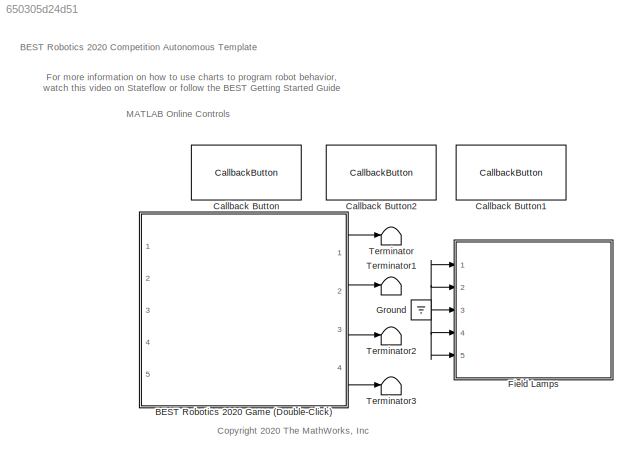
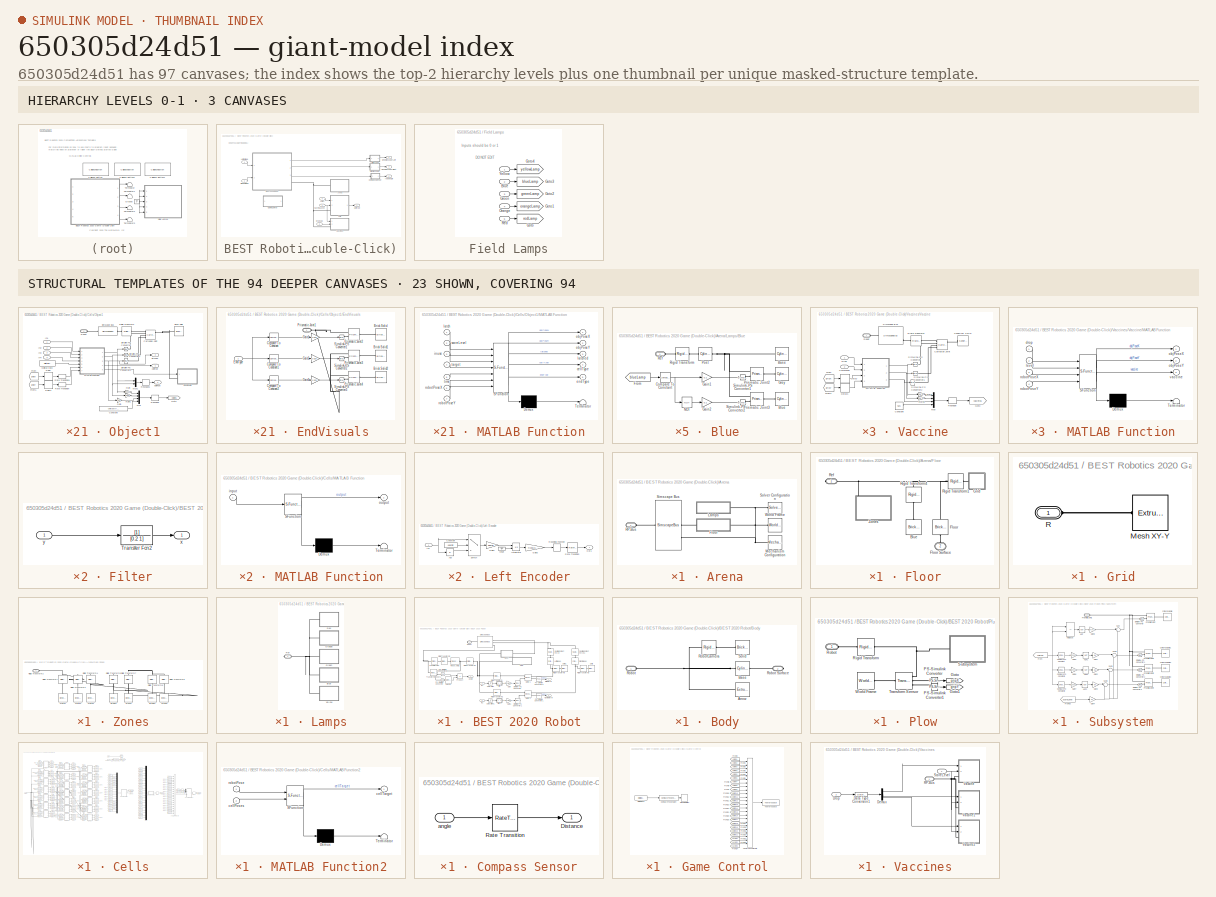
[diagram: thumbnail index - top-2 hierarchy levels (3 canvases) + 23 structural-template representatives of the remaining 94 canvases]
MODEL slx_650305d24d51
KIND model
CONFIG AbsTol = auto
CONFIG EnableMultiTasking = on
CONFIG FixedStep = 0.05
CONFIG MaxStep = auto
CONFIG MinStep = auto
CONFIG RelTol = 1e-3
CONFIG SampleTimeConstraint = Unconstrained
CONFIG Solver = ode23t
CONFIG SolverName = ode23t
CONFIG StartTime = 0.0
CONFIG StopTime = 180.1
WORKSPACE source: mxarray member
WORKSPACE mapForSim: object (value not decoded)
WORKSPACE occGrid: robotics.BinaryOccupancyGrid (value not decoded)
BLOCK [SubSystem] BEST Robotics 2020 Game (Double-Click)
  Ports = [5, 4]
  RequestExecContextInheritance = off
BLOCK [SubSystem] BEST Robotics 2020 Game (Double-Click)/Arena
  Ports = [0, 0, 0, 0, 0, 1]
  RequestExecContextInheritance = off
BLOCK [SubSystem] BEST Robotics 2020 Game (Double-Click)/Arena/Floor
  Ports = [0, 0, 0, 0, 0, 1, 1]
  RequestExecContextInheritance = off
BLOCK [Reference] BEST Robotics 2020 Game (Double-Click)/Arena/Floor/Blue  REF=sm_lib/Body Elements/Brick Solid
  Ports = [0, 0, 0, 0, 0, 0, 1]
  SourceBlock = sm_lib/Body Elements/Brick Solid
  SourceProductBaseCode = MS
  SourceType = Brick Solid
BLOCK [Reference] BEST Robotics 2020 Game (Double-Click)/Arena/Floor/Floor  REF=sm_lib/Body Elements/Brick Solid
  Ports = [0, 0, 0, 0, 0, 1, 1]
  SourceBlock = sm_lib/Body Elements/Brick Solid
  SourceProductBaseCode = MS
  SourceType = Brick Solid
BLOCK [PMIOPort] BEST Robotics 2020 Game (Double-Click)/Arena/Floor/Floor Surface
  Port = 2
  Side = Left
BLOCK [SubSystem] BEST Robotics 2020 Game (Double-Click)/Arena/Floor/Grid
  Ports = [0, 0, 0, 0, 0, 1]
  RequestExecContextInheritance = off
BLOCK [Reference] BEST Robotics 2020 Game (Double-Click)/Arena/Floor/Grid/Mesh XY-Y  REF=sm_lib/Body Elements/Extruded Solid
  Ports = [0, 0, 0, 0, 0, 0, 1]
  SourceBlock = sm_lib/Body Elements/Extruded Solid
  SourceProductBaseCode = MS
  SourceType = Extruded Solid
BLOCK [PMIOPort] BEST Robotics 2020 Game (Double-Click)/Arena/Floor/Grid/R
  Side = Left
BLOCK [PMIOPort] BEST Robotics 2020 Game (Double-Click)/Arena/Floor/Ref
  Side = Right
BLOCK [Reference] BEST Robotics 2020 Game (Double-Click)/Arena/Floor/Rigid Transform1  REF=sm_lib/Frames and
Transforms/Rigid
Transform
  Ports = [0, 0, 0, 0, 0, 1, 1]
  SourceBlock = sm_lib/Frames and\nTransforms/Rigid\nTransform
  SourceProductBaseCode = MS
  SourceType = Rigid\nTransform
BLOCK [Reference] BEST Robotics 2020 Game (Double-Click)/Arena/Floor/Rigid Transform4  REF=sm_lib/Frames and
Transforms/Rigid
Transform
  Ports = [0, 0, 0, 0, 0, 1, 1]
  SourceBlock = sm_lib/Frames and\nTransforms/Rigid\nTransform
  SourceProductBaseCode = MS
  SourceType = Rigid\nTransform
BLOCK [SubSystem] BEST Robotics 2020 Game (Double-Click)/Arena/Floor/Zones
  Ports = [0, 0, 0, 0, 0, 1]
  RequestExecContextInheritance = off
BLOCK [Reference] BEST Robotics 2020 Game (Double-Click)/Arena/Floor/Zones/Brown1  REF=sm_lib/Body Elements/Brick Solid
  Ports = [0, 0, 0, 0, 0, 0, 1]
  SourceBlock = sm_lib/Body Elements/Brick Solid
  SourceProductBaseCode = MS
  SourceType = Brick Solid
BLOCK [Reference] BEST Robotics 2020 Game (Double-Click)/Arena/Floor/Zones/Brown2  REF=sm_lib/Body Elements/Brick Solid
  Ports = [0, 0, 0, 0, 0, 0, 1]
  SourceBlock = sm_lib/Body Elements/Brick Solid
  SourceProductBaseCode = MS
  SourceType = Brick Solid
BLOCK [Reference] BEST Robotics 2020 Game (Double-Click)/Arena/Floor/Zones/Rigid Transform1  REF=sm_lib/Frames and
Transforms/Rigid
Transform
  Ports = [0, 0, 0, 0, 0, 1, 1]
  SourceBlock = sm_lib/Frames and\nTransforms/Rigid\nTransform
  SourceProductBaseCode = MS
  SourceType = Rigid\nTransform
BLOCK [PMIOPort] BEST Robotics 2020 Game (Double-Click)/Arena/Floor/Zones/Rigid Transform2
  Side = Left
BLOCK [Reference] BEST Robotics 2020 Game (Double-Click)/Arena/Floor/Zones/Rigid Transform3  REF=sm_lib/Frames and
Transforms/Rigid
Transform
  Ports = [0, 0, 0, 0, 0, 1, 1]
  SourceBlock = sm_lib/Frames and\nTransforms/Rigid\nTransform
  SourceProductBaseCode = MS
  SourceType = Rigid\nTransform
BLOCK [Reference] BEST Robotics 2020 Game (Double-Click)/Arena/Floor/Zones/Rigid Transform4  REF=sm_lib/Frames and
Transforms/Rigid
Transform
  Ports = [0, 0, 0, 0, 0, 1, 1]
  SourceBlock = sm_lib/Frames and\nTransforms/Rigid\nTransform
  SourceProductBaseCode = MS
  SourceType = Rigid\nTransform
BLOCK [Reference] BEST Robotics 2020 Game (Double-Click)/Arena/Floor/Zones/Rigid Transform5  REF=sm_lib/Frames and
Transforms/Rigid
Transform
  Ports = [0, 0, 0, 0, 0, 1, 1]
  SourceBlock = sm_lib/Frames and\nTransforms/Rigid\nTransform
  SourceProductBaseCode = MS
  SourceType = Rigid\nTransform
BLOCK [Reference] BEST Robotics 2020 Game (Double-Click)/Arena/Floor/Zones/Rigid Transform6  REF=sm_lib/Frames and
Transforms/Rigid
Transform
  Ports = [0, 0, 0, 0, 0, 1, 1]
  SourceBlock = sm_lib/Frames and\nTransforms/Rigid\nTransform
  SourceProductBaseCode = MS
  SourceType = Rigid\nTransform
BLOCK [Reference] BEST Robotics 2020 Game (Double-Click)/Arena/Floor/Zones/Rigid Transform7  REF=sm_lib/Frames and
Transforms/Rigid
Transform
  Ports = [0, 0, 0, 0, 0, 1, 1]
  SourceBlock = sm_lib/Frames and\nTransforms/Rigid\nTransform
  SourceProductBaseCode = MS
  SourceType = Rigid\nTransform
BLOCK [Reference] BEST Robotics 2020 Game (Double-Click)/Arena/Floor/Zones/Rigid Transform8  REF=sm_lib/Frames and
Transforms/Rigid
Transform
  Ports = [0, 0, 0, 0, 0, 1, 1]
  SourceBlock = sm_lib/Frames and\nTransforms/Rigid\nTransform
  SourceProductBaseCode = MS
  SourceType = Rigid\nTransform
BLOCK [Reference] BEST Robotics 2020 Game (Double-Click)/Arena/Floor/Zones/Stand1  REF=sm_lib/Body Elements/Brick Solid
  Ports = [0, 0, 0, 0, 0, 0, 1]
  SourceBlock = sm_lib/Body Elements/Brick Solid
  SourceProductBaseCode = MS
  SourceType = Brick Solid
BLOCK [Reference] BEST Robotics 2020 Game (Double-Click)/Arena/Floor/Zones/Stand2  REF=sm_lib/Body Elements/Brick Solid
  Ports = [0, 0, 0, 0, 0, 0, 1]
  SourceBlock = sm_lib/Body Elements/Brick Solid
  SourceProductBaseCode = MS
  SourceType = Brick Solid
BLOCK [Reference] BEST Robotics 2020 Game (Double-Click)/Arena/Floor/Zones/White1  REF=sm_lib/Body Elements/Brick Solid
  Ports = [0, 0, 0, 0, 0, 0, 1]
  SourceBlock = sm_lib/Body Elements/Brick Solid
  SourceProductBaseCode = MS
  SourceType = Brick Solid
BLOCK [Reference] BEST Robotics 2020 Game (Double-Click)/Arena/Floor/Zones/White2  REF=sm_lib/Body Elements/Brick Solid
  Ports = [0, 0, 0, 0, 0, 0, 1]
  SourceBlock = sm_lib/Body Elements/Brick Solid
  SourceProductBaseCode = MS
  SourceType = Brick Solid
BLOCK [Reference] BEST Robotics 2020 Game (Double-Click)/Arena/Floor/Zones/White3  REF=sm_lib/Body Elements/Brick Solid
  Ports = [0, 0, 0, 0, 0, 0, 1]
  SourceBlock = sm_lib/Body Elements/Brick Solid
  SourceProductBaseCode = MS
  SourceType = Brick Solid
BLOCK [SubSystem] BEST Robotics 2020 Game (Double-Click)/Arena/Lamps
  Ports = [0, 0, 0, 0, 0, 0, 1]
  RequestExecContextInheritance = off
BLOCK [SubSystem] BEST Robotics 2020 Game (Double-Click)/Arena/Lamps/Blue
  Ports = [0, 0, 0, 0, 0, 1]
  RequestExecContextInheritance = off
BLOCK [Reference] BEST Robotics 2020 Game (Double-Click)/Arena/Lamps/Blue/Base  REF=sm_lib/Body Elements/Cylindrical Solid
  Ports = [0, 0, 0, 0, 0, 0, 1]
  SourceBlock = sm_lib/Body Elements/Cylindrical Solid
  SourceProductBaseCode = MS
  SourceProductName = Simscape Multibody
  SourceType = Cylindrical Solid
BLOCK [Reference] BEST Robotics 2020 Game (Double-Click)/Arena/Lamps/Blue/Blue  REF=sm_lib/Body Elements/Cylindrical Solid
  Ports = [0, 0, 0, 0, 0, 0, 1]
  SourceBlock = sm_lib/Body Elements/Cylindrical Solid
  SourceProductBaseCode = MS
  SourceProductName = Simscape Multibody
  SourceType = Cylindrical Solid
BLOCK [Reference] BEST Robotics 2020 Game (Double-Click)/Arena/Lamps/Blue/Compare To Constant  REF=simulink/Logic and Bit
Operations/Compare
To Constant
  Ports = [1, 1]
  SourceBlock = simulink/Logic and Bit\nOperations/Compare\nTo Constant
  SourceProductBaseCode = SL
  SourceType = Compare To Constant
BLOCK [From] BEST Robotics 2020 Game (Double-Click)/Arena/Lamps/Blue/From
  GotoTag = blueLamp
  TagVisibility = global
BLOCK [Gain] BEST Robotics 2020 Game (Double-Click)/Arena/Lamps/Blue/Gain1
  Gain = 0.1
  OutDataTypeStr = double
  ParamDataTypeStr = Inherit: Inherit via internal rule
  SaturateOnIntegerOverflow = off
BLOCK [Gain] BEST Robotics 2020 Game (Double-Click)/Arena/Lamps/Blue/Gain2
  Gain = 0.1
  OutDataTypeStr = double
  ParamDataTypeStr = Inherit: Inherit via internal rule
  SaturateOnIntegerOverflow = off
BLOCK [Reference] BEST Robotics 2020 Game (Double-Click)/Arena/Lamps/Blue/Grey  REF=sm_lib/Body Elements/Cylindrical Solid
  Ports = [0, 0, 0, 0, 0, 0, 1]
  SourceBlock = sm_lib/Body Elements/Cylindrical Solid
  SourceProductBaseCode = MS
  SourceProductName = Simscape Multibody
  SourceType = Cylindrical Solid
BLOCK [Logic] BEST Robotics 2020 Game (Double-Click)/Arena/Lamps/Blue/NOT
  AllPortsSameDT = off
  IconShape = distinctive
  Operator = NOT
  OutDataTypeStr = boolean
  Ports = [1, 1]
BLOCK [Reference] BEST Robotics 2020 Game (Double-Click)/Arena/Lamps/Blue/Post  REF=sm_lib/Body Elements/Cylindrical Solid
  Ports = [0, 0, 0, 0, 0, 1, 1]
  SourceBlock = sm_lib/Body Elements/Cylindrical Solid
  SourceProductBaseCode = MS
  SourceProductName = Simscape Multibody
  SourceType = Cylindrical Solid
BLOCK [Reference] BEST Robotics 2020 Game (Double-Click)/Arena/Lamps/Blue/Prismatic Joint2  REF=sm_lib/Joints/Prismatic
Joint
  Ports = [0, 0, 0, 0, 0, 2, 1]
  SourceBlock = sm_lib/Joints/Prismatic\nJoint
  SourceProductBaseCode = MS
  SourceType = Prismatic\nJoint
BLOCK [Reference] BEST Robotics 2020 Game (Double-Click)/Arena/Lamps/Blue/Prismatic Joint3  REF=sm_lib/Joints/Prismatic
Joint
  Ports = [0, 0, 0, 0, 0, 2, 1]
  SourceBlock = sm_lib/Joints/Prismatic\nJoint
  SourceProductBaseCode = MS
  SourceType = Prismatic\nJoint
BLOCK [PMIOPort] BEST Robotics 2020 Game (Double-Click)/Arena/Lamps/Blue/Ref
  Side = Left
BLOCK [Reference] BEST Robotics 2020 Game (Double-Click)/Arena/Lamps/Blue/Rigid Transform  REF=sm_lib/Frames and
Transforms/Rigid
Transform
  Ports = [0, 0, 0, 0, 0, 1, 1]
  SourceBlock = sm_lib/Frames and\nTransforms/Rigid\nTransform
  SourceProductBaseCode = MS
  SourceProductName = Simscape Multibody
  SourceType = Rigid\nTransform
BLOCK [Reference] BEST Robotics 2020 Game (Double-Click)/Arena/Lamps/Blue/Simulink-PS Converter1  REF=nesl_utility/Simulink-PS
Converter
  Ports = [1, 0, 0, 0, 0, 0, 1]
  SourceBlock = nesl_utility/Simulink-PS\nConverter
  SourceProductBaseCode = SS
  SourceType = Simulink-PS\nConverter
BLOCK [Reference] BEST Robotics 2020 Game (Double-Click)/Arena/Lamps/Blue/Simulink-PS Converter2  REF=nesl_utility/Simulink-PS
Converter
  Ports = [1, 0, 0, 0, 0, 0, 1]
  SourceBlock = nesl_utility/Simulink-PS\nConverter
  SourceProductBaseCode = SS
  SourceType = Simulink-PS\nConverter
BLOCK [SubSystem] BEST Robotics 2020 Game (Double-Click)/Arena/Lamps/Green
  Ports = [0, 0, 0, 0, 0, 1]
  RequestExecContextInheritance = off
BLOCK [Reference] BEST Robotics 2020 Game (Double-Click)/Arena/Lamps/Green/Base  REF=sm_lib/Body Elements/Cylindrical Solid
  Ports = [0, 0, 0, 0, 0, 0, 1]
  SourceBlock = sm_lib/Body Elements/Cylindrical Solid
  SourceProductBaseCode = MS
  SourceProductName = Simscape Multibody
  SourceType = Cylindrical Solid
BLOCK [Reference] BEST Robotics 2020 Game (Double-Click)/Arena/Lamps/Green/Compare To Constant  REF=simulink/Logic and Bit
Operations/Compare
To Constant
  Ports = [1, 1]
  SourceBlock = simulink/Logic and Bit\nOperations/Compare\nTo Constant
  SourceProductBaseCode = SL
  SourceType = Compare To Constant
BLOCK [From] BEST Robotics 2020 Game (Double-Click)/Arena/Lamps/Green/From
  GotoTag = greenLamp
  TagVisibility = global
BLOCK [Gain] BEST Robotics 2020 Game (Double-Click)/Arena/Lamps/Green/Gain1
  Gain = 0.1
  OutDataTypeStr = double
  ParamDataTypeStr = Inherit: Inherit via internal rule
  SaturateOnIntegerOverflow = off
BLOCK [Gain] BEST Robotics 2020 Game (Double-Click)/Arena/Lamps/Green/Gain2
  Gain = 0.1
  OutDataTypeStr = double
  ParamDataTypeStr = Inherit: Inherit via internal rule
  SaturateOnIntegerOverflow = off
BLOCK [Reference] BEST Robotics 2020 Game (Double-Click)/Arena/Lamps/Green/Green  REF=sm_lib/Body Elements/Cylindrical Solid
  Ports = [0, 0, 0, 0, 0, 0, 1]
  SourceBlock = sm_lib/Body Elements/Cylindrical Solid
  SourceProductBaseCode = MS
  SourceProductName = Simscape Multibody
  SourceType = Cylindrical Solid
BLOCK [Reference] BEST Robotics 2020 Game (Double-Click)/Arena/Lamps/Green/Grey  REF=sm_lib/Body Elements/Cylindrical Solid
  Ports = [0, 0, 0, 0, 0, 0, 1]
  SourceBlock = sm_lib/Body Elements/Cylindrical Solid
  SourceProductBaseCode = MS
  SourceProductName = Simscape Multibody
  SourceType = Cylindrical Solid
BLOCK [Logic] BEST Robotics 2020 Game (Double-Click)/Arena/Lamps/Green/NOT
  AllPortsSameDT = off
  IconShape = distinctive
  Operator = NOT
  OutDataTypeStr = boolean
  Ports = [1, 1]
BLOCK [Reference] BEST Robotics 2020 Game (Double-Click)/Arena/Lamps/Green/Post  REF=sm_lib/Body Elements/Cylindrical Solid
  Ports = [0, 0, 0, 0, 0, 1, 1]
  SourceBlock = sm_lib/Body Elements/Cylindrical Solid
  SourceProductBaseCode = MS
  SourceProductName = Simscape Multibody
  SourceType = Cylindrical Solid
BLOCK [Reference] BEST Robotics 2020 Game (Double-Click)/Arena/Lamps/Green/Prismatic Joint2  REF=sm_lib/Joints/Prismatic
Joint
  Ports = [0, 0, 0, 0, 0, 2, 1]
  SourceBlock = sm_lib/Joints/Prismatic\nJoint
  SourceProductBaseCode = MS
  SourceType = Prismatic\nJoint
BLOCK [Reference] BEST Robotics 2020 Game (Double-Click)/Arena/Lamps/Green/Prismatic Joint3  REF=sm_lib/Joints/Prismatic
Joint
  Ports = [0, 0, 0, 0, 0, 2, 1]
  SourceBlock = sm_lib/Joints/Prismatic\nJoint
  SourceProductBaseCode = MS
  SourceType = Prismatic\nJoint
BLOCK [PMIOPort] BEST Robotics 2020 Game (Double-Click)/Arena/Lamps/Green/Ref
  Side = Left
BLOCK [Reference] BEST Robotics 2020 Game (Double-Click)/Arena/Lamps/Green/Rigid Transform  REF=sm_lib/Frames and
Transforms/Rigid
Transform
  Ports = [0, 0, 0, 0, 0, 1, 1]
  SourceBlock = sm_lib/Frames and\nTransforms/Rigid\nTransform
  SourceProductBaseCode = MS
  SourceProductName = Simscape Multibody
  SourceType = Rigid\nTransform
BLOCK [Reference] BEST Robotics 2020 Game (Double-Click)/Arena/Lamps/Green/Simulink-PS Converter1  REF=nesl_utility/Simulink-PS
Converter
  Ports = [1, 0, 0, 0, 0, 0, 1]
  SourceBlock = nesl_utility/Simulink-PS\nConverter
  SourceProductBaseCode = SS
  SourceType = Simulink-PS\nConverter
BLOCK [Reference] BEST Robotics 2020 Game (Double-Click)/Arena/Lamps/Green/Simulink-PS Converter2  REF=nesl_utility/Simulink-PS
Converter
  Ports = [1, 0, 0, 0, 0, 0, 1]
  SourceBlock = nesl_utility/Simulink-PS\nConverter
  SourceProductBaseCode = SS
  SourceType = Simulink-PS\nConverter
BLOCK [SubSystem] BEST Robotics 2020 Game (Double-Click)/Arena/Lamps/Orange
  Ports = [0, 0, 0, 0, 0, 1]
  RequestExecContextInheritance = off
BLOCK [Reference] BEST Robotics 2020 Game (Double-Click)/Arena/Lamps/Orange/Base  REF=sm_lib/Body Elements/Cylindrical Solid
  Ports = [0, 0, 0, 0, 0, 0, 1]
  SourceBlock = sm_lib/Body Elements/Cylindrical Solid
  SourceProductBaseCode = MS
  SourceProductName = Simscape Multibody
  SourceType = Cylindrical Solid
BLOCK [Reference] BEST Robotics 2020 Game (Double-Click)/Arena/Lamps/Orange/Compare To Constant  REF=simulink/Logic and Bit
Operations/Compare
To Constant
  Ports = [1, 1]
  SourceBlock = simulink/Logic and Bit\nOperations/Compare\nTo Constant
  SourceProductBaseCode = SL
  SourceType = Compare To Constant
BLOCK [From] BEST Robotics 2020 Game (Double-Click)/Arena/Lamps/Orange/From
  GotoTag = orangeLamp
  TagVisibility = global
BLOCK [Gain] BEST Robotics 2020 Game (Double-Click)/Arena/Lamps/Orange/Gain1
  Gain = 0.1
  OutDataTypeStr = double
  ParamDataTypeStr = Inherit: Inherit via internal rule
  SaturateOnIntegerOverflow = off
BLOCK [Gain] BEST Robotics 2020 Game (Double-Click)/Arena/Lamps/Orange/Gain2
  Gain = 0.1
  OutDataTypeStr = double
  ParamDataTypeStr = Inherit: Inherit via internal rule
  SaturateOnIntegerOverflow = off
BLOCK [Reference] BEST Robotics 2020 Game (Double-Click)/Arena/Lamps/Orange/Grey  REF=sm_lib/Body Elements/Cylindrical Solid
  Ports = [0, 0, 0, 0, 0, 0, 1]
  SourceBlock = sm_lib/Body Elements/Cylindrical Solid
  SourceProductBaseCode = MS
  SourceProductName = Simscape Multibody
  SourceType = Cylindrical Solid
BLOCK [Logic] BEST Robotics 2020 Game (Double-Click)/Arena/Lamps/Orange/NOT
  AllPortsSameDT = off
  IconShape = distinctive
  Operator = NOT
  OutDataTypeStr = boolean
  Ports = [1, 1]
BLOCK [Reference] BEST Robotics 2020 Game (Double-Click)/Arena/Lamps/Orange/Orange  REF=sm_lib/Body Elements/Cylindrical Solid
  Ports = [0, 0, 0, 0, 0, 0, 1]
  SourceBlock = sm_lib/Body Elements/Cylindrical Solid
  SourceProductBaseCode = MS
  SourceProductName = Simscape Multibody
  SourceType = Cylindrical Solid
BLOCK [Reference] BEST Robotics 2020 Game (Double-Click)/Arena/Lamps/Orange/Post  REF=sm_lib/Body Elements/Cylindrical Solid
  Ports = [0, 0, 0, 0, 0, 1, 1]
  SourceBlock = sm_lib/Body Elements/Cylindrical Solid
  SourceProductBaseCode = MS
  SourceProductName = Simscape Multibody
  SourceType = Cylindrical Solid
BLOCK [Reference] BEST Robotics 2020 Game (Double-Click)/Arena/Lamps/Orange/Prismatic Joint2  REF=sm_lib/Joints/Prismatic
Joint
  Ports = [0, 0, 0, 0, 0, 2, 1]
  SourceBlock = sm_lib/Joints/Prismatic\nJoint
  SourceProductBaseCode = MS
  SourceType = Prismatic\nJoint
BLOCK [Reference] BEST Robotics 2020 Game (Double-Click)/Arena/Lamps/Orange/Prismatic Joint3  REF=sm_lib/Joints/Prismatic
Joint
  Ports = [0, 0, 0, 0, 0, 2, 1]
  SourceBlock = sm_lib/Joints/Prismatic\nJoint
  SourceProductBaseCode = MS
  SourceType = Prismatic\nJoint
BLOCK [PMIOPort] BEST Robotics 2020 Game (Double-Click)/Arena/Lamps/Orange/Ref
  Side = Left
BLOCK [Reference] BEST Robotics 2020 Game (Double-Click)/Arena/Lamps/Orange/Rigid Transform  REF=sm_lib/Frames and
Transforms/Rigid
Transform
  Ports = [0, 0, 0, 0, 0, 1, 1]
  SourceBlock = sm_lib/Frames and\nTransforms/Rigid\nTransform
  SourceProductBaseCode = MS
  SourceProductName = Simscape Multibody
  SourceType = Rigid\nTransform
BLOCK [Reference] BEST Robotics 2020 Game (Double-Click)/Arena/Lamps/Orange/Simulink-PS Converter1  REF=nesl_utility/Simulink-PS
Converter
  Ports = [1, 0, 0, 0, 0, 0, 1]
  SourceBlock = nesl_utility/Simulink-PS\nConverter
  SourceProductBaseCode = SS
  SourceType = Simulink-PS\nConverter
BLOCK [Reference] BEST Robotics 2020 Game (Double-Click)/Arena/Lamps/Orange/Simulink-PS Converter2  REF=nesl_utility/Simulink-PS
Converter
  Ports = [1, 0, 0, 0, 0, 0, 1]
  SourceBlock = nesl_utility/Simulink-PS\nConverter
  SourceProductBaseCode = SS
  SourceType = Simulink-PS\nConverter
BLOCK [SubSystem] BEST Robotics 2020 Game (Double-Click)/Arena/Lamps/Red
  Ports = [0, 0, 0, 0, 0, 1]
  RequestExecContextInheritance = off
BLOCK [Reference] BEST Robotics 2020 Game (Double-Click)/Arena/Lamps/Red/Base  REF=sm_lib/Body Elements/Cylindrical Solid
  Ports = [0, 0, 0, 0, 0, 0, 1]
  SourceBlock = sm_lib/Body Elements/Cylindrical Solid
  SourceProductBaseCode = MS
  SourceProductName = Simscape Multibody
  SourceType = Cylindrical Solid
BLOCK [Reference] BEST Robotics 2020 Game (Double-Click)/Arena/Lamps/Red/Compare To Constant  REF=simulink/Logic and Bit
Operations/Compare
To Constant
  Ports = [1, 1]
  SourceBlock = simulink/Logic and Bit\nOperations/Compare\nTo Constant
  SourceProductBaseCode = SL
  SourceType = Compare To Constant
BLOCK [From] BEST Robotics 2020 Game (Double-Click)/Arena/Lamps/Red/From
  GotoTag = redLamp
  TagVisibility = global
BLOCK [Gain] BEST Robotics 2020 Game (Double-Click)/Arena/Lamps/Red/Gain1
  Gain = 0.1
  OutDataTypeStr = double
  ParamDataTypeStr = Inherit: Inherit via internal rule
  SaturateOnIntegerOverflow = off
BLOCK [Gain] BEST Robotics 2020 Game (Double-Click)/Arena/Lamps/Red/Gain2
  Gain = 0.1
  OutDataTypeStr = double
  ParamDataTypeStr = Inherit: Inherit via internal rule
  SaturateOnIntegerOverflow = off
BLOCK [Reference] BEST Robotics 2020 Game (Double-Click)/Arena/Lamps/Red/Grey  REF=sm_lib/Body Elements/Cylindrical Solid
  Ports = [0, 0, 0, 0, 0, 0, 1]
  SourceBlock = sm_lib/Body Elements/Cylindrical Solid
  SourceProductBaseCode = MS
  SourceProductName = Simscape Multibody
  SourceType = Cylindrical Solid
BLOCK [Logic] BEST Robotics 2020 Game (Double-Click)/Arena/Lamps/Red/NOT
  AllPortsSameDT = off
  IconShape = distinctive
  Operator = NOT
  OutDataTypeStr = boolean
  Ports = [1, 1]
BLOCK [Reference] BEST Robotics 2020 Game (Double-Click)/Arena/Lamps/Red/Post  REF=sm_lib/Body Elements/Cylindrical Solid
  Ports = [0, 0, 0, 0, 0, 1, 1]
  SourceBlock = sm_lib/Body Elements/Cylindrical Solid
  SourceProductBaseCode = MS
  SourceProductName = Simscape Multibody
  SourceType = Cylindrical Solid
BLOCK [Reference] BEST Robotics 2020 Game (Double-Click)/Arena/Lamps/Red/Prismatic Joint2  REF=sm_lib/Joints/Prismatic
Joint
  Ports = [0, 0, 0, 0, 0, 2, 1]
  SourceBlock = sm_lib/Joints/Prismatic\nJoint
  SourceProductBaseCode = MS
  SourceType = Prismatic\nJoint
BLOCK [Reference] BEST Robotics 2020 Game (Double-Click)/Arena/Lamps/Red/Prismatic Joint3  REF=sm_lib/Joints/Prismatic
Joint
  Ports = [0, 0, 0, 0, 0, 2, 1]
  SourceBlock = sm_lib/Joints/Prismatic\nJoint
  SourceProductBaseCode = MS
  SourceType = Prismatic\nJoint
BLOCK [Reference] BEST Robotics 2020 Game (Double-Click)/Arena/Lamps/Red/Red  REF=sm_lib/Body Elements/Cylindrical Solid
  Ports = [0, 0, 0, 0, 0, 0, 1]
  SourceBlock = sm_lib/Body Elements/Cylindrical Solid
  SourceProductBaseCode = MS
  SourceProductName = Simscape Multibody
  SourceType = Cylindrical Solid
BLOCK [PMIOPort] BEST Robotics 2020 Game (Double-Click)/Arena/Lamps/Red/Ref
  Side = Left
BLOCK [Reference] BEST Robotics 2020 Game (Double-Click)/Arena/Lamps/Red/Rigid Transform  REF=sm_lib/Frames and
Transforms/Rigid
Transform
  Ports = [0, 0, 0, 0, 0, 1, 1]
  SourceBlock = sm_lib/Frames and\nTransforms/Rigid\nTransform
  SourceProductBaseCode = MS
  SourceProductName = Simscape Multibody
  SourceType = Rigid\nTransform
BLOCK [Reference] BEST Robotics 2020 Game (Double-Click)/Arena/Lamps/Red/Simulink-PS Converter1  REF=nesl_utility/Simulink-PS
Converter
  Ports = [1, 0, 0, 0, 0, 0, 1]
  SourceBlock = nesl_utility/Simulink-PS\nConverter
  SourceProductBaseCode = SS
  SourceType = Simulink-PS\nConverter
BLOCK [Reference] BEST Robotics 2020 Game (Double-Click)/Arena/Lamps/Red/Simulink-PS Converter2  REF=nesl_utility/Simulink-PS
Converter
  Ports = [1, 0, 0, 0, 0, 0, 1]
  SourceBlock = nesl_utility/Simulink-PS\nConverter
  SourceProductBaseCode = SS
  SourceType = Simulink-PS\nConverter
BLOCK [PMIOPort] BEST Robotics 2020 Game (Double-Click)/Arena/Lamps/Ref
  Side = Right
BLOCK [SubSystem] BEST Robotics 2020 Game (Double-Click)/Arena/Lamps/Yellow
  Ports = [0, 0, 0, 0, 0, 1]
  RequestExecContextInheritance = off
BLOCK [Reference] BEST Robotics 2020 Game (Double-Click)/Arena/Lamps/Yellow/Base  REF=sm_lib/Body Elements/Cylindrical Solid
  Ports = [0, 0, 0, 0, 0, 0, 1]
  SourceBlock = sm_lib/Body Elements/Cylindrical Solid
  SourceProductBaseCode = MS
  SourceProductName = Simscape Multibody
  SourceType = Cylindrical Solid
BLOCK [Reference] BEST Robotics 2020 Game (Double-Click)/Arena/Lamps/Yellow/Compare To Constant  REF=simulink/Logic and Bit
Operations/Compare
To Constant
  Ports = [1, 1]
  SourceBlock = simulink/Logic and Bit\nOperations/Compare\nTo Constant
  SourceProductBaseCode = SL
  SourceType = Compare To Constant
BLOCK [From] BEST Robotics 2020 Game (Double-Click)/Arena/Lamps/Yellow/From
  GotoTag = yellowLamp
  TagVisibility = global
BLOCK [Gain] BEST Robotics 2020 Game (Double-Click)/Arena/Lamps/Yellow/Gain1
  Gain = 0.1
  OutDataTypeStr = double
  ParamDataTypeStr = Inherit: Inherit via internal rule
  SaturateOnIntegerOverflow = off
BLOCK [Gain] BEST Robotics 2020 Game (Double-Click)/Arena/Lamps/Yellow/Gain2
  Gain = 0.1
  OutDataTypeStr = double
  ParamDataTypeStr = Inherit: Inherit via internal rule
  SaturateOnIntegerOverflow = off
BLOCK [Reference] BEST Robotics 2020 Game (Double-Click)/Arena/Lamps/Yellow/Grey  REF=sm_lib/Body Elements/Cylindrical Solid
  Ports = [0, 0, 0, 0, 0, 0, 1]
  SourceBlock = sm_lib/Body Elements/Cylindrical Solid
  SourceProductBaseCode = MS
  SourceProductName = Simscape Multibody
  SourceType = Cylindrical Solid
BLOCK [Logic] BEST Robotics 2020 Game (Double-Click)/Arena/Lamps/Yellow/NOT
  AllPortsSameDT = off
  IconShape = distinctive
  Operator = NOT
  OutDataTypeStr = boolean
  Ports = [1, 1]
BLOCK [Reference] BEST Robotics 2020 Game (Double-Click)/Arena/Lamps/Yellow/Post  REF=sm_lib/Body Elements/Cylindrical Solid
  Ports = [0, 0, 0, 0, 0, 1, 1]
  SourceBlock = sm_lib/Body Elements/Cylindrical Solid
  SourceProductBaseCode = MS
  SourceProductName = Simscape Multibody
  SourceType = Cylindrical Solid
BLOCK [Reference] BEST Robotics 2020 Game (Double-Click)/Arena/Lamps/Yellow/Prismatic Joint2  REF=sm_lib/Joints/Prismatic
Joint
  Ports = [0, 0, 0, 0, 0, 2, 1]
  SourceBlock = sm_lib/Joints/Prismatic\nJoint
  SourceProductBaseCode = MS
  SourceType = Prismatic\nJoint
BLOCK [Reference] BEST Robotics 2020 Game (Double-Click)/Arena/Lamps/Yellow/Prismatic Joint3  REF=sm_lib/Joints/Prismatic
Joint
  Ports = [0, 0, 0, 0, 0, 2, 1]
  SourceBlock = sm_lib/Joints/Prismatic\nJoint
  SourceProductBaseCode = MS
  SourceType = Prismatic\nJoint
BLOCK [PMIOPort] BEST Robotics 2020 Game (Double-Click)/Arena/Lamps/Yellow/Ref
  Side = Left
BLOCK [Reference] BEST Robotics 2020 Game (Double-Click)/Arena/Lamps/Yellow/Rigid Transform  REF=sm_lib/Frames and
Transforms/Rigid
Transform
  Ports = [0, 0, 0, 0, 0, 1, 1]
  SourceBlock = sm_lib/Frames and\nTransforms/Rigid\nTransform
  SourceProductBaseCode = MS
  SourceProductName = Simscape Multibody
  SourceType = Rigid\nTransform
BLOCK [Reference] BEST Robotics 2020 Game (Double-Click)/Arena/Lamps/Yellow/Simulink-PS Converter1  REF=nesl_utility/Simulink-PS
Converter
  Ports = [1, 0, 0, 0, 0, 0, 1]
  SourceBlock = nesl_utility/Simulink-PS\nConverter
  SourceProductBaseCode = SS
  SourceType = Simulink-PS\nConverter
BLOCK [Reference] BEST Robotics 2020 Game (Double-Click)/Arena/Lamps/Yellow/Simulink-PS Converter2  REF=nesl_utility/Simulink-PS
Converter
  Ports = [1, 0, 0, 0, 0, 0, 1]
  SourceBlock = nesl_utility/Simulink-PS\nConverter
  SourceProductBaseCode = SS
  SourceType = Simulink-PS\nConverter
BLOCK [Reference] BEST Robotics 2020 Game (Double-Click)/Arena/Lamps/Yellow/Yellow  REF=sm_lib/Body Elements/Cylindrical Solid
  Ports = [0, 0, 0, 0, 0, 0, 1]
  SourceBlock = sm_lib/Body Elements/Cylindrical Solid
  SourceProductBaseCode = MS
  SourceProductName = Simscape Multibody
  SourceType = Cylindrical Solid
BLOCK [Reference] BEST Robotics 2020 Game (Double-Click)/Arena/Mechanism Configuration  REF=sm_lib/Utilities/Mechanism
Configuration
  Ports = [0, 0, 0, 0, 0, 0, 1]
  SourceBlock = sm_lib/Utilities/Mechanism\nConfiguration
  SourceProductBaseCode = MS
  SourceType = Mechanism\nConfiguration
BLOCK [PMIOPort] BEST Robotics 2020 Game (Double-Click)/Arena/RP-Bus
  Side = Left
BLOCK [SimscapeBus] BEST Robotics 2020 Game (Double-Click)/Arena/Simscape Bus
  HierarchyStrings = WallSurface;FloorSurface;Ref
  Ports = [0, 0, 0, 0, 0, 3, 1]
BLOCK [Reference] BEST Robotics 2020 Game (Double-Click)/Arena/Solver Configuration  REF=nesl_utility/Solver
Configuration
  Ports = [0, 0, 0, 0, 0, 0, 1]
  SourceBlock = nesl_utility/Solver\nConfiguration
  SourceProductBaseCode = SS
  SourceType = Solver\nConfiguration
BLOCK [Reference] BEST Robotics 2020 Game (Double-Click)/Arena/World Frame  REF=sm_lib/Frames and
Transforms/World Frame
  Ports = [0, 0, 0, 0, 0, 0, 1]
  SourceBlock = sm_lib/Frames and\nTransforms/World Frame
  SourceProductBaseCode = MS
  SourceType = World Frame
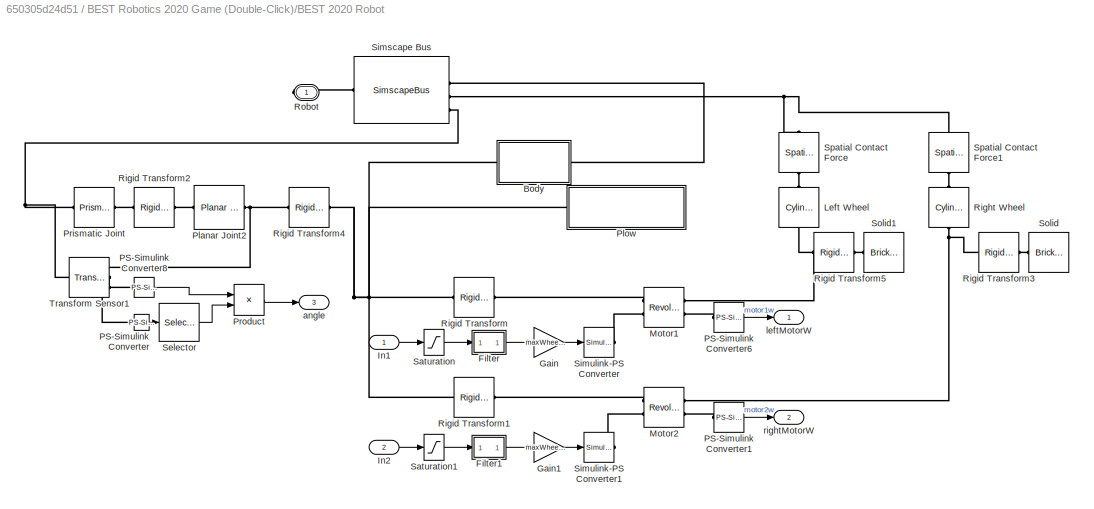
BLOCK [SubSystem] BEST Robotics 2020 Game (Double-Click)/BEST 2020 Robot
  Ports = [2, 3, 0, 0, 0, 0, 1]
  RequestExecContextInheritance = off
BLOCK [SubSystem] BEST Robotics 2020 Game (Double-Click)/BEST 2020 Robot/Body
  Ports = [0, 0, 0, 0, 0, 1, 1]
  RequestExecContextInheritance = off
BLOCK [Reference] BEST Robotics 2020 Game (Double-Click)/BEST 2020 Robot/Body/Arrow  REF=sm_lib/Body Elements/Extruded Solid
  Ports = [0, 0, 0, 0, 0, 0, 1]
  SourceBlock = sm_lib/Body Elements/Extruded Solid
  SourceProductBaseCode = MS
  SourceType = Extruded Solid
BLOCK [Reference] BEST Robotics 2020 Game (Double-Click)/BEST 2020 Robot/Body/Base  REF=sm_lib/Body Elements/Cylindrical Solid
  Ports = [0, 0, 0, 0, 0, 1, 1]
  SourceBlock = sm_lib/Body Elements/Cylindrical Solid
  SourceProductBaseCode = MS
  SourceType = Cylindrical Solid
BLOCK [PMIOPort] BEST Robotics 2020 Game (Double-Click)/BEST 2020 Robot/Body/Robot
  Side = Left
BLOCK [PMIOPort] BEST Robotics 2020 Game (Double-Click)/BEST 2020 Robot/Body/Robot Surface
  Port = 2
  Side = Right
BLOCK [Reference] BEST Robotics 2020 Game (Double-Click)/BEST 2020 Robot/Body/RobotCamera  REF=sm_lib/Frames and
Transforms/Rigid
Transform
  Ports = [0, 0, 0, 0, 0, 1, 1]
  SourceBlock = sm_lib/Frames and\nTransforms/Rigid\nTransform
  SourceProductBaseCode = MS
  SourceType = Rigid\nTransform
BLOCK [Reference] BEST Robotics 2020 Game (Double-Click)/BEST 2020 Robot/Body/Solid  REF=sm_lib/Body Elements/Brick Solid
  Ports = [0, 0, 0, 0, 0, 0, 1]
  SourceBlock = sm_lib/Body Elements/Brick Solid
  SourceProductBaseCode = MS
  SourceType = Brick Solid
BLOCK [SubSystem] BEST Robotics 2020 Game (Double-Click)/BEST 2020 Robot/Filter
  Ports = [1, 1]
  RequestExecContextInheritance = off
BLOCK [TransferFcn] BEST Robotics 2020 Game (Double-Click)/BEST 2020 Robot/Filter/Transfer Fcn2
  Denominator = [0.2 1]
BLOCK [Outport] BEST Robotics 2020 Game (Double-Click)/BEST 2020 Robot/Filter/x
  IconDisplay = Port number
  VectorParamsAs1DForOutWhenUnconnected = off
BLOCK [Inport] BEST Robotics 2020 Game (Double-Click)/BEST 2020 Robot/Filter/y
  IconDisplay = Port number
BLOCK [SubSystem] BEST Robotics 2020 Game (Double-Click)/BEST 2020 Robot/Filter1
  Ports = [1, 1]
  RequestExecContextInheritance = off
BLOCK [TransferFcn] BEST Robotics 2020 Game (Double-Click)/BEST 2020 Robot/Filter1/Transfer Fcn2
  Denominator = [0.2 1]
BLOCK [Outport] BEST Robotics 2020 Game (Double-Click)/BEST 2020 Robot/Filter1/x
  IconDisplay = Port number
  VectorParamsAs1DForOutWhenUnconnected = off
BLOCK [Inport] BEST Robotics 2020 Game (Double-Click)/BEST 2020 Robot/Filter1/y
  IconDisplay = Port number
BLOCK [Gain] BEST Robotics 2020 Game (Double-Click)/BEST 2020 Robot/Gain
  Gain = maxWheelTorque/127
  OutDataTypeStr = Inherit: Inherit via internal rule
  ParamDataTypeStr = Inherit: Inherit via internal rule
  SaturateOnIntegerOverflow = off
BLOCK [Gain] BEST Robotics 2020 Game (Double-Click)/BEST 2020 Robot/Gain1
  Gain = maxWheelTorque/127
  OutDataTypeStr = Inherit: Inherit via internal rule
  ParamDataTypeStr = Inherit: Inherit via internal rule
  SaturateOnIntegerOverflow = off
BLOCK [Inport] BEST Robotics 2020 Game (Double-Click)/BEST 2020 Robot/In1
  IconDisplay = Port number
BLOCK [Inport] BEST Robotics 2020 Game (Double-Click)/BEST 2020 Robot/In2
  IconDisplay = Port number
  Port = 2
BLOCK [Reference] BEST Robotics 2020 Game (Double-Click)/BEST 2020 Robot/Left Wheel  REF=sm_lib/Body Elements/Cylindrical Solid
  Ports = [0, 0, 0, 0, 0, 1, 1]
  SourceBlock = sm_lib/Body Elements/Cylindrical Solid
  SourceProductBaseCode = MS
  SourceType = Cylindrical Solid
BLOCK [Reference] BEST Robotics 2020 Game (Double-Click)/BEST 2020 Robot/Motor1  REF=sm_lib/Joints/Revolute Joint
  Ports = [0, 0, 0, 0, 0, 2, 2]
  SourceBlock = sm_lib/Joints/Revolute Joint
  SourceProductBaseCode = MS
  SourceType = Revolute Joint
BLOCK [Reference] BEST Robotics 2020 Game (Double-Click)/BEST 2020 Robot/Motor2  REF=sm_lib/Joints/Revolute Joint
  Ports = [0, 0, 0, 0, 0, 2, 2]
  SourceBlock = sm_lib/Joints/Revolute Joint
  SourceProductBaseCode = MS
  SourceType = Revolute Joint
BLOCK [Reference] BEST Robotics 2020 Game (Double-Click)/BEST 2020 Robot/PS-Simulink Converter  REF=nesl_utility/PS-Simulink
Converter
  Ports = [0, 1, 0, 0, 0, 1]
  SourceBlock = nesl_utility/PS-Simulink\nConverter
  SourceProductBaseCode = SS
  SourceProductName = Simscape
  SourceType = PS-Simulink\nConverter
BLOCK [Reference] BEST Robotics 2020 Game (Double-Click)/BEST 2020 Robot/PS-Simulink Converter1  REF=nesl_utility/PS-Simulink
Converter
  Ports = [0, 1, 0, 0, 0, 1]
  SourceBlock = nesl_utility/PS-Simulink\nConverter
  SourceProductBaseCode = SS
  SourceType = PS-Simulink\nConverter
BLOCK [Reference] BEST Robotics 2020 Game (Double-Click)/BEST 2020 Robot/PS-Simulink Converter6  REF=nesl_utility/PS-Simulink
Converter
  Ports = [0, 1, 0, 0, 0, 1]
  SourceBlock = nesl_utility/PS-Simulink\nConverter
  SourceProductBaseCode = SS
  SourceType = PS-Simulink\nConverter
BLOCK [Reference] BEST Robotics 2020 Game (Double-Click)/BEST 2020 Robot/PS-Simulink Converter8  REF=nesl_utility/PS-Simulink
Converter
  Ports = [0, 1, 0, 0, 0, 1]
  SourceBlock = nesl_utility/PS-Simulink\nConverter
  SourceProductBaseCode = SS
  SourceType = PS-Simulink\nConverter
BLOCK [Reference] BEST Robotics 2020 Game (Double-Click)/BEST 2020 Robot/Planar Joint2  REF=sm_lib/Joints/Planar Joint
  Ports = [0, 0, 0, 0, 0, 1, 1]
  SourceBlock = sm_lib/Joints/Planar Joint
  SourceProductBaseCode = MS
  SourceType = Planar Joint
BLOCK [SubSystem] BEST Robotics 2020 Game (Double-Click)/BEST 2020 Robot/Plow
  Ports = [0, 0, 0, 0, 0, 1]
  RequestExecContextInheritance = off
BLOCK [Goto] BEST Robotics 2020 Game (Double-Click)/BEST 2020 Robot/Plow/Goto
  GotoTag = gripX
  TagVisibility = global
BLOCK [Goto] BEST Robotics 2020 Game (Double-Click)/BEST 2020 Robot/Plow/Goto1
  GotoTag = gripY
  TagVisibility = global
BLOCK [Reference] BEST Robotics 2020 Game (Double-Click)/BEST 2020 Robot/Plow/PS-Simulink Converter  REF=nesl_utility/PS-Simulink
Converter
  Ports = [0, 1, 0, 0, 0, 1]
  SourceBlock = nesl_utility/PS-Simulink\nConverter
  SourceProductBaseCode = SS
  SourceType = PS-Simulink\nConverter
BLOCK [Reference] BEST Robotics 2020 Game (Double-Click)/BEST 2020 Robot/Plow/PS-Simulink Converter1  REF=nesl_utility/PS-Simulink
Converter
  Ports = [0, 1, 0, 0, 0, 1]
  SourceBlock = nesl_utility/PS-Simulink\nConverter
  SourceProductBaseCode = SS
  SourceType = PS-Simulink\nConverter
BLOCK [Reference] BEST Robotics 2020 Game (Double-Click)/BEST 2020 Robot/Plow/Rigid Transform  REF=sm_lib/Frames and
Transforms/Rigid
Transform
  Ports = [0, 0, 0, 0, 0, 1, 1]
  SourceBlock = sm_lib/Frames and\nTransforms/Rigid\nTransform
  SourceProductBaseCode = MS
  SourceType = Rigid\nTransform
BLOCK [PMIOPort] BEST Robotics 2020 Game (Double-Click)/BEST 2020 Robot/Plow/Robot
  Side = Left
BLOCK [SubSystem] BEST Robotics 2020 Game (Double-Click)/BEST 2020 Robot/Plow/Subsystem
  Ports = [0, 0, 0, 0, 0, 1]
  RequestExecContextInheritance = off
BLOCK [Reference] BEST Robotics 2020 Game (Double-Click)/BEST 2020 Robot/Plow/Subsystem/Compare To Constant  REF=simulink/Logic and Bit
Operations/Compare
To Constant
  Ports = [1, 1]
  SourceBlock = simulink/Logic and Bit\nOperations/Compare\nTo Constant
  SourceProductBaseCode = SL
  SourceType = Compare To Constant
BLOCK [Reference] BEST Robotics 2020 Game (Double-Click)/BEST 2020 Robot/Plow/Subsystem/Compare To Constant1  REF=simulink/Logic and Bit
Operations/Compare
To Constant
  Ports = [1, 1]
  SourceBlock = simulink/Logic and Bit\nOperations/Compare\nTo Constant
  SourceProductBaseCode = SL
  SourceType = Compare To Constant
BLOCK [Reference] BEST Robotics 2020 Game (Double-Click)/BEST 2020 Robot/Plow/Subsystem/Compare To Constant2  REF=simulink/Logic and Bit
Operations/Compare
To Constant
  Ports = [1, 1]
  SourceBlock = simulink/Logic and Bit\nOperations/Compare\nTo Constant
  SourceProductBaseCode = SL
  SourceType = Compare To Constant
BLOCK [Reference] BEST Robotics 2020 Game (Double-Click)/BEST 2020 Robot/Plow/Subsystem/Cylindrical Solid  REF=sm_lib/Body Elements/Cylindrical Solid
  Ports = [0, 0, 0, 0, 0, 0, 1]
  SourceBlock = sm_lib/Body Elements/Cylindrical Solid
  SourceProductBaseCode = MS
  SourceType = Cylindrical Solid
BLOCK [Reference] BEST Robotics 2020 Game (Double-Click)/BEST 2020 Robot/Plow/Subsystem/Cylindrical Solid1  REF=sm_lib/Body Elements/Cylindrical Solid
  Ports = [0, 0, 0, 0, 0, 0, 1]
  SourceBlock = sm_lib/Body Elements/Cylindrical Solid
  SourceProductBaseCode = MS
  SourceType = Cylindrical Solid
BLOCK [Reference] BEST Robotics 2020 Game (Double-Click)/BEST 2020 Robot/Plow/Subsystem/Cylindrical Solid2  REF=sm_lib/Body Elements/Cylindrical Solid
  Ports = [0, 0, 0, 0, 0, 0, 1]
  SourceBlock = sm_lib/Body Elements/Cylindrical Solid
  SourceProductBaseCode = MS
  SourceType = Cylindrical Solid
BLOCK [Reference] BEST Robotics 2020 Game (Double-Click)/BEST 2020 Robot/Plow/Subsystem/Cylindrical Solid3  REF=sm_lib/Body Elements/Cylindrical Solid
  Ports = [0, 0, 0, 0, 0, 0, 1]
  SourceBlock = sm_lib/Body Elements/Cylindrical Solid
  SourceProductBaseCode = MS
  SourceType = Cylindrical Solid
BLOCK [From] BEST Robotics 2020 Game (Double-Click)/BEST 2020 Robot/Plow/Subsystem/From
  GotoTag = cellType
  TagVisibility = global
BLOCK [From] BEST Robotics 2020 Game (Double-Click)/BEST 2020 Robot/Plow/Subsystem/From63
  GotoTag = scoreLevel
  TagVisibility = global
BLOCK [Gain] BEST Robotics 2020 Game (Double-Click)/BEST 2020 Robot/Plow/Subsystem/Gain1
  Gain = -0.6
  OutDataTypeStr = double
  ParamDataTypeStr = Inherit: Inherit via internal rule
  SaturateOnIntegerOverflow = off
BLOCK [Gain] BEST Robotics 2020 Game (Double-Click)/BEST 2020 Robot/Plow/Subsystem/Gain2
  Gain = -0.6
  OutDataTypeStr = double
  ParamDataTypeStr = Inherit: Inherit via internal rule
  SaturateOnIntegerOverflow = off
BLOCK [Gain] BEST Robotics 2020 Game (Double-Click)/BEST 2020 Robot/Plow/Subsystem/Gain3
  Gain = -0.6
  OutDataTypeStr = double
  ParamDataTypeStr = Inherit: Inherit via internal rule
  SaturateOnIntegerOverflow = off
BLOCK [Gain] BEST Robotics 2020 Game (Double-Click)/BEST 2020 Robot/Plow/Subsystem/Gain4
  Gain = 0.4
  OutDataTypeStr = double
  ParamDataTypeStr = Inherit: Inherit via internal rule
  SaturateOnIntegerOverflow = off
BLOCK [Gain] BEST Robotics 2020 Game (Double-Click)/BEST 2020 Robot/Plow/Subsystem/Gain5
  Gain = sensor
  OutDataTypeStr = Inherit: Inherit via internal rule
  ParamDataTypeStr = Inherit: Inherit via internal rule
  SaturateOnIntegerOverflow = off
BLOCK [Gain] BEST Robotics 2020 Game (Double-Click)/BEST 2020 Robot/Plow/Subsystem/Gain6
  Gain = sensor
  OutDataTypeStr = Inherit: Inherit via internal rule
  ParamDataTypeStr = Inherit: Inherit via internal rule
  SaturateOnIntegerOverflow = off
BLOCK [Gain] BEST Robotics 2020 Game (Double-Click)/BEST 2020 Robot/Plow/Subsystem/Gain7
  Gain = sensor
  OutDataTypeStr = Inherit: Inherit via internal rule
  ParamDataTypeStr = Inherit: Inherit via internal rule
  SaturateOnIntegerOverflow = off
BLOCK [Gain] BEST Robotics 2020 Game (Double-Click)/BEST 2020 Robot/Plow/Subsystem/Gain8
  Gain = -0.6*sensor
  OutDataTypeStr = Inherit: Inherit via internal rule
  ParamDataTypeStr = Inherit: Inherit via internal rule
  SaturateOnIntegerOverflow = off
BLOCK [Logic] BEST Robotics 2020 Game (Double-Click)/BEST 2020 Robot/Plow/Subsystem/NOT
  AllPortsSameDT = off
  IconShape = distinctive
  Operator = NOT
  OutDataTypeStr = boolean
  Ports = [1, 1]
BLOCK [Logic] BEST Robotics 2020 Game (Double-Click)/BEST 2020 Robot/Plow/Subsystem/NOT1
  AllPortsSameDT = off
  IconShape = distinctive
  Operator = NOT
  OutDataTypeStr = boolean
  Ports = [1, 1]
BLOCK [Logic] BEST Robotics 2020 Game (Double-Click)/BEST 2020 Robot/Plow/Subsystem/NOT2
  AllPortsSameDT = off
  IconShape = distinctive
  Operator = NOT
  OutDataTypeStr = boolean
  Ports = [1, 1]
BLOCK [Logic] BEST Robotics 2020 Game (Double-Click)/BEST 2020 Robot/Plow/Subsystem/NOT3
  AllPortsSameDT = off
  IconShape = distinctive
  Operator = NOT
  OutDataTypeStr = boolean
  Ports = [1, 1]
BLOCK [RelationalOperator] BEST Robotics 2020 Game (Double-Click)/BEST 2020 Robot/Plow/Subsystem/Not Equal
  Operator = ~=
  OutDataTypeStr = boolean
  Ports = [2, 1]
  ZeroCross = off
BLOCK [Reference] BEST Robotics 2020 Game (Double-Click)/BEST 2020 Robot/Plow/Subsystem/Prismatic Joint  REF=sm_lib/Joints/Prismatic
Joint
  Ports = [0, 0, 0, 0, 0, 2, 1]
  SourceBlock = sm_lib/Joints/Prismatic\nJoint
  SourceProductBaseCode = MS
  SourceType = Prismatic\nJoint
BLOCK [PMIOPort] BEST Robotics 2020 Game (Double-Click)/BEST 2020 Robot/Plow/Subsystem/Prismatic Joint1
  Side = Left
BLOCK [Reference] BEST Robotics 2020 Game (Double-Click)/BEST 2020 Robot/Plow/Subsystem/Prismatic Joint2  REF=sm_lib/Joints/Prismatic
Joint
  Ports = [0, 0, 0, 0, 0, 2, 1]
  SourceBlock = sm_lib/Joints/Prismatic\nJoint
  SourceProductBaseCode = MS
  SourceType = Prismatic\nJoint
BLOCK [Reference] BEST Robotics 2020 Game (Double-Click)/BEST 2020 Robot/Plow/Subsystem/Prismatic Joint3  REF=sm_lib/Joints/Prismatic
Joint
  Ports = [0, 0, 0, 0, 0, 2, 1]
  SourceBlock = sm_lib/Joints/Prismatic\nJoint
  SourceProductBaseCode = MS
  SourceType = Prismatic\nJoint
BLOCK [Reference] BEST Robotics 2020 Game (Double-Click)/BEST 2020 Robot/Plow/Subsystem/Prismatic Joint4  REF=sm_lib/Joints/Prismatic
Joint
  Ports = [0, 0, 0, 0, 0, 2, 1]
  SourceBlock = sm_lib/Joints/Prismatic\nJoint
  SourceProductBaseCode = MS
  SourceType = Prismatic\nJoint
BLOCK [Reference] BEST Robotics 2020 Game (Double-Click)/BEST 2020 Robot/Plow/Subsystem/Simulink-PS Converter  REF=nesl_utility/Simulink-PS
Converter
  Ports = [1, 0, 0, 0, 0, 0, 1]
  SourceBlock = nesl_utility/Simulink-PS\nConverter
  SourceProductBaseCode = SS
  SourceType = Simulink-PS\nConverter
BLOCK [Reference] BEST Robotics 2020 Game (Double-Click)/BEST 2020 Robot/Plow/Subsystem/Simulink-PS Converter1  REF=nesl_utility/Simulink-PS
Converter
  Ports = [1, 0, 0, 0, 0, 0, 1]
  SourceBlock = nesl_utility/Simulink-PS\nConverter
  SourceProductBaseCode = SS
  SourceType = Simulink-PS\nConverter
BLOCK [Reference] BEST Robotics 2020 Game (Double-Click)/BEST 2020 Robot/Plow/Subsystem/Simulink-PS Converter2  REF=nesl_utility/Simulink-PS
Converter
  Ports = [1, 0, 0, 0, 0, 0, 1]
  SourceBlock = nesl_utility/Simulink-PS\nConverter
  SourceProductBaseCode = SS
  SourceType = Simulink-PS\nConverter
BLOCK [Reference] BEST Robotics 2020 Game (Double-Click)/BEST 2020 Robot/Plow/Subsystem/Simulink-PS Converter3  REF=nesl_utility/Simulink-PS
Converter
  Ports = [1, 0, 0, 0, 0, 0, 1]
  SourceBlock = nesl_utility/Simulink-PS\nConverter
  SourceProductBaseCode = SS
  SourceType = Simulink-PS\nConverter
BLOCK [Sum] BEST Robotics 2020 Game (Double-Click)/BEST 2020 Robot/Plow/Subsystem/Sum
  IconShape = round
  InputSameDT = off
  Inputs = |++
  OutDataTypeStr = Inherit: Inherit via internal rule
  Ports = [2, 1]
  SaturateOnIntegerOverflow = off
BLOCK [Sum] BEST Robotics 2020 Game (Double-Click)/BEST 2020 Robot/Plow/Subsystem/Sum2
  IconShape = round
  InputSameDT = off
  Inputs = |++
  OutDataTypeStr = Inherit: Inherit via internal rule
  Ports = [2, 1]
  SaturateOnIntegerOverflow = off
BLOCK [Sum] BEST Robotics 2020 Game (Double-Click)/BEST 2020 Robot/Plow/Subsystem/Sum3
  IconShape = round
  InputSameDT = off
  Inputs = |++
  OutDataTypeStr = Inherit: Inherit via internal rule
  Ports = [2, 1]
  SaturateOnIntegerOverflow = off
BLOCK [Sum] BEST Robotics 2020 Game (Double-Click)/BEST 2020 Robot/Plow/Subsystem/Sum4
  IconShape = round
  InputSameDT = off
  Inputs = |++
  OutDataTypeStr = Inherit: Inherit via internal rule
  Ports = [2, 1]
  SaturateOnIntegerOverflow = off
BLOCK [Reference] BEST Robotics 2020 Game (Double-Click)/BEST 2020 Robot/Plow/Transform Sensor  REF=sm_lib/Frames and
Transforms/Transform
Sensor
  Ports = [0, 0, 0, 0, 0, 1, 3]
  SourceBlock = sm_lib/Frames and\nTransforms/Transform\nSensor
  SourceProductBaseCode = MS
  SourceType = Transform\nSensor
BLOCK [Reference] BEST Robotics 2020 Game (Double-Click)/BEST 2020 Robot/Plow/World Frame  REF=sm_lib/Frames and
Transforms/World Frame
  Ports = [0, 0, 0, 0, 0, 0, 1]
  SourceBlock = sm_lib/Frames and\nTransforms/World Frame
  SourceProductBaseCode = MS
  SourceType = World Frame
BLOCK [Reference] BEST Robotics 2020 Game (Double-Click)/BEST 2020 Robot/Prismatic Joint  REF=sm_lib/Joints/Prismatic
Joint
  Ports = [0, 0, 0, 0, 0, 1, 1]
  SourceBlock = sm_lib/Joints/Prismatic\nJoint
  SourceProductBaseCode = MS
  SourceType = Prismatic\nJoint
BLOCK [Product] BEST Robotics 2020 Game (Double-Click)/BEST 2020 Robot/Product
  InputSameDT = off
  OutDataTypeStr = Inherit: Inherit via internal rule
  Ports = [2, 1]
  RndMeth = Floor
  SaturateOnIntegerOverflow = off
BLOCK [Reference] BEST Robotics 2020 Game (Double-Click)/BEST 2020 Robot/Right Wheel  REF=sm_lib/Body Elements/Cylindrical Solid
  Ports = [0, 0, 0, 0, 0, 1, 1]
  SourceBlock = sm_lib/Body Elements/Cylindrical Solid
  SourceProductBaseCode = MS
  SourceType = Cylindrical Solid
BLOCK [Reference] BEST Robotics 2020 Game (Double-Click)/BEST 2020 Robot/Rigid Transform  REF=sm_lib/Frames and
Transforms/Rigid
Transform
  Ports = [0, 0, 0, 0, 0, 1, 1]
  SourceBlock = sm_lib/Frames and\nTransforms/Rigid\nTransform
  SourceProductBaseCode = MS
  SourceType = Rigid\nTransform
BLOCK [Reference] BEST Robotics 2020 Game (Double-Click)/BEST 2020 Robot/Rigid Transform1  REF=sm_lib/Frames and
Transforms/Rigid
Transform
  Ports = [0, 0, 0, 0, 0, 1, 1]
  SourceBlock = sm_lib/Frames and\nTransforms/Rigid\nTransform
  SourceProductBaseCode = MS
  SourceType = Rigid\nTransform
BLOCK [Reference] BEST Robotics 2020 Game (Double-Click)/BEST 2020 Robot/Rigid Transform2  REF=sm_lib/Frames and
Transforms/Rigid
Transform
  Ports = [0, 0, 0, 0, 0, 1, 1]
  SourceBlock = sm_lib/Frames and\nTransforms/Rigid\nTransform
  SourceProductBaseCode = MS
  SourceType = Rigid\nTransform
BLOCK [Reference] BEST Robotics 2020 Game (Double-Click)/BEST 2020 Robot/Rigid Transform3  REF=sm_lib/Frames and
Transforms/Rigid
Transform
  Ports = [0, 0, 0, 0, 0, 1, 1]
  SourceBlock = sm_lib/Frames and\nTransforms/Rigid\nTransform
  SourceProductBaseCode = MS
  SourceType = Rigid\nTransform
BLOCK [Reference] BEST Robotics 2020 Game (Double-Click)/BEST 2020 Robot/Rigid Transform4  REF=sm_lib/Frames and
Transforms/Rigid
Transform
  Ports = [0, 0, 0, 0, 0, 1, 1]
  SourceBlock = sm_lib/Frames and\nTransforms/Rigid\nTransform
  SourceProductBaseCode = MS
  SourceType = Rigid\nTransform
BLOCK [Reference] BEST Robotics 2020 Game (Double-Click)/BEST 2020 Robot/Rigid Transform5  REF=sm_lib/Frames and
Transforms/Rigid
Transform
  Ports = [0, 0, 0, 0, 0, 1, 1]
  SourceBlock = sm_lib/Frames and\nTransforms/Rigid\nTransform
  SourceProductBaseCode = MS
  SourceType = Rigid\nTransform
BLOCK [PMIOPort] BEST Robotics 2020 Game (Double-Click)/BEST 2020 Robot/Robot
  Side = Right
BLOCK [Saturate] BEST Robotics 2020 Game (Double-Click)/BEST 2020 Robot/Saturation
  InputPortMap = u0
  LowerLimit = -127
  Ports = [1, 1]
  UpperLimit = 127
  ZeroCross = off
BLOCK [Saturate] BEST Robotics 2020 Game (Double-Click)/BEST 2020 Robot/Saturation1
  InputPortMap = u0
  LowerLimit = -127
  Ports = [1, 1]
  UpperLimit = 127
  ZeroCross = off
BLOCK [Selector] BEST Robotics 2020 Game (Double-Click)/BEST 2020 Robot/Selector
  IndexOptions = Index vector (dialog)
  Indices = 3
  InputPortWidth = 3
  OutputSizes = 1
  Ports = [1, 1]
BLOCK [SimscapeBus] BEST Robotics 2020 Game (Double-Click)/BEST 2020 Robot/Simscape Bus
  HierarchyStrings = PlowSurface;RobotSurface;FloorSurface;Ref
  Ports = [0, 0, 0, 0, 0, 4, 1]
BLOCK [Reference] BEST Robotics 2020 Game (Double-Click)/BEST 2020 Robot/Simulink-PS Converter  REF=nesl_utility/Simulink-PS
Converter
  Ports = [1, 0, 0, 0, 0, 0, 1]
  SourceBlock = nesl_utility/Simulink-PS\nConverter
  SourceProductBaseCode = SS
  SourceType = Simulink-PS\nConverter
BLOCK [Reference] BEST Robotics 2020 Game (Double-Click)/BEST 2020 Robot/Simulink-PS Converter1  REF=nesl_utility/Simulink-PS
Converter
  Ports = [1, 0, 0, 0, 0, 0, 1]
  SourceBlock = nesl_utility/Simulink-PS\nConverter
  SourceProductBaseCode = SS
  SourceType = Simulink-PS\nConverter
BLOCK [Reference] BEST Robotics 2020 Game (Double-Click)/BEST 2020 Robot/Solid  REF=sm_lib/Body Elements/Brick Solid
  Ports = [0, 0, 0, 0, 0, 0, 1]
  SourceBlock = sm_lib/Body Elements/Brick Solid
  SourceProductBaseCode = MS
  SourceType = Brick Solid
BLOCK [Reference] BEST Robotics 2020 Game (Double-Click)/BEST 2020 Robot/Solid1  REF=sm_lib/Body Elements/Brick Solid
  Ports = [0, 0, 0, 0, 0, 0, 1]
  SourceBlock = sm_lib/Body Elements/Brick Solid
  SourceProductBaseCode = MS
  SourceType = Brick Solid
BLOCK [Reference] BEST Robotics 2020 Game (Double-Click)/BEST 2020 Robot/Spatial Contact Force  REF=sm_lib/Forces and
Torques/Spatial
Contact Force
  Ports = [0, 0, 0, 0, 0, 1, 1]
  SourceBlock = sm_lib/Forces and\nTorques/Spatial\nContact Force
  SourceProductBaseCode = MS
  SourceType = Spatial\nContact Force
BLOCK [Reference] BEST Robotics 2020 Game (Double-Click)/BEST 2020 Robot/Spatial Contact Force1  REF=sm_lib/Forces and
Torques/Spatial
Contact Force
  Ports = [0, 0, 0, 0, 0, 1, 1]
  SourceBlock = sm_lib/Forces and\nTorques/Spatial\nContact Force
  SourceProductBaseCode = MS
  SourceType = Spatial\nContact Force
BLOCK [Reference] BEST Robotics 2020 Game (Double-Click)/BEST 2020 Robot/Transform Sensor1  REF=sm_lib/Frames and
Transforms/Transform
Sensor
  Ports = [0, 0, 0, 0, 0, 1, 3]
  SourceBlock = sm_lib/Frames and\nTransforms/Transform\nSensor
  SourceProductBaseCode = MS
  SourceType = Transform\nSensor
BLOCK [Outport] BEST Robotics 2020 Game (Double-Click)/BEST 2020 Robot/angle
  IconDisplay = Port number
  Port = 3
BLOCK [Outport] BEST Robotics 2020 Game (Double-Click)/BEST 2020 Robot/leftMotorW
  IconDisplay = Port number
BLOCK [Outport] BEST Robotics 2020 Game (Double-Click)/BEST 2020 Robot/rightMotorW
  IconDisplay = Port number
  Port = 2
BLOCK [Outport] BEST Robotics 2020 Game (Double-Click)/CellType
  IconDisplay = Port number
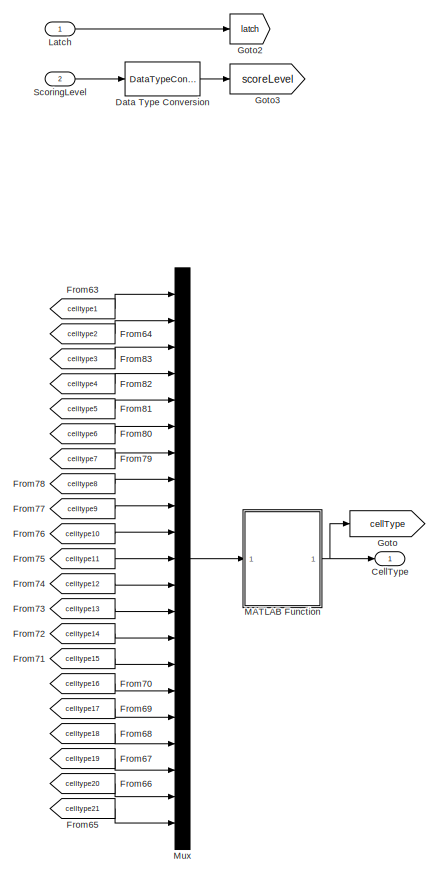
[diagram: BEST Robotics 2020 Game (Double-Click)/Cells - part 1/3, top center region]
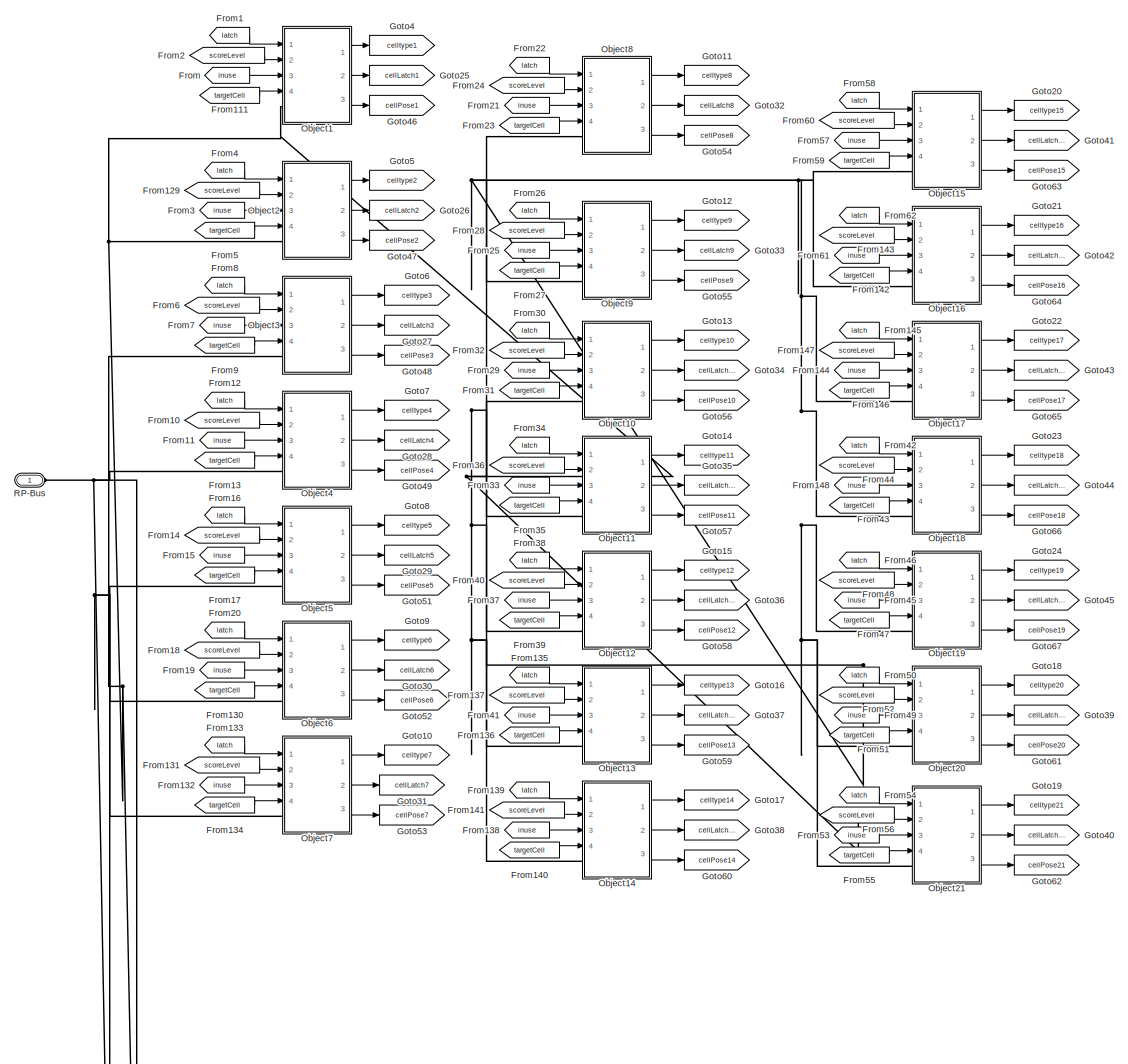
[diagram: BEST Robotics 2020 Game (Double-Click)/Cells - part 2/3, middle left region]
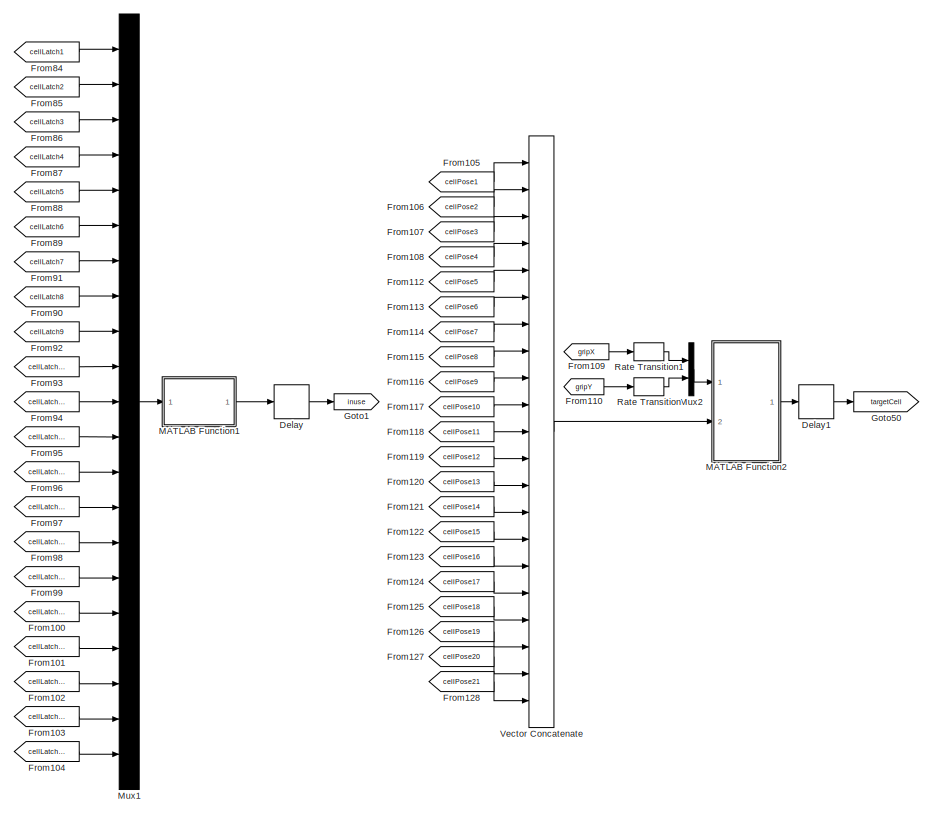
[diagram: BEST Robotics 2020 Game (Double-Click)/Cells - part 3/3, middle right region]
BLOCK [SubSystem] BEST Robotics 2020 Game (Double-Click)/Cells
  Ports = [2, 1, 0, 0, 0, 1]
  RequestExecContextInheritance = off
BLOCK [Outport] BEST Robotics 2020 Game (Double-Click)/Cells/CellType
  IconDisplay = Port number
BLOCK [DataTypeConversion] BEST Robotics 2020 Game (Double-Click)/Cells/Data Type Conversion
  OutDataTypeStr = double
  RndMeth = Floor
  SaturateOnIntegerOverflow = off
BLOCK [Delay] BEST Robotics 2020 Game (Double-Click)/Cells/Delay
  DelayLength = 1
  InputPortMap = u0
  Ports = [1, 1]
BLOCK [Delay] BEST Robotics 2020 Game (Double-Click)/Cells/Delay1
  DelayLength = 1
  InputPortMap = u0
  Ports = [1, 1]
BLOCK [From] BEST Robotics 2020 Game (Double-Click)/Cells/From
  GotoTag = inuse
BLOCK [From] BEST Robotics 2020 Game (Double-Click)/Cells/From1
  GotoTag = latch
BLOCK [From] BEST Robotics 2020 Game (Double-Click)/Cells/From10
  GotoTag = scoreLevel
  TagVisibility = global
BLOCK [From] BEST Robotics 2020 Game (Double-Click)/Cells/From100
  GotoTag = cellLatch17
BLOCK [From] BEST Robotics 2020 Game (Double-Click)/Cells/From101
  GotoTag = cellLatch18
BLOCK [From] BEST Robotics 2020 Game (Double-Click)/Cells/From102
  GotoTag = cellLatch19
BLOCK [From] BEST Robotics 2020 Game (Double-Click)/Cells/From103
  GotoTag = cellLatch20
BLOCK [From] BEST Robotics 2020 Game (Double-Click)/Cells/From104
  GotoTag = cellLatch21
BLOCK [From] BEST Robotics 2020 Game (Double-Click)/Cells/From105
  GotoTag = cellPose1
BLOCK [From] BEST Robotics 2020 Game (Double-Click)/Cells/From106
  GotoTag = cellPose2
BLOCK [From] BEST Robotics 2020 Game (Double-Click)/Cells/From107
  GotoTag = cellPose3
BLOCK [From] BEST Robotics 2020 Game (Double-Click)/Cells/From108
  GotoTag = cellPose4
BLOCK [From] BEST Robotics 2020 Game (Double-Click)/Cells/From109
  GotoTag = gripX
  TagVisibility = global
BLOCK [From] BEST Robotics 2020 Game (Double-Click)/Cells/From11
  GotoTag = inuse
BLOCK [From] BEST Robotics 2020 Game (Double-Click)/Cells/From110
  GotoTag = gripY
  TagVisibility = global
BLOCK [From] BEST Robotics 2020 Game (Double-Click)/Cells/From111
  GotoTag = targetCell
BLOCK [From] BEST Robotics 2020 Game (Double-Click)/Cells/From112
  GotoTag = cellPose5
BLOCK [From] BEST Robotics 2020 Game (Double-Click)/Cells/From113
  GotoTag = cellPose6
BLOCK [From] BEST Robotics 2020 Game (Double-Click)/Cells/From114
  GotoTag = cellPose7
BLOCK [From] BEST Robotics 2020 Game (Double-Click)/Cells/From115
  GotoTag = cellPose8
BLOCK [From] BEST Robotics 2020 Game (Double-Click)/Cells/From116
  GotoTag = cellPose9
BLOCK [From] BEST Robotics 2020 Game (Double-Click)/Cells/From117
  GotoTag = cellPose10
BLOCK [From] BEST Robotics 2020 Game (Double-Click)/Cells/From118
  GotoTag = cellPose11
BLOCK [From] BEST Robotics 2020 Game (Double-Click)/Cells/From119
  GotoTag = cellPose12
BLOCK [From] BEST Robotics 2020 Game (Double-Click)/Cells/From12
  GotoTag = latch
BLOCK [From] BEST Robotics 2020 Game (Double-Click)/Cells/From120
  GotoTag = cellPose13
BLOCK [From] BEST Robotics 2020 Game (Double-Click)/Cells/From121
  GotoTag = cellPose14
BLOCK [From] BEST Robotics 2020 Game (Double-Click)/Cells/From122
  GotoTag = cellPose15
BLOCK [From] BEST Robotics 2020 Game (Double-Click)/Cells/From123
  GotoTag = cellPose16
BLOCK [From] BEST Robotics 2020 Game (Double-Click)/Cells/From124
  GotoTag = cellPose17
BLOCK [From] BEST Robotics 2020 Game (Double-Click)/Cells/From125
  GotoTag = cellPose18
BLOCK [From] BEST Robotics 2020 Game (Double-Click)/Cells/From126
  GotoTag = cellPose19
BLOCK [From] BEST Robotics 2020 Game (Double-Click)/Cells/From127
  GotoTag = cellPose20
BLOCK [From] BEST Robotics 2020 Game (Double-Click)/Cells/From128
  GotoTag = cellPose21
BLOCK [From] BEST Robotics 2020 Game (Double-Click)/Cells/From129
  GotoTag = scoreLevel
  TagVisibility = global
BLOCK [From] BEST Robotics 2020 Game (Double-Click)/Cells/From13
  GotoTag = targetCell
BLOCK [From] BEST Robotics 2020 Game (Double-Click)/Cells/From130
  GotoTag = targetCell
BLOCK [From] BEST Robotics 2020 Game (Double-Click)/Cells/From131
  GotoTag = scoreLevel
  TagVisibility = global
BLOCK [From] BEST Robotics 2020 Game (Double-Click)/Cells/From132
  GotoTag = inuse
BLOCK [From] BEST Robotics 2020 Game (Double-Click)/Cells/From133
  GotoTag = latch
BLOCK [From] BEST Robotics 2020 Game (Double-Click)/Cells/From134
  GotoTag = targetCell
BLOCK [From] BEST Robotics 2020 Game (Double-Click)/Cells/From135
  GotoTag = latch
BLOCK [From] BEST Robotics 2020 Game (Double-Click)/Cells/From136
  GotoTag = targetCell
BLOCK [From] BEST Robotics 2020 Game (Double-Click)/Cells/From137
  GotoTag = scoreLevel
  TagVisibility = global
BLOCK [From] BEST Robotics 2020 Game (Double-Click)/Cells/From138
  GotoTag = inuse
BLOCK [From] BEST Robotics 2020 Game (Double-Click)/Cells/From139
  GotoTag = latch
BLOCK [From] BEST Robotics 2020 Game (Double-Click)/Cells/From14
  GotoTag = scoreLevel
  TagVisibility = global
BLOCK [From] BEST Robotics 2020 Game (Double-Click)/Cells/From140
  GotoTag = targetCell
BLOCK [From] BEST Robotics 2020 Game (Double-Click)/Cells/From141
  GotoTag = scoreLevel
  TagVisibility = global
BLOCK [From] BEST Robotics 2020 Game (Double-Click)/Cells/From142
  GotoTag = targetCell
BLOCK [From] BEST Robotics 2020 Game (Double-Click)/Cells/From143
  GotoTag = scoreLevel
  TagVisibility = global
BLOCK [From] BEST Robotics 2020 Game (Double-Click)/Cells/From144
  GotoTag = inuse
BLOCK [From] BEST Robotics 2020 Game (Double-Click)/Cells/From145
  GotoTag = latch
BLOCK [From] BEST Robotics 2020 Game (Double-Click)/Cells/From146
  GotoTag = targetCell
BLOCK [From] BEST Robotics 2020 Game (Double-Click)/Cells/From147
  GotoTag = scoreLevel
  TagVisibility = global
BLOCK [From] BEST Robotics 2020 Game (Double-Click)/Cells/From148
  GotoTag = inuse
BLOCK [From] BEST Robotics 2020 Game (Double-Click)/Cells/From15
  GotoTag = inuse
BLOCK [From] BEST Robotics 2020 Game (Double-Click)/Cells/From16
  GotoTag = latch
BLOCK [From] BEST Robotics 2020 Game (Double-Click)/Cells/From17
  GotoTag = targetCell
BLOCK [From] BEST Robotics 2020 Game (Double-Click)/Cells/From18
  GotoTag = scoreLevel
  TagVisibility = global
BLOCK [From] BEST Robotics 2020 Game (Double-Click)/Cells/From19
  GotoTag = inuse
BLOCK [From] BEST Robotics 2020 Game (Double-Click)/Cells/From2
  GotoTag = scoreLevel
  TagVisibility = global
BLOCK [From] BEST Robotics 2020 Game (Double-Click)/Cells/From20
  GotoTag = latch
BLOCK [From] BEST Robotics 2020 Game (Double-Click)/Cells/From21
  GotoTag = inuse
BLOCK [From] BEST Robotics 2020 Game (Double-Click)/Cells/From22
  GotoTag = latch
BLOCK [From] BEST Robotics 2020 Game (Double-Click)/Cells/From23
  GotoTag = targetCell
BLOCK [From] BEST Robotics 2020 Game (Double-Click)/Cells/From24
  GotoTag = scoreLevel
  TagVisibility = global
BLOCK [From] BEST Robotics 2020 Game (Double-Click)/Cells/From25
  GotoTag = inuse
BLOCK [From] BEST Robotics 2020 Game (Double-Click)/Cells/From26
  GotoTag = latch
BLOCK [From] BEST Robotics 2020 Game (Double-Click)/Cells/From27
  GotoTag = targetCell
BLOCK [From] BEST Robotics 2020 Game (Double-Click)/Cells/From28
  GotoTag = scoreLevel
  TagVisibility = global
BLOCK [From] BEST Robotics 2020 Game (Double-Click)/Cells/From29
  GotoTag = inuse
BLOCK [From] BEST Robotics 2020 Game (Double-Click)/Cells/From3
  GotoTag = inuse
BLOCK [From] BEST Robotics 2020 Game (Double-Click)/Cells/From30
  GotoTag = latch
BLOCK [From] BEST Robotics 2020 Game (Double-Click)/Cells/From31
  GotoTag = targetCell
BLOCK [From] BEST Robotics 2020 Game (Double-Click)/Cells/From32
  GotoTag = scoreLevel
  TagVisibility = global
BLOCK [From] BEST Robotics 2020 Game (Double-Click)/Cells/From33
  GotoTag = inuse
BLOCK [From] BEST Robotics 2020 Game (Double-Click)/Cells/From34
  GotoTag = latch
BLOCK [From] BEST Robotics 2020 Game (Double-Click)/Cells/From35
  GotoTag = targetCell
BLOCK [From] BEST Robotics 2020 Game (Double-Click)/Cells/From36
  GotoTag = scoreLevel
  TagVisibility = global
BLOCK [From] BEST Robotics 2020 Game (Double-Click)/Cells/From37
  GotoTag = inuse
BLOCK [From] BEST Robotics 2020 Game (Double-Click)/Cells/From38
  GotoTag = latch
BLOCK [From] BEST Robotics 2020 Game (Double-Click)/Cells/From39
  GotoTag = targetCell
BLOCK [From] BEST Robotics 2020 Game (Double-Click)/Cells/From4
  GotoTag = latch
BLOCK [From] BEST Robotics 2020 Game (Double-Click)/Cells/From40
  GotoTag = scoreLevel
  TagVisibility = global
BLOCK [From] BEST Robotics 2020 Game (Double-Click)/Cells/From41
  GotoTag = inuse
BLOCK [From] BEST Robotics 2020 Game (Double-Click)/Cells/From42
  GotoTag = latch
BLOCK [From] BEST Robotics 2020 Game (Double-Click)/Cells/From43
  GotoTag = targetCell
BLOCK [From] BEST Robotics 2020 Game (Double-Click)/Cells/From44
  GotoTag = scoreLevel
  TagVisibility = global
BLOCK [From] BEST Robotics 2020 Game (Double-Click)/Cells/From45
  GotoTag = inuse
BLOCK [From] BEST Robotics 2020 Game (Double-Click)/Cells/From46
  GotoTag = latch
BLOCK [From] BEST Robotics 2020 Game (Double-Click)/Cells/From47
  GotoTag = targetCell
BLOCK [From] BEST Robotics 2020 Game (Double-Click)/Cells/From48
  GotoTag = scoreLevel
  TagVisibility = global
BLOCK [From] BEST Robotics 2020 Game (Double-Click)/Cells/From49
  GotoTag = inuse
BLOCK [From] BEST Robotics 2020 Game (Double-Click)/Cells/From5
  GotoTag = targetCell
BLOCK [From] BEST Robotics 2020 Game (Double-Click)/Cells/From50
  GotoTag = latch
BLOCK [From] BEST Robotics 2020 Game (Double-Click)/Cells/From51
  GotoTag = targetCell
BLOCK [From] BEST Robotics 2020 Game (Double-Click)/Cells/From52
  GotoTag = scoreLevel
  TagVisibility = global
BLOCK [From] BEST Robotics 2020 Game (Double-Click)/Cells/From53
  GotoTag = inuse
BLOCK [From] BEST Robotics 2020 Game (Double-Click)/Cells/From54
  GotoTag = latch
BLOCK [From] BEST Robotics 2020 Game (Double-Click)/Cells/From55
  GotoTag = targetCell
BLOCK [From] BEST Robotics 2020 Game (Double-Click)/Cells/From56
  GotoTag = scoreLevel
  TagVisibility = global
BLOCK [From] BEST Robotics 2020 Game (Double-Click)/Cells/From57
  GotoTag = inuse
BLOCK [From] BEST Robotics 2020 Game (Double-Click)/Cells/From58
  GotoTag = latch
BLOCK [From] BEST Robotics 2020 Game (Double-Click)/Cells/From59
  GotoTag = targetCell
BLOCK [From] BEST Robotics 2020 Game (Double-Click)/Cells/From6
  GotoTag = scoreLevel
  TagVisibility = global
BLOCK [From] BEST Robotics 2020 Game (Double-Click)/Cells/From60
  GotoTag = scoreLevel
  TagVisibility = global
BLOCK [From] BEST Robotics 2020 Game (Double-Click)/Cells/From61
  GotoTag = inuse
BLOCK [From] BEST Robotics 2020 Game (Double-Click)/Cells/From62
  GotoTag = latch
BLOCK [From] BEST Robotics 2020 Game (Double-Click)/Cells/From63
  GotoTag = celltype1
BLOCK [From] BEST Robotics 2020 Game (Double-Click)/Cells/From64
  GotoTag = celltype2
BLOCK [From] BEST Robotics 2020 Game (Double-Click)/Cells/From65
  GotoTag = celltype21
BLOCK [From] BEST Robotics 2020 Game (Double-Click)/Cells/From66
  GotoTag = celltype20
BLOCK [From] BEST Robotics 2020 Game (Double-Click)/Cells/From67
  GotoTag = celltype19
BLOCK [From] BEST Robotics 2020 Game (Double-Click)/Cells/From68
  GotoTag = celltype18
BLOCK [From] BEST Robotics 2020 Game (Double-Click)/Cells/From69
  GotoTag = celltype17
BLOCK [From] BEST Robotics 2020 Game (Double-Click)/Cells/From7
  GotoTag = inuse
BLOCK [From] BEST Robotics 2020 Game (Double-Click)/Cells/From70
  GotoTag = celltype16
BLOCK [From] BEST Robotics 2020 Game (Double-Click)/Cells/From71
  GotoTag = celltype15
BLOCK [From] BEST Robotics 2020 Game (Double-Click)/Cells/From72
  GotoTag = celltype14
BLOCK [From] BEST Robotics 2020 Game (Double-Click)/Cells/From73
  GotoTag = celltype13
BLOCK [From] BEST Robotics 2020 Game (Double-Click)/Cells/From74
  GotoTag = celltype12
BLOCK [From] BEST Robotics 2020 Game (Double-Click)/Cells/From75
  GotoTag = celltype11
BLOCK [From] BEST Robotics 2020 Game (Double-Click)/Cells/From76
  GotoTag = celltype10
BLOCK [From] BEST Robotics 2020 Game (Double-Click)/Cells/From77
  GotoTag = celltype9
BLOCK [From] BEST Robotics 2020 Game (Double-Click)/Cells/From78
  GotoTag = celltype8
BLOCK [From] BEST Robotics 2020 Game (Double-Click)/Cells/From79
  GotoTag = celltype7
BLOCK [From] BEST Robotics 2020 Game (Double-Click)/Cells/From8
  GotoTag = latch
BLOCK [From] BEST Robotics 2020 Game (Double-Click)/Cells/From80
  GotoTag = celltype6
BLOCK [From] BEST Robotics 2020 Game (Double-Click)/Cells/From81
  GotoTag = celltype5
BLOCK [From] BEST Robotics 2020 Game (Double-Click)/Cells/From82
  GotoTag = celltype4
BLOCK [From] BEST Robotics 2020 Game (Double-Click)/Cells/From83
  GotoTag = celltype3
BLOCK [From] BEST Robotics 2020 Game (Double-Click)/Cells/From84
  GotoTag = cellLatch1
BLOCK [From] BEST Robotics 2020 Game (Double-Click)/Cells/From85
  GotoTag = cellLatch2
BLOCK [From] BEST Robotics 2020 Game (Double-Click)/Cells/From86
  GotoTag = cellLatch3
BLOCK [From] BEST Robotics 2020 Game (Double-Click)/Cells/From87
  GotoTag = cellLatch4
BLOCK [From] BEST Robotics 2020 Game (Double-Click)/Cells/From88
  GotoTag = cellLatch5
BLOCK [From] BEST Robotics 2020 Game (Double-Click)/Cells/From89
  GotoTag = cellLatch6
BLOCK [From] BEST Robotics 2020 Game (Double-Click)/Cells/From9
  GotoTag = targetCell
BLOCK [From] BEST Robotics 2020 Game (Double-Click)/Cells/From90
  GotoTag = cellLatch8
BLOCK [From] BEST Robotics 2020 Game (Double-Click)/Cells/From91
  GotoTag = cellLatch7
BLOCK [From] BEST Robotics 2020 Game (Double-Click)/Cells/From92
  GotoTag = cellLatch9
BLOCK [From] BEST Robotics 2020 Game (Double-Click)/Cells/From93
  GotoTag = cellLatch10
BLOCK [From] BEST Robotics 2020 Game (Double-Click)/Cells/From94
  GotoTag = cellLatch11
BLOCK [From] BEST Robotics 2020 Game (Double-Click)/Cells/From95
  GotoTag = cellLatch12
BLOCK [From] BEST Robotics 2020 Game (Double-Click)/Cells/From96
  GotoTag = cellLatch13
BLOCK [From] BEST Robotics 2020 Game (Double-Click)/Cells/From97
  GotoTag = cellLatch14
BLOCK [From] BEST Robotics 2020 Game (Double-Click)/Cells/From98
  GotoTag = cellLatch15
BLOCK [From] BEST Robotics 2020 Game (Double-Click)/Cells/From99
  GotoTag = cellLatch16
BLOCK [Goto] BEST Robotics 2020 Game (Double-Click)/Cells/Goto
  GotoTag = cellType
  TagVisibility = global
BLOCK [Goto] BEST Robotics 2020 Game (Double-Click)/Cells/Goto1
  GotoTag = inuse
BLOCK [Goto] BEST Robotics 2020 Game (Double-Click)/Cells/Goto10
  GotoTag = celltype7
BLOCK [Goto] BEST Robotics 2020 Game (Double-Click)/Cells/Goto11
  GotoTag = celltype8
BLOCK [Goto] BEST Robotics 2020 Game (Double-Click)/Cells/Goto12
  GotoTag = celltype9
BLOCK [Goto] BEST Robotics 2020 Game (Double-Click)/Cells/Goto13
  GotoTag = celltype10
BLOCK [Goto] BEST Robotics 2020 Game (Double-Click)/Cells/Goto14
  GotoTag = celltype11
BLOCK [Goto] BEST Robotics 2020 Game (Double-Click)/Cells/Goto15
  GotoTag = celltype12
BLOCK [Goto] BEST Robotics 2020 Game (Double-Click)/Cells/Goto16
  GotoTag = celltype13
BLOCK [Goto] BEST Robotics 2020 Game (Double-Click)/Cells/Goto17
  GotoTag = celltype14
BLOCK [Goto] BEST Robotics 2020 Game (Double-Click)/Cells/Goto18
  GotoTag = celltype20
BLOCK [Goto] BEST Robotics 2020 Game (Double-Click)/Cells/Goto19
  GotoTag = celltype21
BLOCK [Goto] BEST Robotics 2020 Game (Double-Click)/Cells/Goto2
  GotoTag = latch
BLOCK [Goto] BEST Robotics 2020 Game (Double-Click)/Cells/Goto20
  GotoTag = celltype15
BLOCK [Goto] BEST Robotics 2020 Game (Double-Click)/Cells/Goto21
  GotoTag = celltype16
BLOCK [Goto] BEST Robotics 2020 Game (Double-Click)/Cells/Goto22
  GotoTag = celltype17
BLOCK [Goto] BEST Robotics 2020 Game (Double-Click)/Cells/Goto23
  GotoTag = celltype18
BLOCK [Goto] BEST Robotics 2020 Game (Double-Click)/Cells/Goto24
  GotoTag = celltype19
BLOCK [Goto] BEST Robotics 2020 Game (Double-Click)/Cells/Goto25
  GotoTag = cellLatch1
BLOCK [Goto] BEST Robotics 2020 Game (Double-Click)/Cells/Goto26
  GotoTag = cellLatch2
BLOCK [Goto] BEST Robotics 2020 Game (Double-Click)/Cells/Goto27
  GotoTag = cellLatch3
BLOCK [Goto] BEST Robotics 2020 Game (Double-Click)/Cells/Goto28
  GotoTag = cellLatch4
BLOCK [Goto] BEST Robotics 2020 Game (Double-Click)/Cells/Goto29
  GotoTag = cellLatch5
BLOCK [Goto] BEST Robotics 2020 Game (Double-Click)/Cells/Goto3
  GotoTag = scoreLevel
  TagVisibility = global
BLOCK [Goto] BEST Robotics 2020 Game (Double-Click)/Cells/Goto30
  GotoTag = cellLatch6
BLOCK [Goto] BEST Robotics 2020 Game (Double-Click)/Cells/Goto31
  GotoTag = cellLatch7
BLOCK [Goto] BEST Robotics 2020 Game (Double-Click)/Cells/Goto32
  GotoTag = cellLatch8
BLOCK [Goto] BEST Robotics 2020 Game (Double-Click)/Cells/Goto33
  GotoTag = cellLatch9
BLOCK [Goto] BEST Robotics 2020 Game (Double-Click)/Cells/Goto34
  GotoTag = cellLatch10
BLOCK [Goto] BEST Robotics 2020 Game (Double-Click)/Cells/Goto35
  GotoTag = cellLatch11
BLOCK [Goto] BEST Robotics 2020 Game (Double-Click)/Cells/Goto36
  GotoTag = cellLatch12
BLOCK [Goto] BEST Robotics 2020 Game (Double-Click)/Cells/Goto37
  GotoTag = cellLatch13
BLOCK [Goto] BEST Robotics 2020 Game (Double-Click)/Cells/Goto38
  GotoTag = cellLatch14
BLOCK [Goto] BEST Robotics 2020 Game (Double-Click)/Cells/Goto39
  GotoTag = cellLatch20
BLOCK [Goto] BEST Robotics 2020 Game (Double-Click)/Cells/Goto4
  GotoTag = celltype1
BLOCK [Goto] BEST Robotics 2020 Game (Double-Click)/Cells/Goto40
  GotoTag = cellLatch21
BLOCK [Goto] BEST Robotics 2020 Game (Double-Click)/Cells/Goto41
  GotoTag = cellLatch15
BLOCK [Goto] BEST Robotics 2020 Game (Double-Click)/Cells/Goto42
  GotoTag = cellLatch16
BLOCK [Goto] BEST Robotics 2020 Game (Double-Click)/Cells/Goto43
  GotoTag = cellLatch17
BLOCK [Goto] BEST Robotics 2020 Game (Double-Click)/Cells/Goto44
  GotoTag = cellLatch18
BLOCK [Goto] BEST Robotics 2020 Game (Double-Click)/Cells/Goto45
  GotoTag = cellLatch19
BLOCK [Goto] BEST Robotics 2020 Game (Double-Click)/Cells/Goto46
  GotoTag = cellPose1
BLOCK [Goto] BEST Robotics 2020 Game (Double-Click)/Cells/Goto47
  GotoTag = cellPose2
BLOCK [Goto] BEST Robotics 2020 Game (Double-Click)/Cells/Goto48
  GotoTag = cellPose3
BLOCK [Goto] BEST Robotics 2020 Game (Double-Click)/Cells/Goto49
  GotoTag = cellPose4
BLOCK [Goto] BEST Robotics 2020 Game (Double-Click)/Cells/Goto5
  GotoTag = celltype2
BLOCK [Goto] BEST Robotics 2020 Game (Double-Click)/Cells/Goto50
  GotoTag = targetCell
BLOCK [Goto] BEST Robotics 2020 Game (Double-Click)/Cells/Goto51
  GotoTag = cellPose5
BLOCK [Goto] BEST Robotics 2020 Game (Double-Click)/Cells/Goto52
  GotoTag = cellPose6
BLOCK [Goto] BEST Robotics 2020 Game (Double-Click)/Cells/Goto53
  GotoTag = cellPose7
BLOCK [Goto] BEST Robotics 2020 Game (Double-Click)/Cells/Goto54
  GotoTag = cellPose8
BLOCK [Goto] BEST Robotics 2020 Game (Double-Click)/Cells/Goto55
  GotoTag = cellPose9
BLOCK [Goto] BEST Robotics 2020 Game (Double-Click)/Cells/Goto56
  GotoTag = cellPose10
BLOCK [Goto] BEST Robotics 2020 Game (Double-Click)/Cells/Goto57
  GotoTag = cellPose11
BLOCK [Goto] BEST Robotics 2020 Game (Double-Click)/Cells/Goto58
  GotoTag = cellPose12
BLOCK [Goto] BEST Robotics 2020 Game (Double-Click)/Cells/Goto59
  GotoTag = cellPose13
BLOCK [Goto] BEST Robotics 2020 Game (Double-Click)/Cells/Goto6
  GotoTag = celltype3
BLOCK [Goto] BEST Robotics 2020 Game (Double-Click)/Cells/Goto60
  GotoTag = cellPose14
BLOCK [Goto] BEST Robotics 2020 Game (Double-Click)/Cells/Goto61
  GotoTag = cellPose20
BLOCK [Goto] BEST Robotics 2020 Game (Double-Click)/Cells/Goto62
  GotoTag = cellPose21
BLOCK [Goto] BEST Robotics 2020 Game (Double-Click)/Cells/Goto63
  GotoTag = cellPose15
BLOCK [Goto] BEST Robotics 2020 Game (Double-Click)/Cells/Goto64
  GotoTag = cellPose16
BLOCK [Goto] BEST Robotics 2020 Game (Double-Click)/Cells/Goto65
  GotoTag = cellPose17
BLOCK [Goto] BEST Robotics 2020 Game (Double-Click)/Cells/Goto66
  GotoTag = cellPose18
BLOCK [Goto] BEST Robotics 2020 Game (Double-Click)/Cells/Goto67
  GotoTag = cellPose19
BLOCK [Goto] BEST Robotics 2020 Game (Double-Click)/Cells/Goto7
  GotoTag = celltype4
BLOCK [Goto] BEST Robotics 2020 Game (Double-Click)/Cells/Goto8
  GotoTag = celltype5
BLOCK [Goto] BEST Robotics 2020 Game (Double-Click)/Cells/Goto9
  GotoTag = celltype6
BLOCK [Inport] BEST Robotics 2020 Game (Double-Click)/Cells/Latch
  IconDisplay = Port number
BLOCK [SubSystem] BEST Robotics 2020 Game (Double-Click)/Cells/MATLAB Function
  ErrorFcn = Stateflow.Translate.translate
  PermitHierarchicalResolution = ExplicitOnly
  Ports = [1, 1]
  RequestExecContextInheritance = off
  SFBlockType = MATLAB Function
  TreatAsAtomicUnit = on
BLOCK [Demux] BEST Robotics 2020 Game (Double-Click)/Cells/MATLAB Function/ Demux 
  DisplayOption = bar
  Outputs = 1
  Ports = [1, 1]
BLOCK [S-Function] BEST Robotics 2020 Game (Double-Click)/Cells/MATLAB Function/ SFunction 
  EnableBusSupport = on
  FunctionName = sf_sfun
  PortCounts = [1 2]
  Ports = [1, 2]
  SFcnIsStateOwnerBlock = off
  SFunctionDeploymentMode = off
  Tag = Stateflow S-Function 4
BLOCK [Terminator] BEST Robotics 2020 Game (Double-Click)/Cells/MATLAB Function/ Terminator 
BLOCK [Inport] BEST Robotics 2020 Game (Double-Click)/Cells/MATLAB Function/input
  IconDisplay = Port number
BLOCK [Outport] BEST Robotics 2020 Game (Double-Click)/Cells/MATLAB Function/output
  IconDisplay = Port number
BLOCK [SubSystem] BEST Robotics 2020 Game (Double-Click)/Cells/MATLAB Function1
  ErrorFcn = Stateflow.Translate.translate
  PermitHierarchicalResolution = ExplicitOnly
  Ports = [1, 1]
  RequestExecContextInheritance = off
  SFBlockType = MATLAB Function
  TreatAsAtomicUnit = on
BLOCK [Demux] BEST Robotics 2020 Game (Double-Click)/Cells/MATLAB Function1/ Demux 
  DisplayOption = bar
  Outputs = 1
  Ports = [1, 1]
BLOCK [S-Function] BEST Robotics 2020 Game (Double-Click)/Cells/MATLAB Function1/ SFunction 
  EnableBusSupport = on
  FunctionName = sf_sfun
  PortCounts = [1 2]
  Ports = [1, 2]
  SFcnIsStateOwnerBlock = off
  SFunctionDeploymentMode = off
  Tag = Stateflow S-Function 1
BLOCK [Terminator] BEST Robotics 2020 Game (Double-Click)/Cells/MATLAB Function1/ Terminator 
BLOCK [Inport] BEST Robotics 2020 Game (Double-Click)/Cells/MATLAB Function1/input
  IconDisplay = Port number
BLOCK [Outport] BEST Robotics 2020 Game (Double-Click)/Cells/MATLAB Function1/inuse
  IconDisplay = Port number
BLOCK [SubSystem] BEST Robotics 2020 Game (Double-Click)/Cells/MATLAB Function2
  ErrorFcn = Stateflow.Translate.translate
  PermitHierarchicalResolution = ExplicitOnly
  Ports = [2, 1]
  RequestExecContextInheritance = off
  SFBlockType = MATLAB Function
  TreatAsAtomicUnit = on
BLOCK [Demux] BEST Robotics 2020 Game (Double-Click)/Cells/MATLAB Function2/ Demux 
  Outputs = 1
  Ports = [1, 1]
BLOCK [S-Function] BEST Robotics 2020 Game (Double-Click)/Cells/MATLAB Function2/ SFunction 
  EnableBusSupport = on
  FunctionName = sf_sfun
  PortCounts = [2 2]
  Ports = [2, 2]
  SFcnIsStateOwnerBlock = off
  SFunctionDeploymentMode = off
  Tag = Stateflow S-Function 26
BLOCK [Terminator] BEST Robotics 2020 Game (Double-Click)/Cells/MATLAB Function2/ Terminator 
BLOCK [Inport] BEST Robotics 2020 Game (Double-Click)/Cells/MATLAB Function2/cellPoses
  IconDisplay = Port number
  Port = 2
BLOCK [Outport] BEST Robotics 2020 Game (Double-Click)/Cells/MATLAB Function2/cellTarget
  IconDisplay = Port number
BLOCK [Inport] BEST Robotics 2020 Game (Double-Click)/Cells/MATLAB Function2/robotPose
  IconDisplay = Port number
BLOCK [Mux] BEST Robotics 2020 Game (Double-Click)/Cells/Mux
  DisplayOption = bar
  Inputs = 21
  Ports = [21, 1]
BLOCK [Mux] BEST Robotics 2020 Game (Double-Click)/Cells/Mux1
  DisplayOption = bar
  Inputs = 21
  Ports = [21, 1]
BLOCK [Mux] BEST Robotics 2020 Game (Double-Click)/Cells/Mux2
  DisplayOption = bar
  Inputs = 2
  Ports = [2, 1]
BLOCK [SubSystem] BEST Robotics 2020 Game (Double-Click)/Cells/Object1
  Ports = [4, 3, 0, 0, 0, 1]
  RequestExecContextInheritance = off
BLOCK [Reference] BEST Robotics 2020 Game (Double-Click)/Cells/Object1/Brick Solid  REF=sm_lib/Body Elements/Brick Solid
  Ports = [0, 0, 0, 0, 0, 0, 1]
  SourceBlock = sm_lib/Body Elements/Brick Solid
  SourceProductBaseCode = MS
  SourceType = Brick Solid
BLOCK [Reference] BEST Robotics 2020 Game (Double-Click)/Cells/Object1/Cartesian Joint  REF=sm_lib/Joints/Cartesian
Joint
  Ports = [0, 0, 0, 0, 0, 4, 3]
  SourceBlock = sm_lib/Joints/Cartesian\nJoint
  SourceProductBaseCode = MS
  SourceType = Cartesian\nJoint
BLOCK [Constant] BEST Robotics 2020 Game (Double-Click)/Cells/Object1/Constant
  Value = cellTypeArray(objId)
BLOCK [Delay] BEST Robotics 2020 Game (Double-Click)/Cells/Object1/Delay
  DelayLength = 1
  InputPortMap = u0
  Ports = [1, 1]
BLOCK [Delay] BEST Robotics 2020 Game (Double-Click)/Cells/Object1/Delay1
  DelayLength = 1
  InputPortMap = u0
  Ports = [1, 1]
BLOCK [DigitalClock] BEST Robotics 2020 Game (Double-Click)/Cells/Object1/Digital Clock
  SampleTime = 0.02
BLOCK [SubSystem] BEST Robotics 2020 Game (Double-Click)/Cells/Object1/EndVisuals
  Commented = on
  Ports = [1, 0, 0, 0, 0, 1]
  RequestExecContextInheritance = off
BLOCK [Reference] BEST Robotics 2020 Game (Double-Click)/Cells/Object1/EndVisuals/Brick Solid  REF=sm_lib/Body Elements/Brick Solid
  Ports = [0, 0, 0, 0, 0, 0, 1]
  SourceBlock = sm_lib/Body Elements/Brick Solid
  SourceProductBaseCode = MS
  SourceType = Brick Solid
BLOCK [Reference] BEST Robotics 2020 Game (Double-Click)/Cells/Object1/EndVisuals/Brick Solid1  REF=sm_lib/Body Elements/Brick Solid
  Ports = [0, 0, 0, 0, 0, 0, 1]
  SourceBlock = sm_lib/Body Elements/Brick Solid
  SourceProductBaseCode = MS
  SourceType = Brick Solid
BLOCK [Reference] BEST Robotics 2020 Game (Double-Click)/Cells/Object1/EndVisuals/Brick Solid2  REF=sm_lib/Body Elements/Brick Solid
  Ports = [0, 0, 0, 0, 0, 0, 1]
  SourceBlock = sm_lib/Body Elements/Brick Solid
  SourceProductBaseCode = MS
  SourceType = Brick Solid
BLOCK [Reference] BEST Robotics 2020 Game (Double-Click)/Cells/Object1/EndVisuals/Compare To Constant  REF=simulink/Logic and Bit
Operations/Compare
To Constant
  Ports = [1, 1]
  SourceBlock = simulink/Logic and Bit\nOperations/Compare\nTo Constant
  SourceProductBaseCode = SL
  SourceType = Compare To Constant
BLOCK [Reference] BEST Robotics 2020 Game (Double-Click)/Cells/Object1/EndVisuals/Compare To Constant1  REF=simulink/Logic and Bit
Operations/Compare
To Constant
  Ports = [1, 1]
  SourceBlock = simulink/Logic and Bit\nOperations/Compare\nTo Constant
  SourceProductBaseCode = SL
  SourceType = Compare To Constant
BLOCK [Reference] BEST Robotics 2020 Game (Double-Click)/Cells/Object1/EndVisuals/Compare To Constant2  REF=simulink/Logic and Bit
Operations/Compare
To Constant
  Ports = [1, 1]
  SourceBlock = simulink/Logic and Bit\nOperations/Compare\nTo Constant
  SourceProductBaseCode = SL
  SourceType = Compare To Constant
BLOCK [Inport] BEST Robotics 2020 Game (Double-Click)/Cells/Object1/EndVisuals/EndType
  IconDisplay = Port number
BLOCK [Gain] BEST Robotics 2020 Game (Double-Click)/Cells/Object1/EndVisuals/Gain1
  Gain = 0.025
  OutDataTypeStr = double
  ParamDataTypeStr = Inherit: Inherit via internal rule
  SaturateOnIntegerOverflow = off
BLOCK [Gain] BEST Robotics 2020 Game (Double-Click)/Cells/Object1/EndVisuals/Gain2
  Gain = 0.025
  OutDataTypeStr = double
  ParamDataTypeStr = Inherit: Inherit via internal rule
  SaturateOnIntegerOverflow = off
BLOCK [Gain] BEST Robotics 2020 Game (Double-Click)/Cells/Object1/EndVisuals/Gain3
  Gain = 0.025
  OutDataTypeStr = double
  ParamDataTypeStr = Inherit: Inherit via internal rule
  SaturateOnIntegerOverflow = off
BLOCK [PMIOPort] BEST Robotics 2020 Game (Double-Click)/Cells/Object1/EndVisuals/Prismatic Joint1
  Side = Left
BLOCK [Reference] BEST Robotics 2020 Game (Double-Click)/Cells/Object1/EndVisuals/Prismatic Joint2  REF=sm_lib/Joints/Prismatic
Joint
  Ports = [0, 0, 0, 0, 0, 2, 1]
  SourceBlock = sm_lib/Joints/Prismatic\nJoint
  SourceProductBaseCode = MS
  SourceType = Prismatic\nJoint
BLOCK [Reference] BEST Robotics 2020 Game (Double-Click)/Cells/Object1/EndVisuals/Prismatic Joint3  REF=sm_lib/Joints/Prismatic
Joint
  Ports = [0, 0, 0, 0, 0, 2, 1]
  SourceBlock = sm_lib/Joints/Prismatic\nJoint
  SourceProductBaseCode = MS
  SourceType = Prismatic\nJoint
BLOCK [Reference] BEST Robotics 2020 Game (Double-Click)/Cells/Object1/EndVisuals/Prismatic Joint4  REF=sm_lib/Joints/Prismatic
Joint
  Ports = [0, 0, 0, 0, 0, 2, 1]
  SourceBlock = sm_lib/Joints/Prismatic\nJoint
  SourceProductBaseCode = MS
  SourceType = Prismatic\nJoint
BLOCK [Reference] BEST Robotics 2020 Game (Double-Click)/Cells/Object1/EndVisuals/Simulink-PS Converter1  REF=nesl_utility/Simulink-PS
Converter
  Ports = [1, 0, 0, 0, 0, 0, 1]
  SourceBlock = nesl_utility/Simulink-PS\nConverter
  SourceProductBaseCode = SS
  SourceType = Simulink-PS\nConverter
BLOCK [Reference] BEST Robotics 2020 Game (Double-Click)/Cells/Object1/EndVisuals/Simulink-PS Converter2  REF=nesl_utility/Simulink-PS
Converter
  Ports = [1, 0, 0, 0, 0, 0, 1]
  SourceBlock = nesl_utility/Simulink-PS\nConverter
  SourceProductBaseCode = SS
  SourceType = Simulink-PS\nConverter
BLOCK [Reference] BEST Robotics 2020 Game (Double-Click)/Cells/Object1/EndVisuals/Simulink-PS Converter3  REF=nesl_utility/Simulink-PS
Converter
  Ports = [1, 0, 0, 0, 0, 0, 1]
  SourceBlock = nesl_utility/Simulink-PS\nConverter
  SourceProductBaseCode = SS
  SourceType = Simulink-PS\nConverter
BLOCK [From] BEST Robotics 2020 Game (Double-Click)/Cells/Object1/From
  GotoTag = gripX
  TagVisibility = global
BLOCK [From] BEST Robotics 2020 Game (Double-Click)/Cells/Object1/From1
  GotoTag = gripY
  TagVisibility = global
BLOCK [Gain] BEST Robotics 2020 Game (Double-Click)/Cells/Object1/Gain
  Gain = 1/0.4
  OutDataTypeStr = Inherit: Inherit via internal rule
  ParamDataTypeStr = Inherit: Inherit via internal rule
  SaturateOnIntegerOverflow = off
BLOCK [Goto] BEST Robotics 2020 Game (Double-Click)/Cells/Object1/Goto
  GotoTag = objInfo1
  TagVisibility = global
BLOCK [Inport] BEST Robotics 2020 Game (Double-Click)/Cells/Object1/In1
  IconDisplay = Port number
BLOCK [Inport] BEST Robotics 2020 Game (Double-Click)/Cells/Object1/In2
  IconDisplay = Port number
  Port = 2
BLOCK [Inport] BEST Robotics 2020 Game (Double-Click)/Cells/Object1/In3
  IconDisplay = Port number
  Port = 3
BLOCK [Inport] BEST Robotics 2020 Game (Double-Click)/Cells/Object1/In4
  IconDisplay = Port number
  Port = 4
BLOCK [SubSystem] BEST Robotics 2020 Game (Double-Click)/Cells/Object1/MATLAB Function
  ErrorFcn = Stateflow.Translate.translate
  PermitHierarchicalResolution = ExplicitOnly
  Ports = [7, 5]
  RequestExecContextInheritance = off
  SFBlockType = MATLAB Function
  SystemSampleTime = 0.02
  TreatAsAtomicUnit = on
BLOCK [Demux] BEST Robotics 2020 Game (Double-Click)/Cells/Object1/MATLAB Function/ Demux 
  DisplayOption = bar
  Outputs = 1
  Ports = [1, 1]
BLOCK [S-Function] BEST Robotics 2020 Game (Double-Click)/Cells/Object1/MATLAB Function/ SFunction 
  EnableBusSupport = on
  FunctionName = sf_sfun
  Parameters = cellLevel,cellTypeArray,gameTime,initPose,objId,platformPoses
  PortCounts = [7 6]
  Ports = [7, 6]
  SFcnIsStateOwnerBlock = off
  SFunctionDeploymentMode = off
  Tag = Stateflow S-Function 7
BLOCK [Terminator] BEST Robotics 2020 Game (Double-Click)/Cells/Object1/MATLAB Function/ Terminator 
BLOCK [Outport] BEST Robotics 2020 Game (Double-Click)/Cells/Object1/MATLAB Function/cellType
  IconDisplay = Port number
  Port = 4
BLOCK [Outport] BEST Robotics 2020 Game (Double-Click)/Cells/Object1/MATLAB Function/endType
  IconDisplay = Port number
  Port = 5
BLOCK [Inport] BEST Robotics 2020 Game (Double-Click)/Cells/Object1/MATLAB Function/inuse
  IconDisplay = Port number
  Port = 3
BLOCK [Inport] BEST Robotics 2020 Game (Double-Click)/Cells/Object1/MATLAB Function/latch
  IconDisplay = Port number
BLOCK [Outport] BEST Robotics 2020 Game (Double-Click)/Cells/Object1/MATLAB Function/latched
  IconDisplay = Port number
  Port = 3
BLOCK [Outport] BEST Robotics 2020 Game (Double-Click)/Cells/Object1/MATLAB Function/objPoseX
  IconDisplay = Port number
BLOCK [Outport] BEST Robotics 2020 Game (Double-Click)/Cells/Object1/MATLAB Function/objPoseY
  IconDisplay = Port number
  Port = 2
BLOCK [Inport] BEST Robotics 2020 Game (Double-Click)/Cells/Object1/MATLAB Function/robotPoseX
  IconDisplay = Port number
  Port = 6
BLOCK [Inport] BEST Robotics 2020 Game (Double-Click)/Cells/Object1/MATLAB Function/robotPoseY
  IconDisplay = Port number
  Port = 7
BLOCK [Inport] BEST Robotics 2020 Game (Double-Click)/Cells/Object1/MATLAB Function/scoreLevel
  IconDisplay = Port number
  Port = 2
BLOCK [Inport] BEST Robotics 2020 Game (Double-Click)/Cells/Object1/MATLAB Function/target
  IconDisplay = Port number
  Port = 4
BLOCK [Inport] BEST Robotics 2020 Game (Double-Click)/Cells/Object1/MATLAB Function/time
  IconDisplay = Port number
  Port = 5
BLOCK [Mux] BEST Robotics 2020 Game (Double-Click)/Cells/Object1/Mux
  DisplayOption = bar
  Ports = [4, 1]
BLOCK [Mux] BEST Robotics 2020 Game (Double-Click)/Cells/Object1/Mux1
  DisplayOption = bar
  Inputs = 2
  Ports = [2, 1]
BLOCK [RateTransition] BEST Robotics 2020 Game (Double-Click)/Cells/Object1/Rate Transition
BLOCK [RateTransition] BEST Robotics 2020 Game (Double-Click)/Cells/Object1/Rate Transition1
BLOCK [Reshape] BEST Robotics 2020 Game (Double-Click)/Cells/Object1/Reshape
  OutputDimensionality = Row vector (2-D)
  Ports = [1, 1]
BLOCK [Reshape] BEST Robotics 2020 Game (Double-Click)/Cells/Object1/Reshape1
  OutputDimensionality = Row vector (2-D)
  Ports = [1, 1]
BLOCK [Reference] BEST Robotics 2020 Game (Double-Click)/Cells/Object1/Rigid Transform  REF=sm_lib/Frames and
Transforms/Rigid
Transform
  Ports = [0, 0, 0, 0, 0, 1, 1]
  SourceBlock = sm_lib/Frames and\nTransforms/Rigid\nTransform
  SourceProductBaseCode = MS
  SourceType = Rigid\nTransform
BLOCK [PMIOPort] BEST Robotics 2020 Game (Double-Click)/Cells/Object1/Robot
  Side = Left
BLOCK [SimscapeBus] BEST Robotics 2020 Game (Double-Click)/Cells/Object1/Simscape Bus
  HierarchyStrings = Ref
  Ports = [0, 0, 0, 0, 0, 1, 1]
BLOCK [Reference] BEST Robotics 2020 Game (Double-Click)/Cells/Object1/Simulink-PS Converter  REF=nesl_utility/Simulink-PS
Converter
  Ports = [1, 0, 0, 0, 0, 0, 1]
  SourceBlock = nesl_utility/Simulink-PS\nConverter
  SourceProductBaseCode = SS
  SourceType = Simulink-PS\nConverter
BLOCK [Reference] BEST Robotics 2020 Game (Double-Click)/Cells/Object1/Simulink-PS Converter1  REF=nesl_utility/Simulink-PS
Converter
  Ports = [1, 0, 0, 0, 0, 0, 1]
  SourceBlock = nesl_utility/Simulink-PS\nConverter
  SourceProductBaseCode = SS
  SourceType = Simulink-PS\nConverter
BLOCK [Reference] BEST Robotics 2020 Game (Double-Click)/Cells/Object1/Simulink-PS Converter2  REF=nesl_utility/Simulink-PS
Converter
  Ports = [1, 0, 0, 0, 0, 0, 1]
  SourceBlock = nesl_utility/Simulink-PS\nConverter
  SourceProductBaseCode = SS
  SourceType = Simulink-PS\nConverter
BLOCK [Outport] BEST Robotics 2020 Game (Double-Click)/Cells/Object1/cellType
  IconDisplay = Port number
BLOCK [Outport] BEST Robotics 2020 Game (Double-Click)/Cells/Object1/latched
  IconDisplay = Port number
  Port = 2
BLOCK [Gain] BEST Robotics 2020 Game (Double-Click)/Cells/Object1/m2in
  Gain = 39.37
  OutDataTypeStr = Inherit: Inherit via internal rule
  ParamDataTypeStr = Inherit: Inherit via internal rule
  SaturateOnIntegerOverflow = off
BLOCK [Gain] BEST Robotics 2020 Game (Double-Click)/Cells/Object1/m2in1
  Gain = 39.37
  OutDataTypeStr = Inherit: Inherit via internal rule
  ParamDataTypeStr = Inherit: Inherit via internal rule
  SaturateOnIntegerOverflow = off
BLOCK [Outport] BEST Robotics 2020 Game (Double-Click)/Cells/Object1/objPose
  IconDisplay = Port number
  Port = 3
BLOCK [SubSystem] BEST Robotics 2020 Game (Double-Click)/Cells/Object10
  Ports = [4, 3, 0, 0, 0, 1]
  RequestExecContextInheritance = off
BLOCK [Reference] BEST Robotics 2020 Game (Double-Click)/Cells/Object10/Brick Solid  REF=sm_lib/Body Elements/Brick Solid
  Ports = [0, 0, 0, 0, 0, 0, 1]
  SourceBlock = sm_lib/Body Elements/Brick Solid
  SourceProductBaseCode = MS
  SourceType = Brick Solid
BLOCK [Reference] BEST Robotics 2020 Game (Double-Click)/Cells/Object10/Cartesian Joint  REF=sm_lib/Joints/Cartesian
Joint
  Ports = [0, 0, 0, 0, 0, 4, 3]
  SourceBlock = sm_lib/Joints/Cartesian\nJoint
  SourceProductBaseCode = MS
  SourceType = Cartesian\nJoint
BLOCK [Constant] BEST Robotics 2020 Game (Double-Click)/Cells/Object10/Constant
  Value = cellTypeArray(objId)
BLOCK [Delay] BEST Robotics 2020 Game (Double-Click)/Cells/Object10/Delay
  DelayLength = 1
  InputPortMap = u0
  Ports = [1, 1]
BLOCK [Delay] BEST Robotics 2020 Game (Double-Click)/Cells/Object10/Delay1
  DelayLength = 1
  InputPortMap = u0
  Ports = [1, 1]
BLOCK [DigitalClock] BEST Robotics 2020 Game (Double-Click)/Cells/Object10/Digital Clock
  SampleTime = 0.02
BLOCK [SubSystem] BEST Robotics 2020 Game (Double-Click)/Cells/Object10/EndVisuals
  Commented = on
  Ports = [1, 0, 0, 0, 0, 1]
  RequestExecContextInheritance = off
BLOCK [Reference] BEST Robotics 2020 Game (Double-Click)/Cells/Object10/EndVisuals/Brick Solid  REF=sm_lib/Body Elements/Brick Solid
  Ports = [0, 0, 0, 0, 0, 0, 1]
  SourceBlock = sm_lib/Body Elements/Brick Solid
  SourceProductBaseCode = MS
  SourceType = Brick Solid
BLOCK [Reference] BEST Robotics 2020 Game (Double-Click)/Cells/Object10/EndVisuals/Brick Solid1  REF=sm_lib/Body Elements/Brick Solid
  Ports = [0, 0, 0, 0, 0, 0, 1]
  SourceBlock = sm_lib/Body Elements/Brick Solid
  SourceProductBaseCode = MS
  SourceType = Brick Solid
BLOCK [Reference] BEST Robotics 2020 Game (Double-Click)/Cells/Object10/EndVisuals/Brick Solid2  REF=sm_lib/Body Elements/Brick Solid
  Ports = [0, 0, 0, 0, 0, 0, 1]
  SourceBlock = sm_lib/Body Elements/Brick Solid
  SourceProductBaseCode = MS
  SourceType = Brick Solid
BLOCK [Reference] BEST Robotics 2020 Game (Double-Click)/Cells/Object10/EndVisuals/Compare To Constant  REF=simulink/Logic and Bit
Operations/Compare
To Constant
  Ports = [1, 1]
  SourceBlock = simulink/Logic and Bit\nOperations/Compare\nTo Constant
  SourceProductBaseCode = SL
  SourceType = Compare To Constant
BLOCK [Reference] BEST Robotics 2020 Game (Double-Click)/Cells/Object10/EndVisuals/Compare To Constant1  REF=simulink/Logic and Bit
Operations/Compare
To Constant
  Ports = [1, 1]
  SourceBlock = simulink/Logic and Bit\nOperations/Compare\nTo Constant
  SourceProductBaseCode = SL
  SourceType = Compare To Constant
BLOCK [Reference] BEST Robotics 2020 Game (Double-Click)/Cells/Object10/EndVisuals/Compare To Constant2  REF=simulink/Logic and Bit
Operations/Compare
To Constant
  Ports = [1, 1]
  SourceBlock = simulink/Logic and Bit\nOperations/Compare\nTo Constant
  SourceProductBaseCode = SL
  SourceType = Compare To Constant
BLOCK [Inport] BEST Robotics 2020 Game (Double-Click)/Cells/Object10/EndVisuals/EndType
  IconDisplay = Port number
BLOCK [Gain] BEST Robotics 2020 Game (Double-Click)/Cells/Object10/EndVisuals/Gain1
  Gain = 0.025
  OutDataTypeStr = double
  ParamDataTypeStr = Inherit: Inherit via internal rule
  SaturateOnIntegerOverflow = off
BLOCK [Gain] BEST Robotics 2020 Game (Double-Click)/Cells/Object10/EndVisuals/Gain2
  Gain = 0.025
  OutDataTypeStr = double
  ParamDataTypeStr = Inherit: Inherit via internal rule
  SaturateOnIntegerOverflow = off
BLOCK [Gain] BEST Robotics 2020 Game (Double-Click)/Cells/Object10/EndVisuals/Gain3
  Gain = 0.025
  OutDataTypeStr = double
  ParamDataTypeStr = Inherit: Inherit via internal rule
  SaturateOnIntegerOverflow = off
BLOCK [PMIOPort] BEST Robotics 2020 Game (Double-Click)/Cells/Object10/EndVisuals/Prismatic Joint1
  Side = Left
BLOCK [Reference] BEST Robotics 2020 Game (Double-Click)/Cells/Object10/EndVisuals/Prismatic Joint2  REF=sm_lib/Joints/Prismatic
Joint
  Ports = [0, 0, 0, 0, 0, 2, 1]
  SourceBlock = sm_lib/Joints/Prismatic\nJoint
  SourceProductBaseCode = MS
  SourceType = Prismatic\nJoint
BLOCK [Reference] BEST Robotics 2020 Game (Double-Click)/Cells/Object10/EndVisuals/Prismatic Joint3  REF=sm_lib/Joints/Prismatic
Joint
  Ports = [0, 0, 0, 0, 0, 2, 1]
  SourceBlock = sm_lib/Joints/Prismatic\nJoint
  SourceProductBaseCode = MS
  SourceType = Prismatic\nJoint
BLOCK [Reference] BEST Robotics 2020 Game (Double-Click)/Cells/Object10/EndVisuals/Prismatic Joint4  REF=sm_lib/Joints/Prismatic
Joint
  Ports = [0, 0, 0, 0, 0, 2, 1]
  SourceBlock = sm_lib/Joints/Prismatic\nJoint
  SourceProductBaseCode = MS
  SourceType = Prismatic\nJoint
BLOCK [Reference] BEST Robotics 2020 Game (Double-Click)/Cells/Object10/EndVisuals/Simulink-PS Converter1  REF=nesl_utility/Simulink-PS
Converter
  Ports = [1, 0, 0, 0, 0, 0, 1]
  SourceBlock = nesl_utility/Simulink-PS\nConverter
  SourceProductBaseCode = SS
  SourceType = Simulink-PS\nConverter
BLOCK [Reference] BEST Robotics 2020 Game (Double-Click)/Cells/Object10/EndVisuals/Simulink-PS Converter2  REF=nesl_utility/Simulink-PS
Converter
  Ports = [1, 0, 0, 0, 0, 0, 1]
  SourceBlock = nesl_utility/Simulink-PS\nConverter
  SourceProductBaseCode = SS
  SourceType = Simulink-PS\nConverter
BLOCK [Reference] BEST Robotics 2020 Game (Double-Click)/Cells/Object10/EndVisuals/Simulink-PS Converter3  REF=nesl_utility/Simulink-PS
Converter
  Ports = [1, 0, 0, 0, 0, 0, 1]
  SourceBlock = nesl_utility/Simulink-PS\nConverter
  SourceProductBaseCode = SS
  SourceType = Simulink-PS\nConverter
BLOCK [From] BEST Robotics 2020 Game (Double-Click)/Cells/Object10/From
  GotoTag = gripX
  TagVisibility = global
BLOCK [From] BEST Robotics 2020 Game (Double-Click)/Cells/Object10/From1
  GotoTag = gripY
  TagVisibility = global
BLOCK [Gain] BEST Robotics 2020 Game (Double-Click)/Cells/Object10/Gain
  Gain = 1/0.4
  OutDataTypeStr = Inherit: Inherit via internal rule
  ParamDataTypeStr = Inherit: Inherit via internal rule
  SaturateOnIntegerOverflow = off
BLOCK [Goto] BEST Robotics 2020 Game (Double-Click)/Cells/Object10/Goto
  GotoTag = objInfo10
  TagVisibility = global
BLOCK [Inport] BEST Robotics 2020 Game (Double-Click)/Cells/Object10/In1
  IconDisplay = Port number
BLOCK [Inport] BEST Robotics 2020 Game (Double-Click)/Cells/Object10/In2
  IconDisplay = Port number
  Port = 2
BLOCK [Inport] BEST Robotics 2020 Game (Double-Click)/Cells/Object10/In3
  IconDisplay = Port number
  Port = 3
BLOCK [Inport] BEST Robotics 2020 Game (Double-Click)/Cells/Object10/In4
  IconDisplay = Port number
  Port = 4
BLOCK [SubSystem] BEST Robotics 2020 Game (Double-Click)/Cells/Object10/MATLAB Function
  ErrorFcn = Stateflow.Translate.translate
  PermitHierarchicalResolution = ExplicitOnly
  Ports = [7, 5]
  RequestExecContextInheritance = off
  SFBlockType = MATLAB Function
  SystemSampleTime = 0.02
  TreatAsAtomicUnit = on
BLOCK [Demux] BEST Robotics 2020 Game (Double-Click)/Cells/Object10/MATLAB Function/ Demux 
  DisplayOption = bar
  Outputs = 1
  Ports = [1, 1]
BLOCK [S-Function] BEST Robotics 2020 Game (Double-Click)/Cells/Object10/MATLAB Function/ SFunction 
  EnableBusSupport = on
  FunctionName = sf_sfun
  Parameters = cellLevel,cellTypeArray,gameTime,initPose,objId,platformPoses
  PortCounts = [7 6]
  Ports = [7, 6]
  SFcnIsStateOwnerBlock = off
  SFunctionDeploymentMode = off
  Tag = Stateflow S-Function 14
BLOCK [Terminator] BEST Robotics 2020 Game (Double-Click)/Cells/Object10/MATLAB Function/ Terminator 
BLOCK [Outport] BEST Robotics 2020 Game (Double-Click)/Cells/Object10/MATLAB Function/cellType
  IconDisplay = Port number
  Port = 4
BLOCK [Outport] BEST Robotics 2020 Game (Double-Click)/Cells/Object10/MATLAB Function/endType
  IconDisplay = Port number
  Port = 5
BLOCK [Inport] BEST Robotics 2020 Game (Double-Click)/Cells/Object10/MATLAB Function/inuse
  IconDisplay = Port number
  Port = 3
BLOCK [Inport] BEST Robotics 2020 Game (Double-Click)/Cells/Object10/MATLAB Function/latch
  IconDisplay = Port number
BLOCK [Outport] BEST Robotics 2020 Game (Double-Click)/Cells/Object10/MATLAB Function/latched
  IconDisplay = Port number
  Port = 3
BLOCK [Outport] BEST Robotics 2020 Game (Double-Click)/Cells/Object10/MATLAB Function/objPoseX
  IconDisplay = Port number
BLOCK [Outport] BEST Robotics 2020 Game (Double-Click)/Cells/Object10/MATLAB Function/objPoseY
  IconDisplay = Port number
  Port = 2
BLOCK [Inport] BEST Robotics 2020 Game (Double-Click)/Cells/Object10/MATLAB Function/robotPoseX
  IconDisplay = Port number
  Port = 6
BLOCK [Inport] BEST Robotics 2020 Game (Double-Click)/Cells/Object10/MATLAB Function/robotPoseY
  IconDisplay = Port number
  Port = 7
BLOCK [Inport] BEST Robotics 2020 Game (Double-Click)/Cells/Object10/MATLAB Function/scoreLevel
  IconDisplay = Port number
  Port = 2
BLOCK [Inport] BEST Robotics 2020 Game (Double-Click)/Cells/Object10/MATLAB Function/target
  IconDisplay = Port number
  Port = 4
BLOCK [Inport] BEST Robotics 2020 Game (Double-Click)/Cells/Object10/MATLAB Function/time
  IconDisplay = Port number
  Port = 5
BLOCK [Mux] BEST Robotics 2020 Game (Double-Click)/Cells/Object10/Mux
  DisplayOption = bar
  Ports = [4, 1]
BLOCK [Mux] BEST Robotics 2020 Game (Double-Click)/Cells/Object10/Mux1
  DisplayOption = bar
  Inputs = 2
  Ports = [2, 1]
BLOCK [RateTransition] BEST Robotics 2020 Game (Double-Click)/Cells/Object10/Rate Transition
BLOCK [RateTransition] BEST Robotics 2020 Game (Double-Click)/Cells/Object10/Rate Transition1
BLOCK [Reshape] BEST Robotics 2020 Game (Double-Click)/Cells/Object10/Reshape
  OutputDimensionality = Row vector (2-D)
  Ports = [1, 1]
BLOCK [Reshape] BEST Robotics 2020 Game (Double-Click)/Cells/Object10/Reshape1
  OutputDimensionality = Row vector (2-D)
  Ports = [1, 1]
BLOCK [Reference] BEST Robotics 2020 Game (Double-Click)/Cells/Object10/Rigid Transform  REF=sm_lib/Frames and
Transforms/Rigid
Transform
  Ports = [0, 0, 0, 0, 0, 1, 1]
  SourceBlock = sm_lib/Frames and\nTransforms/Rigid\nTransform
  SourceProductBaseCode = MS
  SourceType = Rigid\nTransform
BLOCK [PMIOPort] BEST Robotics 2020 Game (Double-Click)/Cells/Object10/Robot
  Side = Left
BLOCK [SimscapeBus] BEST Robotics 2020 Game (Double-Click)/Cells/Object10/Simscape Bus
  HierarchyStrings = Ref
  Ports = [0, 0, 0, 0, 0, 1, 1]
BLOCK [Reference] BEST Robotics 2020 Game (Double-Click)/Cells/Object10/Simulink-PS Converter  REF=nesl_utility/Simulink-PS
Converter
  Ports = [1, 0, 0, 0, 0, 0, 1]
  SourceBlock = nesl_utility/Simulink-PS\nConverter
  SourceProductBaseCode = SS
  SourceType = Simulink-PS\nConverter
BLOCK [Reference] BEST Robotics 2020 Game (Double-Click)/Cells/Object10/Simulink-PS Converter1  REF=nesl_utility/Simulink-PS
Converter
  Ports = [1, 0, 0, 0, 0, 0, 1]
  SourceBlock = nesl_utility/Simulink-PS\nConverter
  SourceProductBaseCode = SS
  SourceType = Simulink-PS\nConverter
BLOCK [Reference] BEST Robotics 2020 Game (Double-Click)/Cells/Object10/Simulink-PS Converter2  REF=nesl_utility/Simulink-PS
Converter
  Ports = [1, 0, 0, 0, 0, 0, 1]
  SourceBlock = nesl_utility/Simulink-PS\nConverter
  SourceProductBaseCode = SS
  SourceType = Simulink-PS\nConverter
BLOCK [Outport] BEST Robotics 2020 Game (Double-Click)/Cells/Object10/cellType
  IconDisplay = Port number
BLOCK [Outport] BEST Robotics 2020 Game (Double-Click)/Cells/Object10/latched
  IconDisplay = Port number
  Port = 2
BLOCK [Gain] BEST Robotics 2020 Game (Double-Click)/Cells/Object10/m2in
  Gain = 39.37
  OutDataTypeStr = Inherit: Inherit via internal rule
  ParamDataTypeStr = Inherit: Inherit via internal rule
  SaturateOnIntegerOverflow = off
BLOCK [Gain] BEST Robotics 2020 Game (Double-Click)/Cells/Object10/m2in1
  Gain = 39.37
  OutDataTypeStr = Inherit: Inherit via internal rule
  ParamDataTypeStr = Inherit: Inherit via internal rule
  SaturateOnIntegerOverflow = off
BLOCK [Outport] BEST Robotics 2020 Game (Double-Click)/Cells/Object10/objPose
  IconDisplay = Port number
  Port = 3
BLOCK [SubSystem] BEST Robotics 2020 Game (Double-Click)/Cells/Object11
  Ports = [4, 3, 0, 0, 0, 1]
  RequestExecContextInheritance = off
BLOCK [Reference] BEST Robotics 2020 Game (Double-Click)/Cells/Object11/Brick Solid  REF=sm_lib/Body Elements/Brick Solid
  Ports = [0, 0, 0, 0, 0, 0, 1]
  SourceBlock = sm_lib/Body Elements/Brick Solid
  SourceProductBaseCode = MS
  SourceType = Brick Solid
BLOCK [Reference] BEST Robotics 2020 Game (Double-Click)/Cells/Object11/Cartesian Joint  REF=sm_lib/Joints/Cartesian
Joint
  Ports = [0, 0, 0, 0, 0, 4, 3]
  SourceBlock = sm_lib/Joints/Cartesian\nJoint
  SourceProductBaseCode = MS
  SourceType = Cartesian\nJoint
BLOCK [Constant] BEST Robotics 2020 Game (Double-Click)/Cells/Object11/Constant
  Value = cellTypeArray(objId)
BLOCK [Delay] BEST Robotics 2020 Game (Double-Click)/Cells/Object11/Delay
  DelayLength = 1
  InputPortMap = u0
  Ports = [1, 1]
BLOCK [Delay] BEST Robotics 2020 Game (Double-Click)/Cells/Object11/Delay1
  DelayLength = 1
  InputPortMap = u0
  Ports = [1, 1]
BLOCK [DigitalClock] BEST Robotics 2020 Game (Double-Click)/Cells/Object11/Digital Clock
  SampleTime = 0.02
BLOCK [SubSystem] BEST Robotics 2020 Game (Double-Click)/Cells/Object11/EndVisuals
  Commented = on
  Ports = [1, 0, 0, 0, 0, 1]
  RequestExecContextInheritance = off
BLOCK [Reference] BEST Robotics 2020 Game (Double-Click)/Cells/Object11/EndVisuals/Brick Solid  REF=sm_lib/Body Elements/Brick Solid
  Ports = [0, 0, 0, 0, 0, 0, 1]
  SourceBlock = sm_lib/Body Elements/Brick Solid
  SourceProductBaseCode = MS
  SourceType = Brick Solid
BLOCK [Reference] BEST Robotics 2020 Game (Double-Click)/Cells/Object11/EndVisuals/Brick Solid1  REF=sm_lib/Body Elements/Brick Solid
  Ports = [0, 0, 0, 0, 0, 0, 1]
  SourceBlock = sm_lib/Body Elements/Brick Solid
  SourceProductBaseCode = MS
  SourceType = Brick Solid
BLOCK [Reference] BEST Robotics 2020 Game (Double-Click)/Cells/Object11/EndVisuals/Brick Solid2  REF=sm_lib/Body Elements/Brick Solid
  Ports = [0, 0, 0, 0, 0, 0, 1]
  SourceBlock = sm_lib/Body Elements/Brick Solid
  SourceProductBaseCode = MS
  SourceType = Brick Solid
BLOCK [Reference] BEST Robotics 2020 Game (Double-Click)/Cells/Object11/EndVisuals/Compare To Constant  REF=simulink/Logic and Bit
Operations/Compare
To Constant
  Ports = [1, 1]
  SourceBlock = simulink/Logic and Bit\nOperations/Compare\nTo Constant
  SourceProductBaseCode = SL
  SourceType = Compare To Constant
BLOCK [Reference] BEST Robotics 2020 Game (Double-Click)/Cells/Object11/EndVisuals/Compare To Constant1  REF=simulink/Logic and Bit
Operations/Compare
To Constant
  Ports = [1, 1]
  SourceBlock = simulink/Logic and Bit\nOperations/Compare\nTo Constant
  SourceProductBaseCode = SL
  SourceType = Compare To Constant
BLOCK [Reference] BEST Robotics 2020 Game (Double-Click)/Cells/Object11/EndVisuals/Compare To Constant2  REF=simulink/Logic and Bit
Operations/Compare
To Constant
  Ports = [1, 1]
  SourceBlock = simulink/Logic and Bit\nOperations/Compare\nTo Constant
  SourceProductBaseCode = SL
  SourceType = Compare To Constant
BLOCK [Inport] BEST Robotics 2020 Game (Double-Click)/Cells/Object11/EndVisuals/EndType
  IconDisplay = Port number
BLOCK [Gain] BEST Robotics 2020 Game (Double-Click)/Cells/Object11/EndVisuals/Gain1
  Gain = 0.025
  OutDataTypeStr = double
  ParamDataTypeStr = Inherit: Inherit via internal rule
  SaturateOnIntegerOverflow = off
BLOCK [Gain] BEST Robotics 2020 Game (Double-Click)/Cells/Object11/EndVisuals/Gain2
  Gain = 0.025
  OutDataTypeStr = double
  ParamDataTypeStr = Inherit: Inherit via internal rule
  SaturateOnIntegerOverflow = off
BLOCK [Gain] BEST Robotics 2020 Game (Double-Click)/Cells/Object11/EndVisuals/Gain3
  Gain = 0.025
  OutDataTypeStr = double
  ParamDataTypeStr = Inherit: Inherit via internal rule
  SaturateOnIntegerOverflow = off
BLOCK [PMIOPort] BEST Robotics 2020 Game (Double-Click)/Cells/Object11/EndVisuals/Prismatic Joint1
  Side = Left
BLOCK [Reference] BEST Robotics 2020 Game (Double-Click)/Cells/Object11/EndVisuals/Prismatic Joint2  REF=sm_lib/Joints/Prismatic
Joint
  Ports = [0, 0, 0, 0, 0, 2, 1]
  SourceBlock = sm_lib/Joints/Prismatic\nJoint
  SourceProductBaseCode = MS
  SourceType = Prismatic\nJoint
BLOCK [Reference] BEST Robotics 2020 Game (Double-Click)/Cells/Object11/EndVisuals/Prismatic Joint3  REF=sm_lib/Joints/Prismatic
Joint
  Ports = [0, 0, 0, 0, 0, 2, 1]
  SourceBlock = sm_lib/Joints/Prismatic\nJoint
  SourceProductBaseCode = MS
  SourceType = Prismatic\nJoint
BLOCK [Reference] BEST Robotics 2020 Game (Double-Click)/Cells/Object11/EndVisuals/Prismatic Joint4  REF=sm_lib/Joints/Prismatic
Joint
  Ports = [0, 0, 0, 0, 0, 2, 1]
  SourceBlock = sm_lib/Joints/Prismatic\nJoint
  SourceProductBaseCode = MS
  SourceType = Prismatic\nJoint
BLOCK [Reference] BEST Robotics 2020 Game (Double-Click)/Cells/Object11/EndVisuals/Simulink-PS Converter1  REF=nesl_utility/Simulink-PS
Converter
  Ports = [1, 0, 0, 0, 0, 0, 1]
  SourceBlock = nesl_utility/Simulink-PS\nConverter
  SourceProductBaseCode = SS
  SourceType = Simulink-PS\nConverter
BLOCK [Reference] BEST Robotics 2020 Game (Double-Click)/Cells/Object11/EndVisuals/Simulink-PS Converter2  REF=nesl_utility/Simulink-PS
Converter
  Ports = [1, 0, 0, 0, 0, 0, 1]
  SourceBlock = nesl_utility/Simulink-PS\nConverter
  SourceProductBaseCode = SS
  SourceType = Simulink-PS\nConverter
BLOCK [Reference] BEST Robotics 2020 Game (Double-Click)/Cells/Object11/EndVisuals/Simulink-PS Converter3  REF=nesl_utility/Simulink-PS
Converter
  Ports = [1, 0, 0, 0, 0, 0, 1]
  SourceBlock = nesl_utility/Simulink-PS\nConverter
  SourceProductBaseCode = SS
  SourceType = Simulink-PS\nConverter
BLOCK [From] BEST Robotics 2020 Game (Double-Click)/Cells/Object11/From
  GotoTag = gripX
  TagVisibility = global
BLOCK [From] BEST Robotics 2020 Game (Double-Click)/Cells/Object11/From1
  GotoTag = gripY
  TagVisibility = global
BLOCK [Gain] BEST Robotics 2020 Game (Double-Click)/Cells/Object11/Gain
  Gain = 1/0.4
  OutDataTypeStr = Inherit: Inherit via internal rule
  ParamDataTypeStr = Inherit: Inherit via internal rule
  SaturateOnIntegerOverflow = off
BLOCK [Goto] BEST Robotics 2020 Game (Double-Click)/Cells/Object11/Goto
  GotoTag = objInfo11
  TagVisibility = global
BLOCK [Inport] BEST Robotics 2020 Game (Double-Click)/Cells/Object11/In1
  IconDisplay = Port number
BLOCK [Inport] BEST Robotics 2020 Game (Double-Click)/Cells/Object11/In2
  IconDisplay = Port number
  Port = 2
BLOCK [Inport] BEST Robotics 2020 Game (Double-Click)/Cells/Object11/In3
  IconDisplay = Port number
  Port = 3
BLOCK [Inport] BEST Robotics 2020 Game (Double-Click)/Cells/Object11/In4
  IconDisplay = Port number
  Port = 4
BLOCK [SubSystem] BEST Robotics 2020 Game (Double-Click)/Cells/Object11/MATLAB Function
  ErrorFcn = Stateflow.Translate.translate
  PermitHierarchicalResolution = ExplicitOnly
  Ports = [7, 5]
  RequestExecContextInheritance = off
  SFBlockType = MATLAB Function
  SystemSampleTime = 0.02
  TreatAsAtomicUnit = on
BLOCK [Demux] BEST Robotics 2020 Game (Double-Click)/Cells/Object11/MATLAB Function/ Demux 
  DisplayOption = bar
  Outputs = 1
  Ports = [1, 1]
BLOCK [S-Function] BEST Robotics 2020 Game (Double-Click)/Cells/Object11/MATLAB Function/ SFunction 
  EnableBusSupport = on
  FunctionName = sf_sfun
  Parameters = cellLevel,cellTypeArray,gameTime,initPose,objId,platformPoses
  PortCounts = [7 6]
  Ports = [7, 6]
  SFcnIsStateOwnerBlock = off
  SFunctionDeploymentMode = off
  Tag = Stateflow S-Function 15
BLOCK [Terminator] BEST Robotics 2020 Game (Double-Click)/Cells/Object11/MATLAB Function/ Terminator 
BLOCK [Outport] BEST Robotics 2020 Game (Double-Click)/Cells/Object11/MATLAB Function/cellType
  IconDisplay = Port number
  Port = 4
BLOCK [Outport] BEST Robotics 2020 Game (Double-Click)/Cells/Object11/MATLAB Function/endType
  IconDisplay = Port number
  Port = 5
BLOCK [Inport] BEST Robotics 2020 Game (Double-Click)/Cells/Object11/MATLAB Function/inuse
  IconDisplay = Port number
  Port = 3
BLOCK [Inport] BEST Robotics 2020 Game (Double-Click)/Cells/Object11/MATLAB Function/latch
  IconDisplay = Port number
BLOCK [Outport] BEST Robotics 2020 Game (Double-Click)/Cells/Object11/MATLAB Function/latched
  IconDisplay = Port number
  Port = 3
BLOCK [Outport] BEST Robotics 2020 Game (Double-Click)/Cells/Object11/MATLAB Function/objPoseX
  IconDisplay = Port number
BLOCK [Outport] BEST Robotics 2020 Game (Double-Click)/Cells/Object11/MATLAB Function/objPoseY
  IconDisplay = Port number
  Port = 2
BLOCK [Inport] BEST Robotics 2020 Game (Double-Click)/Cells/Object11/MATLAB Function/robotPoseX
  IconDisplay = Port number
  Port = 6
BLOCK [Inport] BEST Robotics 2020 Game (Double-Click)/Cells/Object11/MATLAB Function/robotPoseY
  IconDisplay = Port number
  Port = 7
BLOCK [Inport] BEST Robotics 2020 Game (Double-Click)/Cells/Object11/MATLAB Function/scoreLevel
  IconDisplay = Port number
  Port = 2
BLOCK [Inport] BEST Robotics 2020 Game (Double-Click)/Cells/Object11/MATLAB Function/target
  IconDisplay = Port number
  Port = 4
BLOCK [Inport] BEST Robotics 2020 Game (Double-Click)/Cells/Object11/MATLAB Function/time
  IconDisplay = Port number
  Port = 5
BLOCK [Mux] BEST Robotics 2020 Game (Double-Click)/Cells/Object11/Mux
  DisplayOption = bar
  Ports = [4, 1]
BLOCK [Mux] BEST Robotics 2020 Game (Double-Click)/Cells/Object11/Mux1
  DisplayOption = bar
  Inputs = 2
  Ports = [2, 1]
BLOCK [RateTransition] BEST Robotics 2020 Game (Double-Click)/Cells/Object11/Rate Transition
BLOCK [RateTransition] BEST Robotics 2020 Game (Double-Click)/Cells/Object11/Rate Transition1
BLOCK [Reshape] BEST Robotics 2020 Game (Double-Click)/Cells/Object11/Reshape
  OutputDimensionality = Row vector (2-D)
  Ports = [1, 1]
BLOCK [Reshape] BEST Robotics 2020 Game (Double-Click)/Cells/Object11/Reshape1
  OutputDimensionality = Row vector (2-D)
  Ports = [1, 1]
BLOCK [Reference] BEST Robotics 2020 Game (Double-Click)/Cells/Object11/Rigid Transform  REF=sm_lib/Frames and
Transforms/Rigid
Transform
  Ports = [0, 0, 0, 0, 0, 1, 1]
  SourceBlock = sm_lib/Frames and\nTransforms/Rigid\nTransform
  SourceProductBaseCode = MS
  SourceType = Rigid\nTransform
BLOCK [PMIOPort] BEST Robotics 2020 Game (Double-Click)/Cells/Object11/Robot
  Side = Left
BLOCK [SimscapeBus] BEST Robotics 2020 Game (Double-Click)/Cells/Object11/Simscape Bus
  HierarchyStrings = Ref
  Ports = [0, 0, 0, 0, 0, 1, 1]
BLOCK [Reference] BEST Robotics 2020 Game (Double-Click)/Cells/Object11/Simulink-PS Converter  REF=nesl_utility/Simulink-PS
Converter
  Ports = [1, 0, 0, 0, 0, 0, 1]
  SourceBlock = nesl_utility/Simulink-PS\nConverter
  SourceProductBaseCode = SS
  SourceType = Simulink-PS\nConverter
BLOCK [Reference] BEST Robotics 2020 Game (Double-Click)/Cells/Object11/Simulink-PS Converter1  REF=nesl_utility/Simulink-PS
Converter
  Ports = [1, 0, 0, 0, 0, 0, 1]
  SourceBlock = nesl_utility/Simulink-PS\nConverter
  SourceProductBaseCode = SS
  SourceType = Simulink-PS\nConverter
BLOCK [Reference] BEST Robotics 2020 Game (Double-Click)/Cells/Object11/Simulink-PS Converter2  REF=nesl_utility/Simulink-PS
Converter
  Ports = [1, 0, 0, 0, 0, 0, 1]
  SourceBlock = nesl_utility/Simulink-PS\nConverter
  SourceProductBaseCode = SS
  SourceType = Simulink-PS\nConverter
BLOCK [Outport] BEST Robotics 2020 Game (Double-Click)/Cells/Object11/cellType
  IconDisplay = Port number
BLOCK [Outport] BEST Robotics 2020 Game (Double-Click)/Cells/Object11/latched
  IconDisplay = Port number
  Port = 2
BLOCK [Gain] BEST Robotics 2020 Game (Double-Click)/Cells/Object11/m2in
  Gain = 39.37
  OutDataTypeStr = Inherit: Inherit via internal rule
  ParamDataTypeStr = Inherit: Inherit via internal rule
  SaturateOnIntegerOverflow = off
BLOCK [Gain] BEST Robotics 2020 Game (Double-Click)/Cells/Object11/m2in1
  Gain = 39.37
  OutDataTypeStr = Inherit: Inherit via internal rule
  ParamDataTypeStr = Inherit: Inherit via internal rule
  SaturateOnIntegerOverflow = off
BLOCK [Outport] BEST Robotics 2020 Game (Double-Click)/Cells/Object11/objPose
  IconDisplay = Port number
  Port = 3
BLOCK [SubSystem] BEST Robotics 2020 Game (Double-Click)/Cells/Object12
  Ports = [4, 3, 0, 0, 0, 1]
  RequestExecContextInheritance = off
BLOCK [Reference] BEST Robotics 2020 Game (Double-Click)/Cells/Object12/Brick Solid  REF=sm_lib/Body Elements/Brick Solid
  Ports = [0, 0, 0, 0, 0, 0, 1]
  SourceBlock = sm_lib/Body Elements/Brick Solid
  SourceProductBaseCode = MS
  SourceType = Brick Solid
BLOCK [Reference] BEST Robotics 2020 Game (Double-Click)/Cells/Object12/Cartesian Joint  REF=sm_lib/Joints/Cartesian
Joint
  Ports = [0, 0, 0, 0, 0, 4, 3]
  SourceBlock = sm_lib/Joints/Cartesian\nJoint
  SourceProductBaseCode = MS
  SourceType = Cartesian\nJoint
BLOCK [Constant] BEST Robotics 2020 Game (Double-Click)/Cells/Object12/Constant
  Value = cellTypeArray(objId)
BLOCK [Delay] BEST Robotics 2020 Game (Double-Click)/Cells/Object12/Delay
  DelayLength = 1
  InputPortMap = u0
  Ports = [1, 1]
BLOCK [Delay] BEST Robotics 2020 Game (Double-Click)/Cells/Object12/Delay1
  DelayLength = 1
  InputPortMap = u0
  Ports = [1, 1]
BLOCK [DigitalClock] BEST Robotics 2020 Game (Double-Click)/Cells/Object12/Digital Clock
  SampleTime = 0.02
BLOCK [SubSystem] BEST Robotics 2020 Game (Double-Click)/Cells/Object12/EndVisuals
  Commented = on
  Ports = [1, 0, 0, 0, 0, 1]
  RequestExecContextInheritance = off
BLOCK [Reference] BEST Robotics 2020 Game (Double-Click)/Cells/Object12/EndVisuals/Brick Solid  REF=sm_lib/Body Elements/Brick Solid
  Ports = [0, 0, 0, 0, 0, 0, 1]
  SourceBlock = sm_lib/Body Elements/Brick Solid
  SourceProductBaseCode = MS
  SourceType = Brick Solid
BLOCK [Reference] BEST Robotics 2020 Game (Double-Click)/Cells/Object12/EndVisuals/Brick Solid1  REF=sm_lib/Body Elements/Brick Solid
  Ports = [0, 0, 0, 0, 0, 0, 1]
  SourceBlock = sm_lib/Body Elements/Brick Solid
  SourceProductBaseCode = MS
  SourceType = Brick Solid
BLOCK [Reference] BEST Robotics 2020 Game (Double-Click)/Cells/Object12/EndVisuals/Brick Solid2  REF=sm_lib/Body Elements/Brick Solid
  Ports = [0, 0, 0, 0, 0, 0, 1]
  SourceBlock = sm_lib/Body Elements/Brick Solid
  SourceProductBaseCode = MS
  SourceType = Brick Solid
BLOCK [Reference] BEST Robotics 2020 Game (Double-Click)/Cells/Object12/EndVisuals/Compare To Constant  REF=simulink/Logic and Bit
Operations/Compare
To Constant
  Ports = [1, 1]
  SourceBlock = simulink/Logic and Bit\nOperations/Compare\nTo Constant
  SourceProductBaseCode = SL
  SourceType = Compare To Constant
BLOCK [Reference] BEST Robotics 2020 Game (Double-Click)/Cells/Object12/EndVisuals/Compare To Constant1  REF=simulink/Logic and Bit
Operations/Compare
To Constant
  Ports = [1, 1]
  SourceBlock = simulink/Logic and Bit\nOperations/Compare\nTo Constant
  SourceProductBaseCode = SL
  SourceType = Compare To Constant
BLOCK [Reference] BEST Robotics 2020 Game (Double-Click)/Cells/Object12/EndVisuals/Compare To Constant2  REF=simulink/Logic and Bit
Operations/Compare
To Constant
  Ports = [1, 1]
  SourceBlock = simulink/Logic and Bit\nOperations/Compare\nTo Constant
  SourceProductBaseCode = SL
  SourceType = Compare To Constant
BLOCK [Inport] BEST Robotics 2020 Game (Double-Click)/Cells/Object12/EndVisuals/EndType
  IconDisplay = Port number
BLOCK [Gain] BEST Robotics 2020 Game (Double-Click)/Cells/Object12/EndVisuals/Gain1
  Gain = 0.025
  OutDataTypeStr = double
  ParamDataTypeStr = Inherit: Inherit via internal rule
  SaturateOnIntegerOverflow = off
BLOCK [Gain] BEST Robotics 2020 Game (Double-Click)/Cells/Object12/EndVisuals/Gain2
  Gain = 0.025
  OutDataTypeStr = double
  ParamDataTypeStr = Inherit: Inherit via internal rule
  SaturateOnIntegerOverflow = off
BLOCK [Gain] BEST Robotics 2020 Game (Double-Click)/Cells/Object12/EndVisuals/Gain3
  Gain = 0.025
  OutDataTypeStr = double
  ParamDataTypeStr = Inherit: Inherit via internal rule
  SaturateOnIntegerOverflow = off
BLOCK [PMIOPort] BEST Robotics 2020 Game (Double-Click)/Cells/Object12/EndVisuals/Prismatic Joint1
  Side = Left
BLOCK [Reference] BEST Robotics 2020 Game (Double-Click)/Cells/Object12/EndVisuals/Prismatic Joint2  REF=sm_lib/Joints/Prismatic
Joint
  Ports = [0, 0, 0, 0, 0, 2, 1]
  SourceBlock = sm_lib/Joints/Prismatic\nJoint
  SourceProductBaseCode = MS
  SourceType = Prismatic\nJoint
BLOCK [Reference] BEST Robotics 2020 Game (Double-Click)/Cells/Object12/EndVisuals/Prismatic Joint3  REF=sm_lib/Joints/Prismatic
Joint
  Ports = [0, 0, 0, 0, 0, 2, 1]
  SourceBlock = sm_lib/Joints/Prismatic\nJoint
  SourceProductBaseCode = MS
  SourceType = Prismatic\nJoint
BLOCK [Reference] BEST Robotics 2020 Game (Double-Click)/Cells/Object12/EndVisuals/Prismatic Joint4  REF=sm_lib/Joints/Prismatic
Joint
  Ports = [0, 0, 0, 0, 0, 2, 1]
  SourceBlock = sm_lib/Joints/Prismatic\nJoint
  SourceProductBaseCode = MS
  SourceType = Prismatic\nJoint
BLOCK [Reference] BEST Robotics 2020 Game (Double-Click)/Cells/Object12/EndVisuals/Simulink-PS Converter1  REF=nesl_utility/Simulink-PS
Converter
  Ports = [1, 0, 0, 0, 0, 0, 1]
  SourceBlock = nesl_utility/Simulink-PS\nConverter
  SourceProductBaseCode = SS
  SourceType = Simulink-PS\nConverter
BLOCK [Reference] BEST Robotics 2020 Game (Double-Click)/Cells/Object12/EndVisuals/Simulink-PS Converter2  REF=nesl_utility/Simulink-PS
Converter
  Ports = [1, 0, 0, 0, 0, 0, 1]
  SourceBlock = nesl_utility/Simulink-PS\nConverter
  SourceProductBaseCode = SS
  SourceType = Simulink-PS\nConverter
BLOCK [Reference] BEST Robotics 2020 Game (Double-Click)/Cells/Object12/EndVisuals/Simulink-PS Converter3  REF=nesl_utility/Simulink-PS
Converter
  Ports = [1, 0, 0, 0, 0, 0, 1]
  SourceBlock = nesl_utility/Simulink-PS\nConverter
  SourceProductBaseCode = SS
  SourceType = Simulink-PS\nConverter
BLOCK [From] BEST Robotics 2020 Game (Double-Click)/Cells/Object12/From
  GotoTag = gripX
  TagVisibility = global
BLOCK [From] BEST Robotics 2020 Game (Double-Click)/Cells/Object12/From1
  GotoTag = gripY
  TagVisibility = global
BLOCK [Gain] BEST Robotics 2020 Game (Double-Click)/Cells/Object12/Gain
  Gain = 1/0.4
  OutDataTypeStr = Inherit: Inherit via internal rule
  ParamDataTypeStr = Inherit: Inherit via internal rule
  SaturateOnIntegerOverflow = off
BLOCK [Goto] BEST Robotics 2020 Game (Double-Click)/Cells/Object12/Goto
  GotoTag = objInfo12
  TagVisibility = global
BLOCK [Inport] BEST Robotics 2020 Game (Double-Click)/Cells/Object12/In1
  IconDisplay = Port number
BLOCK [Inport] BEST Robotics 2020 Game (Double-Click)/Cells/Object12/In2
  IconDisplay = Port number
  Port = 2
BLOCK [Inport] BEST Robotics 2020 Game (Double-Click)/Cells/Object12/In3
  IconDisplay = Port number
  Port = 3
BLOCK [Inport] BEST Robotics 2020 Game (Double-Click)/Cells/Object12/In4
  IconDisplay = Port number
  Port = 4
BLOCK [SubSystem] BEST Robotics 2020 Game (Double-Click)/Cells/Object12/MATLAB Function
  ErrorFcn = Stateflow.Translate.translate
  PermitHierarchicalResolution = ExplicitOnly
  Ports = [7, 5]
  RequestExecContextInheritance = off
  SFBlockType = MATLAB Function
  SystemSampleTime = 0.02
  TreatAsAtomicUnit = on
BLOCK [Demux] BEST Robotics 2020 Game (Double-Click)/Cells/Object12/MATLAB Function/ Demux 
  DisplayOption = bar
  Outputs = 1
  Ports = [1, 1]
BLOCK [S-Function] BEST Robotics 2020 Game (Double-Click)/Cells/Object12/MATLAB Function/ SFunction 
  EnableBusSupport = on
  FunctionName = sf_sfun
  Parameters = cellLevel,cellTypeArray,gameTime,initPose,objId,platformPoses
  PortCounts = [7 6]
  Ports = [7, 6]
  SFcnIsStateOwnerBlock = off
  SFunctionDeploymentMode = off
  Tag = Stateflow S-Function 16
BLOCK [Terminator] BEST Robotics 2020 Game (Double-Click)/Cells/Object12/MATLAB Function/ Terminator 
BLOCK [Outport] BEST Robotics 2020 Game (Double-Click)/Cells/Object12/MATLAB Function/cellType
  IconDisplay = Port number
  Port = 4
BLOCK [Outport] BEST Robotics 2020 Game (Double-Click)/Cells/Object12/MATLAB Function/endType
  IconDisplay = Port number
  Port = 5
BLOCK [Inport] BEST Robotics 2020 Game (Double-Click)/Cells/Object12/MATLAB Function/inuse
  IconDisplay = Port number
  Port = 3
BLOCK [Inport] BEST Robotics 2020 Game (Double-Click)/Cells/Object12/MATLAB Function/latch
  IconDisplay = Port number
BLOCK [Outport] BEST Robotics 2020 Game (Double-Click)/Cells/Object12/MATLAB Function/latched
  IconDisplay = Port number
  Port = 3
BLOCK [Outport] BEST Robotics 2020 Game (Double-Click)/Cells/Object12/MATLAB Function/objPoseX
  IconDisplay = Port number
BLOCK [Outport] BEST Robotics 2020 Game (Double-Click)/Cells/Object12/MATLAB Function/objPoseY
  IconDisplay = Port number
  Port = 2
BLOCK [Inport] BEST Robotics 2020 Game (Double-Click)/Cells/Object12/MATLAB Function/robotPoseX
  IconDisplay = Port number
  Port = 6
BLOCK [Inport] BEST Robotics 2020 Game (Double-Click)/Cells/Object12/MATLAB Function/robotPoseY
  IconDisplay = Port number
  Port = 7
BLOCK [Inport] BEST Robotics 2020 Game (Double-Click)/Cells/Object12/MATLAB Function/scoreLevel
  IconDisplay = Port number
  Port = 2
BLOCK [Inport] BEST Robotics 2020 Game (Double-Click)/Cells/Object12/MATLAB Function/target
  IconDisplay = Port number
  Port = 4
BLOCK [Inport] BEST Robotics 2020 Game (Double-Click)/Cells/Object12/MATLAB Function/time
  IconDisplay = Port number
  Port = 5
BLOCK [Mux] BEST Robotics 2020 Game (Double-Click)/Cells/Object12/Mux
  DisplayOption = bar
  Ports = [4, 1]
BLOCK [Mux] BEST Robotics 2020 Game (Double-Click)/Cells/Object12/Mux1
  DisplayOption = bar
  Inputs = 2
  Ports = [2, 1]
BLOCK [RateTransition] BEST Robotics 2020 Game (Double-Click)/Cells/Object12/Rate Transition
BLOCK [RateTransition] BEST Robotics 2020 Game (Double-Click)/Cells/Object12/Rate Transition1
BLOCK [Reshape] BEST Robotics 2020 Game (Double-Click)/Cells/Object12/Reshape
  OutputDimensionality = Row vector (2-D)
  Ports = [1, 1]
BLOCK [Reshape] BEST Robotics 2020 Game (Double-Click)/Cells/Object12/Reshape1
  OutputDimensionality = Row vector (2-D)
  Ports = [1, 1]
BLOCK [Reference] BEST Robotics 2020 Game (Double-Click)/Cells/Object12/Rigid Transform  REF=sm_lib/Frames and
Transforms/Rigid
Transform
  Ports = [0, 0, 0, 0, 0, 1, 1]
  SourceBlock = sm_lib/Frames and\nTransforms/Rigid\nTransform
  SourceProductBaseCode = MS
  SourceType = Rigid\nTransform
BLOCK [PMIOPort] BEST Robotics 2020 Game (Double-Click)/Cells/Object12/Robot
  Side = Left
BLOCK [SimscapeBus] BEST Robotics 2020 Game (Double-Click)/Cells/Object12/Simscape Bus
  HierarchyStrings = Ref
  Ports = [0, 0, 0, 0, 0, 1, 1]
BLOCK [Reference] BEST Robotics 2020 Game (Double-Click)/Cells/Object12/Simulink-PS Converter  REF=nesl_utility/Simulink-PS
Converter
  Ports = [1, 0, 0, 0, 0, 0, 1]
  SourceBlock = nesl_utility/Simulink-PS\nConverter
  SourceProductBaseCode = SS
  SourceType = Simulink-PS\nConverter
BLOCK [Reference] BEST Robotics 2020 Game (Double-Click)/Cells/Object12/Simulink-PS Converter1  REF=nesl_utility/Simulink-PS
Converter
  Ports = [1, 0, 0, 0, 0, 0, 1]
  SourceBlock = nesl_utility/Simulink-PS\nConverter
  SourceProductBaseCode = SS
  SourceType = Simulink-PS\nConverter
BLOCK [Reference] BEST Robotics 2020 Game (Double-Click)/Cells/Object12/Simulink-PS Converter2  REF=nesl_utility/Simulink-PS
Converter
  Ports = [1, 0, 0, 0, 0, 0, 1]
  SourceBlock = nesl_utility/Simulink-PS\nConverter
  SourceProductBaseCode = SS
  SourceType = Simulink-PS\nConverter
BLOCK [Outport] BEST Robotics 2020 Game (Double-Click)/Cells/Object12/cellType
  IconDisplay = Port number
BLOCK [Outport] BEST Robotics 2020 Game (Double-Click)/Cells/Object12/latched
  IconDisplay = Port number
  Port = 2
BLOCK [Gain] BEST Robotics 2020 Game (Double-Click)/Cells/Object12/m2in
  Gain = 39.37
  OutDataTypeStr = Inherit: Inherit via internal rule
  ParamDataTypeStr = Inherit: Inherit via internal rule
  SaturateOnIntegerOverflow = off
BLOCK [Gain] BEST Robotics 2020 Game (Double-Click)/Cells/Object12/m2in1
  Gain = 39.37
  OutDataTypeStr = Inherit: Inherit via internal rule
  ParamDataTypeStr = Inherit: Inherit via internal rule
  SaturateOnIntegerOverflow = off
BLOCK [Outport] BEST Robotics 2020 Game (Double-Click)/Cells/Object12/objPose
  IconDisplay = Port number
  Port = 3
BLOCK [SubSystem] BEST Robotics 2020 Game (Double-Click)/Cells/Object13
  Ports = [4, 3, 0, 0, 0, 1]
  RequestExecContextInheritance = off
BLOCK [Reference] BEST Robotics 2020 Game (Double-Click)/Cells/Object13/Brick Solid  REF=sm_lib/Body Elements/Brick Solid
  Ports = [0, 0, 0, 0, 0, 0, 1]
  SourceBlock = sm_lib/Body Elements/Brick Solid
  SourceProductBaseCode = MS
  SourceType = Brick Solid
BLOCK [Reference] BEST Robotics 2020 Game (Double-Click)/Cells/Object13/Cartesian Joint  REF=sm_lib/Joints/Cartesian
Joint
  Ports = [0, 0, 0, 0, 0, 4, 3]
  SourceBlock = sm_lib/Joints/Cartesian\nJoint
  SourceProductBaseCode = MS
  SourceType = Cartesian\nJoint
BLOCK [Constant] BEST Robotics 2020 Game (Double-Click)/Cells/Object13/Constant
  Value = cellTypeArray(objId)
BLOCK [Delay] BEST Robotics 2020 Game (Double-Click)/Cells/Object13/Delay
  DelayLength = 1
  InputPortMap = u0
  Ports = [1, 1]
BLOCK [Delay] BEST Robotics 2020 Game (Double-Click)/Cells/Object13/Delay1
  DelayLength = 1
  InputPortMap = u0
  Ports = [1, 1]
BLOCK [DigitalClock] BEST Robotics 2020 Game (Double-Click)/Cells/Object13/Digital Clock
  SampleTime = 0.02
BLOCK [SubSystem] BEST Robotics 2020 Game (Double-Click)/Cells/Object13/EndVisuals
  Commented = on
  Ports = [1, 0, 0, 0, 0, 1]
  RequestExecContextInheritance = off
BLOCK [Reference] BEST Robotics 2020 Game (Double-Click)/Cells/Object13/EndVisuals/Brick Solid  REF=sm_lib/Body Elements/Brick Solid
  Ports = [0, 0, 0, 0, 0, 0, 1]
  SourceBlock = sm_lib/Body Elements/Brick Solid
  SourceProductBaseCode = MS
  SourceType = Brick Solid
BLOCK [Reference] BEST Robotics 2020 Game (Double-Click)/Cells/Object13/EndVisuals/Brick Solid1  REF=sm_lib/Body Elements/Brick Solid
  Ports = [0, 0, 0, 0, 0, 0, 1]
  SourceBlock = sm_lib/Body Elements/Brick Solid
  SourceProductBaseCode = MS
  SourceType = Brick Solid
BLOCK [Reference] BEST Robotics 2020 Game (Double-Click)/Cells/Object13/EndVisuals/Brick Solid2  REF=sm_lib/Body Elements/Brick Solid
  Ports = [0, 0, 0, 0, 0, 0, 1]
  SourceBlock = sm_lib/Body Elements/Brick Solid
  SourceProductBaseCode = MS
  SourceType = Brick Solid
BLOCK [Reference] BEST Robotics 2020 Game (Double-Click)/Cells/Object13/EndVisuals/Compare To Constant  REF=simulink/Logic and Bit
Operations/Compare
To Constant
  Ports = [1, 1]
  SourceBlock = simulink/Logic and Bit\nOperations/Compare\nTo Constant
  SourceProductBaseCode = SL
  SourceType = Compare To Constant
BLOCK [Reference] BEST Robotics 2020 Game (Double-Click)/Cells/Object13/EndVisuals/Compare To Constant1  REF=simulink/Logic and Bit
Operations/Compare
To Constant
  Ports = [1, 1]
  SourceBlock = simulink/Logic and Bit\nOperations/Compare\nTo Constant
  SourceProductBaseCode = SL
  SourceType = Compare To Constant
BLOCK [Reference] BEST Robotics 2020 Game (Double-Click)/Cells/Object13/EndVisuals/Compare To Constant2  REF=simulink/Logic and Bit
Operations/Compare
To Constant
  Ports = [1, 1]
  SourceBlock = simulink/Logic and Bit\nOperations/Compare\nTo Constant
  SourceProductBaseCode = SL
  SourceType = Compare To Constant
BLOCK [Inport] BEST Robotics 2020 Game (Double-Click)/Cells/Object13/EndVisuals/EndType
  IconDisplay = Port number
BLOCK [Gain] BEST Robotics 2020 Game (Double-Click)/Cells/Object13/EndVisuals/Gain1
  Gain = 0.025
  OutDataTypeStr = double
  ParamDataTypeStr = Inherit: Inherit via internal rule
  SaturateOnIntegerOverflow = off
BLOCK [Gain] BEST Robotics 2020 Game (Double-Click)/Cells/Object13/EndVisuals/Gain2
  Gain = 0.025
  OutDataTypeStr = double
  ParamDataTypeStr = Inherit: Inherit via internal rule
  SaturateOnIntegerOverflow = off
BLOCK [Gain] BEST Robotics 2020 Game (Double-Click)/Cells/Object13/EndVisuals/Gain3
  Gain = 0.025
  OutDataTypeStr = double
  ParamDataTypeStr = Inherit: Inherit via internal rule
  SaturateOnIntegerOverflow = off
BLOCK [PMIOPort] BEST Robotics 2020 Game (Double-Click)/Cells/Object13/EndVisuals/Prismatic Joint1
  Side = Left
BLOCK [Reference] BEST Robotics 2020 Game (Double-Click)/Cells/Object13/EndVisuals/Prismatic Joint2  REF=sm_lib/Joints/Prismatic
Joint
  Ports = [0, 0, 0, 0, 0, 2, 1]
  SourceBlock = sm_lib/Joints/Prismatic\nJoint
  SourceProductBaseCode = MS
  SourceType = Prismatic\nJoint
BLOCK [Reference] BEST Robotics 2020 Game (Double-Click)/Cells/Object13/EndVisuals/Prismatic Joint3  REF=sm_lib/Joints/Prismatic
Joint
  Ports = [0, 0, 0, 0, 0, 2, 1]
  SourceBlock = sm_lib/Joints/Prismatic\nJoint
  SourceProductBaseCode = MS
  SourceType = Prismatic\nJoint
BLOCK [Reference] BEST Robotics 2020 Game (Double-Click)/Cells/Object13/EndVisuals/Prismatic Joint4  REF=sm_lib/Joints/Prismatic
Joint
  Ports = [0, 0, 0, 0, 0, 2, 1]
  SourceBlock = sm_lib/Joints/Prismatic\nJoint
  SourceProductBaseCode = MS
  SourceType = Prismatic\nJoint
BLOCK [Reference] BEST Robotics 2020 Game (Double-Click)/Cells/Object13/EndVisuals/Simulink-PS Converter1  REF=nesl_utility/Simulink-PS
Converter
  Ports = [1, 0, 0, 0, 0, 0, 1]
  SourceBlock = nesl_utility/Simulink-PS\nConverter
  SourceProductBaseCode = SS
  SourceType = Simulink-PS\nConverter
BLOCK [Reference] BEST Robotics 2020 Game (Double-Click)/Cells/Object13/EndVisuals/Simulink-PS Converter2  REF=nesl_utility/Simulink-PS
Converter
  Ports = [1, 0, 0, 0, 0, 0, 1]
  SourceBlock = nesl_utility/Simulink-PS\nConverter
  SourceProductBaseCode = SS
  SourceType = Simulink-PS\nConverter
BLOCK [Reference] BEST Robotics 2020 Game (Double-Click)/Cells/Object13/EndVisuals/Simulink-PS Converter3  REF=nesl_utility/Simulink-PS
Converter
  Ports = [1, 0, 0, 0, 0, 0, 1]
  SourceBlock = nesl_utility/Simulink-PS\nConverter
  SourceProductBaseCode = SS
  SourceType = Simulink-PS\nConverter
BLOCK [From] BEST Robotics 2020 Game (Double-Click)/Cells/Object13/From
  GotoTag = gripX
  TagVisibility = global
BLOCK [From] BEST Robotics 2020 Game (Double-Click)/Cells/Object13/From1
  GotoTag = gripY
  TagVisibility = global
BLOCK [Gain] BEST Robotics 2020 Game (Double-Click)/Cells/Object13/Gain
  Gain = 1/0.4
  OutDataTypeStr = Inherit: Inherit via internal rule
  ParamDataTypeStr = Inherit: Inherit via internal rule
  SaturateOnIntegerOverflow = off
BLOCK [Goto] BEST Robotics 2020 Game (Double-Click)/Cells/Object13/Goto
  GotoTag = objInfo13
  TagVisibility = global
BLOCK [Inport] BEST Robotics 2020 Game (Double-Click)/Cells/Object13/In1
  IconDisplay = Port number
BLOCK [Inport] BEST Robotics 2020 Game (Double-Click)/Cells/Object13/In2
  IconDisplay = Port number
  Port = 2
BLOCK [Inport] BEST Robotics 2020 Game (Double-Click)/Cells/Object13/In3
  IconDisplay = Port number
  Port = 3
BLOCK [Inport] BEST Robotics 2020 Game (Double-Click)/Cells/Object13/In4
  IconDisplay = Port number
  Port = 4
BLOCK [SubSystem] BEST Robotics 2020 Game (Double-Click)/Cells/Object13/MATLAB Function
  ErrorFcn = Stateflow.Translate.translate
  PermitHierarchicalResolution = ExplicitOnly
  Ports = [7, 5]
  RequestExecContextInheritance = off
  SFBlockType = MATLAB Function
  SystemSampleTime = 0.02
  TreatAsAtomicUnit = on
BLOCK [Demux] BEST Robotics 2020 Game (Double-Click)/Cells/Object13/MATLAB Function/ Demux 
  DisplayOption = bar
  Outputs = 1
  Ports = [1, 1]
BLOCK [S-Function] BEST Robotics 2020 Game (Double-Click)/Cells/Object13/MATLAB Function/ SFunction 
  EnableBusSupport = on
  FunctionName = sf_sfun
  Parameters = cellLevel,cellTypeArray,gameTime,initPose,objId,platformPoses
  PortCounts = [7 6]
  Ports = [7, 6]
  SFcnIsStateOwnerBlock = off
  SFunctionDeploymentMode = off
  Tag = Stateflow S-Function 17
BLOCK [Terminator] BEST Robotics 2020 Game (Double-Click)/Cells/Object13/MATLAB Function/ Terminator 
BLOCK [Outport] BEST Robotics 2020 Game (Double-Click)/Cells/Object13/MATLAB Function/cellType
  IconDisplay = Port number
  Port = 4
BLOCK [Outport] BEST Robotics 2020 Game (Double-Click)/Cells/Object13/MATLAB Function/endType
  IconDisplay = Port number
  Port = 5
BLOCK [Inport] BEST Robotics 2020 Game (Double-Click)/Cells/Object13/MATLAB Function/inuse
  IconDisplay = Port number
  Port = 3
BLOCK [Inport] BEST Robotics 2020 Game (Double-Click)/Cells/Object13/MATLAB Function/latch
  IconDisplay = Port number
BLOCK [Outport] BEST Robotics 2020 Game (Double-Click)/Cells/Object13/MATLAB Function/latched
  IconDisplay = Port number
  Port = 3
BLOCK [Outport] BEST Robotics 2020 Game (Double-Click)/Cells/Object13/MATLAB Function/objPoseX
  IconDisplay = Port number
BLOCK [Outport] BEST Robotics 2020 Game (Double-Click)/Cells/Object13/MATLAB Function/objPoseY
  IconDisplay = Port number
  Port = 2
BLOCK [Inport] BEST Robotics 2020 Game (Double-Click)/Cells/Object13/MATLAB Function/robotPoseX
  IconDisplay = Port number
  Port = 6
BLOCK [Inport] BEST Robotics 2020 Game (Double-Click)/Cells/Object13/MATLAB Function/robotPoseY
  IconDisplay = Port number
  Port = 7
BLOCK [Inport] BEST Robotics 2020 Game (Double-Click)/Cells/Object13/MATLAB Function/scoreLevel
  IconDisplay = Port number
  Port = 2
BLOCK [Inport] BEST Robotics 2020 Game (Double-Click)/Cells/Object13/MATLAB Function/target
  IconDisplay = Port number
  Port = 4
BLOCK [Inport] BEST Robotics 2020 Game (Double-Click)/Cells/Object13/MATLAB Function/time
  IconDisplay = Port number
  Port = 5
BLOCK [Mux] BEST Robotics 2020 Game (Double-Click)/Cells/Object13/Mux
  DisplayOption = bar
  Ports = [4, 1]
BLOCK [Mux] BEST Robotics 2020 Game (Double-Click)/Cells/Object13/Mux1
  DisplayOption = bar
  Inputs = 2
  Ports = [2, 1]
BLOCK [RateTransition] BEST Robotics 2020 Game (Double-Click)/Cells/Object13/Rate Transition
BLOCK [RateTransition] BEST Robotics 2020 Game (Double-Click)/Cells/Object13/Rate Transition1
BLOCK [Reshape] BEST Robotics 2020 Game (Double-Click)/Cells/Object13/Reshape
  OutputDimensionality = Row vector (2-D)
  Ports = [1, 1]
BLOCK [Reshape] BEST Robotics 2020 Game (Double-Click)/Cells/Object13/Reshape1
  OutputDimensionality = Row vector (2-D)
  Ports = [1, 1]
BLOCK [Reference] BEST Robotics 2020 Game (Double-Click)/Cells/Object13/Rigid Transform  REF=sm_lib/Frames and
Transforms/Rigid
Transform
  Ports = [0, 0, 0, 0, 0, 1, 1]
  SourceBlock = sm_lib/Frames and\nTransforms/Rigid\nTransform
  SourceProductBaseCode = MS
  SourceType = Rigid\nTransform
BLOCK [PMIOPort] BEST Robotics 2020 Game (Double-Click)/Cells/Object13/Robot
  Side = Left
BLOCK [SimscapeBus] BEST Robotics 2020 Game (Double-Click)/Cells/Object13/Simscape Bus
  HierarchyStrings = Ref
  Ports = [0, 0, 0, 0, 0, 1, 1]
BLOCK [Reference] BEST Robotics 2020 Game (Double-Click)/Cells/Object13/Simulink-PS Converter  REF=nesl_utility/Simulink-PS
Converter
  Ports = [1, 0, 0, 0, 0, 0, 1]
  SourceBlock = nesl_utility/Simulink-PS\nConverter
  SourceProductBaseCode = SS
  SourceType = Simulink-PS\nConverter
BLOCK [Reference] BEST Robotics 2020 Game (Double-Click)/Cells/Object13/Simulink-PS Converter1  REF=nesl_utility/Simulink-PS
Converter
  Ports = [1, 0, 0, 0, 0, 0, 1]
  SourceBlock = nesl_utility/Simulink-PS\nConverter
  SourceProductBaseCode = SS
  SourceType = Simulink-PS\nConverter
BLOCK [Reference] BEST Robotics 2020 Game (Double-Click)/Cells/Object13/Simulink-PS Converter2  REF=nesl_utility/Simulink-PS
Converter
  Ports = [1, 0, 0, 0, 0, 0, 1]
  SourceBlock = nesl_utility/Simulink-PS\nConverter
  SourceProductBaseCode = SS
  SourceType = Simulink-PS\nConverter
BLOCK [Outport] BEST Robotics 2020 Game (Double-Click)/Cells/Object13/cellType
  IconDisplay = Port number
BLOCK [Outport] BEST Robotics 2020 Game (Double-Click)/Cells/Object13/latched
  IconDisplay = Port number
  Port = 2
BLOCK [Gain] BEST Robotics 2020 Game (Double-Click)/Cells/Object13/m2in
  Gain = 39.37
  OutDataTypeStr = Inherit: Inherit via internal rule
  ParamDataTypeStr = Inherit: Inherit via internal rule
  SaturateOnIntegerOverflow = off
BLOCK [Gain] BEST Robotics 2020 Game (Double-Click)/Cells/Object13/m2in1
  Gain = 39.37
  OutDataTypeStr = Inherit: Inherit via internal rule
  ParamDataTypeStr = Inherit: Inherit via internal rule
  SaturateOnIntegerOverflow = off
BLOCK [Outport] BEST Robotics 2020 Game (Double-Click)/Cells/Object13/objPose
  IconDisplay = Port number
  Port = 3
BLOCK [SubSystem] BEST Robotics 2020 Game (Double-Click)/Cells/Object14
  Ports = [4, 3, 0, 0, 0, 1]
  RequestExecContextInheritance = off
BLOCK [Reference] BEST Robotics 2020 Game (Double-Click)/Cells/Object14/Brick Solid  REF=sm_lib/Body Elements/Brick Solid
  Ports = [0, 0, 0, 0, 0, 0, 1]
  SourceBlock = sm_lib/Body Elements/Brick Solid
  SourceProductBaseCode = MS
  SourceType = Brick Solid
BLOCK [Reference] BEST Robotics 2020 Game (Double-Click)/Cells/Object14/Cartesian Joint  REF=sm_lib/Joints/Cartesian
Joint
  Ports = [0, 0, 0, 0, 0, 4, 3]
  SourceBlock = sm_lib/Joints/Cartesian\nJoint
  SourceProductBaseCode = MS
  SourceType = Cartesian\nJoint
BLOCK [Constant] BEST Robotics 2020 Game (Double-Click)/Cells/Object14/Constant
  Value = cellTypeArray(objId)
BLOCK [Delay] BEST Robotics 2020 Game (Double-Click)/Cells/Object14/Delay
  DelayLength = 1
  InputPortMap = u0
  Ports = [1, 1]
BLOCK [Delay] BEST Robotics 2020 Game (Double-Click)/Cells/Object14/Delay1
  DelayLength = 1
  InputPortMap = u0
  Ports = [1, 1]
BLOCK [DigitalClock] BEST Robotics 2020 Game (Double-Click)/Cells/Object14/Digital Clock
  SampleTime = 0.02
BLOCK [SubSystem] BEST Robotics 2020 Game (Double-Click)/Cells/Object14/EndVisuals
  Commented = on
  Ports = [1, 0, 0, 0, 0, 1]
  RequestExecContextInheritance = off
BLOCK [Reference] BEST Robotics 2020 Game (Double-Click)/Cells/Object14/EndVisuals/Brick Solid  REF=sm_lib/Body Elements/Brick Solid
  Ports = [0, 0, 0, 0, 0, 0, 1]
  SourceBlock = sm_lib/Body Elements/Brick Solid
  SourceProductBaseCode = MS
  SourceType = Brick Solid
BLOCK [Reference] BEST Robotics 2020 Game (Double-Click)/Cells/Object14/EndVisuals/Brick Solid1  REF=sm_lib/Body Elements/Brick Solid
  Ports = [0, 0, 0, 0, 0, 0, 1]
  SourceBlock = sm_lib/Body Elements/Brick Solid
  SourceProductBaseCode = MS
  SourceType = Brick Solid
BLOCK [Reference] BEST Robotics 2020 Game (Double-Click)/Cells/Object14/EndVisuals/Brick Solid2  REF=sm_lib/Body Elements/Brick Solid
  Ports = [0, 0, 0, 0, 0, 0, 1]
  SourceBlock = sm_lib/Body Elements/Brick Solid
  SourceProductBaseCode = MS
  SourceType = Brick Solid
BLOCK [Reference] BEST Robotics 2020 Game (Double-Click)/Cells/Object14/EndVisuals/Compare To Constant  REF=simulink/Logic and Bit
Operations/Compare
To Constant
  Ports = [1, 1]
  SourceBlock = simulink/Logic and Bit\nOperations/Compare\nTo Constant
  SourceProductBaseCode = SL
  SourceType = Compare To Constant
BLOCK [Reference] BEST Robotics 2020 Game (Double-Click)/Cells/Object14/EndVisuals/Compare To Constant1  REF=simulink/Logic and Bit
Operations/Compare
To Constant
  Ports = [1, 1]
  SourceBlock = simulink/Logic and Bit\nOperations/Compare\nTo Constant
  SourceProductBaseCode = SL
  SourceType = Compare To Constant
BLOCK [Reference] BEST Robotics 2020 Game (Double-Click)/Cells/Object14/EndVisuals/Compare To Constant2  REF=simulink/Logic and Bit
Operations/Compare
To Constant
  Ports = [1, 1]
  SourceBlock = simulink/Logic and Bit\nOperations/Compare\nTo Constant
  SourceProductBaseCode = SL
  SourceType = Compare To Constant
BLOCK [Inport] BEST Robotics 2020 Game (Double-Click)/Cells/Object14/EndVisuals/EndType
  IconDisplay = Port number
BLOCK [Gain] BEST Robotics 2020 Game (Double-Click)/Cells/Object14/EndVisuals/Gain1
  Gain = 0.025
  OutDataTypeStr = double
  ParamDataTypeStr = Inherit: Inherit via internal rule
  SaturateOnIntegerOverflow = off
BLOCK [Gain] BEST Robotics 2020 Game (Double-Click)/Cells/Object14/EndVisuals/Gain2
  Gain = 0.025
  OutDataTypeStr = double
  ParamDataTypeStr = Inherit: Inherit via internal rule
  SaturateOnIntegerOverflow = off
BLOCK [Gain] BEST Robotics 2020 Game (Double-Click)/Cells/Object14/EndVisuals/Gain3
  Gain = 0.025
  OutDataTypeStr = double
  ParamDataTypeStr = Inherit: Inherit via internal rule
  SaturateOnIntegerOverflow = off
BLOCK [PMIOPort] BEST Robotics 2020 Game (Double-Click)/Cells/Object14/EndVisuals/Prismatic Joint1
  Side = Left
BLOCK [Reference] BEST Robotics 2020 Game (Double-Click)/Cells/Object14/EndVisuals/Prismatic Joint2  REF=sm_lib/Joints/Prismatic
Joint
  Ports = [0, 0, 0, 0, 0, 2, 1]
  SourceBlock = sm_lib/Joints/Prismatic\nJoint
  SourceProductBaseCode = MS
  SourceType = Prismatic\nJoint
BLOCK [Reference] BEST Robotics 2020 Game (Double-Click)/Cells/Object14/EndVisuals/Prismatic Joint3  REF=sm_lib/Joints/Prismatic
Joint
  Ports = [0, 0, 0, 0, 0, 2, 1]
  SourceBlock = sm_lib/Joints/Prismatic\nJoint
  SourceProductBaseCode = MS
  SourceType = Prismatic\nJoint
BLOCK [Reference] BEST Robotics 2020 Game (Double-Click)/Cells/Object14/EndVisuals/Prismatic Joint4  REF=sm_lib/Joints/Prismatic
Joint
  Ports = [0, 0, 0, 0, 0, 2, 1]
  SourceBlock = sm_lib/Joints/Prismatic\nJoint
  SourceProductBaseCode = MS
  SourceType = Prismatic\nJoint
BLOCK [Reference] BEST Robotics 2020 Game (Double-Click)/Cells/Object14/EndVisuals/Simulink-PS Converter1  REF=nesl_utility/Simulink-PS
Converter
  Ports = [1, 0, 0, 0, 0, 0, 1]
  SourceBlock = nesl_utility/Simulink-PS\nConverter
  SourceProductBaseCode = SS
  SourceType = Simulink-PS\nConverter
BLOCK [Reference] BEST Robotics 2020 Game (Double-Click)/Cells/Object14/EndVisuals/Simulink-PS Converter2  REF=nesl_utility/Simulink-PS
Converter
  Ports = [1, 0, 0, 0, 0, 0, 1]
  SourceBlock = nesl_utility/Simulink-PS\nConverter
  SourceProductBaseCode = SS
  SourceType = Simulink-PS\nConverter
BLOCK [Reference] BEST Robotics 2020 Game (Double-Click)/Cells/Object14/EndVisuals/Simulink-PS Converter3  REF=nesl_utility/Simulink-PS
Converter
  Ports = [1, 0, 0, 0, 0, 0, 1]
  SourceBlock = nesl_utility/Simulink-PS\nConverter
  SourceProductBaseCode = SS
  SourceType = Simulink-PS\nConverter
BLOCK [From] BEST Robotics 2020 Game (Double-Click)/Cells/Object14/From
  GotoTag = gripX
  TagVisibility = global
BLOCK [From] BEST Robotics 2020 Game (Double-Click)/Cells/Object14/From1
  GotoTag = gripY
  TagVisibility = global
BLOCK [Gain] BEST Robotics 2020 Game (Double-Click)/Cells/Object14/Gain
  Gain = 1/0.4
  OutDataTypeStr = Inherit: Inherit via internal rule
  ParamDataTypeStr = Inherit: Inherit via internal rule
  SaturateOnIntegerOverflow = off
BLOCK [Goto] BEST Robotics 2020 Game (Double-Click)/Cells/Object14/Goto
  GotoTag = objInfo14
  TagVisibility = global
BLOCK [Inport] BEST Robotics 2020 Game (Double-Click)/Cells/Object14/In1
  IconDisplay = Port number
BLOCK [Inport] BEST Robotics 2020 Game (Double-Click)/Cells/Object14/In2
  IconDisplay = Port number
  Port = 2
BLOCK [Inport] BEST Robotics 2020 Game (Double-Click)/Cells/Object14/In3
  IconDisplay = Port number
  Port = 3
BLOCK [Inport] BEST Robotics 2020 Game (Double-Click)/Cells/Object14/In4
  IconDisplay = Port number
  Port = 4
BLOCK [SubSystem] BEST Robotics 2020 Game (Double-Click)/Cells/Object14/MATLAB Function
  ErrorFcn = Stateflow.Translate.translate
  PermitHierarchicalResolution = ExplicitOnly
  Ports = [7, 5]
  RequestExecContextInheritance = off
  SFBlockType = MATLAB Function
  SystemSampleTime = 0.02
  TreatAsAtomicUnit = on
BLOCK [Demux] BEST Robotics 2020 Game (Double-Click)/Cells/Object14/MATLAB Function/ Demux 
  DisplayOption = bar
  Outputs = 1
  Ports = [1, 1]
BLOCK [S-Function] BEST Robotics 2020 Game (Double-Click)/Cells/Object14/MATLAB Function/ SFunction 
  EnableBusSupport = on
  FunctionName = sf_sfun
  Parameters = cellLevel,cellTypeArray,gameTime,initPose,objId,platformPoses
  PortCounts = [7 6]
  Ports = [7, 6]
  SFcnIsStateOwnerBlock = off
  SFunctionDeploymentMode = off
  Tag = Stateflow S-Function 18
BLOCK [Terminator] BEST Robotics 2020 Game (Double-Click)/Cells/Object14/MATLAB Function/ Terminator 
BLOCK [Outport] BEST Robotics 2020 Game (Double-Click)/Cells/Object14/MATLAB Function/cellType
  IconDisplay = Port number
  Port = 4
BLOCK [Outport] BEST Robotics 2020 Game (Double-Click)/Cells/Object14/MATLAB Function/endType
  IconDisplay = Port number
  Port = 5
BLOCK [Inport] BEST Robotics 2020 Game (Double-Click)/Cells/Object14/MATLAB Function/inuse
  IconDisplay = Port number
  Port = 3
BLOCK [Inport] BEST Robotics 2020 Game (Double-Click)/Cells/Object14/MATLAB Function/latch
  IconDisplay = Port number
BLOCK [Outport] BEST Robotics 2020 Game (Double-Click)/Cells/Object14/MATLAB Function/latched
  IconDisplay = Port number
  Port = 3
BLOCK [Outport] BEST Robotics 2020 Game (Double-Click)/Cells/Object14/MATLAB Function/objPoseX
  IconDisplay = Port number
BLOCK [Outport] BEST Robotics 2020 Game (Double-Click)/Cells/Object14/MATLAB Function/objPoseY
  IconDisplay = Port number
  Port = 2
BLOCK [Inport] BEST Robotics 2020 Game (Double-Click)/Cells/Object14/MATLAB Function/robotPoseX
  IconDisplay = Port number
  Port = 6
BLOCK [Inport] BEST Robotics 2020 Game (Double-Click)/Cells/Object14/MATLAB Function/robotPoseY
  IconDisplay = Port number
  Port = 7
BLOCK [Inport] BEST Robotics 2020 Game (Double-Click)/Cells/Object14/MATLAB Function/scoreLevel
  IconDisplay = Port number
  Port = 2
BLOCK [Inport] BEST Robotics 2020 Game (Double-Click)/Cells/Object14/MATLAB Function/target
  IconDisplay = Port number
  Port = 4
BLOCK [Inport] BEST Robotics 2020 Game (Double-Click)/Cells/Object14/MATLAB Function/time
  IconDisplay = Port number
  Port = 5
BLOCK [Mux] BEST Robotics 2020 Game (Double-Click)/Cells/Object14/Mux
  DisplayOption = bar
  Ports = [4, 1]
BLOCK [Mux] BEST Robotics 2020 Game (Double-Click)/Cells/Object14/Mux1
  DisplayOption = bar
  Inputs = 2
  Ports = [2, 1]
BLOCK [RateTransition] BEST Robotics 2020 Game (Double-Click)/Cells/Object14/Rate Transition
BLOCK [RateTransition] BEST Robotics 2020 Game (Double-Click)/Cells/Object14/Rate Transition1
BLOCK [Reshape] BEST Robotics 2020 Game (Double-Click)/Cells/Object14/Reshape
  OutputDimensionality = Row vector (2-D)
  Ports = [1, 1]
BLOCK [Reshape] BEST Robotics 2020 Game (Double-Click)/Cells/Object14/Reshape1
  OutputDimensionality = Row vector (2-D)
  Ports = [1, 1]
BLOCK [Reference] BEST Robotics 2020 Game (Double-Click)/Cells/Object14/Rigid Transform  REF=sm_lib/Frames and
Transforms/Rigid
Transform
  Ports = [0, 0, 0, 0, 0, 1, 1]
  SourceBlock = sm_lib/Frames and\nTransforms/Rigid\nTransform
  SourceProductBaseCode = MS
  SourceType = Rigid\nTransform
BLOCK [PMIOPort] BEST Robotics 2020 Game (Double-Click)/Cells/Object14/Robot
  Side = Left
BLOCK [SimscapeBus] BEST Robotics 2020 Game (Double-Click)/Cells/Object14/Simscape Bus
  HierarchyStrings = Ref
  Ports = [0, 0, 0, 0, 0, 1, 1]
BLOCK [Reference] BEST Robotics 2020 Game (Double-Click)/Cells/Object14/Simulink-PS Converter  REF=nesl_utility/Simulink-PS
Converter
  Ports = [1, 0, 0, 0, 0, 0, 1]
  SourceBlock = nesl_utility/Simulink-PS\nConverter
  SourceProductBaseCode = SS
  SourceType = Simulink-PS\nConverter
BLOCK [Reference] BEST Robotics 2020 Game (Double-Click)/Cells/Object14/Simulink-PS Converter1  REF=nesl_utility/Simulink-PS
Converter
  Ports = [1, 0, 0, 0, 0, 0, 1]
  SourceBlock = nesl_utility/Simulink-PS\nConverter
  SourceProductBaseCode = SS
  SourceType = Simulink-PS\nConverter
BLOCK [Reference] BEST Robotics 2020 Game (Double-Click)/Cells/Object14/Simulink-PS Converter2  REF=nesl_utility/Simulink-PS
Converter
  Ports = [1, 0, 0, 0, 0, 0, 1]
  SourceBlock = nesl_utility/Simulink-PS\nConverter
  SourceProductBaseCode = SS
  SourceType = Simulink-PS\nConverter
BLOCK [Outport] BEST Robotics 2020 Game (Double-Click)/Cells/Object14/cellType
  IconDisplay = Port number
BLOCK [Outport] BEST Robotics 2020 Game (Double-Click)/Cells/Object14/latched
  IconDisplay = Port number
  Port = 2
BLOCK [Gain] BEST Robotics 2020 Game (Double-Click)/Cells/Object14/m2in
  Gain = 39.37
  OutDataTypeStr = Inherit: Inherit via internal rule
  ParamDataTypeStr = Inherit: Inherit via internal rule
  SaturateOnIntegerOverflow = off
BLOCK [Gain] BEST Robotics 2020 Game (Double-Click)/Cells/Object14/m2in1
  Gain = 39.37
  OutDataTypeStr = Inherit: Inherit via internal rule
  ParamDataTypeStr = Inherit: Inherit via internal rule
  SaturateOnIntegerOverflow = off
BLOCK [Outport] BEST Robotics 2020 Game (Double-Click)/Cells/Object14/objPose
  IconDisplay = Port number
  Port = 3
BLOCK [SubSystem] BEST Robotics 2020 Game (Double-Click)/Cells/Object15
  Ports = [4, 3, 0, 0, 0, 1]
  RequestExecContextInheritance = off
BLOCK [Reference] BEST Robotics 2020 Game (Double-Click)/Cells/Object15/Brick Solid  REF=sm_lib/Body Elements/Brick Solid
  Ports = [0, 0, 0, 0, 0, 0, 1]
  SourceBlock = sm_lib/Body Elements/Brick Solid
  SourceProductBaseCode = MS
  SourceType = Brick Solid
BLOCK [Reference] BEST Robotics 2020 Game (Double-Click)/Cells/Object15/Cartesian Joint  REF=sm_lib/Joints/Cartesian
Joint
  Ports = [0, 0, 0, 0, 0, 4, 3]
  SourceBlock = sm_lib/Joints/Cartesian\nJoint
  SourceProductBaseCode = MS
  SourceType = Cartesian\nJoint
BLOCK [Constant] BEST Robotics 2020 Game (Double-Click)/Cells/Object15/Constant
  Value = cellTypeArray(objId)
BLOCK [Delay] BEST Robotics 2020 Game (Double-Click)/Cells/Object15/Delay
  DelayLength = 1
  InputPortMap = u0
  Ports = [1, 1]
BLOCK [Delay] BEST Robotics 2020 Game (Double-Click)/Cells/Object15/Delay1
  DelayLength = 1
  InputPortMap = u0
  Ports = [1, 1]
BLOCK [DigitalClock] BEST Robotics 2020 Game (Double-Click)/Cells/Object15/Digital Clock
  SampleTime = 0.02
BLOCK [SubSystem] BEST Robotics 2020 Game (Double-Click)/Cells/Object15/EndVisuals
  Commented = on
  Ports = [1, 0, 0, 0, 0, 1]
  RequestExecContextInheritance = off
BLOCK [Reference] BEST Robotics 2020 Game (Double-Click)/Cells/Object15/EndVisuals/Brick Solid  REF=sm_lib/Body Elements/Brick Solid
  Ports = [0, 0, 0, 0, 0, 0, 1]
  SourceBlock = sm_lib/Body Elements/Brick Solid
  SourceProductBaseCode = MS
  SourceType = Brick Solid
BLOCK [Reference] BEST Robotics 2020 Game (Double-Click)/Cells/Object15/EndVisuals/Brick Solid1  REF=sm_lib/Body Elements/Brick Solid
  Ports = [0, 0, 0, 0, 0, 0, 1]
  SourceBlock = sm_lib/Body Elements/Brick Solid
  SourceProductBaseCode = MS
  SourceType = Brick Solid
BLOCK [Reference] BEST Robotics 2020 Game (Double-Click)/Cells/Object15/EndVisuals/Brick Solid2  REF=sm_lib/Body Elements/Brick Solid
  Ports = [0, 0, 0, 0, 0, 0, 1]
  SourceBlock = sm_lib/Body Elements/Brick Solid
  SourceProductBaseCode = MS
  SourceType = Brick Solid
BLOCK [Reference] BEST Robotics 2020 Game (Double-Click)/Cells/Object15/EndVisuals/Compare To Constant  REF=simulink/Logic and Bit
Operations/Compare
To Constant
  Ports = [1, 1]
  SourceBlock = simulink/Logic and Bit\nOperations/Compare\nTo Constant
  SourceProductBaseCode = SL
  SourceType = Compare To Constant
BLOCK [Reference] BEST Robotics 2020 Game (Double-Click)/Cells/Object15/EndVisuals/Compare To Constant1  REF=simulink/Logic and Bit
Operations/Compare
To Constant
  Ports = [1, 1]
  SourceBlock = simulink/Logic and Bit\nOperations/Compare\nTo Constant
  SourceProductBaseCode = SL
  SourceType = Compare To Constant
BLOCK [Reference] BEST Robotics 2020 Game (Double-Click)/Cells/Object15/EndVisuals/Compare To Constant2  REF=simulink/Logic and Bit
Operations/Compare
To Constant
  Ports = [1, 1]
  SourceBlock = simulink/Logic and Bit\nOperations/Compare\nTo Constant
  SourceProductBaseCode = SL
  SourceType = Compare To Constant
BLOCK [Inport] BEST Robotics 2020 Game (Double-Click)/Cells/Object15/EndVisuals/EndType
  IconDisplay = Port number
BLOCK [Gain] BEST Robotics 2020 Game (Double-Click)/Cells/Object15/EndVisuals/Gain1
  Gain = 0.025
  OutDataTypeStr = double
  ParamDataTypeStr = Inherit: Inherit via internal rule
  SaturateOnIntegerOverflow = off
BLOCK [Gain] BEST Robotics 2020 Game (Double-Click)/Cells/Object15/EndVisuals/Gain2
  Gain = 0.025
  OutDataTypeStr = double
  ParamDataTypeStr = Inherit: Inherit via internal rule
  SaturateOnIntegerOverflow = off
BLOCK [Gain] BEST Robotics 2020 Game (Double-Click)/Cells/Object15/EndVisuals/Gain3
  Gain = 0.025
  OutDataTypeStr = double
  ParamDataTypeStr = Inherit: Inherit via internal rule
  SaturateOnIntegerOverflow = off
BLOCK [PMIOPort] BEST Robotics 2020 Game (Double-Click)/Cells/Object15/EndVisuals/Prismatic Joint1
  Side = Left
BLOCK [Reference] BEST Robotics 2020 Game (Double-Click)/Cells/Object15/EndVisuals/Prismatic Joint2  REF=sm_lib/Joints/Prismatic
Joint
  Ports = [0, 0, 0, 0, 0, 2, 1]
  SourceBlock = sm_lib/Joints/Prismatic\nJoint
  SourceProductBaseCode = MS
  SourceType = Prismatic\nJoint
BLOCK [Reference] BEST Robotics 2020 Game (Double-Click)/Cells/Object15/EndVisuals/Prismatic Joint3  REF=sm_lib/Joints/Prismatic
Joint
  Ports = [0, 0, 0, 0, 0, 2, 1]
  SourceBlock = sm_lib/Joints/Prismatic\nJoint
  SourceProductBaseCode = MS
  SourceType = Prismatic\nJoint
BLOCK [Reference] BEST Robotics 2020 Game (Double-Click)/Cells/Object15/EndVisuals/Prismatic Joint4  REF=sm_lib/Joints/Prismatic
Joint
  Ports = [0, 0, 0, 0, 0, 2, 1]
  SourceBlock = sm_lib/Joints/Prismatic\nJoint
  SourceProductBaseCode = MS
  SourceType = Prismatic\nJoint
BLOCK [Reference] BEST Robotics 2020 Game (Double-Click)/Cells/Object15/EndVisuals/Simulink-PS Converter1  REF=nesl_utility/Simulink-PS
Converter
  Ports = [1, 0, 0, 0, 0, 0, 1]
  SourceBlock = nesl_utility/Simulink-PS\nConverter
  SourceProductBaseCode = SS
  SourceType = Simulink-PS\nConverter
BLOCK [Reference] BEST Robotics 2020 Game (Double-Click)/Cells/Object15/EndVisuals/Simulink-PS Converter2  REF=nesl_utility/Simulink-PS
Converter
  Ports = [1, 0, 0, 0, 0, 0, 1]
  SourceBlock = nesl_utility/Simulink-PS\nConverter
  SourceProductBaseCode = SS
  SourceType = Simulink-PS\nConverter
BLOCK [Reference] BEST Robotics 2020 Game (Double-Click)/Cells/Object15/EndVisuals/Simulink-PS Converter3  REF=nesl_utility/Simulink-PS
Converter
  Ports = [1, 0, 0, 0, 0, 0, 1]
  SourceBlock = nesl_utility/Simulink-PS\nConverter
  SourceProductBaseCode = SS
  SourceType = Simulink-PS\nConverter
BLOCK [From] BEST Robotics 2020 Game (Double-Click)/Cells/Object15/From
  GotoTag = gripX
  TagVisibility = global
BLOCK [From] BEST Robotics 2020 Game (Double-Click)/Cells/Object15/From1
  GotoTag = gripY
  TagVisibility = global
BLOCK [Gain] BEST Robotics 2020 Game (Double-Click)/Cells/Object15/Gain
  Gain = 1/0.4
  OutDataTypeStr = Inherit: Inherit via internal rule
  ParamDataTypeStr = Inherit: Inherit via internal rule
  SaturateOnIntegerOverflow = off
BLOCK [Goto] BEST Robotics 2020 Game (Double-Click)/Cells/Object15/Goto
  GotoTag = objInfo15
  TagVisibility = global
BLOCK [Inport] BEST Robotics 2020 Game (Double-Click)/Cells/Object15/In1
  IconDisplay = Port number
BLOCK [Inport] BEST Robotics 2020 Game (Double-Click)/Cells/Object15/In2
  IconDisplay = Port number
  Port = 2
BLOCK [Inport] BEST Robotics 2020 Game (Double-Click)/Cells/Object15/In3
  IconDisplay = Port number
  Port = 3
BLOCK [Inport] BEST Robotics 2020 Game (Double-Click)/Cells/Object15/In4
  IconDisplay = Port number
  Port = 4
BLOCK [SubSystem] BEST Robotics 2020 Game (Double-Click)/Cells/Object15/MATLAB Function
  ErrorFcn = Stateflow.Translate.translate
  PermitHierarchicalResolution = ExplicitOnly
  Ports = [7, 5]
  RequestExecContextInheritance = off
  SFBlockType = MATLAB Function
  SystemSampleTime = 0.02
  TreatAsAtomicUnit = on
BLOCK [Demux] BEST Robotics 2020 Game (Double-Click)/Cells/Object15/MATLAB Function/ Demux 
  DisplayOption = bar
  Outputs = 1
  Ports = [1, 1]
BLOCK [S-Function] BEST Robotics 2020 Game (Double-Click)/Cells/Object15/MATLAB Function/ SFunction 
  EnableBusSupport = on
  FunctionName = sf_sfun
  Parameters = cellLevel,cellTypeArray,gameTime,initPose,objId,platformPoses
  PortCounts = [7 6]
  Ports = [7, 6]
  SFcnIsStateOwnerBlock = off
  SFunctionDeploymentMode = off
  Tag = Stateflow S-Function 19
BLOCK [Terminator] BEST Robotics 2020 Game (Double-Click)/Cells/Object15/MATLAB Function/ Terminator 
BLOCK [Outport] BEST Robotics 2020 Game (Double-Click)/Cells/Object15/MATLAB Function/cellType
  IconDisplay = Port number
  Port = 4
BLOCK [Outport] BEST Robotics 2020 Game (Double-Click)/Cells/Object15/MATLAB Function/endType
  IconDisplay = Port number
  Port = 5
BLOCK [Inport] BEST Robotics 2020 Game (Double-Click)/Cells/Object15/MATLAB Function/inuse
  IconDisplay = Port number
  Port = 3
BLOCK [Inport] BEST Robotics 2020 Game (Double-Click)/Cells/Object15/MATLAB Function/latch
  IconDisplay = Port number
BLOCK [Outport] BEST Robotics 2020 Game (Double-Click)/Cells/Object15/MATLAB Function/latched
  IconDisplay = Port number
  Port = 3
BLOCK [Outport] BEST Robotics 2020 Game (Double-Click)/Cells/Object15/MATLAB Function/objPoseX
  IconDisplay = Port number
BLOCK [Outport] BEST Robotics 2020 Game (Double-Click)/Cells/Object15/MATLAB Function/objPoseY
  IconDisplay = Port number
  Port = 2
BLOCK [Inport] BEST Robotics 2020 Game (Double-Click)/Cells/Object15/MATLAB Function/robotPoseX
  IconDisplay = Port number
  Port = 6
BLOCK [Inport] BEST Robotics 2020 Game (Double-Click)/Cells/Object15/MATLAB Function/robotPoseY
  IconDisplay = Port number
  Port = 7
BLOCK [Inport] BEST Robotics 2020 Game (Double-Click)/Cells/Object15/MATLAB Function/scoreLevel
  IconDisplay = Port number
  Port = 2
BLOCK [Inport] BEST Robotics 2020 Game (Double-Click)/Cells/Object15/MATLAB Function/target
  IconDisplay = Port number
  Port = 4
BLOCK [Inport] BEST Robotics 2020 Game (Double-Click)/Cells/Object15/MATLAB Function/time
  IconDisplay = Port number
  Port = 5
BLOCK [Mux] BEST Robotics 2020 Game (Double-Click)/Cells/Object15/Mux
  DisplayOption = bar
  Ports = [4, 1]
BLOCK [Mux] BEST Robotics 2020 Game (Double-Click)/Cells/Object15/Mux1
  DisplayOption = bar
  Inputs = 2
  Ports = [2, 1]
BLOCK [RateTransition] BEST Robotics 2020 Game (Double-Click)/Cells/Object15/Rate Transition
BLOCK [RateTransition] BEST Robotics 2020 Game (Double-Click)/Cells/Object15/Rate Transition1
BLOCK [Reshape] BEST Robotics 2020 Game (Double-Click)/Cells/Object15/Reshape
  OutputDimensionality = Row vector (2-D)
  Ports = [1, 1]
BLOCK [Reshape] BEST Robotics 2020 Game (Double-Click)/Cells/Object15/Reshape1
  OutputDimensionality = Row vector (2-D)
  Ports = [1, 1]
BLOCK [Reference] BEST Robotics 2020 Game (Double-Click)/Cells/Object15/Rigid Transform  REF=sm_lib/Frames and
Transforms/Rigid
Transform
  Ports = [0, 0, 0, 0, 0, 1, 1]
  SourceBlock = sm_lib/Frames and\nTransforms/Rigid\nTransform
  SourceProductBaseCode = MS
  SourceType = Rigid\nTransform
BLOCK [PMIOPort] BEST Robotics 2020 Game (Double-Click)/Cells/Object15/Robot
  Side = Left
BLOCK [SimscapeBus] BEST Robotics 2020 Game (Double-Click)/Cells/Object15/Simscape Bus
  HierarchyStrings = Ref
  Ports = [0, 0, 0, 0, 0, 1, 1]
BLOCK [Reference] BEST Robotics 2020 Game (Double-Click)/Cells/Object15/Simulink-PS Converter  REF=nesl_utility/Simulink-PS
Converter
  Ports = [1, 0, 0, 0, 0, 0, 1]
  SourceBlock = nesl_utility/Simulink-PS\nConverter
  SourceProductBaseCode = SS
  SourceType = Simulink-PS\nConverter
BLOCK [Reference] BEST Robotics 2020 Game (Double-Click)/Cells/Object15/Simulink-PS Converter1  REF=nesl_utility/Simulink-PS
Converter
  Ports = [1, 0, 0, 0, 0, 0, 1]
  SourceBlock = nesl_utility/Simulink-PS\nConverter
  SourceProductBaseCode = SS
  SourceType = Simulink-PS\nConverter
BLOCK [Reference] BEST Robotics 2020 Game (Double-Click)/Cells/Object15/Simulink-PS Converter2  REF=nesl_utility/Simulink-PS
Converter
  Ports = [1, 0, 0, 0, 0, 0, 1]
  SourceBlock = nesl_utility/Simulink-PS\nConverter
  SourceProductBaseCode = SS
  SourceType = Simulink-PS\nConverter
BLOCK [Outport] BEST Robotics 2020 Game (Double-Click)/Cells/Object15/cellType
  IconDisplay = Port number
BLOCK [Outport] BEST Robotics 2020 Game (Double-Click)/Cells/Object15/latched
  IconDisplay = Port number
  Port = 2
BLOCK [Gain] BEST Robotics 2020 Game (Double-Click)/Cells/Object15/m2in
  Gain = 39.37
  OutDataTypeStr = Inherit: Inherit via internal rule
  ParamDataTypeStr = Inherit: Inherit via internal rule
  SaturateOnIntegerOverflow = off
BLOCK [Gain] BEST Robotics 2020 Game (Double-Click)/Cells/Object15/m2in1
  Gain = 39.37
  OutDataTypeStr = Inherit: Inherit via internal rule
  ParamDataTypeStr = Inherit: Inherit via internal rule
  SaturateOnIntegerOverflow = off
BLOCK [Outport] BEST Robotics 2020 Game (Double-Click)/Cells/Object15/objPose
  IconDisplay = Port number
  Port = 3
BLOCK [SubSystem] BEST Robotics 2020 Game (Double-Click)/Cells/Object16
  Ports = [4, 3, 0, 0, 0, 1]
  RequestExecContextInheritance = off
BLOCK [Reference] BEST Robotics 2020 Game (Double-Click)/Cells/Object16/Brick Solid  REF=sm_lib/Body Elements/Brick Solid
  Ports = [0, 0, 0, 0, 0, 0, 1]
  SourceBlock = sm_lib/Body Elements/Brick Solid
  SourceProductBaseCode = MS
  SourceType = Brick Solid
BLOCK [Reference] BEST Robotics 2020 Game (Double-Click)/Cells/Object16/Cartesian Joint  REF=sm_lib/Joints/Cartesian
Joint
  Ports = [0, 0, 0, 0, 0, 4, 3]
  SourceBlock = sm_lib/Joints/Cartesian\nJoint
  SourceProductBaseCode = MS
  SourceType = Cartesian\nJoint
BLOCK [Constant] BEST Robotics 2020 Game (Double-Click)/Cells/Object16/Constant
  Value = cellTypeArray(objId)
BLOCK [Delay] BEST Robotics 2020 Game (Double-Click)/Cells/Object16/Delay
  DelayLength = 1
  InputPortMap = u0
  Ports = [1, 1]
BLOCK [Delay] BEST Robotics 2020 Game (Double-Click)/Cells/Object16/Delay1
  DelayLength = 1
  InputPortMap = u0
  Ports = [1, 1]
BLOCK [DigitalClock] BEST Robotics 2020 Game (Double-Click)/Cells/Object16/Digital Clock
  SampleTime = 0.02
BLOCK [SubSystem] BEST Robotics 2020 Game (Double-Click)/Cells/Object16/EndVisuals
  Commented = on
  Ports = [1, 0, 0, 0, 0, 1]
  RequestExecContextInheritance = off
BLOCK [Reference] BEST Robotics 2020 Game (Double-Click)/Cells/Object16/EndVisuals/Brick Solid  REF=sm_lib/Body Elements/Brick Solid
  Ports = [0, 0, 0, 0, 0, 0, 1]
  SourceBlock = sm_lib/Body Elements/Brick Solid
  SourceProductBaseCode = MS
  SourceType = Brick Solid
BLOCK [Reference] BEST Robotics 2020 Game (Double-Click)/Cells/Object16/EndVisuals/Brick Solid1  REF=sm_lib/Body Elements/Brick Solid
  Ports = [0, 0, 0, 0, 0, 0, 1]
  SourceBlock = sm_lib/Body Elements/Brick Solid
  SourceProductBaseCode = MS
  SourceType = Brick Solid
BLOCK [Reference] BEST Robotics 2020 Game (Double-Click)/Cells/Object16/EndVisuals/Brick Solid2  REF=sm_lib/Body Elements/Brick Solid
  Ports = [0, 0, 0, 0, 0, 0, 1]
  SourceBlock = sm_lib/Body Elements/Brick Solid
  SourceProductBaseCode = MS
  SourceType = Brick Solid
BLOCK [Reference] BEST Robotics 2020 Game (Double-Click)/Cells/Object16/EndVisuals/Compare To Constant  REF=simulink/Logic and Bit
Operations/Compare
To Constant
  Ports = [1, 1]
  SourceBlock = simulink/Logic and Bit\nOperations/Compare\nTo Constant
  SourceProductBaseCode = SL
  SourceType = Compare To Constant
BLOCK [Reference] BEST Robotics 2020 Game (Double-Click)/Cells/Object16/EndVisuals/Compare To Constant1  REF=simulink/Logic and Bit
Operations/Compare
To Constant
  Ports = [1, 1]
  SourceBlock = simulink/Logic and Bit\nOperations/Compare\nTo Constant
  SourceProductBaseCode = SL
  SourceType = Compare To Constant
BLOCK [Reference] BEST Robotics 2020 Game (Double-Click)/Cells/Object16/EndVisuals/Compare To Constant2  REF=simulink/Logic and Bit
Operations/Compare
To Constant
  Ports = [1, 1]
  SourceBlock = simulink/Logic and Bit\nOperations/Compare\nTo Constant
  SourceProductBaseCode = SL
  SourceType = Compare To Constant
BLOCK [Inport] BEST Robotics 2020 Game (Double-Click)/Cells/Object16/EndVisuals/EndType
  IconDisplay = Port number
BLOCK [Gain] BEST Robotics 2020 Game (Double-Click)/Cells/Object16/EndVisuals/Gain1
  Gain = 0.025
  OutDataTypeStr = double
  ParamDataTypeStr = Inherit: Inherit via internal rule
  SaturateOnIntegerOverflow = off
BLOCK [Gain] BEST Robotics 2020 Game (Double-Click)/Cells/Object16/EndVisuals/Gain2
  Gain = 0.025
  OutDataTypeStr = double
  ParamDataTypeStr = Inherit: Inherit via internal rule
  SaturateOnIntegerOverflow = off
BLOCK [Gain] BEST Robotics 2020 Game (Double-Click)/Cells/Object16/EndVisuals/Gain3
  Gain = 0.025
  OutDataTypeStr = double
  ParamDataTypeStr = Inherit: Inherit via internal rule
  SaturateOnIntegerOverflow = off
BLOCK [PMIOPort] BEST Robotics 2020 Game (Double-Click)/Cells/Object16/EndVisuals/Prismatic Joint1
  Side = Left
BLOCK [Reference] BEST Robotics 2020 Game (Double-Click)/Cells/Object16/EndVisuals/Prismatic Joint2  REF=sm_lib/Joints/Prismatic
Joint
  Ports = [0, 0, 0, 0, 0, 2, 1]
  SourceBlock = sm_lib/Joints/Prismatic\nJoint
  SourceProductBaseCode = MS
  SourceType = Prismatic\nJoint
BLOCK [Reference] BEST Robotics 2020 Game (Double-Click)/Cells/Object16/EndVisuals/Prismatic Joint3  REF=sm_lib/Joints/Prismatic
Joint
  Ports = [0, 0, 0, 0, 0, 2, 1]
  SourceBlock = sm_lib/Joints/Prismatic\nJoint
  SourceProductBaseCode = MS
  SourceType = Prismatic\nJoint
BLOCK [Reference] BEST Robotics 2020 Game (Double-Click)/Cells/Object16/EndVisuals/Prismatic Joint4  REF=sm_lib/Joints/Prismatic
Joint
  Ports = [0, 0, 0, 0, 0, 2, 1]
  SourceBlock = sm_lib/Joints/Prismatic\nJoint
  SourceProductBaseCode = MS
  SourceType = Prismatic\nJoint
BLOCK [Reference] BEST Robotics 2020 Game (Double-Click)/Cells/Object16/EndVisuals/Simulink-PS Converter1  REF=nesl_utility/Simulink-PS
Converter
  Ports = [1, 0, 0, 0, 0, 0, 1]
  SourceBlock = nesl_utility/Simulink-PS\nConverter
  SourceProductBaseCode = SS
  SourceType = Simulink-PS\nConverter
BLOCK [Reference] BEST Robotics 2020 Game (Double-Click)/Cells/Object16/EndVisuals/Simulink-PS Converter2  REF=nesl_utility/Simulink-PS
Converter
  Ports = [1, 0, 0, 0, 0, 0, 1]
  SourceBlock = nesl_utility/Simulink-PS\nConverter
  SourceProductBaseCode = SS
  SourceType = Simulink-PS\nConverter
BLOCK [Reference] BEST Robotics 2020 Game (Double-Click)/Cells/Object16/EndVisuals/Simulink-PS Converter3  REF=nesl_utility/Simulink-PS
Converter
  Ports = [1, 0, 0, 0, 0, 0, 1]
  SourceBlock = nesl_utility/Simulink-PS\nConverter
  SourceProductBaseCode = SS
  SourceType = Simulink-PS\nConverter
BLOCK [From] BEST Robotics 2020 Game (Double-Click)/Cells/Object16/From
  GotoTag = gripX
  TagVisibility = global
BLOCK [From] BEST Robotics 2020 Game (Double-Click)/Cells/Object16/From1
  GotoTag = gripY
  TagVisibility = global
BLOCK [Gain] BEST Robotics 2020 Game (Double-Click)/Cells/Object16/Gain
  Gain = 1/0.4
  OutDataTypeStr = Inherit: Inherit via internal rule
  ParamDataTypeStr = Inherit: Inherit via internal rule
  SaturateOnIntegerOverflow = off
BLOCK [Goto] BEST Robotics 2020 Game (Double-Click)/Cells/Object16/Goto
  GotoTag = objInfo16
  TagVisibility = global
BLOCK [Inport] BEST Robotics 2020 Game (Double-Click)/Cells/Object16/In1
  IconDisplay = Port number
BLOCK [Inport] BEST Robotics 2020 Game (Double-Click)/Cells/Object16/In2
  IconDisplay = Port number
  Port = 2
BLOCK [Inport] BEST Robotics 2020 Game (Double-Click)/Cells/Object16/In3
  IconDisplay = Port number
  Port = 3
BLOCK [Inport] BEST Robotics 2020 Game (Double-Click)/Cells/Object16/In4
  IconDisplay = Port number
  Port = 4
BLOCK [SubSystem] BEST Robotics 2020 Game (Double-Click)/Cells/Object16/MATLAB Function
  ErrorFcn = Stateflow.Translate.translate
  PermitHierarchicalResolution = ExplicitOnly
  Ports = [7, 5]
  RequestExecContextInheritance = off
  SFBlockType = MATLAB Function
  SystemSampleTime = 0.02
  TreatAsAtomicUnit = on
BLOCK [Demux] BEST Robotics 2020 Game (Double-Click)/Cells/Object16/MATLAB Function/ Demux 
  DisplayOption = bar
  Outputs = 1
  Ports = [1, 1]
BLOCK [S-Function] BEST Robotics 2020 Game (Double-Click)/Cells/Object16/MATLAB Function/ SFunction 
  EnableBusSupport = on
  FunctionName = sf_sfun
  Parameters = cellLevel,cellTypeArray,gameTime,initPose,objId,platformPoses
  PortCounts = [7 6]
  Ports = [7, 6]
  SFcnIsStateOwnerBlock = off
  SFunctionDeploymentMode = off
  Tag = Stateflow S-Function 20
BLOCK [Terminator] BEST Robotics 2020 Game (Double-Click)/Cells/Object16/MATLAB Function/ Terminator 
BLOCK [Outport] BEST Robotics 2020 Game (Double-Click)/Cells/Object16/MATLAB Function/cellType
  IconDisplay = Port number
  Port = 4
BLOCK [Outport] BEST Robotics 2020 Game (Double-Click)/Cells/Object16/MATLAB Function/endType
  IconDisplay = Port number
  Port = 5
BLOCK [Inport] BEST Robotics 2020 Game (Double-Click)/Cells/Object16/MATLAB Function/inuse
  IconDisplay = Port number
  Port = 3
BLOCK [Inport] BEST Robotics 2020 Game (Double-Click)/Cells/Object16/MATLAB Function/latch
  IconDisplay = Port number
BLOCK [Outport] BEST Robotics 2020 Game (Double-Click)/Cells/Object16/MATLAB Function/latched
  IconDisplay = Port number
  Port = 3
BLOCK [Outport] BEST Robotics 2020 Game (Double-Click)/Cells/Object16/MATLAB Function/objPoseX
  IconDisplay = Port number
BLOCK [Outport] BEST Robotics 2020 Game (Double-Click)/Cells/Object16/MATLAB Function/objPoseY
  IconDisplay = Port number
  Port = 2
BLOCK [Inport] BEST Robotics 2020 Game (Double-Click)/Cells/Object16/MATLAB Function/robotPoseX
  IconDisplay = Port number
  Port = 6
BLOCK [Inport] BEST Robotics 2020 Game (Double-Click)/Cells/Object16/MATLAB Function/robotPoseY
  IconDisplay = Port number
  Port = 7
BLOCK [Inport] BEST Robotics 2020 Game (Double-Click)/Cells/Object16/MATLAB Function/scoreLevel
  IconDisplay = Port number
  Port = 2
BLOCK [Inport] BEST Robotics 2020 Game (Double-Click)/Cells/Object16/MATLAB Function/target
  IconDisplay = Port number
  Port = 4
BLOCK [Inport] BEST Robotics 2020 Game (Double-Click)/Cells/Object16/MATLAB Function/time
  IconDisplay = Port number
  Port = 5
BLOCK [Mux] BEST Robotics 2020 Game (Double-Click)/Cells/Object16/Mux
  DisplayOption = bar
  Ports = [4, 1]
BLOCK [Mux] BEST Robotics 2020 Game (Double-Click)/Cells/Object16/Mux1
  DisplayOption = bar
  Inputs = 2
  Ports = [2, 1]
BLOCK [RateTransition] BEST Robotics 2020 Game (Double-Click)/Cells/Object16/Rate Transition
BLOCK [RateTransition] BEST Robotics 2020 Game (Double-Click)/Cells/Object16/Rate Transition1
BLOCK [Reshape] BEST Robotics 2020 Game (Double-Click)/Cells/Object16/Reshape
  OutputDimensionality = Row vector (2-D)
  Ports = [1, 1]
BLOCK [Reshape] BEST Robotics 2020 Game (Double-Click)/Cells/Object16/Reshape1
  OutputDimensionality = Row vector (2-D)
  Ports = [1, 1]
BLOCK [Reference] BEST Robotics 2020 Game (Double-Click)/Cells/Object16/Rigid Transform  REF=sm_lib/Frames and
Transforms/Rigid
Transform
  Ports = [0, 0, 0, 0, 0, 1, 1]
  SourceBlock = sm_lib/Frames and\nTransforms/Rigid\nTransform
  SourceProductBaseCode = MS
  SourceType = Rigid\nTransform
BLOCK [PMIOPort] BEST Robotics 2020 Game (Double-Click)/Cells/Object16/Robot
  Side = Left
BLOCK [SimscapeBus] BEST Robotics 2020 Game (Double-Click)/Cells/Object16/Simscape Bus
  HierarchyStrings = Ref
  Ports = [0, 0, 0, 0, 0, 1, 1]
BLOCK [Reference] BEST Robotics 2020 Game (Double-Click)/Cells/Object16/Simulink-PS Converter  REF=nesl_utility/Simulink-PS
Converter
  Ports = [1, 0, 0, 0, 0, 0, 1]
  SourceBlock = nesl_utility/Simulink-PS\nConverter
  SourceProductBaseCode = SS
  SourceType = Simulink-PS\nConverter
BLOCK [Reference] BEST Robotics 2020 Game (Double-Click)/Cells/Object16/Simulink-PS Converter1  REF=nesl_utility/Simulink-PS
Converter
  Ports = [1, 0, 0, 0, 0, 0, 1]
  SourceBlock = nesl_utility/Simulink-PS\nConverter
  SourceProductBaseCode = SS
  SourceType = Simulink-PS\nConverter
BLOCK [Reference] BEST Robotics 2020 Game (Double-Click)/Cells/Object16/Simulink-PS Converter2  REF=nesl_utility/Simulink-PS
Converter
  Ports = [1, 0, 0, 0, 0, 0, 1]
  SourceBlock = nesl_utility/Simulink-PS\nConverter
  SourceProductBaseCode = SS
  SourceType = Simulink-PS\nConverter
BLOCK [Outport] BEST Robotics 2020 Game (Double-Click)/Cells/Object16/cellType
  IconDisplay = Port number
BLOCK [Outport] BEST Robotics 2020 Game (Double-Click)/Cells/Object16/latched
  IconDisplay = Port number
  Port = 2
BLOCK [Gain] BEST Robotics 2020 Game (Double-Click)/Cells/Object16/m2in
  Gain = 39.37
  OutDataTypeStr = Inherit: Inherit via internal rule
  ParamDataTypeStr = Inherit: Inherit via internal rule
  SaturateOnIntegerOverflow = off
BLOCK [Gain] BEST Robotics 2020 Game (Double-Click)/Cells/Object16/m2in1
  Gain = 39.37
  OutDataTypeStr = Inherit: Inherit via internal rule
  ParamDataTypeStr = Inherit: Inherit via internal rule
  SaturateOnIntegerOverflow = off
BLOCK [Outport] BEST Robotics 2020 Game (Double-Click)/Cells/Object16/objPose
  IconDisplay = Port number
  Port = 3
BLOCK [SubSystem] BEST Robotics 2020 Game (Double-Click)/Cells/Object17
  Ports = [4, 3, 0, 0, 0, 1]
  RequestExecContextInheritance = off
BLOCK [Reference] BEST Robotics 2020 Game (Double-Click)/Cells/Object17/Brick Solid  REF=sm_lib/Body Elements/Brick Solid
  Ports = [0, 0, 0, 0, 0, 0, 1]
  SourceBlock = sm_lib/Body Elements/Brick Solid
  SourceProductBaseCode = MS
  SourceType = Brick Solid
BLOCK [Reference] BEST Robotics 2020 Game (Double-Click)/Cells/Object17/Cartesian Joint  REF=sm_lib/Joints/Cartesian
Joint
  Ports = [0, 0, 0, 0, 0, 4, 3]
  SourceBlock = sm_lib/Joints/Cartesian\nJoint
  SourceProductBaseCode = MS
  SourceType = Cartesian\nJoint
BLOCK [Constant] BEST Robotics 2020 Game (Double-Click)/Cells/Object17/Constant
  Value = cellTypeArray(objId)
BLOCK [Delay] BEST Robotics 2020 Game (Double-Click)/Cells/Object17/Delay
  DelayLength = 1
  InputPortMap = u0
  Ports = [1, 1]
BLOCK [Delay] BEST Robotics 2020 Game (Double-Click)/Cells/Object17/Delay1
  DelayLength = 1
  InputPortMap = u0
  Ports = [1, 1]
BLOCK [DigitalClock] BEST Robotics 2020 Game (Double-Click)/Cells/Object17/Digital Clock
  SampleTime = 0.02
BLOCK [SubSystem] BEST Robotics 2020 Game (Double-Click)/Cells/Object17/EndVisuals
  Commented = on
  Ports = [1, 0, 0, 0, 0, 1]
  RequestExecContextInheritance = off
BLOCK [Reference] BEST Robotics 2020 Game (Double-Click)/Cells/Object17/EndVisuals/Brick Solid  REF=sm_lib/Body Elements/Brick Solid
  Ports = [0, 0, 0, 0, 0, 0, 1]
  SourceBlock = sm_lib/Body Elements/Brick Solid
  SourceProductBaseCode = MS
  SourceType = Brick Solid
BLOCK [Reference] BEST Robotics 2020 Game (Double-Click)/Cells/Object17/EndVisuals/Brick Solid1  REF=sm_lib/Body Elements/Brick Solid
  Ports = [0, 0, 0, 0, 0, 0, 1]
  SourceBlock = sm_lib/Body Elements/Brick Solid
  SourceProductBaseCode = MS
  SourceType = Brick Solid
BLOCK [Reference] BEST Robotics 2020 Game (Double-Click)/Cells/Object17/EndVisuals/Brick Solid2  REF=sm_lib/Body Elements/Brick Solid
  Ports = [0, 0, 0, 0, 0, 0, 1]
  SourceBlock = sm_lib/Body Elements/Brick Solid
  SourceProductBaseCode = MS
  SourceType = Brick Solid
BLOCK [Reference] BEST Robotics 2020 Game (Double-Click)/Cells/Object17/EndVisuals/Compare To Constant  REF=simulink/Logic and Bit
Operations/Compare
To Constant
  Ports = [1, 1]
  SourceBlock = simulink/Logic and Bit\nOperations/Compare\nTo Constant
  SourceProductBaseCode = SL
  SourceType = Compare To Constant
BLOCK [Reference] BEST Robotics 2020 Game (Double-Click)/Cells/Object17/EndVisuals/Compare To Constant1  REF=simulink/Logic and Bit
Operations/Compare
To Constant
  Ports = [1, 1]
  SourceBlock = simulink/Logic and Bit\nOperations/Compare\nTo Constant
  SourceProductBaseCode = SL
  SourceType = Compare To Constant
BLOCK [Reference] BEST Robotics 2020 Game (Double-Click)/Cells/Object17/EndVisuals/Compare To Constant2  REF=simulink/Logic and Bit
Operations/Compare
To Constant
  Ports = [1, 1]
  SourceBlock = simulink/Logic and Bit\nOperations/Compare\nTo Constant
  SourceProductBaseCode = SL
  SourceType = Compare To Constant
BLOCK [Inport] BEST Robotics 2020 Game (Double-Click)/Cells/Object17/EndVisuals/EndType
  IconDisplay = Port number
BLOCK [Gain] BEST Robotics 2020 Game (Double-Click)/Cells/Object17/EndVisuals/Gain1
  Gain = 0.025
  OutDataTypeStr = double
  ParamDataTypeStr = Inherit: Inherit via internal rule
  SaturateOnIntegerOverflow = off
BLOCK [Gain] BEST Robotics 2020 Game (Double-Click)/Cells/Object17/EndVisuals/Gain2
  Gain = 0.025
  OutDataTypeStr = double
  ParamDataTypeStr = Inherit: Inherit via internal rule
  SaturateOnIntegerOverflow = off
BLOCK [Gain] BEST Robotics 2020 Game (Double-Click)/Cells/Object17/EndVisuals/Gain3
  Gain = 0.025
  OutDataTypeStr = double
  ParamDataTypeStr = Inherit: Inherit via internal rule
  SaturateOnIntegerOverflow = off
BLOCK [PMIOPort] BEST Robotics 2020 Game (Double-Click)/Cells/Object17/EndVisuals/Prismatic Joint1
  Side = Left
BLOCK [Reference] BEST Robotics 2020 Game (Double-Click)/Cells/Object17/EndVisuals/Prismatic Joint2  REF=sm_lib/Joints/Prismatic
Joint
  Ports = [0, 0, 0, 0, 0, 2, 1]
  SourceBlock = sm_lib/Joints/Prismatic\nJoint
  SourceProductBaseCode = MS
  SourceType = Prismatic\nJoint
BLOCK [Reference] BEST Robotics 2020 Game (Double-Click)/Cells/Object17/EndVisuals/Prismatic Joint3  REF=sm_lib/Joints/Prismatic
Joint
  Ports = [0, 0, 0, 0, 0, 2, 1]
  SourceBlock = sm_lib/Joints/Prismatic\nJoint
  SourceProductBaseCode = MS
  SourceType = Prismatic\nJoint
BLOCK [Reference] BEST Robotics 2020 Game (Double-Click)/Cells/Object17/EndVisuals/Prismatic Joint4  REF=sm_lib/Joints/Prismatic
Joint
  Ports = [0, 0, 0, 0, 0, 2, 1]
  SourceBlock = sm_lib/Joints/Prismatic\nJoint
  SourceProductBaseCode = MS
  SourceType = Prismatic\nJoint
BLOCK [Reference] BEST Robotics 2020 Game (Double-Click)/Cells/Object17/EndVisuals/Simulink-PS Converter1  REF=nesl_utility/Simulink-PS
Converter
  Ports = [1, 0, 0, 0, 0, 0, 1]
  SourceBlock = nesl_utility/Simulink-PS\nConverter
  SourceProductBaseCode = SS
  SourceType = Simulink-PS\nConverter
BLOCK [Reference] BEST Robotics 2020 Game (Double-Click)/Cells/Object17/EndVisuals/Simulink-PS Converter2  REF=nesl_utility/Simulink-PS
Converter
  Ports = [1, 0, 0, 0, 0, 0, 1]
  SourceBlock = nesl_utility/Simulink-PS\nConverter
  SourceProductBaseCode = SS
  SourceType = Simulink-PS\nConverter
BLOCK [Reference] BEST Robotics 2020 Game (Double-Click)/Cells/Object17/EndVisuals/Simulink-PS Converter3  REF=nesl_utility/Simulink-PS
Converter
  Ports = [1, 0, 0, 0, 0, 0, 1]
  SourceBlock = nesl_utility/Simulink-PS\nConverter
  SourceProductBaseCode = SS
  SourceType = Simulink-PS\nConverter
BLOCK [From] BEST Robotics 2020 Game (Double-Click)/Cells/Object17/From
  GotoTag = gripX
  TagVisibility = global
BLOCK [From] BEST Robotics 2020 Game (Double-Click)/Cells/Object17/From1
  GotoTag = gripY
  TagVisibility = global
BLOCK [Gain] BEST Robotics 2020 Game (Double-Click)/Cells/Object17/Gain
  Gain = 1/0.4
  OutDataTypeStr = Inherit: Inherit via internal rule
  ParamDataTypeStr = Inherit: Inherit via internal rule
  SaturateOnIntegerOverflow = off
BLOCK [Goto] BEST Robotics 2020 Game (Double-Click)/Cells/Object17/Goto
  GotoTag = objInfo17
  TagVisibility = global
BLOCK [Inport] BEST Robotics 2020 Game (Double-Click)/Cells/Object17/In1
  IconDisplay = Port number
BLOCK [Inport] BEST Robotics 2020 Game (Double-Click)/Cells/Object17/In2
  IconDisplay = Port number
  Port = 2
BLOCK [Inport] BEST Robotics 2020 Game (Double-Click)/Cells/Object17/In3
  IconDisplay = Port number
  Port = 3
BLOCK [Inport] BEST Robotics 2020 Game (Double-Click)/Cells/Object17/In4
  IconDisplay = Port number
  Port = 4
BLOCK [SubSystem] BEST Robotics 2020 Game (Double-Click)/Cells/Object17/MATLAB Function
  ErrorFcn = Stateflow.Translate.translate
  PermitHierarchicalResolution = ExplicitOnly
  Ports = [7, 5]
  RequestExecContextInheritance = off
  SFBlockType = MATLAB Function
  SystemSampleTime = 0.02
  TreatAsAtomicUnit = on
BLOCK [Demux] BEST Robotics 2020 Game (Double-Click)/Cells/Object17/MATLAB Function/ Demux 
  DisplayOption = bar
  Outputs = 1
  Ports = [1, 1]
BLOCK [S-Function] BEST Robotics 2020 Game (Double-Click)/Cells/Object17/MATLAB Function/ SFunction 
  EnableBusSupport = on
  FunctionName = sf_sfun
  Parameters = cellLevel,cellTypeArray,gameTime,initPose,objId,platformPoses
  PortCounts = [7 6]
  Ports = [7, 6]
  SFcnIsStateOwnerBlock = off
  SFunctionDeploymentMode = off
  Tag = Stateflow S-Function 21
BLOCK [Terminator] BEST Robotics 2020 Game (Double-Click)/Cells/Object17/MATLAB Function/ Terminator 
BLOCK [Outport] BEST Robotics 2020 Game (Double-Click)/Cells/Object17/MATLAB Function/cellType
  IconDisplay = Port number
  Port = 4
BLOCK [Outport] BEST Robotics 2020 Game (Double-Click)/Cells/Object17/MATLAB Function/endType
  IconDisplay = Port number
  Port = 5
BLOCK [Inport] BEST Robotics 2020 Game (Double-Click)/Cells/Object17/MATLAB Function/inuse
  IconDisplay = Port number
  Port = 3
BLOCK [Inport] BEST Robotics 2020 Game (Double-Click)/Cells/Object17/MATLAB Function/latch
  IconDisplay = Port number
BLOCK [Outport] BEST Robotics 2020 Game (Double-Click)/Cells/Object17/MATLAB Function/latched
  IconDisplay = Port number
  Port = 3
BLOCK [Outport] BEST Robotics 2020 Game (Double-Click)/Cells/Object17/MATLAB Function/objPoseX
  IconDisplay = Port number
BLOCK [Outport] BEST Robotics 2020 Game (Double-Click)/Cells/Object17/MATLAB Function/objPoseY
  IconDisplay = Port number
  Port = 2
BLOCK [Inport] BEST Robotics 2020 Game (Double-Click)/Cells/Object17/MATLAB Function/robotPoseX
  IconDisplay = Port number
  Port = 6
BLOCK [Inport] BEST Robotics 2020 Game (Double-Click)/Cells/Object17/MATLAB Function/robotPoseY
  IconDisplay = Port number
  Port = 7
BLOCK [Inport] BEST Robotics 2020 Game (Double-Click)/Cells/Object17/MATLAB Function/scoreLevel
  IconDisplay = Port number
  Port = 2
BLOCK [Inport] BEST Robotics 2020 Game (Double-Click)/Cells/Object17/MATLAB Function/target
  IconDisplay = Port number
  Port = 4
BLOCK [Inport] BEST Robotics 2020 Game (Double-Click)/Cells/Object17/MATLAB Function/time
  IconDisplay = Port number
  Port = 5
BLOCK [Mux] BEST Robotics 2020 Game (Double-Click)/Cells/Object17/Mux
  DisplayOption = bar
  Ports = [4, 1]
BLOCK [Mux] BEST Robotics 2020 Game (Double-Click)/Cells/Object17/Mux1
  DisplayOption = bar
  Inputs = 2
  Ports = [2, 1]
BLOCK [RateTransition] BEST Robotics 2020 Game (Double-Click)/Cells/Object17/Rate Transition
BLOCK [RateTransition] BEST Robotics 2020 Game (Double-Click)/Cells/Object17/Rate Transition1
BLOCK [Reshape] BEST Robotics 2020 Game (Double-Click)/Cells/Object17/Reshape
  OutputDimensionality = Row vector (2-D)
  Ports = [1, 1]
BLOCK [Reshape] BEST Robotics 2020 Game (Double-Click)/Cells/Object17/Reshape1
  OutputDimensionality = Row vector (2-D)
  Ports = [1, 1]
BLOCK [Reference] BEST Robotics 2020 Game (Double-Click)/Cells/Object17/Rigid Transform  REF=sm_lib/Frames and
Transforms/Rigid
Transform
  Ports = [0, 0, 0, 0, 0, 1, 1]
  SourceBlock = sm_lib/Frames and\nTransforms/Rigid\nTransform
  SourceProductBaseCode = MS
  SourceType = Rigid\nTransform
BLOCK [PMIOPort] BEST Robotics 2020 Game (Double-Click)/Cells/Object17/Robot
  Side = Left
BLOCK [SimscapeBus] BEST Robotics 2020 Game (Double-Click)/Cells/Object17/Simscape Bus
  HierarchyStrings = Ref
  Ports = [0, 0, 0, 0, 0, 1, 1]
BLOCK [Reference] BEST Robotics 2020 Game (Double-Click)/Cells/Object17/Simulink-PS Converter  REF=nesl_utility/Simulink-PS
Converter
  Ports = [1, 0, 0, 0, 0, 0, 1]
  SourceBlock = nesl_utility/Simulink-PS\nConverter
  SourceProductBaseCode = SS
  SourceType = Simulink-PS\nConverter
BLOCK [Reference] BEST Robotics 2020 Game (Double-Click)/Cells/Object17/Simulink-PS Converter1  REF=nesl_utility/Simulink-PS
Converter
  Ports = [1, 0, 0, 0, 0, 0, 1]
  SourceBlock = nesl_utility/Simulink-PS\nConverter
  SourceProductBaseCode = SS
  SourceType = Simulink-PS\nConverter
BLOCK [Reference] BEST Robotics 2020 Game (Double-Click)/Cells/Object17/Simulink-PS Converter2  REF=nesl_utility/Simulink-PS
Converter
  Ports = [1, 0, 0, 0, 0, 0, 1]
  SourceBlock = nesl_utility/Simulink-PS\nConverter
  SourceProductBaseCode = SS
  SourceType = Simulink-PS\nConverter
BLOCK [Outport] BEST Robotics 2020 Game (Double-Click)/Cells/Object17/cellType
  IconDisplay = Port number
BLOCK [Outport] BEST Robotics 2020 Game (Double-Click)/Cells/Object17/latched
  IconDisplay = Port number
  Port = 2
BLOCK [Gain] BEST Robotics 2020 Game (Double-Click)/Cells/Object17/m2in
  Gain = 39.37
  OutDataTypeStr = Inherit: Inherit via internal rule
  ParamDataTypeStr = Inherit: Inherit via internal rule
  SaturateOnIntegerOverflow = off
BLOCK [Gain] BEST Robotics 2020 Game (Double-Click)/Cells/Object17/m2in1
  Gain = 39.37
  OutDataTypeStr = Inherit: Inherit via internal rule
  ParamDataTypeStr = Inherit: Inherit via internal rule
  SaturateOnIntegerOverflow = off
BLOCK [Outport] BEST Robotics 2020 Game (Double-Click)/Cells/Object17/objPose
  IconDisplay = Port number
  Port = 3
BLOCK [SubSystem] BEST Robotics 2020 Game (Double-Click)/Cells/Object18
  Ports = [4, 3, 0, 0, 0, 1]
  RequestExecContextInheritance = off
BLOCK [Reference] BEST Robotics 2020 Game (Double-Click)/Cells/Object18/Brick Solid  REF=sm_lib/Body Elements/Brick Solid
  Ports = [0, 0, 0, 0, 0, 0, 1]
  SourceBlock = sm_lib/Body Elements/Brick Solid
  SourceProductBaseCode = MS
  SourceType = Brick Solid
BLOCK [Reference] BEST Robotics 2020 Game (Double-Click)/Cells/Object18/Cartesian Joint  REF=sm_lib/Joints/Cartesian
Joint
  Ports = [0, 0, 0, 0, 0, 4, 3]
  SourceBlock = sm_lib/Joints/Cartesian\nJoint
  SourceProductBaseCode = MS
  SourceType = Cartesian\nJoint
BLOCK [Constant] BEST Robotics 2020 Game (Double-Click)/Cells/Object18/Constant
  Value = cellTypeArray(objId)
BLOCK [Delay] BEST Robotics 2020 Game (Double-Click)/Cells/Object18/Delay
  DelayLength = 1
  InputPortMap = u0
  Ports = [1, 1]
BLOCK [Delay] BEST Robotics 2020 Game (Double-Click)/Cells/Object18/Delay1
  DelayLength = 1
  InputPortMap = u0
  Ports = [1, 1]
BLOCK [DigitalClock] BEST Robotics 2020 Game (Double-Click)/Cells/Object18/Digital Clock
  SampleTime = 0.02
BLOCK [SubSystem] BEST Robotics 2020 Game (Double-Click)/Cells/Object18/EndVisuals
  Commented = on
  Ports = [1, 0, 0, 0, 0, 1]
  RequestExecContextInheritance = off
BLOCK [Reference] BEST Robotics 2020 Game (Double-Click)/Cells/Object18/EndVisuals/Brick Solid  REF=sm_lib/Body Elements/Brick Solid
  Ports = [0, 0, 0, 0, 0, 0, 1]
  SourceBlock = sm_lib/Body Elements/Brick Solid
  SourceProductBaseCode = MS
  SourceType = Brick Solid
BLOCK [Reference] BEST Robotics 2020 Game (Double-Click)/Cells/Object18/EndVisuals/Brick Solid1  REF=sm_lib/Body Elements/Brick Solid
  Ports = [0, 0, 0, 0, 0, 0, 1]
  SourceBlock = sm_lib/Body Elements/Brick Solid
  SourceProductBaseCode = MS
  SourceType = Brick Solid
BLOCK [Reference] BEST Robotics 2020 Game (Double-Click)/Cells/Object18/EndVisuals/Brick Solid2  REF=sm_lib/Body Elements/Brick Solid
  Ports = [0, 0, 0, 0, 0, 0, 1]
  SourceBlock = sm_lib/Body Elements/Brick Solid
  SourceProductBaseCode = MS
  SourceType = Brick Solid
BLOCK [Reference] BEST Robotics 2020 Game (Double-Click)/Cells/Object18/EndVisuals/Compare To Constant  REF=simulink/Logic and Bit
Operations/Compare
To Constant
  Ports = [1, 1]
  SourceBlock = simulink/Logic and Bit\nOperations/Compare\nTo Constant
  SourceProductBaseCode = SL
  SourceType = Compare To Constant
BLOCK [Reference] BEST Robotics 2020 Game (Double-Click)/Cells/Object18/EndVisuals/Compare To Constant1  REF=simulink/Logic and Bit
Operations/Compare
To Constant
  Ports = [1, 1]
  SourceBlock = simulink/Logic and Bit\nOperations/Compare\nTo Constant
  SourceProductBaseCode = SL
  SourceType = Compare To Constant
BLOCK [Reference] BEST Robotics 2020 Game (Double-Click)/Cells/Object18/EndVisuals/Compare To Constant2  REF=simulink/Logic and Bit
Operations/Compare
To Constant
  Ports = [1, 1]
  SourceBlock = simulink/Logic and Bit\nOperations/Compare\nTo Constant
  SourceProductBaseCode = SL
  SourceType = Compare To Constant
BLOCK [Inport] BEST Robotics 2020 Game (Double-Click)/Cells/Object18/EndVisuals/EndType
  IconDisplay = Port number
BLOCK [Gain] BEST Robotics 2020 Game (Double-Click)/Cells/Object18/EndVisuals/Gain1
  Gain = 0.025
  OutDataTypeStr = double
  ParamDataTypeStr = Inherit: Inherit via internal rule
  SaturateOnIntegerOverflow = off
BLOCK [Gain] BEST Robotics 2020 Game (Double-Click)/Cells/Object18/EndVisuals/Gain2
  Gain = 0.025
  OutDataTypeStr = double
  ParamDataTypeStr = Inherit: Inherit via internal rule
  SaturateOnIntegerOverflow = off
BLOCK [Gain] BEST Robotics 2020 Game (Double-Click)/Cells/Object18/EndVisuals/Gain3
  Gain = 0.025
  OutDataTypeStr = double
  ParamDataTypeStr = Inherit: Inherit via internal rule
  SaturateOnIntegerOverflow = off
BLOCK [PMIOPort] BEST Robotics 2020 Game (Double-Click)/Cells/Object18/EndVisuals/Prismatic Joint1
  Side = Left
BLOCK [Reference] BEST Robotics 2020 Game (Double-Click)/Cells/Object18/EndVisuals/Prismatic Joint2  REF=sm_lib/Joints/Prismatic
Joint
  Ports = [0, 0, 0, 0, 0, 2, 1]
  SourceBlock = sm_lib/Joints/Prismatic\nJoint
  SourceProductBaseCode = MS
  SourceType = Prismatic\nJoint
BLOCK [Reference] BEST Robotics 2020 Game (Double-Click)/Cells/Object18/EndVisuals/Prismatic Joint3  REF=sm_lib/Joints/Prismatic
Joint
  Ports = [0, 0, 0, 0, 0, 2, 1]
  SourceBlock = sm_lib/Joints/Prismatic\nJoint
  SourceProductBaseCode = MS
  SourceType = Prismatic\nJoint
BLOCK [Reference] BEST Robotics 2020 Game (Double-Click)/Cells/Object18/EndVisuals/Prismatic Joint4  REF=sm_lib/Joints/Prismatic
Joint
  Ports = [0, 0, 0, 0, 0, 2, 1]
  SourceBlock = sm_lib/Joints/Prismatic\nJoint
  SourceProductBaseCode = MS
  SourceType = Prismatic\nJoint
BLOCK [Reference] BEST Robotics 2020 Game (Double-Click)/Cells/Object18/EndVisuals/Simulink-PS Converter1  REF=nesl_utility/Simulink-PS
Converter
  Ports = [1, 0, 0, 0, 0, 0, 1]
  SourceBlock = nesl_utility/Simulink-PS\nConverter
  SourceProductBaseCode = SS
  SourceType = Simulink-PS\nConverter
BLOCK [Reference] BEST Robotics 2020 Game (Double-Click)/Cells/Object18/EndVisuals/Simulink-PS Converter2  REF=nesl_utility/Simulink-PS
Converter
  Ports = [1, 0, 0, 0, 0, 0, 1]
  SourceBlock = nesl_utility/Simulink-PS\nConverter
  SourceProductBaseCode = SS
  SourceType = Simulink-PS\nConverter
BLOCK [Reference] BEST Robotics 2020 Game (Double-Click)/Cells/Object18/EndVisuals/Simulink-PS Converter3  REF=nesl_utility/Simulink-PS
Converter
  Ports = [1, 0, 0, 0, 0, 0, 1]
  SourceBlock = nesl_utility/Simulink-PS\nConverter
  SourceProductBaseCode = SS
  SourceType = Simulink-PS\nConverter
BLOCK [From] BEST Robotics 2020 Game (Double-Click)/Cells/Object18/From
  GotoTag = gripX
  TagVisibility = global
BLOCK [From] BEST Robotics 2020 Game (Double-Click)/Cells/Object18/From1
  GotoTag = gripY
  TagVisibility = global
BLOCK [Gain] BEST Robotics 2020 Game (Double-Click)/Cells/Object18/Gain
  Gain = 1/0.4
  OutDataTypeStr = Inherit: Inherit via internal rule
  ParamDataTypeStr = Inherit: Inherit via internal rule
  SaturateOnIntegerOverflow = off
BLOCK [Goto] BEST Robotics 2020 Game (Double-Click)/Cells/Object18/Goto
  GotoTag = objInfo18
  TagVisibility = global
BLOCK [Inport] BEST Robotics 2020 Game (Double-Click)/Cells/Object18/In1
  IconDisplay = Port number
BLOCK [Inport] BEST Robotics 2020 Game (Double-Click)/Cells/Object18/In2
  IconDisplay = Port number
  Port = 2
BLOCK [Inport] BEST Robotics 2020 Game (Double-Click)/Cells/Object18/In3
  IconDisplay = Port number
  Port = 3
BLOCK [Inport] BEST Robotics 2020 Game (Double-Click)/Cells/Object18/In4
  IconDisplay = Port number
  Port = 4
BLOCK [SubSystem] BEST Robotics 2020 Game (Double-Click)/Cells/Object18/MATLAB Function
  ErrorFcn = Stateflow.Translate.translate
  PermitHierarchicalResolution = ExplicitOnly
  Ports = [7, 5]
  RequestExecContextInheritance = off
  SFBlockType = MATLAB Function
  SystemSampleTime = 0.02
  TreatAsAtomicUnit = on
BLOCK [Demux] BEST Robotics 2020 Game (Double-Click)/Cells/Object18/MATLAB Function/ Demux 
  DisplayOption = bar
  Outputs = 1
  Ports = [1, 1]
BLOCK [S-Function] BEST Robotics 2020 Game (Double-Click)/Cells/Object18/MATLAB Function/ SFunction 
  EnableBusSupport = on
  FunctionName = sf_sfun
  Parameters = cellLevel,cellTypeArray,gameTime,initPose,objId,platformPoses
  PortCounts = [7 6]
  Ports = [7, 6]
  SFcnIsStateOwnerBlock = off
  SFunctionDeploymentMode = off
  Tag = Stateflow S-Function 22
BLOCK [Terminator] BEST Robotics 2020 Game (Double-Click)/Cells/Object18/MATLAB Function/ Terminator 
BLOCK [Outport] BEST Robotics 2020 Game (Double-Click)/Cells/Object18/MATLAB Function/cellType
  IconDisplay = Port number
  Port = 4
BLOCK [Outport] BEST Robotics 2020 Game (Double-Click)/Cells/Object18/MATLAB Function/endType
  IconDisplay = Port number
  Port = 5
BLOCK [Inport] BEST Robotics 2020 Game (Double-Click)/Cells/Object18/MATLAB Function/inuse
  IconDisplay = Port number
  Port = 3
BLOCK [Inport] BEST Robotics 2020 Game (Double-Click)/Cells/Object18/MATLAB Function/latch
  IconDisplay = Port number
BLOCK [Outport] BEST Robotics 2020 Game (Double-Click)/Cells/Object18/MATLAB Function/latched
  IconDisplay = Port number
  Port = 3
BLOCK [Outport] BEST Robotics 2020 Game (Double-Click)/Cells/Object18/MATLAB Function/objPoseX
  IconDisplay = Port number
BLOCK [Outport] BEST Robotics 2020 Game (Double-Click)/Cells/Object18/MATLAB Function/objPoseY
  IconDisplay = Port number
  Port = 2
BLOCK [Inport] BEST Robotics 2020 Game (Double-Click)/Cells/Object18/MATLAB Function/robotPoseX
  IconDisplay = Port number
  Port = 6
BLOCK [Inport] BEST Robotics 2020 Game (Double-Click)/Cells/Object18/MATLAB Function/robotPoseY
  IconDisplay = Port number
  Port = 7
BLOCK [Inport] BEST Robotics 2020 Game (Double-Click)/Cells/Object18/MATLAB Function/scoreLevel
  IconDisplay = Port number
  Port = 2
BLOCK [Inport] BEST Robotics 2020 Game (Double-Click)/Cells/Object18/MATLAB Function/target
  IconDisplay = Port number
  Port = 4
BLOCK [Inport] BEST Robotics 2020 Game (Double-Click)/Cells/Object18/MATLAB Function/time
  IconDisplay = Port number
  Port = 5
BLOCK [Mux] BEST Robotics 2020 Game (Double-Click)/Cells/Object18/Mux
  DisplayOption = bar
  Ports = [4, 1]
BLOCK [Mux] BEST Robotics 2020 Game (Double-Click)/Cells/Object18/Mux1
  DisplayOption = bar
  Inputs = 2
  Ports = [2, 1]
BLOCK [RateTransition] BEST Robotics 2020 Game (Double-Click)/Cells/Object18/Rate Transition
BLOCK [RateTransition] BEST Robotics 2020 Game (Double-Click)/Cells/Object18/Rate Transition1
BLOCK [Reshape] BEST Robotics 2020 Game (Double-Click)/Cells/Object18/Reshape
  OutputDimensionality = Row vector (2-D)
  Ports = [1, 1]
BLOCK [Reshape] BEST Robotics 2020 Game (Double-Click)/Cells/Object18/Reshape1
  OutputDimensionality = Row vector (2-D)
  Ports = [1, 1]
BLOCK [Reference] BEST Robotics 2020 Game (Double-Click)/Cells/Object18/Rigid Transform  REF=sm_lib/Frames and
Transforms/Rigid
Transform
  Ports = [0, 0, 0, 0, 0, 1, 1]
  SourceBlock = sm_lib/Frames and\nTransforms/Rigid\nTransform
  SourceProductBaseCode = MS
  SourceType = Rigid\nTransform
BLOCK [PMIOPort] BEST Robotics 2020 Game (Double-Click)/Cells/Object18/Robot
  Side = Left
BLOCK [SimscapeBus] BEST Robotics 2020 Game (Double-Click)/Cells/Object18/Simscape Bus
  HierarchyStrings = Ref
  Ports = [0, 0, 0, 0, 0, 1, 1]
BLOCK [Reference] BEST Robotics 2020 Game (Double-Click)/Cells/Object18/Simulink-PS Converter  REF=nesl_utility/Simulink-PS
Converter
  Ports = [1, 0, 0, 0, 0, 0, 1]
  SourceBlock = nesl_utility/Simulink-PS\nConverter
  SourceProductBaseCode = SS
  SourceType = Simulink-PS\nConverter
BLOCK [Reference] BEST Robotics 2020 Game (Double-Click)/Cells/Object18/Simulink-PS Converter1  REF=nesl_utility/Simulink-PS
Converter
  Ports = [1, 0, 0, 0, 0, 0, 1]
  SourceBlock = nesl_utility/Simulink-PS\nConverter
  SourceProductBaseCode = SS
  SourceType = Simulink-PS\nConverter
BLOCK [Reference] BEST Robotics 2020 Game (Double-Click)/Cells/Object18/Simulink-PS Converter2  REF=nesl_utility/Simulink-PS
Converter
  Ports = [1, 0, 0, 0, 0, 0, 1]
  SourceBlock = nesl_utility/Simulink-PS\nConverter
  SourceProductBaseCode = SS
  SourceType = Simulink-PS\nConverter
BLOCK [Outport] BEST Robotics 2020 Game (Double-Click)/Cells/Object18/cellType
  IconDisplay = Port number
BLOCK [Outport] BEST Robotics 2020 Game (Double-Click)/Cells/Object18/latched
  IconDisplay = Port number
  Port = 2
BLOCK [Gain] BEST Robotics 2020 Game (Double-Click)/Cells/Object18/m2in
  Gain = 39.37
  OutDataTypeStr = Inherit: Inherit via internal rule
  ParamDataTypeStr = Inherit: Inherit via internal rule
  SaturateOnIntegerOverflow = off
BLOCK [Gain] BEST Robotics 2020 Game (Double-Click)/Cells/Object18/m2in1
  Gain = 39.37
  OutDataTypeStr = Inherit: Inherit via internal rule
  ParamDataTypeStr = Inherit: Inherit via internal rule
  SaturateOnIntegerOverflow = off
BLOCK [Outport] BEST Robotics 2020 Game (Double-Click)/Cells/Object18/objPose
  IconDisplay = Port number
  Port = 3
BLOCK [SubSystem] BEST Robotics 2020 Game (Double-Click)/Cells/Object19
  Ports = [4, 3, 0, 0, 0, 1]
  RequestExecContextInheritance = off
BLOCK [Reference] BEST Robotics 2020 Game (Double-Click)/Cells/Object19/Brick Solid  REF=sm_lib/Body Elements/Brick Solid
  Ports = [0, 0, 0, 0, 0, 0, 1]
  SourceBlock = sm_lib/Body Elements/Brick Solid
  SourceProductBaseCode = MS
  SourceType = Brick Solid
BLOCK [Reference] BEST Robotics 2020 Game (Double-Click)/Cells/Object19/Cartesian Joint  REF=sm_lib/Joints/Cartesian
Joint
  Ports = [0, 0, 0, 0, 0, 4, 3]
  SourceBlock = sm_lib/Joints/Cartesian\nJoint
  SourceProductBaseCode = MS
  SourceType = Cartesian\nJoint
BLOCK [Constant] BEST Robotics 2020 Game (Double-Click)/Cells/Object19/Constant
  Value = cellTypeArray(objId)
BLOCK [Delay] BEST Robotics 2020 Game (Double-Click)/Cells/Object19/Delay
  DelayLength = 1
  InputPortMap = u0
  Ports = [1, 1]
BLOCK [Delay] BEST Robotics 2020 Game (Double-Click)/Cells/Object19/Delay1
  DelayLength = 1
  InputPortMap = u0
  Ports = [1, 1]
BLOCK [DigitalClock] BEST Robotics 2020 Game (Double-Click)/Cells/Object19/Digital Clock
  SampleTime = 0.02
BLOCK [SubSystem] BEST Robotics 2020 Game (Double-Click)/Cells/Object19/EndVisuals
  Commented = on
  Ports = [1, 0, 0, 0, 0, 1]
  RequestExecContextInheritance = off
BLOCK [Reference] BEST Robotics 2020 Game (Double-Click)/Cells/Object19/EndVisuals/Brick Solid  REF=sm_lib/Body Elements/Brick Solid
  Ports = [0, 0, 0, 0, 0, 0, 1]
  SourceBlock = sm_lib/Body Elements/Brick Solid
  SourceProductBaseCode = MS
  SourceType = Brick Solid
BLOCK [Reference] BEST Robotics 2020 Game (Double-Click)/Cells/Object19/EndVisuals/Brick Solid1  REF=sm_lib/Body Elements/Brick Solid
  Ports = [0, 0, 0, 0, 0, 0, 1]
  SourceBlock = sm_lib/Body Elements/Brick Solid
  SourceProductBaseCode = MS
  SourceType = Brick Solid
BLOCK [Reference] BEST Robotics 2020 Game (Double-Click)/Cells/Object19/EndVisuals/Brick Solid2  REF=sm_lib/Body Elements/Brick Solid
  Ports = [0, 0, 0, 0, 0, 0, 1]
  SourceBlock = sm_lib/Body Elements/Brick Solid
  SourceProductBaseCode = MS
  SourceType = Brick Solid
BLOCK [Reference] BEST Robotics 2020 Game (Double-Click)/Cells/Object19/EndVisuals/Compare To Constant  REF=simulink/Logic and Bit
Operations/Compare
To Constant
  Ports = [1, 1]
  SourceBlock = simulink/Logic and Bit\nOperations/Compare\nTo Constant
  SourceProductBaseCode = SL
  SourceType = Compare To Constant
BLOCK [Reference] BEST Robotics 2020 Game (Double-Click)/Cells/Object19/EndVisuals/Compare To Constant1  REF=simulink/Logic and Bit
Operations/Compare
To Constant
  Ports = [1, 1]
  SourceBlock = simulink/Logic and Bit\nOperations/Compare\nTo Constant
  SourceProductBaseCode = SL
  SourceType = Compare To Constant
BLOCK [Reference] BEST Robotics 2020 Game (Double-Click)/Cells/Object19/EndVisuals/Compare To Constant2  REF=simulink/Logic and Bit
Operations/Compare
To Constant
  Ports = [1, 1]
  SourceBlock = simulink/Logic and Bit\nOperations/Compare\nTo Constant
  SourceProductBaseCode = SL
  SourceType = Compare To Constant
BLOCK [Inport] BEST Robotics 2020 Game (Double-Click)/Cells/Object19/EndVisuals/EndType
  IconDisplay = Port number
BLOCK [Gain] BEST Robotics 2020 Game (Double-Click)/Cells/Object19/EndVisuals/Gain1
  Gain = 0.025
  OutDataTypeStr = double
  ParamDataTypeStr = Inherit: Inherit via internal rule
  SaturateOnIntegerOverflow = off
BLOCK [Gain] BEST Robotics 2020 Game (Double-Click)/Cells/Object19/EndVisuals/Gain2
  Gain = 0.025
  OutDataTypeStr = double
  ParamDataTypeStr = Inherit: Inherit via internal rule
  SaturateOnIntegerOverflow = off
BLOCK [Gain] BEST Robotics 2020 Game (Double-Click)/Cells/Object19/EndVisuals/Gain3
  Gain = 0.025
  OutDataTypeStr = double
  ParamDataTypeStr = Inherit: Inherit via internal rule
  SaturateOnIntegerOverflow = off
BLOCK [PMIOPort] BEST Robotics 2020 Game (Double-Click)/Cells/Object19/EndVisuals/Prismatic Joint1
  Side = Left
BLOCK [Reference] BEST Robotics 2020 Game (Double-Click)/Cells/Object19/EndVisuals/Prismatic Joint2  REF=sm_lib/Joints/Prismatic
Joint
  Ports = [0, 0, 0, 0, 0, 2, 1]
  SourceBlock = sm_lib/Joints/Prismatic\nJoint
  SourceProductBaseCode = MS
  SourceType = Prismatic\nJoint
BLOCK [Reference] BEST Robotics 2020 Game (Double-Click)/Cells/Object19/EndVisuals/Prismatic Joint3  REF=sm_lib/Joints/Prismatic
Joint
  Ports = [0, 0, 0, 0, 0, 2, 1]
  SourceBlock = sm_lib/Joints/Prismatic\nJoint
  SourceProductBaseCode = MS
  SourceType = Prismatic\nJoint
BLOCK [Reference] BEST Robotics 2020 Game (Double-Click)/Cells/Object19/EndVisuals/Prismatic Joint4  REF=sm_lib/Joints/Prismatic
Joint
  Ports = [0, 0, 0, 0, 0, 2, 1]
  SourceBlock = sm_lib/Joints/Prismatic\nJoint
  SourceProductBaseCode = MS
  SourceType = Prismatic\nJoint
BLOCK [Reference] BEST Robotics 2020 Game (Double-Click)/Cells/Object19/EndVisuals/Simulink-PS Converter1  REF=nesl_utility/Simulink-PS
Converter
  Ports = [1, 0, 0, 0, 0, 0, 1]
  SourceBlock = nesl_utility/Simulink-PS\nConverter
  SourceProductBaseCode = SS
  SourceType = Simulink-PS\nConverter
BLOCK [Reference] BEST Robotics 2020 Game (Double-Click)/Cells/Object19/EndVisuals/Simulink-PS Converter2  REF=nesl_utility/Simulink-PS
Converter
  Ports = [1, 0, 0, 0, 0, 0, 1]
  SourceBlock = nesl_utility/Simulink-PS\nConverter
  SourceProductBaseCode = SS
  SourceType = Simulink-PS\nConverter
BLOCK [Reference] BEST Robotics 2020 Game (Double-Click)/Cells/Object19/EndVisuals/Simulink-PS Converter3  REF=nesl_utility/Simulink-PS
Converter
  Ports = [1, 0, 0, 0, 0, 0, 1]
  SourceBlock = nesl_utility/Simulink-PS\nConverter
  SourceProductBaseCode = SS
  SourceType = Simulink-PS\nConverter
BLOCK [From] BEST Robotics 2020 Game (Double-Click)/Cells/Object19/From
  GotoTag = gripX
  TagVisibility = global
BLOCK [From] BEST Robotics 2020 Game (Double-Click)/Cells/Object19/From1
  GotoTag = gripY
  TagVisibility = global
BLOCK [Gain] BEST Robotics 2020 Game (Double-Click)/Cells/Object19/Gain
  Gain = 1/0.4
  OutDataTypeStr = Inherit: Inherit via internal rule
  ParamDataTypeStr = Inherit: Inherit via internal rule
  SaturateOnIntegerOverflow = off
BLOCK [Goto] BEST Robotics 2020 Game (Double-Click)/Cells/Object19/Goto
  GotoTag = objInfo19
  TagVisibility = global
BLOCK [Inport] BEST Robotics 2020 Game (Double-Click)/Cells/Object19/In1
  IconDisplay = Port number
BLOCK [Inport] BEST Robotics 2020 Game (Double-Click)/Cells/Object19/In2
  IconDisplay = Port number
  Port = 2
BLOCK [Inport] BEST Robotics 2020 Game (Double-Click)/Cells/Object19/In3
  IconDisplay = Port number
  Port = 3
BLOCK [Inport] BEST Robotics 2020 Game (Double-Click)/Cells/Object19/In4
  IconDisplay = Port number
  Port = 4
BLOCK [SubSystem] BEST Robotics 2020 Game (Double-Click)/Cells/Object19/MATLAB Function
  ErrorFcn = Stateflow.Translate.translate
  PermitHierarchicalResolution = ExplicitOnly
  Ports = [7, 5]
  RequestExecContextInheritance = off
  SFBlockType = MATLAB Function
  SystemSampleTime = 0.02
  TreatAsAtomicUnit = on
BLOCK [Demux] BEST Robotics 2020 Game (Double-Click)/Cells/Object19/MATLAB Function/ Demux 
  DisplayOption = bar
  Outputs = 1
  Ports = [1, 1]
BLOCK [S-Function] BEST Robotics 2020 Game (Double-Click)/Cells/Object19/MATLAB Function/ SFunction 
  EnableBusSupport = on
  FunctionName = sf_sfun
  Parameters = cellLevel,cellTypeArray,gameTime,initPose,objId,platformPoses
  PortCounts = [7 6]
  Ports = [7, 6]
  SFcnIsStateOwnerBlock = off
  SFunctionDeploymentMode = off
  Tag = Stateflow S-Function 23
BLOCK [Terminator] BEST Robotics 2020 Game (Double-Click)/Cells/Object19/MATLAB Function/ Terminator 
BLOCK [Outport] BEST Robotics 2020 Game (Double-Click)/Cells/Object19/MATLAB Function/cellType
  IconDisplay = Port number
  Port = 4
BLOCK [Outport] BEST Robotics 2020 Game (Double-Click)/Cells/Object19/MATLAB Function/endType
  IconDisplay = Port number
  Port = 5
BLOCK [Inport] BEST Robotics 2020 Game (Double-Click)/Cells/Object19/MATLAB Function/inuse
  IconDisplay = Port number
  Port = 3
BLOCK [Inport] BEST Robotics 2020 Game (Double-Click)/Cells/Object19/MATLAB Function/latch
  IconDisplay = Port number
BLOCK [Outport] BEST Robotics 2020 Game (Double-Click)/Cells/Object19/MATLAB Function/latched
  IconDisplay = Port number
  Port = 3
BLOCK [Outport] BEST Robotics 2020 Game (Double-Click)/Cells/Object19/MATLAB Function/objPoseX
  IconDisplay = Port number
BLOCK [Outport] BEST Robotics 2020 Game (Double-Click)/Cells/Object19/MATLAB Function/objPoseY
  IconDisplay = Port number
  Port = 2
BLOCK [Inport] BEST Robotics 2020 Game (Double-Click)/Cells/Object19/MATLAB Function/robotPoseX
  IconDisplay = Port number
  Port = 6
BLOCK [Inport] BEST Robotics 2020 Game (Double-Click)/Cells/Object19/MATLAB Function/robotPoseY
  IconDisplay = Port number
  Port = 7
BLOCK [Inport] BEST Robotics 2020 Game (Double-Click)/Cells/Object19/MATLAB Function/scoreLevel
  IconDisplay = Port number
  Port = 2
BLOCK [Inport] BEST Robotics 2020 Game (Double-Click)/Cells/Object19/MATLAB Function/target
  IconDisplay = Port number
  Port = 4
BLOCK [Inport] BEST Robotics 2020 Game (Double-Click)/Cells/Object19/MATLAB Function/time
  IconDisplay = Port number
  Port = 5
BLOCK [Mux] BEST Robotics 2020 Game (Double-Click)/Cells/Object19/Mux
  DisplayOption = bar
  Ports = [4, 1]
BLOCK [Mux] BEST Robotics 2020 Game (Double-Click)/Cells/Object19/Mux1
  DisplayOption = bar
  Inputs = 2
  Ports = [2, 1]
BLOCK [RateTransition] BEST Robotics 2020 Game (Double-Click)/Cells/Object19/Rate Transition
BLOCK [RateTransition] BEST Robotics 2020 Game (Double-Click)/Cells/Object19/Rate Transition1
BLOCK [Reshape] BEST Robotics 2020 Game (Double-Click)/Cells/Object19/Reshape
  OutputDimensionality = Row vector (2-D)
  Ports = [1, 1]
BLOCK [Reshape] BEST Robotics 2020 Game (Double-Click)/Cells/Object19/Reshape1
  OutputDimensionality = Row vector (2-D)
  Ports = [1, 1]
BLOCK [Reference] BEST Robotics 2020 Game (Double-Click)/Cells/Object19/Rigid Transform  REF=sm_lib/Frames and
Transforms/Rigid
Transform
  Ports = [0, 0, 0, 0, 0, 1, 1]
  SourceBlock = sm_lib/Frames and\nTransforms/Rigid\nTransform
  SourceProductBaseCode = MS
  SourceType = Rigid\nTransform
BLOCK [PMIOPort] BEST Robotics 2020 Game (Double-Click)/Cells/Object19/Robot
  Side = Left
BLOCK [SimscapeBus] BEST Robotics 2020 Game (Double-Click)/Cells/Object19/Simscape Bus
  HierarchyStrings = Ref
  Ports = [0, 0, 0, 0, 0, 1, 1]
BLOCK [Reference] BEST Robotics 2020 Game (Double-Click)/Cells/Object19/Simulink-PS Converter  REF=nesl_utility/Simulink-PS
Converter
  Ports = [1, 0, 0, 0, 0, 0, 1]
  SourceBlock = nesl_utility/Simulink-PS\nConverter
  SourceProductBaseCode = SS
  SourceType = Simulink-PS\nConverter
BLOCK [Reference] BEST Robotics 2020 Game (Double-Click)/Cells/Object19/Simulink-PS Converter1  REF=nesl_utility/Simulink-PS
Converter
  Ports = [1, 0, 0, 0, 0, 0, 1]
  SourceBlock = nesl_utility/Simulink-PS\nConverter
  SourceProductBaseCode = SS
  SourceType = Simulink-PS\nConverter
BLOCK [Reference] BEST Robotics 2020 Game (Double-Click)/Cells/Object19/Simulink-PS Converter2  REF=nesl_utility/Simulink-PS
Converter
  Ports = [1, 0, 0, 0, 0, 0, 1]
  SourceBlock = nesl_utility/Simulink-PS\nConverter
  SourceProductBaseCode = SS
  SourceType = Simulink-PS\nConverter
BLOCK [Outport] BEST Robotics 2020 Game (Double-Click)/Cells/Object19/cellType
  IconDisplay = Port number
BLOCK [Outport] BEST Robotics 2020 Game (Double-Click)/Cells/Object19/latched
  IconDisplay = Port number
  Port = 2
BLOCK [Gain] BEST Robotics 2020 Game (Double-Click)/Cells/Object19/m2in
  Gain = 39.37
  OutDataTypeStr = Inherit: Inherit via internal rule
  ParamDataTypeStr = Inherit: Inherit via internal rule
  SaturateOnIntegerOverflow = off
BLOCK [Gain] BEST Robotics 2020 Game (Double-Click)/Cells/Object19/m2in1
  Gain = 39.37
  OutDataTypeStr = Inherit: Inherit via internal rule
  ParamDataTypeStr = Inherit: Inherit via internal rule
  SaturateOnIntegerOverflow = off
BLOCK [Outport] BEST Robotics 2020 Game (Double-Click)/Cells/Object19/objPose
  IconDisplay = Port number
  Port = 3
BLOCK [SubSystem] BEST Robotics 2020 Game (Double-Click)/Cells/Object2
  Ports = [4, 3, 0, 0, 0, 1]
  RequestExecContextInheritance = off
BLOCK [Reference] BEST Robotics 2020 Game (Double-Click)/Cells/Object2/Brick Solid  REF=sm_lib/Body Elements/Brick Solid
  Ports = [0, 0, 0, 0, 0, 0, 1]
  SourceBlock = sm_lib/Body Elements/Brick Solid
  SourceProductBaseCode = MS
  SourceType = Brick Solid
BLOCK [Reference] BEST Robotics 2020 Game (Double-Click)/Cells/Object2/Cartesian Joint  REF=sm_lib/Joints/Cartesian
Joint
  Ports = [0, 0, 0, 0, 0, 4, 3]
  SourceBlock = sm_lib/Joints/Cartesian\nJoint
  SourceProductBaseCode = MS
  SourceType = Cartesian\nJoint
BLOCK [Constant] BEST Robotics 2020 Game (Double-Click)/Cells/Object2/Constant
  Value = cellTypeArray(objId)
BLOCK [Delay] BEST Robotics 2020 Game (Double-Click)/Cells/Object2/Delay
  DelayLength = 1
  InputPortMap = u0
  Ports = [1, 1]
BLOCK [Delay] BEST Robotics 2020 Game (Double-Click)/Cells/Object2/Delay1
  DelayLength = 1
  InputPortMap = u0
  Ports = [1, 1]
BLOCK [DigitalClock] BEST Robotics 2020 Game (Double-Click)/Cells/Object2/Digital Clock
  SampleTime = 0.02
BLOCK [SubSystem] BEST Robotics 2020 Game (Double-Click)/Cells/Object2/EndVisuals
  Commented = on
  Ports = [1, 0, 0, 0, 0, 1]
  RequestExecContextInheritance = off
BLOCK [Reference] BEST Robotics 2020 Game (Double-Click)/Cells/Object2/EndVisuals/Brick Solid  REF=sm_lib/Body Elements/Brick Solid
  Ports = [0, 0, 0, 0, 0, 0, 1]
  SourceBlock = sm_lib/Body Elements/Brick Solid
  SourceProductBaseCode = MS
  SourceType = Brick Solid
BLOCK [Reference] BEST Robotics 2020 Game (Double-Click)/Cells/Object2/EndVisuals/Brick Solid1  REF=sm_lib/Body Elements/Brick Solid
  Ports = [0, 0, 0, 0, 0, 0, 1]
  SourceBlock = sm_lib/Body Elements/Brick Solid
  SourceProductBaseCode = MS
  SourceType = Brick Solid
BLOCK [Reference] BEST Robotics 2020 Game (Double-Click)/Cells/Object2/EndVisuals/Brick Solid2  REF=sm_lib/Body Elements/Brick Solid
  Ports = [0, 0, 0, 0, 0, 0, 1]
  SourceBlock = sm_lib/Body Elements/Brick Solid
  SourceProductBaseCode = MS
  SourceType = Brick Solid
BLOCK [Reference] BEST Robotics 2020 Game (Double-Click)/Cells/Object2/EndVisuals/Compare To Constant  REF=simulink/Logic and Bit
Operations/Compare
To Constant
  Ports = [1, 1]
  SourceBlock = simulink/Logic and Bit\nOperations/Compare\nTo Constant
  SourceProductBaseCode = SL
  SourceType = Compare To Constant
BLOCK [Reference] BEST Robotics 2020 Game (Double-Click)/Cells/Object2/EndVisuals/Compare To Constant1  REF=simulink/Logic and Bit
Operations/Compare
To Constant
  Ports = [1, 1]
  SourceBlock = simulink/Logic and Bit\nOperations/Compare\nTo Constant
  SourceProductBaseCode = SL
  SourceType = Compare To Constant
BLOCK [Reference] BEST Robotics 2020 Game (Double-Click)/Cells/Object2/EndVisuals/Compare To Constant2  REF=simulink/Logic and Bit
Operations/Compare
To Constant
  Ports = [1, 1]
  SourceBlock = simulink/Logic and Bit\nOperations/Compare\nTo Constant
  SourceProductBaseCode = SL
  SourceType = Compare To Constant
BLOCK [Inport] BEST Robotics 2020 Game (Double-Click)/Cells/Object2/EndVisuals/EndType
  IconDisplay = Port number
BLOCK [Gain] BEST Robotics 2020 Game (Double-Click)/Cells/Object2/EndVisuals/Gain1
  Gain = 0.025
  OutDataTypeStr = double
  ParamDataTypeStr = Inherit: Inherit via internal rule
  SaturateOnIntegerOverflow = off
BLOCK [Gain] BEST Robotics 2020 Game (Double-Click)/Cells/Object2/EndVisuals/Gain2
  Gain = 0.025
  OutDataTypeStr = double
  ParamDataTypeStr = Inherit: Inherit via internal rule
  SaturateOnIntegerOverflow = off
BLOCK [Gain] BEST Robotics 2020 Game (Double-Click)/Cells/Object2/EndVisuals/Gain3
  Gain = 0.025
  OutDataTypeStr = double
  ParamDataTypeStr = Inherit: Inherit via internal rule
  SaturateOnIntegerOverflow = off
BLOCK [PMIOPort] BEST Robotics 2020 Game (Double-Click)/Cells/Object2/EndVisuals/Prismatic Joint1
  Side = Left
BLOCK [Reference] BEST Robotics 2020 Game (Double-Click)/Cells/Object2/EndVisuals/Prismatic Joint2  REF=sm_lib/Joints/Prismatic
Joint
  Ports = [0, 0, 0, 0, 0, 2, 1]
  SourceBlock = sm_lib/Joints/Prismatic\nJoint
  SourceProductBaseCode = MS
  SourceType = Prismatic\nJoint
BLOCK [Reference] BEST Robotics 2020 Game (Double-Click)/Cells/Object2/EndVisuals/Prismatic Joint3  REF=sm_lib/Joints/Prismatic
Joint
  Ports = [0, 0, 0, 0, 0, 2, 1]
  SourceBlock = sm_lib/Joints/Prismatic\nJoint
  SourceProductBaseCode = MS
  SourceType = Prismatic\nJoint
BLOCK [Reference] BEST Robotics 2020 Game (Double-Click)/Cells/Object2/EndVisuals/Prismatic Joint4  REF=sm_lib/Joints/Prismatic
Joint
  Ports = [0, 0, 0, 0, 0, 2, 1]
  SourceBlock = sm_lib/Joints/Prismatic\nJoint
  SourceProductBaseCode = MS
  SourceType = Prismatic\nJoint
BLOCK [Reference] BEST Robotics 2020 Game (Double-Click)/Cells/Object2/EndVisuals/Simulink-PS Converter1  REF=nesl_utility/Simulink-PS
Converter
  Ports = [1, 0, 0, 0, 0, 0, 1]
  SourceBlock = nesl_utility/Simulink-PS\nConverter
  SourceProductBaseCode = SS
  SourceType = Simulink-PS\nConverter
BLOCK [Reference] BEST Robotics 2020 Game (Double-Click)/Cells/Object2/EndVisuals/Simulink-PS Converter2  REF=nesl_utility/Simulink-PS
Converter
  Ports = [1, 0, 0, 0, 0, 0, 1]
  SourceBlock = nesl_utility/Simulink-PS\nConverter
  SourceProductBaseCode = SS
  SourceType = Simulink-PS\nConverter
BLOCK [Reference] BEST Robotics 2020 Game (Double-Click)/Cells/Object2/EndVisuals/Simulink-PS Converter3  REF=nesl_utility/Simulink-PS
Converter
  Ports = [1, 0, 0, 0, 0, 0, 1]
  SourceBlock = nesl_utility/Simulink-PS\nConverter
  SourceProductBaseCode = SS
  SourceType = Simulink-PS\nConverter
BLOCK [From] BEST Robotics 2020 Game (Double-Click)/Cells/Object2/From
  GotoTag = gripX
  TagVisibility = global
BLOCK [From] BEST Robotics 2020 Game (Double-Click)/Cells/Object2/From1
  GotoTag = gripY
  TagVisibility = global
BLOCK [Gain] BEST Robotics 2020 Game (Double-Click)/Cells/Object2/Gain
  Gain = 1/0.4
  OutDataTypeStr = Inherit: Inherit via internal rule
  ParamDataTypeStr = Inherit: Inherit via internal rule
  SaturateOnIntegerOverflow = off
BLOCK [Goto] BEST Robotics 2020 Game (Double-Click)/Cells/Object2/Goto
  GotoTag = objInfo2
  TagVisibility = global
BLOCK [Inport] BEST Robotics 2020 Game (Double-Click)/Cells/Object2/In1
  IconDisplay = Port number
BLOCK [Inport] BEST Robotics 2020 Game (Double-Click)/Cells/Object2/In2
  IconDisplay = Port number
  Port = 2
BLOCK [Inport] BEST Robotics 2020 Game (Double-Click)/Cells/Object2/In3
  IconDisplay = Port number
  Port = 3
BLOCK [Inport] BEST Robotics 2020 Game (Double-Click)/Cells/Object2/In4
  IconDisplay = Port number
  Port = 4
BLOCK [SubSystem] BEST Robotics 2020 Game (Double-Click)/Cells/Object2/MATLAB Function
  ErrorFcn = Stateflow.Translate.translate
  PermitHierarchicalResolution = ExplicitOnly
  Ports = [7, 5]
  RequestExecContextInheritance = off
  SFBlockType = MATLAB Function
  SystemSampleTime = 0.02
  TreatAsAtomicUnit = on
BLOCK [Demux] BEST Robotics 2020 Game (Double-Click)/Cells/Object2/MATLAB Function/ Demux 
  DisplayOption = bar
  Outputs = 1
  Ports = [1, 1]
BLOCK [S-Function] BEST Robotics 2020 Game (Double-Click)/Cells/Object2/MATLAB Function/ SFunction 
  EnableBusSupport = on
  FunctionName = sf_sfun
  Parameters = cellLevel,cellTypeArray,gameTime,initPose,objId,platformPoses
  PortCounts = [7 6]
  Ports = [7, 6]
  SFcnIsStateOwnerBlock = off
  SFunctionDeploymentMode = off
  Tag = Stateflow S-Function 2
BLOCK [Terminator] BEST Robotics 2020 Game (Double-Click)/Cells/Object2/MATLAB Function/ Terminator 
BLOCK [Outport] BEST Robotics 2020 Game (Double-Click)/Cells/Object2/MATLAB Function/cellType
  IconDisplay = Port number
  Port = 4
BLOCK [Outport] BEST Robotics 2020 Game (Double-Click)/Cells/Object2/MATLAB Function/endType
  IconDisplay = Port number
  Port = 5
BLOCK [Inport] BEST Robotics 2020 Game (Double-Click)/Cells/Object2/MATLAB Function/inuse
  IconDisplay = Port number
  Port = 3
BLOCK [Inport] BEST Robotics 2020 Game (Double-Click)/Cells/Object2/MATLAB Function/latch
  IconDisplay = Port number
BLOCK [Outport] BEST Robotics 2020 Game (Double-Click)/Cells/Object2/MATLAB Function/latched
  IconDisplay = Port number
  Port = 3
BLOCK [Outport] BEST Robotics 2020 Game (Double-Click)/Cells/Object2/MATLAB Function/objPoseX
  IconDisplay = Port number
BLOCK [Outport] BEST Robotics 2020 Game (Double-Click)/Cells/Object2/MATLAB Function/objPoseY
  IconDisplay = Port number
  Port = 2
BLOCK [Inport] BEST Robotics 2020 Game (Double-Click)/Cells/Object2/MATLAB Function/robotPoseX
  IconDisplay = Port number
  Port = 6
BLOCK [Inport] BEST Robotics 2020 Game (Double-Click)/Cells/Object2/MATLAB Function/robotPoseY
  IconDisplay = Port number
  Port = 7
BLOCK [Inport] BEST Robotics 2020 Game (Double-Click)/Cells/Object2/MATLAB Function/scoreLevel
  IconDisplay = Port number
  Port = 2
BLOCK [Inport] BEST Robotics 2020 Game (Double-Click)/Cells/Object2/MATLAB Function/target
  IconDisplay = Port number
  Port = 4
BLOCK [Inport] BEST Robotics 2020 Game (Double-Click)/Cells/Object2/MATLAB Function/time
  IconDisplay = Port number
  Port = 5
BLOCK [Mux] BEST Robotics 2020 Game (Double-Click)/Cells/Object2/Mux
  DisplayOption = bar
  Ports = [4, 1]
BLOCK [Mux] BEST Robotics 2020 Game (Double-Click)/Cells/Object2/Mux1
  DisplayOption = bar
  Inputs = 2
  Ports = [2, 1]
BLOCK [RateTransition] BEST Robotics 2020 Game (Double-Click)/Cells/Object2/Rate Transition
BLOCK [RateTransition] BEST Robotics 2020 Game (Double-Click)/Cells/Object2/Rate Transition1
BLOCK [Reshape] BEST Robotics 2020 Game (Double-Click)/Cells/Object2/Reshape
  OutputDimensionality = Row vector (2-D)
  Ports = [1, 1]
BLOCK [Reshape] BEST Robotics 2020 Game (Double-Click)/Cells/Object2/Reshape1
  OutputDimensionality = Row vector (2-D)
  Ports = [1, 1]
BLOCK [Reference] BEST Robotics 2020 Game (Double-Click)/Cells/Object2/Rigid Transform  REF=sm_lib/Frames and
Transforms/Rigid
Transform
  Ports = [0, 0, 0, 0, 0, 1, 1]
  SourceBlock = sm_lib/Frames and\nTransforms/Rigid\nTransform
  SourceProductBaseCode = MS
  SourceType = Rigid\nTransform
BLOCK [PMIOPort] BEST Robotics 2020 Game (Double-Click)/Cells/Object2/Robot
  Side = Left
BLOCK [SimscapeBus] BEST Robotics 2020 Game (Double-Click)/Cells/Object2/Simscape Bus
  HierarchyStrings = Ref
  Ports = [0, 0, 0, 0, 0, 1, 1]
BLOCK [Reference] BEST Robotics 2020 Game (Double-Click)/Cells/Object2/Simulink-PS Converter  REF=nesl_utility/Simulink-PS
Converter
  Ports = [1, 0, 0, 0, 0, 0, 1]
  SourceBlock = nesl_utility/Simulink-PS\nConverter
  SourceProductBaseCode = SS
  SourceType = Simulink-PS\nConverter
BLOCK [Reference] BEST Robotics 2020 Game (Double-Click)/Cells/Object2/Simulink-PS Converter1  REF=nesl_utility/Simulink-PS
Converter
  Ports = [1, 0, 0, 0, 0, 0, 1]
  SourceBlock = nesl_utility/Simulink-PS\nConverter
  SourceProductBaseCode = SS
  SourceType = Simulink-PS\nConverter
BLOCK [Reference] BEST Robotics 2020 Game (Double-Click)/Cells/Object2/Simulink-PS Converter2  REF=nesl_utility/Simulink-PS
Converter
  Ports = [1, 0, 0, 0, 0, 0, 1]
  SourceBlock = nesl_utility/Simulink-PS\nConverter
  SourceProductBaseCode = SS
  SourceType = Simulink-PS\nConverter
BLOCK [Outport] BEST Robotics 2020 Game (Double-Click)/Cells/Object2/cellType
  IconDisplay = Port number
BLOCK [Outport] BEST Robotics 2020 Game (Double-Click)/Cells/Object2/latched
  IconDisplay = Port number
  Port = 2
BLOCK [Gain] BEST Robotics 2020 Game (Double-Click)/Cells/Object2/m2in
  Gain = 39.37
  OutDataTypeStr = Inherit: Inherit via internal rule
  ParamDataTypeStr = Inherit: Inherit via internal rule
  SaturateOnIntegerOverflow = off
BLOCK [Gain] BEST Robotics 2020 Game (Double-Click)/Cells/Object2/m2in1
  Gain = 39.37
  OutDataTypeStr = Inherit: Inherit via internal rule
  ParamDataTypeStr = Inherit: Inherit via internal rule
  SaturateOnIntegerOverflow = off
BLOCK [Outport] BEST Robotics 2020 Game (Double-Click)/Cells/Object2/objPose
  IconDisplay = Port number
  Port = 3
BLOCK [SubSystem] BEST Robotics 2020 Game (Double-Click)/Cells/Object20
  Ports = [4, 3, 0, 0, 0, 1]
  RequestExecContextInheritance = off
BLOCK [Reference] BEST Robotics 2020 Game (Double-Click)/Cells/Object20/Brick Solid  REF=sm_lib/Body Elements/Brick Solid
  Ports = [0, 0, 0, 0, 0, 0, 1]
  SourceBlock = sm_lib/Body Elements/Brick Solid
  SourceProductBaseCode = MS
  SourceType = Brick Solid
BLOCK [Reference] BEST Robotics 2020 Game (Double-Click)/Cells/Object20/Cartesian Joint  REF=sm_lib/Joints/Cartesian
Joint
  Ports = [0, 0, 0, 0, 0, 4, 3]
  SourceBlock = sm_lib/Joints/Cartesian\nJoint
  SourceProductBaseCode = MS
  SourceType = Cartesian\nJoint
BLOCK [Constant] BEST Robotics 2020 Game (Double-Click)/Cells/Object20/Constant
  Value = cellTypeArray(objId)
BLOCK [Delay] BEST Robotics 2020 Game (Double-Click)/Cells/Object20/Delay
  DelayLength = 1
  InputPortMap = u0
  Ports = [1, 1]
BLOCK [Delay] BEST Robotics 2020 Game (Double-Click)/Cells/Object20/Delay1
  DelayLength = 1
  InputPortMap = u0
  Ports = [1, 1]
BLOCK [DigitalClock] BEST Robotics 2020 Game (Double-Click)/Cells/Object20/Digital Clock
  SampleTime = 0.02
BLOCK [SubSystem] BEST Robotics 2020 Game (Double-Click)/Cells/Object20/EndVisuals
  Commented = on
  Ports = [1, 0, 0, 0, 0, 1]
  RequestExecContextInheritance = off
BLOCK [Reference] BEST Robotics 2020 Game (Double-Click)/Cells/Object20/EndVisuals/Brick Solid  REF=sm_lib/Body Elements/Brick Solid
  Ports = [0, 0, 0, 0, 0, 0, 1]
  SourceBlock = sm_lib/Body Elements/Brick Solid
  SourceProductBaseCode = MS
  SourceType = Brick Solid
BLOCK [Reference] BEST Robotics 2020 Game (Double-Click)/Cells/Object20/EndVisuals/Brick Solid1  REF=sm_lib/Body Elements/Brick Solid
  Ports = [0, 0, 0, 0, 0, 0, 1]
  SourceBlock = sm_lib/Body Elements/Brick Solid
  SourceProductBaseCode = MS
  SourceType = Brick Solid
BLOCK [Reference] BEST Robotics 2020 Game (Double-Click)/Cells/Object20/EndVisuals/Brick Solid2  REF=sm_lib/Body Elements/Brick Solid
  Ports = [0, 0, 0, 0, 0, 0, 1]
  SourceBlock = sm_lib/Body Elements/Brick Solid
  SourceProductBaseCode = MS
  SourceType = Brick Solid
BLOCK [Reference] BEST Robotics 2020 Game (Double-Click)/Cells/Object20/EndVisuals/Compare To Constant  REF=simulink/Logic and Bit
Operations/Compare
To Constant
  Ports = [1, 1]
  SourceBlock = simulink/Logic and Bit\nOperations/Compare\nTo Constant
  SourceProductBaseCode = SL
  SourceType = Compare To Constant
BLOCK [Reference] BEST Robotics 2020 Game (Double-Click)/Cells/Object20/EndVisuals/Compare To Constant1  REF=simulink/Logic and Bit
Operations/Compare
To Constant
  Ports = [1, 1]
  SourceBlock = simulink/Logic and Bit\nOperations/Compare\nTo Constant
  SourceProductBaseCode = SL
  SourceType = Compare To Constant
BLOCK [Reference] BEST Robotics 2020 Game (Double-Click)/Cells/Object20/EndVisuals/Compare To Constant2  REF=simulink/Logic and Bit
Operations/Compare
To Constant
  Ports = [1, 1]
  SourceBlock = simulink/Logic and Bit\nOperations/Compare\nTo Constant
  SourceProductBaseCode = SL
  SourceType = Compare To Constant
BLOCK [Inport] BEST Robotics 2020 Game (Double-Click)/Cells/Object20/EndVisuals/EndType
  IconDisplay = Port number
BLOCK [Gain] BEST Robotics 2020 Game (Double-Click)/Cells/Object20/EndVisuals/Gain1
  Gain = 0.025
  OutDataTypeStr = double
  ParamDataTypeStr = Inherit: Inherit via internal rule
  SaturateOnIntegerOverflow = off
BLOCK [Gain] BEST Robotics 2020 Game (Double-Click)/Cells/Object20/EndVisuals/Gain2
  Gain = 0.025
  OutDataTypeStr = double
  ParamDataTypeStr = Inherit: Inherit via internal rule
  SaturateOnIntegerOverflow = off
BLOCK [Gain] BEST Robotics 2020 Game (Double-Click)/Cells/Object20/EndVisuals/Gain3
  Gain = 0.025
  OutDataTypeStr = double
  ParamDataTypeStr = Inherit: Inherit via internal rule
  SaturateOnIntegerOverflow = off
BLOCK [PMIOPort] BEST Robotics 2020 Game (Double-Click)/Cells/Object20/EndVisuals/Prismatic Joint1
  Side = Left
BLOCK [Reference] BEST Robotics 2020 Game (Double-Click)/Cells/Object20/EndVisuals/Prismatic Joint2  REF=sm_lib/Joints/Prismatic
Joint
  Ports = [0, 0, 0, 0, 0, 2, 1]
  SourceBlock = sm_lib/Joints/Prismatic\nJoint
  SourceProductBaseCode = MS
  SourceType = Prismatic\nJoint
BLOCK [Reference] BEST Robotics 2020 Game (Double-Click)/Cells/Object20/EndVisuals/Prismatic Joint3  REF=sm_lib/Joints/Prismatic
Joint
  Ports = [0, 0, 0, 0, 0, 2, 1]
  SourceBlock = sm_lib/Joints/Prismatic\nJoint
  SourceProductBaseCode = MS
  SourceType = Prismatic\nJoint
BLOCK [Reference] BEST Robotics 2020 Game (Double-Click)/Cells/Object20/EndVisuals/Prismatic Joint4  REF=sm_lib/Joints/Prismatic
Joint
  Ports = [0, 0, 0, 0, 0, 2, 1]
  SourceBlock = sm_lib/Joints/Prismatic\nJoint
  SourceProductBaseCode = MS
  SourceType = Prismatic\nJoint
BLOCK [Reference] BEST Robotics 2020 Game (Double-Click)/Cells/Object20/EndVisuals/Simulink-PS Converter1  REF=nesl_utility/Simulink-PS
Converter
  Ports = [1, 0, 0, 0, 0, 0, 1]
  SourceBlock = nesl_utility/Simulink-PS\nConverter
  SourceProductBaseCode = SS
  SourceType = Simulink-PS\nConverter
BLOCK [Reference] BEST Robotics 2020 Game (Double-Click)/Cells/Object20/EndVisuals/Simulink-PS Converter2  REF=nesl_utility/Simulink-PS
Converter
  Ports = [1, 0, 0, 0, 0, 0, 1]
  SourceBlock = nesl_utility/Simulink-PS\nConverter
  SourceProductBaseCode = SS
  SourceType = Simulink-PS\nConverter
BLOCK [Reference] BEST Robotics 2020 Game (Double-Click)/Cells/Object20/EndVisuals/Simulink-PS Converter3  REF=nesl_utility/Simulink-PS
Converter
  Ports = [1, 0, 0, 0, 0, 0, 1]
  SourceBlock = nesl_utility/Simulink-PS\nConverter
  SourceProductBaseCode = SS
  SourceType = Simulink-PS\nConverter
BLOCK [From] BEST Robotics 2020 Game (Double-Click)/Cells/Object20/From
  GotoTag = gripX
  TagVisibility = global
BLOCK [From] BEST Robotics 2020 Game (Double-Click)/Cells/Object20/From1
  GotoTag = gripY
  TagVisibility = global
BLOCK [Gain] BEST Robotics 2020 Game (Double-Click)/Cells/Object20/Gain
  Gain = 1/0.4
  OutDataTypeStr = Inherit: Inherit via internal rule
  ParamDataTypeStr = Inherit: Inherit via internal rule
  SaturateOnIntegerOverflow = off
BLOCK [Goto] BEST Robotics 2020 Game (Double-Click)/Cells/Object20/Goto
  GotoTag = objInfo20
  TagVisibility = global
BLOCK [Inport] BEST Robotics 2020 Game (Double-Click)/Cells/Object20/In1
  IconDisplay = Port number
BLOCK [Inport] BEST Robotics 2020 Game (Double-Click)/Cells/Object20/In2
  IconDisplay = Port number
  Port = 2
BLOCK [Inport] BEST Robotics 2020 Game (Double-Click)/Cells/Object20/In3
  IconDisplay = Port number
  Port = 3
BLOCK [Inport] BEST Robotics 2020 Game (Double-Click)/Cells/Object20/In4
  IconDisplay = Port number
  Port = 4
BLOCK [SubSystem] BEST Robotics 2020 Game (Double-Click)/Cells/Object20/MATLAB Function
  ErrorFcn = Stateflow.Translate.translate
  PermitHierarchicalResolution = ExplicitOnly
  Ports = [7, 5]
  RequestExecContextInheritance = off
  SFBlockType = MATLAB Function
  SystemSampleTime = 0.02
  TreatAsAtomicUnit = on
BLOCK [Demux] BEST Robotics 2020 Game (Double-Click)/Cells/Object20/MATLAB Function/ Demux 
  DisplayOption = bar
  Outputs = 1
  Ports = [1, 1]
BLOCK [S-Function] BEST Robotics 2020 Game (Double-Click)/Cells/Object20/MATLAB Function/ SFunction 
  EnableBusSupport = on
  FunctionName = sf_sfun
  Parameters = cellLevel,cellTypeArray,gameTime,initPose,objId,platformPoses
  PortCounts = [7 6]
  Ports = [7, 6]
  SFcnIsStateOwnerBlock = off
  SFunctionDeploymentMode = off
  Tag = Stateflow S-Function 24
BLOCK [Terminator] BEST Robotics 2020 Game (Double-Click)/Cells/Object20/MATLAB Function/ Terminator 
BLOCK [Outport] BEST Robotics 2020 Game (Double-Click)/Cells/Object20/MATLAB Function/cellType
  IconDisplay = Port number
  Port = 4
BLOCK [Outport] BEST Robotics 2020 Game (Double-Click)/Cells/Object20/MATLAB Function/endType
  IconDisplay = Port number
  Port = 5
BLOCK [Inport] BEST Robotics 2020 Game (Double-Click)/Cells/Object20/MATLAB Function/inuse
  IconDisplay = Port number
  Port = 3
BLOCK [Inport] BEST Robotics 2020 Game (Double-Click)/Cells/Object20/MATLAB Function/latch
  IconDisplay = Port number
BLOCK [Outport] BEST Robotics 2020 Game (Double-Click)/Cells/Object20/MATLAB Function/latched
  IconDisplay = Port number
  Port = 3
BLOCK [Outport] BEST Robotics 2020 Game (Double-Click)/Cells/Object20/MATLAB Function/objPoseX
  IconDisplay = Port number
BLOCK [Outport] BEST Robotics 2020 Game (Double-Click)/Cells/Object20/MATLAB Function/objPoseY
  IconDisplay = Port number
  Port = 2
BLOCK [Inport] BEST Robotics 2020 Game (Double-Click)/Cells/Object20/MATLAB Function/robotPoseX
  IconDisplay = Port number
  Port = 6
BLOCK [Inport] BEST Robotics 2020 Game (Double-Click)/Cells/Object20/MATLAB Function/robotPoseY
  IconDisplay = Port number
  Port = 7
BLOCK [Inport] BEST Robotics 2020 Game (Double-Click)/Cells/Object20/MATLAB Function/scoreLevel
  IconDisplay = Port number
  Port = 2
BLOCK [Inport] BEST Robotics 2020 Game (Double-Click)/Cells/Object20/MATLAB Function/target
  IconDisplay = Port number
  Port = 4
BLOCK [Inport] BEST Robotics 2020 Game (Double-Click)/Cells/Object20/MATLAB Function/time
  IconDisplay = Port number
  Port = 5
BLOCK [Mux] BEST Robotics 2020 Game (Double-Click)/Cells/Object20/Mux
  DisplayOption = bar
  Ports = [4, 1]
BLOCK [Mux] BEST Robotics 2020 Game (Double-Click)/Cells/Object20/Mux1
  DisplayOption = bar
  Inputs = 2
  Ports = [2, 1]
BLOCK [RateTransition] BEST Robotics 2020 Game (Double-Click)/Cells/Object20/Rate Transition
BLOCK [RateTransition] BEST Robotics 2020 Game (Double-Click)/Cells/Object20/Rate Transition1
BLOCK [Reshape] BEST Robotics 2020 Game (Double-Click)/Cells/Object20/Reshape
  OutputDimensionality = Row vector (2-D)
  Ports = [1, 1]
BLOCK [Reshape] BEST Robotics 2020 Game (Double-Click)/Cells/Object20/Reshape1
  OutputDimensionality = Row vector (2-D)
  Ports = [1, 1]
BLOCK [Reference] BEST Robotics 2020 Game (Double-Click)/Cells/Object20/Rigid Transform  REF=sm_lib/Frames and
Transforms/Rigid
Transform
  Ports = [0, 0, 0, 0, 0, 1, 1]
  SourceBlock = sm_lib/Frames and\nTransforms/Rigid\nTransform
  SourceProductBaseCode = MS
  SourceType = Rigid\nTransform
BLOCK [PMIOPort] BEST Robotics 2020 Game (Double-Click)/Cells/Object20/Robot
  Side = Left
BLOCK [SimscapeBus] BEST Robotics 2020 Game (Double-Click)/Cells/Object20/Simscape Bus
  HierarchyStrings = Ref
  Ports = [0, 0, 0, 0, 0, 1, 1]
BLOCK [Reference] BEST Robotics 2020 Game (Double-Click)/Cells/Object20/Simulink-PS Converter  REF=nesl_utility/Simulink-PS
Converter
  Ports = [1, 0, 0, 0, 0, 0, 1]
  SourceBlock = nesl_utility/Simulink-PS\nConverter
  SourceProductBaseCode = SS
  SourceType = Simulink-PS\nConverter
BLOCK [Reference] BEST Robotics 2020 Game (Double-Click)/Cells/Object20/Simulink-PS Converter1  REF=nesl_utility/Simulink-PS
Converter
  Ports = [1, 0, 0, 0, 0, 0, 1]
  SourceBlock = nesl_utility/Simulink-PS\nConverter
  SourceProductBaseCode = SS
  SourceType = Simulink-PS\nConverter
BLOCK [Reference] BEST Robotics 2020 Game (Double-Click)/Cells/Object20/Simulink-PS Converter2  REF=nesl_utility/Simulink-PS
Converter
  Ports = [1, 0, 0, 0, 0, 0, 1]
  SourceBlock = nesl_utility/Simulink-PS\nConverter
  SourceProductBaseCode = SS
  SourceType = Simulink-PS\nConverter
BLOCK [Outport] BEST Robotics 2020 Game (Double-Click)/Cells/Object20/cellType
  IconDisplay = Port number
BLOCK [Outport] BEST Robotics 2020 Game (Double-Click)/Cells/Object20/latched
  IconDisplay = Port number
  Port = 2
BLOCK [Gain] BEST Robotics 2020 Game (Double-Click)/Cells/Object20/m2in
  Gain = 39.37
  OutDataTypeStr = Inherit: Inherit via internal rule
  ParamDataTypeStr = Inherit: Inherit via internal rule
  SaturateOnIntegerOverflow = off
BLOCK [Gain] BEST Robotics 2020 Game (Double-Click)/Cells/Object20/m2in1
  Gain = 39.37
  OutDataTypeStr = Inherit: Inherit via internal rule
  ParamDataTypeStr = Inherit: Inherit via internal rule
  SaturateOnIntegerOverflow = off
BLOCK [Outport] BEST Robotics 2020 Game (Double-Click)/Cells/Object20/objPose
  IconDisplay = Port number
  Port = 3
BLOCK [SubSystem] BEST Robotics 2020 Game (Double-Click)/Cells/Object21
  Ports = [4, 3, 0, 0, 0, 1]
  RequestExecContextInheritance = off
BLOCK [Reference] BEST Robotics 2020 Game (Double-Click)/Cells/Object21/Brick Solid  REF=sm_lib/Body Elements/Brick Solid
  Ports = [0, 0, 0, 0, 0, 0, 1]
  SourceBlock = sm_lib/Body Elements/Brick Solid
  SourceProductBaseCode = MS
  SourceType = Brick Solid
BLOCK [Reference] BEST Robotics 2020 Game (Double-Click)/Cells/Object21/Cartesian Joint  REF=sm_lib/Joints/Cartesian
Joint
  Ports = [0, 0, 0, 0, 0, 4, 3]
  SourceBlock = sm_lib/Joints/Cartesian\nJoint
  SourceProductBaseCode = MS
  SourceType = Cartesian\nJoint
BLOCK [Constant] BEST Robotics 2020 Game (Double-Click)/Cells/Object21/Constant
  Value = cellTypeArray(objId)
BLOCK [Delay] BEST Robotics 2020 Game (Double-Click)/Cells/Object21/Delay
  DelayLength = 1
  InputPortMap = u0
  Ports = [1, 1]
BLOCK [Delay] BEST Robotics 2020 Game (Double-Click)/Cells/Object21/Delay1
  DelayLength = 1
  InputPortMap = u0
  Ports = [1, 1]
BLOCK [DigitalClock] BEST Robotics 2020 Game (Double-Click)/Cells/Object21/Digital Clock
  SampleTime = 0.02
BLOCK [SubSystem] BEST Robotics 2020 Game (Double-Click)/Cells/Object21/EndVisuals
  Commented = on
  Ports = [1, 0, 0, 0, 0, 1]
  RequestExecContextInheritance = off
BLOCK [Reference] BEST Robotics 2020 Game (Double-Click)/Cells/Object21/EndVisuals/Brick Solid  REF=sm_lib/Body Elements/Brick Solid
  Ports = [0, 0, 0, 0, 0, 0, 1]
  SourceBlock = sm_lib/Body Elements/Brick Solid
  SourceProductBaseCode = MS
  SourceType = Brick Solid
BLOCK [Reference] BEST Robotics 2020 Game (Double-Click)/Cells/Object21/EndVisuals/Brick Solid1  REF=sm_lib/Body Elements/Brick Solid
  Ports = [0, 0, 0, 0, 0, 0, 1]
  SourceBlock = sm_lib/Body Elements/Brick Solid
  SourceProductBaseCode = MS
  SourceType = Brick Solid
BLOCK [Reference] BEST Robotics 2020 Game (Double-Click)/Cells/Object21/EndVisuals/Brick Solid2  REF=sm_lib/Body Elements/Brick Solid
  Ports = [0, 0, 0, 0, 0, 0, 1]
  SourceBlock = sm_lib/Body Elements/Brick Solid
  SourceProductBaseCode = MS
  SourceType = Brick Solid
BLOCK [Reference] BEST Robotics 2020 Game (Double-Click)/Cells/Object21/EndVisuals/Compare To Constant  REF=simulink/Logic and Bit
Operations/Compare
To Constant
  Ports = [1, 1]
  SourceBlock = simulink/Logic and Bit\nOperations/Compare\nTo Constant
  SourceProductBaseCode = SL
  SourceType = Compare To Constant
BLOCK [Reference] BEST Robotics 2020 Game (Double-Click)/Cells/Object21/EndVisuals/Compare To Constant1  REF=simulink/Logic and Bit
Operations/Compare
To Constant
  Ports = [1, 1]
  SourceBlock = simulink/Logic and Bit\nOperations/Compare\nTo Constant
  SourceProductBaseCode = SL
  SourceType = Compare To Constant
BLOCK [Reference] BEST Robotics 2020 Game (Double-Click)/Cells/Object21/EndVisuals/Compare To Constant2  REF=simulink/Logic and Bit
Operations/Compare
To Constant
  Ports = [1, 1]
  SourceBlock = simulink/Logic and Bit\nOperations/Compare\nTo Constant
  SourceProductBaseCode = SL
  SourceType = Compare To Constant
BLOCK [Inport] BEST Robotics 2020 Game (Double-Click)/Cells/Object21/EndVisuals/EndType
  IconDisplay = Port number
BLOCK [Gain] BEST Robotics 2020 Game (Double-Click)/Cells/Object21/EndVisuals/Gain1
  Gain = 0.025
  OutDataTypeStr = double
  ParamDataTypeStr = Inherit: Inherit via internal rule
  SaturateOnIntegerOverflow = off
BLOCK [Gain] BEST Robotics 2020 Game (Double-Click)/Cells/Object21/EndVisuals/Gain2
  Gain = 0.025
  OutDataTypeStr = double
  ParamDataTypeStr = Inherit: Inherit via internal rule
  SaturateOnIntegerOverflow = off
BLOCK [Gain] BEST Robotics 2020 Game (Double-Click)/Cells/Object21/EndVisuals/Gain3
  Gain = 0.025
  OutDataTypeStr = double
  ParamDataTypeStr = Inherit: Inherit via internal rule
  SaturateOnIntegerOverflow = off
BLOCK [PMIOPort] BEST Robotics 2020 Game (Double-Click)/Cells/Object21/EndVisuals/Prismatic Joint1
  Side = Left
BLOCK [Reference] BEST Robotics 2020 Game (Double-Click)/Cells/Object21/EndVisuals/Prismatic Joint2  REF=sm_lib/Joints/Prismatic
Joint
  Ports = [0, 0, 0, 0, 0, 2, 1]
  SourceBlock = sm_lib/Joints/Prismatic\nJoint
  SourceProductBaseCode = MS
  SourceType = Prismatic\nJoint
BLOCK [Reference] BEST Robotics 2020 Game (Double-Click)/Cells/Object21/EndVisuals/Prismatic Joint3  REF=sm_lib/Joints/Prismatic
Joint
  Ports = [0, 0, 0, 0, 0, 2, 1]
  SourceBlock = sm_lib/Joints/Prismatic\nJoint
  SourceProductBaseCode = MS
  SourceType = Prismatic\nJoint
BLOCK [Reference] BEST Robotics 2020 Game (Double-Click)/Cells/Object21/EndVisuals/Prismatic Joint4  REF=sm_lib/Joints/Prismatic
Joint
  Ports = [0, 0, 0, 0, 0, 2, 1]
  SourceBlock = sm_lib/Joints/Prismatic\nJoint
  SourceProductBaseCode = MS
  SourceType = Prismatic\nJoint
BLOCK [Reference] BEST Robotics 2020 Game (Double-Click)/Cells/Object21/EndVisuals/Simulink-PS Converter1  REF=nesl_utility/Simulink-PS
Converter
  Ports = [1, 0, 0, 0, 0, 0, 1]
  SourceBlock = nesl_utility/Simulink-PS\nConverter
  SourceProductBaseCode = SS
  SourceType = Simulink-PS\nConverter
BLOCK [Reference] BEST Robotics 2020 Game (Double-Click)/Cells/Object21/EndVisuals/Simulink-PS Converter2  REF=nesl_utility/Simulink-PS
Converter
  Ports = [1, 0, 0, 0, 0, 0, 1]
  SourceBlock = nesl_utility/Simulink-PS\nConverter
  SourceProductBaseCode = SS
  SourceType = Simulink-PS\nConverter
BLOCK [Reference] BEST Robotics 2020 Game (Double-Click)/Cells/Object21/EndVisuals/Simulink-PS Converter3  REF=nesl_utility/Simulink-PS
Converter
  Ports = [1, 0, 0, 0, 0, 0, 1]
  SourceBlock = nesl_utility/Simulink-PS\nConverter
  SourceProductBaseCode = SS
  SourceType = Simulink-PS\nConverter
BLOCK [From] BEST Robotics 2020 Game (Double-Click)/Cells/Object21/From
  GotoTag = gripX
  TagVisibility = global
BLOCK [From] BEST Robotics 2020 Game (Double-Click)/Cells/Object21/From1
  GotoTag = gripY
  TagVisibility = global
BLOCK [Gain] BEST Robotics 2020 Game (Double-Click)/Cells/Object21/Gain
  Gain = 1/0.4
  OutDataTypeStr = Inherit: Inherit via internal rule
  ParamDataTypeStr = Inherit: Inherit via internal rule
  SaturateOnIntegerOverflow = off
BLOCK [Goto] BEST Robotics 2020 Game (Double-Click)/Cells/Object21/Goto
  GotoTag = objInfo21
  TagVisibility = global
BLOCK [Inport] BEST Robotics 2020 Game (Double-Click)/Cells/Object21/In1
  IconDisplay = Port number
BLOCK [Inport] BEST Robotics 2020 Game (Double-Click)/Cells/Object21/In2
  IconDisplay = Port number
  Port = 2
BLOCK [Inport] BEST Robotics 2020 Game (Double-Click)/Cells/Object21/In3
  IconDisplay = Port number
  Port = 3
BLOCK [Inport] BEST Robotics 2020 Game (Double-Click)/Cells/Object21/In4
  IconDisplay = Port number
  Port = 4
BLOCK [SubSystem] BEST Robotics 2020 Game (Double-Click)/Cells/Object21/MATLAB Function
  ErrorFcn = Stateflow.Translate.translate
  PermitHierarchicalResolution = ExplicitOnly
  Ports = [7, 5]
  RequestExecContextInheritance = off
  SFBlockType = MATLAB Function
  SystemSampleTime = 0.02
  TreatAsAtomicUnit = on
BLOCK [Demux] BEST Robotics 2020 Game (Double-Click)/Cells/Object21/MATLAB Function/ Demux 
  DisplayOption = bar
  Outputs = 1
  Ports = [1, 1]
BLOCK [S-Function] BEST Robotics 2020 Game (Double-Click)/Cells/Object21/MATLAB Function/ SFunction 
  EnableBusSupport = on
  FunctionName = sf_sfun
  Parameters = cellLevel,cellTypeArray,gameTime,initPose,objId,platformPoses
  PortCounts = [7 6]
  Ports = [7, 6]
  SFcnIsStateOwnerBlock = off
  SFunctionDeploymentMode = off
  Tag = Stateflow S-Function 25
BLOCK [Terminator] BEST Robotics 2020 Game (Double-Click)/Cells/Object21/MATLAB Function/ Terminator 
BLOCK [Outport] BEST Robotics 2020 Game (Double-Click)/Cells/Object21/MATLAB Function/cellType
  IconDisplay = Port number
  Port = 4
BLOCK [Outport] BEST Robotics 2020 Game (Double-Click)/Cells/Object21/MATLAB Function/endType
  IconDisplay = Port number
  Port = 5
BLOCK [Inport] BEST Robotics 2020 Game (Double-Click)/Cells/Object21/MATLAB Function/inuse
  IconDisplay = Port number
  Port = 3
BLOCK [Inport] BEST Robotics 2020 Game (Double-Click)/Cells/Object21/MATLAB Function/latch
  IconDisplay = Port number
BLOCK [Outport] BEST Robotics 2020 Game (Double-Click)/Cells/Object21/MATLAB Function/latched
  IconDisplay = Port number
  Port = 3
BLOCK [Outport] BEST Robotics 2020 Game (Double-Click)/Cells/Object21/MATLAB Function/objPoseX
  IconDisplay = Port number
BLOCK [Outport] BEST Robotics 2020 Game (Double-Click)/Cells/Object21/MATLAB Function/objPoseY
  IconDisplay = Port number
  Port = 2
BLOCK [Inport] BEST Robotics 2020 Game (Double-Click)/Cells/Object21/MATLAB Function/robotPoseX
  IconDisplay = Port number
  Port = 6
BLOCK [Inport] BEST Robotics 2020 Game (Double-Click)/Cells/Object21/MATLAB Function/robotPoseY
  IconDisplay = Port number
  Port = 7
BLOCK [Inport] BEST Robotics 2020 Game (Double-Click)/Cells/Object21/MATLAB Function/scoreLevel
  IconDisplay = Port number
  Port = 2
BLOCK [Inport] BEST Robotics 2020 Game (Double-Click)/Cells/Object21/MATLAB Function/target
  IconDisplay = Port number
  Port = 4
BLOCK [Inport] BEST Robotics 2020 Game (Double-Click)/Cells/Object21/MATLAB Function/time
  IconDisplay = Port number
  Port = 5
BLOCK [Mux] BEST Robotics 2020 Game (Double-Click)/Cells/Object21/Mux
  DisplayOption = bar
  Ports = [4, 1]
BLOCK [Mux] BEST Robotics 2020 Game (Double-Click)/Cells/Object21/Mux1
  DisplayOption = bar
  Inputs = 2
  Ports = [2, 1]
BLOCK [RateTransition] BEST Robotics 2020 Game (Double-Click)/Cells/Object21/Rate Transition
BLOCK [RateTransition] BEST Robotics 2020 Game (Double-Click)/Cells/Object21/Rate Transition1
BLOCK [Reshape] BEST Robotics 2020 Game (Double-Click)/Cells/Object21/Reshape
  OutputDimensionality = Row vector (2-D)
  Ports = [1, 1]
BLOCK [Reshape] BEST Robotics 2020 Game (Double-Click)/Cells/Object21/Reshape1
  OutputDimensionality = Row vector (2-D)
  Ports = [1, 1]
BLOCK [Reference] BEST Robotics 2020 Game (Double-Click)/Cells/Object21/Rigid Transform  REF=sm_lib/Frames and
Transforms/Rigid
Transform
  Ports = [0, 0, 0, 0, 0, 1, 1]
  SourceBlock = sm_lib/Frames and\nTransforms/Rigid\nTransform
  SourceProductBaseCode = MS
  SourceType = Rigid\nTransform
BLOCK [PMIOPort] BEST Robotics 2020 Game (Double-Click)/Cells/Object21/Robot
  Side = Left
BLOCK [SimscapeBus] BEST Robotics 2020 Game (Double-Click)/Cells/Object21/Simscape Bus
  HierarchyStrings = Ref
  Ports = [0, 0, 0, 0, 0, 1, 1]
BLOCK [Reference] BEST Robotics 2020 Game (Double-Click)/Cells/Object21/Simulink-PS Converter  REF=nesl_utility/Simulink-PS
Converter
  Ports = [1, 0, 0, 0, 0, 0, 1]
  SourceBlock = nesl_utility/Simulink-PS\nConverter
  SourceProductBaseCode = SS
  SourceType = Simulink-PS\nConverter
BLOCK [Reference] BEST Robotics 2020 Game (Double-Click)/Cells/Object21/Simulink-PS Converter1  REF=nesl_utility/Simulink-PS
Converter
  Ports = [1, 0, 0, 0, 0, 0, 1]
  SourceBlock = nesl_utility/Simulink-PS\nConverter
  SourceProductBaseCode = SS
  SourceType = Simulink-PS\nConverter
BLOCK [Reference] BEST Robotics 2020 Game (Double-Click)/Cells/Object21/Simulink-PS Converter2  REF=nesl_utility/Simulink-PS
Converter
  Ports = [1, 0, 0, 0, 0, 0, 1]
  SourceBlock = nesl_utility/Simulink-PS\nConverter
  SourceProductBaseCode = SS
  SourceType = Simulink-PS\nConverter
BLOCK [Outport] BEST Robotics 2020 Game (Double-Click)/Cells/Object21/cellType
  IconDisplay = Port number
BLOCK [Outport] BEST Robotics 2020 Game (Double-Click)/Cells/Object21/latched
  IconDisplay = Port number
  Port = 2
BLOCK [Gain] BEST Robotics 2020 Game (Double-Click)/Cells/Object21/m2in
  Gain = 39.37
  OutDataTypeStr = Inherit: Inherit via internal rule
  ParamDataTypeStr = Inherit: Inherit via internal rule
  SaturateOnIntegerOverflow = off
BLOCK [Gain] BEST Robotics 2020 Game (Double-Click)/Cells/Object21/m2in1
  Gain = 39.37
  OutDataTypeStr = Inherit: Inherit via internal rule
  ParamDataTypeStr = Inherit: Inherit via internal rule
  SaturateOnIntegerOverflow = off
BLOCK [Outport] BEST Robotics 2020 Game (Double-Click)/Cells/Object21/objPose
  IconDisplay = Port number
  Port = 3
BLOCK [SubSystem] BEST Robotics 2020 Game (Double-Click)/Cells/Object3
  Ports = [4, 3, 0, 0, 0, 1]
  RequestExecContextInheritance = off
BLOCK [Reference] BEST Robotics 2020 Game (Double-Click)/Cells/Object3/Brick Solid  REF=sm_lib/Body Elements/Brick Solid
  Ports = [0, 0, 0, 0, 0, 0, 1]
  SourceBlock = sm_lib/Body Elements/Brick Solid
  SourceProductBaseCode = MS
  SourceType = Brick Solid
BLOCK [Reference] BEST Robotics 2020 Game (Double-Click)/Cells/Object3/Cartesian Joint  REF=sm_lib/Joints/Cartesian
Joint
  Ports = [0, 0, 0, 0, 0, 4, 3]
  SourceBlock = sm_lib/Joints/Cartesian\nJoint
  SourceProductBaseCode = MS
  SourceType = Cartesian\nJoint
BLOCK [Constant] BEST Robotics 2020 Game (Double-Click)/Cells/Object3/Constant
  Value = cellTypeArray(objId)
BLOCK [Delay] BEST Robotics 2020 Game (Double-Click)/Cells/Object3/Delay
  DelayLength = 1
  InputPortMap = u0
  Ports = [1, 1]
BLOCK [Delay] BEST Robotics 2020 Game (Double-Click)/Cells/Object3/Delay1
  DelayLength = 1
  InputPortMap = u0
  Ports = [1, 1]
BLOCK [DigitalClock] BEST Robotics 2020 Game (Double-Click)/Cells/Object3/Digital Clock
  SampleTime = 0.02
BLOCK [SubSystem] BEST Robotics 2020 Game (Double-Click)/Cells/Object3/EndVisuals
  Commented = on
  Ports = [1, 0, 0, 0, 0, 1]
  RequestExecContextInheritance = off
BLOCK [Reference] BEST Robotics 2020 Game (Double-Click)/Cells/Object3/EndVisuals/Brick Solid  REF=sm_lib/Body Elements/Brick Solid
  Ports = [0, 0, 0, 0, 0, 0, 1]
  SourceBlock = sm_lib/Body Elements/Brick Solid
  SourceProductBaseCode = MS
  SourceType = Brick Solid
BLOCK [Reference] BEST Robotics 2020 Game (Double-Click)/Cells/Object3/EndVisuals/Brick Solid1  REF=sm_lib/Body Elements/Brick Solid
  Ports = [0, 0, 0, 0, 0, 0, 1]
  SourceBlock = sm_lib/Body Elements/Brick Solid
  SourceProductBaseCode = MS
  SourceType = Brick Solid
BLOCK [Reference] BEST Robotics 2020 Game (Double-Click)/Cells/Object3/EndVisuals/Brick Solid2  REF=sm_lib/Body Elements/Brick Solid
  Ports = [0, 0, 0, 0, 0, 0, 1]
  SourceBlock = sm_lib/Body Elements/Brick Solid
  SourceProductBaseCode = MS
  SourceType = Brick Solid
BLOCK [Reference] BEST Robotics 2020 Game (Double-Click)/Cells/Object3/EndVisuals/Compare To Constant  REF=simulink/Logic and Bit
Operations/Compare
To Constant
  Ports = [1, 1]
  SourceBlock = simulink/Logic and Bit\nOperations/Compare\nTo Constant
  SourceProductBaseCode = SL
  SourceType = Compare To Constant
BLOCK [Reference] BEST Robotics 2020 Game (Double-Click)/Cells/Object3/EndVisuals/Compare To Constant1  REF=simulink/Logic and Bit
Operations/Compare
To Constant
  Ports = [1, 1]
  SourceBlock = simulink/Logic and Bit\nOperations/Compare\nTo Constant
  SourceProductBaseCode = SL
  SourceType = Compare To Constant
BLOCK [Reference] BEST Robotics 2020 Game (Double-Click)/Cells/Object3/EndVisuals/Compare To Constant2  REF=simulink/Logic and Bit
Operations/Compare
To Constant
  Ports = [1, 1]
  SourceBlock = simulink/Logic and Bit\nOperations/Compare\nTo Constant
  SourceProductBaseCode = SL
  SourceType = Compare To Constant
BLOCK [Inport] BEST Robotics 2020 Game (Double-Click)/Cells/Object3/EndVisuals/EndType
  IconDisplay = Port number
BLOCK [Gain] BEST Robotics 2020 Game (Double-Click)/Cells/Object3/EndVisuals/Gain1
  Gain = 0.025
  OutDataTypeStr = double
  ParamDataTypeStr = Inherit: Inherit via internal rule
  SaturateOnIntegerOverflow = off
BLOCK [Gain] BEST Robotics 2020 Game (Double-Click)/Cells/Object3/EndVisuals/Gain2
  Gain = 0.025
  OutDataTypeStr = double
  ParamDataTypeStr = Inherit: Inherit via internal rule
  SaturateOnIntegerOverflow = off
BLOCK [Gain] BEST Robotics 2020 Game (Double-Click)/Cells/Object3/EndVisuals/Gain3
  Gain = 0.025
  OutDataTypeStr = double
  ParamDataTypeStr = Inherit: Inherit via internal rule
  SaturateOnIntegerOverflow = off
BLOCK [PMIOPort] BEST Robotics 2020 Game (Double-Click)/Cells/Object3/EndVisuals/Prismatic Joint1
  Side = Left
BLOCK [Reference] BEST Robotics 2020 Game (Double-Click)/Cells/Object3/EndVisuals/Prismatic Joint2  REF=sm_lib/Joints/Prismatic
Joint
  Ports = [0, 0, 0, 0, 0, 2, 1]
  SourceBlock = sm_lib/Joints/Prismatic\nJoint
  SourceProductBaseCode = MS
  SourceType = Prismatic\nJoint
BLOCK [Reference] BEST Robotics 2020 Game (Double-Click)/Cells/Object3/EndVisuals/Prismatic Joint3  REF=sm_lib/Joints/Prismatic
Joint
  Ports = [0, 0, 0, 0, 0, 2, 1]
  SourceBlock = sm_lib/Joints/Prismatic\nJoint
  SourceProductBaseCode = MS
  SourceType = Prismatic\nJoint
BLOCK [Reference] BEST Robotics 2020 Game (Double-Click)/Cells/Object3/EndVisuals/Prismatic Joint4  REF=sm_lib/Joints/Prismatic
Joint
  Ports = [0, 0, 0, 0, 0, 2, 1]
  SourceBlock = sm_lib/Joints/Prismatic\nJoint
  SourceProductBaseCode = MS
  SourceType = Prismatic\nJoint
BLOCK [Reference] BEST Robotics 2020 Game (Double-Click)/Cells/Object3/EndVisuals/Simulink-PS Converter1  REF=nesl_utility/Simulink-PS
Converter
  Ports = [1, 0, 0, 0, 0, 0, 1]
  SourceBlock = nesl_utility/Simulink-PS\nConverter
  SourceProductBaseCode = SS
  SourceType = Simulink-PS\nConverter
BLOCK [Reference] BEST Robotics 2020 Game (Double-Click)/Cells/Object3/EndVisuals/Simulink-PS Converter2  REF=nesl_utility/Simulink-PS
Converter
  Ports = [1, 0, 0, 0, 0, 0, 1]
  SourceBlock = nesl_utility/Simulink-PS\nConverter
  SourceProductBaseCode = SS
  SourceType = Simulink-PS\nConverter
BLOCK [Reference] BEST Robotics 2020 Game (Double-Click)/Cells/Object3/EndVisuals/Simulink-PS Converter3  REF=nesl_utility/Simulink-PS
Converter
  Ports = [1, 0, 0, 0, 0, 0, 1]
  SourceBlock = nesl_utility/Simulink-PS\nConverter
  SourceProductBaseCode = SS
  SourceType = Simulink-PS\nConverter
BLOCK [From] BEST Robotics 2020 Game (Double-Click)/Cells/Object3/From
  GotoTag = gripX
  TagVisibility = global
BLOCK [From] BEST Robotics 2020 Game (Double-Click)/Cells/Object3/From1
  GotoTag = gripY
  TagVisibility = global
BLOCK [Gain] BEST Robotics 2020 Game (Double-Click)/Cells/Object3/Gain
  Gain = 1/0.4
  OutDataTypeStr = Inherit: Inherit via internal rule
  ParamDataTypeStr = Inherit: Inherit via internal rule
  SaturateOnIntegerOverflow = off
BLOCK [Goto] BEST Robotics 2020 Game (Double-Click)/Cells/Object3/Goto
  GotoTag = objInfo3
  TagVisibility = global
BLOCK [Inport] BEST Robotics 2020 Game (Double-Click)/Cells/Object3/In1
  IconDisplay = Port number
BLOCK [Inport] BEST Robotics 2020 Game (Double-Click)/Cells/Object3/In2
  IconDisplay = Port number
  Port = 2
BLOCK [Inport] BEST Robotics 2020 Game (Double-Click)/Cells/Object3/In3
  IconDisplay = Port number
  Port = 3
BLOCK [Inport] BEST Robotics 2020 Game (Double-Click)/Cells/Object3/In4
  IconDisplay = Port number
  Port = 4
BLOCK [SubSystem] BEST Robotics 2020 Game (Double-Click)/Cells/Object3/MATLAB Function
  ErrorFcn = Stateflow.Translate.translate
  PermitHierarchicalResolution = ExplicitOnly
  Ports = [7, 5]
  RequestExecContextInheritance = off
  SFBlockType = MATLAB Function
  SystemSampleTime = 0.02
  TreatAsAtomicUnit = on
BLOCK [Demux] BEST Robotics 2020 Game (Double-Click)/Cells/Object3/MATLAB Function/ Demux 
  DisplayOption = bar
  Outputs = 1
  Ports = [1, 1]
BLOCK [S-Function] BEST Robotics 2020 Game (Double-Click)/Cells/Object3/MATLAB Function/ SFunction 
  EnableBusSupport = on
  FunctionName = sf_sfun
  Parameters = cellLevel,cellTypeArray,gameTime,initPose,objId,platformPoses
  PortCounts = [7 6]
  Ports = [7, 6]
  SFcnIsStateOwnerBlock = off
  SFunctionDeploymentMode = off
  Tag = Stateflow S-Function 3
BLOCK [Terminator] BEST Robotics 2020 Game (Double-Click)/Cells/Object3/MATLAB Function/ Terminator 
BLOCK [Outport] BEST Robotics 2020 Game (Double-Click)/Cells/Object3/MATLAB Function/cellType
  IconDisplay = Port number
  Port = 4
BLOCK [Outport] BEST Robotics 2020 Game (Double-Click)/Cells/Object3/MATLAB Function/endType
  IconDisplay = Port number
  Port = 5
BLOCK [Inport] BEST Robotics 2020 Game (Double-Click)/Cells/Object3/MATLAB Function/inuse
  IconDisplay = Port number
  Port = 3
BLOCK [Inport] BEST Robotics 2020 Game (Double-Click)/Cells/Object3/MATLAB Function/latch
  IconDisplay = Port number
BLOCK [Outport] BEST Robotics 2020 Game (Double-Click)/Cells/Object3/MATLAB Function/latched
  IconDisplay = Port number
  Port = 3
BLOCK [Outport] BEST Robotics 2020 Game (Double-Click)/Cells/Object3/MATLAB Function/objPoseX
  IconDisplay = Port number
BLOCK [Outport] BEST Robotics 2020 Game (Double-Click)/Cells/Object3/MATLAB Function/objPoseY
  IconDisplay = Port number
  Port = 2
BLOCK [Inport] BEST Robotics 2020 Game (Double-Click)/Cells/Object3/MATLAB Function/robotPoseX
  IconDisplay = Port number
  Port = 6
BLOCK [Inport] BEST Robotics 2020 Game (Double-Click)/Cells/Object3/MATLAB Function/robotPoseY
  IconDisplay = Port number
  Port = 7
BLOCK [Inport] BEST Robotics 2020 Game (Double-Click)/Cells/Object3/MATLAB Function/scoreLevel
  IconDisplay = Port number
  Port = 2
BLOCK [Inport] BEST Robotics 2020 Game (Double-Click)/Cells/Object3/MATLAB Function/target
  IconDisplay = Port number
  Port = 4
BLOCK [Inport] BEST Robotics 2020 Game (Double-Click)/Cells/Object3/MATLAB Function/time
  IconDisplay = Port number
  Port = 5
BLOCK [Mux] BEST Robotics 2020 Game (Double-Click)/Cells/Object3/Mux
  DisplayOption = bar
  Ports = [4, 1]
BLOCK [Mux] BEST Robotics 2020 Game (Double-Click)/Cells/Object3/Mux1
  DisplayOption = bar
  Inputs = 2
  Ports = [2, 1]
BLOCK [RateTransition] BEST Robotics 2020 Game (Double-Click)/Cells/Object3/Rate Transition
BLOCK [RateTransition] BEST Robotics 2020 Game (Double-Click)/Cells/Object3/Rate Transition1
BLOCK [Reshape] BEST Robotics 2020 Game (Double-Click)/Cells/Object3/Reshape
  OutputDimensionality = Row vector (2-D)
  Ports = [1, 1]
BLOCK [Reshape] BEST Robotics 2020 Game (Double-Click)/Cells/Object3/Reshape1
  OutputDimensionality = Row vector (2-D)
  Ports = [1, 1]
BLOCK [Reference] BEST Robotics 2020 Game (Double-Click)/Cells/Object3/Rigid Transform  REF=sm_lib/Frames and
Transforms/Rigid
Transform
  Ports = [0, 0, 0, 0, 0, 1, 1]
  SourceBlock = sm_lib/Frames and\nTransforms/Rigid\nTransform
  SourceProductBaseCode = MS
  SourceType = Rigid\nTransform
BLOCK [PMIOPort] BEST Robotics 2020 Game (Double-Click)/Cells/Object3/Robot
  Side = Left
BLOCK [SimscapeBus] BEST Robotics 2020 Game (Double-Click)/Cells/Object3/Simscape Bus
  HierarchyStrings = Ref
  Ports = [0, 0, 0, 0, 0, 1, 1]
BLOCK [Reference] BEST Robotics 2020 Game (Double-Click)/Cells/Object3/Simulink-PS Converter  REF=nesl_utility/Simulink-PS
Converter
  Ports = [1, 0, 0, 0, 0, 0, 1]
  SourceBlock = nesl_utility/Simulink-PS\nConverter
  SourceProductBaseCode = SS
  SourceType = Simulink-PS\nConverter
BLOCK [Reference] BEST Robotics 2020 Game (Double-Click)/Cells/Object3/Simulink-PS Converter1  REF=nesl_utility/Simulink-PS
Converter
  Ports = [1, 0, 0, 0, 0, 0, 1]
  SourceBlock = nesl_utility/Simulink-PS\nConverter
  SourceProductBaseCode = SS
  SourceType = Simulink-PS\nConverter
BLOCK [Reference] BEST Robotics 2020 Game (Double-Click)/Cells/Object3/Simulink-PS Converter2  REF=nesl_utility/Simulink-PS
Converter
  Ports = [1, 0, 0, 0, 0, 0, 1]
  SourceBlock = nesl_utility/Simulink-PS\nConverter
  SourceProductBaseCode = SS
  SourceType = Simulink-PS\nConverter
BLOCK [Outport] BEST Robotics 2020 Game (Double-Click)/Cells/Object3/cellType
  IconDisplay = Port number
BLOCK [Outport] BEST Robotics 2020 Game (Double-Click)/Cells/Object3/latched
  IconDisplay = Port number
  Port = 2
BLOCK [Gain] BEST Robotics 2020 Game (Double-Click)/Cells/Object3/m2in
  Gain = 39.37
  OutDataTypeStr = Inherit: Inherit via internal rule
  ParamDataTypeStr = Inherit: Inherit via internal rule
  SaturateOnIntegerOverflow = off
BLOCK [Gain] BEST Robotics 2020 Game (Double-Click)/Cells/Object3/m2in1
  Gain = 39.37
  OutDataTypeStr = Inherit: Inherit via internal rule
  ParamDataTypeStr = Inherit: Inherit via internal rule
  SaturateOnIntegerOverflow = off
BLOCK [Outport] BEST Robotics 2020 Game (Double-Click)/Cells/Object3/objPose
  IconDisplay = Port number
  Port = 3
BLOCK [SubSystem] BEST Robotics 2020 Game (Double-Click)/Cells/Object4
  Ports = [4, 3, 0, 0, 0, 1]
  RequestExecContextInheritance = off
BLOCK [Reference] BEST Robotics 2020 Game (Double-Click)/Cells/Object4/Brick Solid  REF=sm_lib/Body Elements/Brick Solid
  Ports = [0, 0, 0, 0, 0, 0, 1]
  SourceBlock = sm_lib/Body Elements/Brick Solid
  SourceProductBaseCode = MS
  SourceType = Brick Solid
BLOCK [Reference] BEST Robotics 2020 Game (Double-Click)/Cells/Object4/Cartesian Joint  REF=sm_lib/Joints/Cartesian
Joint
  Ports = [0, 0, 0, 0, 0, 4, 3]
  SourceBlock = sm_lib/Joints/Cartesian\nJoint
  SourceProductBaseCode = MS
  SourceType = Cartesian\nJoint
BLOCK [Constant] BEST Robotics 2020 Game (Double-Click)/Cells/Object4/Constant
  Value = cellTypeArray(objId)
BLOCK [Delay] BEST Robotics 2020 Game (Double-Click)/Cells/Object4/Delay
  DelayLength = 1
  InputPortMap = u0
  Ports = [1, 1]
BLOCK [Delay] BEST Robotics 2020 Game (Double-Click)/Cells/Object4/Delay1
  DelayLength = 1
  InputPortMap = u0
  Ports = [1, 1]
BLOCK [DigitalClock] BEST Robotics 2020 Game (Double-Click)/Cells/Object4/Digital Clock
  SampleTime = 0.02
BLOCK [SubSystem] BEST Robotics 2020 Game (Double-Click)/Cells/Object4/EndVisuals
  Commented = on
  Ports = [1, 0, 0, 0, 0, 1]
  RequestExecContextInheritance = off
BLOCK [Reference] BEST Robotics 2020 Game (Double-Click)/Cells/Object4/EndVisuals/Brick Solid  REF=sm_lib/Body Elements/Brick Solid
  Ports = [0, 0, 0, 0, 0, 0, 1]
  SourceBlock = sm_lib/Body Elements/Brick Solid
  SourceProductBaseCode = MS
  SourceType = Brick Solid
BLOCK [Reference] BEST Robotics 2020 Game (Double-Click)/Cells/Object4/EndVisuals/Brick Solid1  REF=sm_lib/Body Elements/Brick Solid
  Ports = [0, 0, 0, 0, 0, 0, 1]
  SourceBlock = sm_lib/Body Elements/Brick Solid
  SourceProductBaseCode = MS
  SourceType = Brick Solid
BLOCK [Reference] BEST Robotics 2020 Game (Double-Click)/Cells/Object4/EndVisuals/Brick Solid2  REF=sm_lib/Body Elements/Brick Solid
  Ports = [0, 0, 0, 0, 0, 0, 1]
  SourceBlock = sm_lib/Body Elements/Brick Solid
  SourceProductBaseCode = MS
  SourceType = Brick Solid
BLOCK [Reference] BEST Robotics 2020 Game (Double-Click)/Cells/Object4/EndVisuals/Compare To Constant  REF=simulink/Logic and Bit
Operations/Compare
To Constant
  Ports = [1, 1]
  SourceBlock = simulink/Logic and Bit\nOperations/Compare\nTo Constant
  SourceProductBaseCode = SL
  SourceType = Compare To Constant
BLOCK [Reference] BEST Robotics 2020 Game (Double-Click)/Cells/Object4/EndVisuals/Compare To Constant1  REF=simulink/Logic and Bit
Operations/Compare
To Constant
  Ports = [1, 1]
  SourceBlock = simulink/Logic and Bit\nOperations/Compare\nTo Constant
  SourceProductBaseCode = SL
  SourceType = Compare To Constant
BLOCK [Reference] BEST Robotics 2020 Game (Double-Click)/Cells/Object4/EndVisuals/Compare To Constant2  REF=simulink/Logic and Bit
Operations/Compare
To Constant
  Ports = [1, 1]
  SourceBlock = simulink/Logic and Bit\nOperations/Compare\nTo Constant
  SourceProductBaseCode = SL
  SourceType = Compare To Constant
BLOCK [Inport] BEST Robotics 2020 Game (Double-Click)/Cells/Object4/EndVisuals/EndType
  IconDisplay = Port number
BLOCK [Gain] BEST Robotics 2020 Game (Double-Click)/Cells/Object4/EndVisuals/Gain1
  Gain = 0.025
  OutDataTypeStr = double
  ParamDataTypeStr = Inherit: Inherit via internal rule
  SaturateOnIntegerOverflow = off
BLOCK [Gain] BEST Robotics 2020 Game (Double-Click)/Cells/Object4/EndVisuals/Gain2
  Gain = 0.025
  OutDataTypeStr = double
  ParamDataTypeStr = Inherit: Inherit via internal rule
  SaturateOnIntegerOverflow = off
BLOCK [Gain] BEST Robotics 2020 Game (Double-Click)/Cells/Object4/EndVisuals/Gain3
  Gain = 0.025
  OutDataTypeStr = double
  ParamDataTypeStr = Inherit: Inherit via internal rule
  SaturateOnIntegerOverflow = off
BLOCK [PMIOPort] BEST Robotics 2020 Game (Double-Click)/Cells/Object4/EndVisuals/Prismatic Joint1
  Side = Left
BLOCK [Reference] BEST Robotics 2020 Game (Double-Click)/Cells/Object4/EndVisuals/Prismatic Joint2  REF=sm_lib/Joints/Prismatic
Joint
  Ports = [0, 0, 0, 0, 0, 2, 1]
  SourceBlock = sm_lib/Joints/Prismatic\nJoint
  SourceProductBaseCode = MS
  SourceType = Prismatic\nJoint
BLOCK [Reference] BEST Robotics 2020 Game (Double-Click)/Cells/Object4/EndVisuals/Prismatic Joint3  REF=sm_lib/Joints/Prismatic
Joint
  Ports = [0, 0, 0, 0, 0, 2, 1]
  SourceBlock = sm_lib/Joints/Prismatic\nJoint
  SourceProductBaseCode = MS
  SourceType = Prismatic\nJoint
BLOCK [Reference] BEST Robotics 2020 Game (Double-Click)/Cells/Object4/EndVisuals/Prismatic Joint4  REF=sm_lib/Joints/Prismatic
Joint
  Ports = [0, 0, 0, 0, 0, 2, 1]
  SourceBlock = sm_lib/Joints/Prismatic\nJoint
  SourceProductBaseCode = MS
  SourceType = Prismatic\nJoint
BLOCK [Reference] BEST Robotics 2020 Game (Double-Click)/Cells/Object4/EndVisuals/Simulink-PS Converter1  REF=nesl_utility/Simulink-PS
Converter
  Ports = [1, 0, 0, 0, 0, 0, 1]
  SourceBlock = nesl_utility/Simulink-PS\nConverter
  SourceProductBaseCode = SS
  SourceType = Simulink-PS\nConverter
BLOCK [Reference] BEST Robotics 2020 Game (Double-Click)/Cells/Object4/EndVisuals/Simulink-PS Converter2  REF=nesl_utility/Simulink-PS
Converter
  Ports = [1, 0, 0, 0, 0, 0, 1]
  SourceBlock = nesl_utility/Simulink-PS\nConverter
  SourceProductBaseCode = SS
  SourceType = Simulink-PS\nConverter
BLOCK [Reference] BEST Robotics 2020 Game (Double-Click)/Cells/Object4/EndVisuals/Simulink-PS Converter3  REF=nesl_utility/Simulink-PS
Converter
  Ports = [1, 0, 0, 0, 0, 0, 1]
  SourceBlock = nesl_utility/Simulink-PS\nConverter
  SourceProductBaseCode = SS
  SourceType = Simulink-PS\nConverter
BLOCK [From] BEST Robotics 2020 Game (Double-Click)/Cells/Object4/From
  GotoTag = gripX
  TagVisibility = global
BLOCK [From] BEST Robotics 2020 Game (Double-Click)/Cells/Object4/From1
  GotoTag = gripY
  TagVisibility = global
BLOCK [Gain] BEST Robotics 2020 Game (Double-Click)/Cells/Object4/Gain
  Gain = 1/0.4
  OutDataTypeStr = Inherit: Inherit via internal rule
  ParamDataTypeStr = Inherit: Inherit via internal rule
  SaturateOnIntegerOverflow = off
BLOCK [Goto] BEST Robotics 2020 Game (Double-Click)/Cells/Object4/Goto
  GotoTag = objInfo4
  TagVisibility = global
BLOCK [Inport] BEST Robotics 2020 Game (Double-Click)/Cells/Object4/In1
  IconDisplay = Port number
BLOCK [Inport] BEST Robotics 2020 Game (Double-Click)/Cells/Object4/In2
  IconDisplay = Port number
  Port = 2
BLOCK [Inport] BEST Robotics 2020 Game (Double-Click)/Cells/Object4/In3
  IconDisplay = Port number
  Port = 3
BLOCK [Inport] BEST Robotics 2020 Game (Double-Click)/Cells/Object4/In4
  IconDisplay = Port number
  Port = 4
BLOCK [SubSystem] BEST Robotics 2020 Game (Double-Click)/Cells/Object4/MATLAB Function
  ErrorFcn = Stateflow.Translate.translate
  PermitHierarchicalResolution = ExplicitOnly
  Ports = [7, 5]
  RequestExecContextInheritance = off
  SFBlockType = MATLAB Function
  SystemSampleTime = 0.02
  TreatAsAtomicUnit = on
BLOCK [Demux] BEST Robotics 2020 Game (Double-Click)/Cells/Object4/MATLAB Function/ Demux 
  DisplayOption = bar
  Outputs = 1
  Ports = [1, 1]
BLOCK [S-Function] BEST Robotics 2020 Game (Double-Click)/Cells/Object4/MATLAB Function/ SFunction 
  EnableBusSupport = on
  FunctionName = sf_sfun
  Parameters = cellLevel,cellTypeArray,gameTime,initPose,objId,platformPoses
  PortCounts = [7 6]
  Ports = [7, 6]
  SFcnIsStateOwnerBlock = off
  SFunctionDeploymentMode = off
  Tag = Stateflow S-Function 5
BLOCK [Terminator] BEST Robotics 2020 Game (Double-Click)/Cells/Object4/MATLAB Function/ Terminator 
BLOCK [Outport] BEST Robotics 2020 Game (Double-Click)/Cells/Object4/MATLAB Function/cellType
  IconDisplay = Port number
  Port = 4
BLOCK [Outport] BEST Robotics 2020 Game (Double-Click)/Cells/Object4/MATLAB Function/endType
  IconDisplay = Port number
  Port = 5
BLOCK [Inport] BEST Robotics 2020 Game (Double-Click)/Cells/Object4/MATLAB Function/inuse
  IconDisplay = Port number
  Port = 3
BLOCK [Inport] BEST Robotics 2020 Game (Double-Click)/Cells/Object4/MATLAB Function/latch
  IconDisplay = Port number
BLOCK [Outport] BEST Robotics 2020 Game (Double-Click)/Cells/Object4/MATLAB Function/latched
  IconDisplay = Port number
  Port = 3
BLOCK [Outport] BEST Robotics 2020 Game (Double-Click)/Cells/Object4/MATLAB Function/objPoseX
  IconDisplay = Port number
BLOCK [Outport] BEST Robotics 2020 Game (Double-Click)/Cells/Object4/MATLAB Function/objPoseY
  IconDisplay = Port number
  Port = 2
BLOCK [Inport] BEST Robotics 2020 Game (Double-Click)/Cells/Object4/MATLAB Function/robotPoseX
  IconDisplay = Port number
  Port = 6
BLOCK [Inport] BEST Robotics 2020 Game (Double-Click)/Cells/Object4/MATLAB Function/robotPoseY
  IconDisplay = Port number
  Port = 7
BLOCK [Inport] BEST Robotics 2020 Game (Double-Click)/Cells/Object4/MATLAB Function/scoreLevel
  IconDisplay = Port number
  Port = 2
BLOCK [Inport] BEST Robotics 2020 Game (Double-Click)/Cells/Object4/MATLAB Function/target
  IconDisplay = Port number
  Port = 4
BLOCK [Inport] BEST Robotics 2020 Game (Double-Click)/Cells/Object4/MATLAB Function/time
  IconDisplay = Port number
  Port = 5
BLOCK [Mux] BEST Robotics 2020 Game (Double-Click)/Cells/Object4/Mux
  DisplayOption = bar
  Ports = [4, 1]
BLOCK [Mux] BEST Robotics 2020 Game (Double-Click)/Cells/Object4/Mux1
  DisplayOption = bar
  Inputs = 2
  Ports = [2, 1]
BLOCK [RateTransition] BEST Robotics 2020 Game (Double-Click)/Cells/Object4/Rate Transition
BLOCK [RateTransition] BEST Robotics 2020 Game (Double-Click)/Cells/Object4/Rate Transition1
BLOCK [Reshape] BEST Robotics 2020 Game (Double-Click)/Cells/Object4/Reshape
  OutputDimensionality = Row vector (2-D)
  Ports = [1, 1]
BLOCK [Reshape] BEST Robotics 2020 Game (Double-Click)/Cells/Object4/Reshape1
  OutputDimensionality = Row vector (2-D)
  Ports = [1, 1]
BLOCK [Reference] BEST Robotics 2020 Game (Double-Click)/Cells/Object4/Rigid Transform  REF=sm_lib/Frames and
Transforms/Rigid
Transform
  Ports = [0, 0, 0, 0, 0, 1, 1]
  SourceBlock = sm_lib/Frames and\nTransforms/Rigid\nTransform
  SourceProductBaseCode = MS
  SourceType = Rigid\nTransform
BLOCK [PMIOPort] BEST Robotics 2020 Game (Double-Click)/Cells/Object4/Robot
  Side = Left
BLOCK [SimscapeBus] BEST Robotics 2020 Game (Double-Click)/Cells/Object4/Simscape Bus
  HierarchyStrings = Ref
  Ports = [0, 0, 0, 0, 0, 1, 1]
BLOCK [Reference] BEST Robotics 2020 Game (Double-Click)/Cells/Object4/Simulink-PS Converter  REF=nesl_utility/Simulink-PS
Converter
  Ports = [1, 0, 0, 0, 0, 0, 1]
  SourceBlock = nesl_utility/Simulink-PS\nConverter
  SourceProductBaseCode = SS
  SourceType = Simulink-PS\nConverter
BLOCK [Reference] BEST Robotics 2020 Game (Double-Click)/Cells/Object4/Simulink-PS Converter1  REF=nesl_utility/Simulink-PS
Converter
  Ports = [1, 0, 0, 0, 0, 0, 1]
  SourceBlock = nesl_utility/Simulink-PS\nConverter
  SourceProductBaseCode = SS
  SourceType = Simulink-PS\nConverter
BLOCK [Reference] BEST Robotics 2020 Game (Double-Click)/Cells/Object4/Simulink-PS Converter2  REF=nesl_utility/Simulink-PS
Converter
  Ports = [1, 0, 0, 0, 0, 0, 1]
  SourceBlock = nesl_utility/Simulink-PS\nConverter
  SourceProductBaseCode = SS
  SourceType = Simulink-PS\nConverter
BLOCK [Outport] BEST Robotics 2020 Game (Double-Click)/Cells/Object4/cellType
  IconDisplay = Port number
BLOCK [Outport] BEST Robotics 2020 Game (Double-Click)/Cells/Object4/latched
  IconDisplay = Port number
  Port = 2
BLOCK [Gain] BEST Robotics 2020 Game (Double-Click)/Cells/Object4/m2in
  Gain = 39.37
  OutDataTypeStr = Inherit: Inherit via internal rule
  ParamDataTypeStr = Inherit: Inherit via internal rule
  SaturateOnIntegerOverflow = off
BLOCK [Gain] BEST Robotics 2020 Game (Double-Click)/Cells/Object4/m2in1
  Gain = 39.37
  OutDataTypeStr = Inherit: Inherit via internal rule
  ParamDataTypeStr = Inherit: Inherit via internal rule
  SaturateOnIntegerOverflow = off
BLOCK [Outport] BEST Robotics 2020 Game (Double-Click)/Cells/Object4/objPose
  IconDisplay = Port number
  Port = 3
BLOCK [SubSystem] BEST Robotics 2020 Game (Double-Click)/Cells/Object5
  Ports = [4, 3, 0, 0, 0, 1]
  RequestExecContextInheritance = off
BLOCK [Reference] BEST Robotics 2020 Game (Double-Click)/Cells/Object5/Brick Solid  REF=sm_lib/Body Elements/Brick Solid
  Ports = [0, 0, 0, 0, 0, 0, 1]
  SourceBlock = sm_lib/Body Elements/Brick Solid
  SourceProductBaseCode = MS
  SourceType = Brick Solid
BLOCK [Reference] BEST Robotics 2020 Game (Double-Click)/Cells/Object5/Cartesian Joint  REF=sm_lib/Joints/Cartesian
Joint
  Ports = [0, 0, 0, 0, 0, 4, 3]
  SourceBlock = sm_lib/Joints/Cartesian\nJoint
  SourceProductBaseCode = MS
  SourceType = Cartesian\nJoint
BLOCK [Constant] BEST Robotics 2020 Game (Double-Click)/Cells/Object5/Constant
  Value = cellTypeArray(objId)
BLOCK [Delay] BEST Robotics 2020 Game (Double-Click)/Cells/Object5/Delay
  DelayLength = 1
  InputPortMap = u0
  Ports = [1, 1]
BLOCK [Delay] BEST Robotics 2020 Game (Double-Click)/Cells/Object5/Delay1
  DelayLength = 1
  InputPortMap = u0
  Ports = [1, 1]
BLOCK [DigitalClock] BEST Robotics 2020 Game (Double-Click)/Cells/Object5/Digital Clock
  SampleTime = 0.02
BLOCK [SubSystem] BEST Robotics 2020 Game (Double-Click)/Cells/Object5/EndVisuals
  Commented = on
  Ports = [1, 0, 0, 0, 0, 1]
  RequestExecContextInheritance = off
BLOCK [Reference] BEST Robotics 2020 Game (Double-Click)/Cells/Object5/EndVisuals/Brick Solid  REF=sm_lib/Body Elements/Brick Solid
  Ports = [0, 0, 0, 0, 0, 0, 1]
  SourceBlock = sm_lib/Body Elements/Brick Solid
  SourceProductBaseCode = MS
  SourceType = Brick Solid
BLOCK [Reference] BEST Robotics 2020 Game (Double-Click)/Cells/Object5/EndVisuals/Brick Solid1  REF=sm_lib/Body Elements/Brick Solid
  Ports = [0, 0, 0, 0, 0, 0, 1]
  SourceBlock = sm_lib/Body Elements/Brick Solid
  SourceProductBaseCode = MS
  SourceType = Brick Solid
BLOCK [Reference] BEST Robotics 2020 Game (Double-Click)/Cells/Object5/EndVisuals/Brick Solid2  REF=sm_lib/Body Elements/Brick Solid
  Ports = [0, 0, 0, 0, 0, 0, 1]
  SourceBlock = sm_lib/Body Elements/Brick Solid
  SourceProductBaseCode = MS
  SourceType = Brick Solid
BLOCK [Reference] BEST Robotics 2020 Game (Double-Click)/Cells/Object5/EndVisuals/Compare To Constant  REF=simulink/Logic and Bit
Operations/Compare
To Constant
  Ports = [1, 1]
  SourceBlock = simulink/Logic and Bit\nOperations/Compare\nTo Constant
  SourceProductBaseCode = SL
  SourceType = Compare To Constant
BLOCK [Reference] BEST Robotics 2020 Game (Double-Click)/Cells/Object5/EndVisuals/Compare To Constant1  REF=simulink/Logic and Bit
Operations/Compare
To Constant
  Ports = [1, 1]
  SourceBlock = simulink/Logic and Bit\nOperations/Compare\nTo Constant
  SourceProductBaseCode = SL
  SourceType = Compare To Constant
BLOCK [Reference] BEST Robotics 2020 Game (Double-Click)/Cells/Object5/EndVisuals/Compare To Constant2  REF=simulink/Logic and Bit
Operations/Compare
To Constant
  Ports = [1, 1]
  SourceBlock = simulink/Logic and Bit\nOperations/Compare\nTo Constant
  SourceProductBaseCode = SL
  SourceType = Compare To Constant
BLOCK [Inport] BEST Robotics 2020 Game (Double-Click)/Cells/Object5/EndVisuals/EndType
  IconDisplay = Port number
BLOCK [Gain] BEST Robotics 2020 Game (Double-Click)/Cells/Object5/EndVisuals/Gain1
  Gain = 0.025
  OutDataTypeStr = double
  ParamDataTypeStr = Inherit: Inherit via internal rule
  SaturateOnIntegerOverflow = off
BLOCK [Gain] BEST Robotics 2020 Game (Double-Click)/Cells/Object5/EndVisuals/Gain2
  Gain = 0.025
  OutDataTypeStr = double
  ParamDataTypeStr = Inherit: Inherit via internal rule
  SaturateOnIntegerOverflow = off
BLOCK [Gain] BEST Robotics 2020 Game (Double-Click)/Cells/Object5/EndVisuals/Gain3
  Gain = 0.025
  OutDataTypeStr = double
  ParamDataTypeStr = Inherit: Inherit via internal rule
  SaturateOnIntegerOverflow = off
BLOCK [PMIOPort] BEST Robotics 2020 Game (Double-Click)/Cells/Object5/EndVisuals/Prismatic Joint1
  Side = Left
BLOCK [Reference] BEST Robotics 2020 Game (Double-Click)/Cells/Object5/EndVisuals/Prismatic Joint2  REF=sm_lib/Joints/Prismatic
Joint
  Ports = [0, 0, 0, 0, 0, 2, 1]
  SourceBlock = sm_lib/Joints/Prismatic\nJoint
  SourceProductBaseCode = MS
  SourceType = Prismatic\nJoint
BLOCK [Reference] BEST Robotics 2020 Game (Double-Click)/Cells/Object5/EndVisuals/Prismatic Joint3  REF=sm_lib/Joints/Prismatic
Joint
  Ports = [0, 0, 0, 0, 0, 2, 1]
  SourceBlock = sm_lib/Joints/Prismatic\nJoint
  SourceProductBaseCode = MS
  SourceType = Prismatic\nJoint
BLOCK [Reference] BEST Robotics 2020 Game (Double-Click)/Cells/Object5/EndVisuals/Prismatic Joint4  REF=sm_lib/Joints/Prismatic
Joint
  Ports = [0, 0, 0, 0, 0, 2, 1]
  SourceBlock = sm_lib/Joints/Prismatic\nJoint
  SourceProductBaseCode = MS
  SourceType = Prismatic\nJoint
BLOCK [Reference] BEST Robotics 2020 Game (Double-Click)/Cells/Object5/EndVisuals/Simulink-PS Converter1  REF=nesl_utility/Simulink-PS
Converter
  Ports = [1, 0, 0, 0, 0, 0, 1]
  SourceBlock = nesl_utility/Simulink-PS\nConverter
  SourceProductBaseCode = SS
  SourceType = Simulink-PS\nConverter
BLOCK [Reference] BEST Robotics 2020 Game (Double-Click)/Cells/Object5/EndVisuals/Simulink-PS Converter2  REF=nesl_utility/Simulink-PS
Converter
  Ports = [1, 0, 0, 0, 0, 0, 1]
  SourceBlock = nesl_utility/Simulink-PS\nConverter
  SourceProductBaseCode = SS
  SourceType = Simulink-PS\nConverter
BLOCK [Reference] BEST Robotics 2020 Game (Double-Click)/Cells/Object5/EndVisuals/Simulink-PS Converter3  REF=nesl_utility/Simulink-PS
Converter
  Ports = [1, 0, 0, 0, 0, 0, 1]
  SourceBlock = nesl_utility/Simulink-PS\nConverter
  SourceProductBaseCode = SS
  SourceType = Simulink-PS\nConverter
BLOCK [From] BEST Robotics 2020 Game (Double-Click)/Cells/Object5/From
  GotoTag = gripX
  TagVisibility = global
BLOCK [From] BEST Robotics 2020 Game (Double-Click)/Cells/Object5/From1
  GotoTag = gripY
  TagVisibility = global
BLOCK [Gain] BEST Robotics 2020 Game (Double-Click)/Cells/Object5/Gain
  Gain = 1/0.4
  OutDataTypeStr = Inherit: Inherit via internal rule
  ParamDataTypeStr = Inherit: Inherit via internal rule
  SaturateOnIntegerOverflow = off
BLOCK [Goto] BEST Robotics 2020 Game (Double-Click)/Cells/Object5/Goto
  GotoTag = objInfo5
  TagVisibility = global
BLOCK [Inport] BEST Robotics 2020 Game (Double-Click)/Cells/Object5/In1
  IconDisplay = Port number
BLOCK [Inport] BEST Robotics 2020 Game (Double-Click)/Cells/Object5/In2
  IconDisplay = Port number
  Port = 2
BLOCK [Inport] BEST Robotics 2020 Game (Double-Click)/Cells/Object5/In3
  IconDisplay = Port number
  Port = 3
BLOCK [Inport] BEST Robotics 2020 Game (Double-Click)/Cells/Object5/In4
  IconDisplay = Port number
  Port = 4
BLOCK [SubSystem] BEST Robotics 2020 Game (Double-Click)/Cells/Object5/MATLAB Function
  ErrorFcn = Stateflow.Translate.translate
  PermitHierarchicalResolution = ExplicitOnly
  Ports = [7, 5]
  RequestExecContextInheritance = off
  SFBlockType = MATLAB Function
  SystemSampleTime = 0.02
  TreatAsAtomicUnit = on
BLOCK [Demux] BEST Robotics 2020 Game (Double-Click)/Cells/Object5/MATLAB Function/ Demux 
  DisplayOption = bar
  Outputs = 1
  Ports = [1, 1]
BLOCK [S-Function] BEST Robotics 2020 Game (Double-Click)/Cells/Object5/MATLAB Function/ SFunction 
  EnableBusSupport = on
  FunctionName = sf_sfun
  Parameters = cellLevel,cellTypeArray,gameTime,initPose,objId,platformPoses
  PortCounts = [7 6]
  Ports = [7, 6]
  SFcnIsStateOwnerBlock = off
  SFunctionDeploymentMode = off
  Tag = Stateflow S-Function 6
BLOCK [Terminator] BEST Robotics 2020 Game (Double-Click)/Cells/Object5/MATLAB Function/ Terminator 
BLOCK [Outport] BEST Robotics 2020 Game (Double-Click)/Cells/Object5/MATLAB Function/cellType
  IconDisplay = Port number
  Port = 4
BLOCK [Outport] BEST Robotics 2020 Game (Double-Click)/Cells/Object5/MATLAB Function/endType
  IconDisplay = Port number
  Port = 5
BLOCK [Inport] BEST Robotics 2020 Game (Double-Click)/Cells/Object5/MATLAB Function/inuse
  IconDisplay = Port number
  Port = 3
BLOCK [Inport] BEST Robotics 2020 Game (Double-Click)/Cells/Object5/MATLAB Function/latch
  IconDisplay = Port number
BLOCK [Outport] BEST Robotics 2020 Game (Double-Click)/Cells/Object5/MATLAB Function/latched
  IconDisplay = Port number
  Port = 3
BLOCK [Outport] BEST Robotics 2020 Game (Double-Click)/Cells/Object5/MATLAB Function/objPoseX
  IconDisplay = Port number
BLOCK [Outport] BEST Robotics 2020 Game (Double-Click)/Cells/Object5/MATLAB Function/objPoseY
  IconDisplay = Port number
  Port = 2
BLOCK [Inport] BEST Robotics 2020 Game (Double-Click)/Cells/Object5/MATLAB Function/robotPoseX
  IconDisplay = Port number
  Port = 6
BLOCK [Inport] BEST Robotics 2020 Game (Double-Click)/Cells/Object5/MATLAB Function/robotPoseY
  IconDisplay = Port number
  Port = 7
BLOCK [Inport] BEST Robotics 2020 Game (Double-Click)/Cells/Object5/MATLAB Function/scoreLevel
  IconDisplay = Port number
  Port = 2
BLOCK [Inport] BEST Robotics 2020 Game (Double-Click)/Cells/Object5/MATLAB Function/target
  IconDisplay = Port number
  Port = 4
BLOCK [Inport] BEST Robotics 2020 Game (Double-Click)/Cells/Object5/MATLAB Function/time
  IconDisplay = Port number
  Port = 5
BLOCK [Mux] BEST Robotics 2020 Game (Double-Click)/Cells/Object5/Mux
  DisplayOption = bar
  Ports = [4, 1]
BLOCK [Mux] BEST Robotics 2020 Game (Double-Click)/Cells/Object5/Mux1
  DisplayOption = bar
  Inputs = 2
  Ports = [2, 1]
BLOCK [RateTransition] BEST Robotics 2020 Game (Double-Click)/Cells/Object5/Rate Transition
BLOCK [RateTransition] BEST Robotics 2020 Game (Double-Click)/Cells/Object5/Rate Transition1
BLOCK [Reshape] BEST Robotics 2020 Game (Double-Click)/Cells/Object5/Reshape
  OutputDimensionality = Row vector (2-D)
  Ports = [1, 1]
BLOCK [Reshape] BEST Robotics 2020 Game (Double-Click)/Cells/Object5/Reshape1
  OutputDimensionality = Row vector (2-D)
  Ports = [1, 1]
BLOCK [Reference] BEST Robotics 2020 Game (Double-Click)/Cells/Object5/Rigid Transform  REF=sm_lib/Frames and
Transforms/Rigid
Transform
  Ports = [0, 0, 0, 0, 0, 1, 1]
  SourceBlock = sm_lib/Frames and\nTransforms/Rigid\nTransform
  SourceProductBaseCode = MS
  SourceType = Rigid\nTransform
BLOCK [PMIOPort] BEST Robotics 2020 Game (Double-Click)/Cells/Object5/Robot
  Side = Left
BLOCK [SimscapeBus] BEST Robotics 2020 Game (Double-Click)/Cells/Object5/Simscape Bus
  HierarchyStrings = Ref
  Ports = [0, 0, 0, 0, 0, 1, 1]
BLOCK [Reference] BEST Robotics 2020 Game (Double-Click)/Cells/Object5/Simulink-PS Converter  REF=nesl_utility/Simulink-PS
Converter
  Ports = [1, 0, 0, 0, 0, 0, 1]
  SourceBlock = nesl_utility/Simulink-PS\nConverter
  SourceProductBaseCode = SS
  SourceType = Simulink-PS\nConverter
BLOCK [Reference] BEST Robotics 2020 Game (Double-Click)/Cells/Object5/Simulink-PS Converter1  REF=nesl_utility/Simulink-PS
Converter
  Ports = [1, 0, 0, 0, 0, 0, 1]
  SourceBlock = nesl_utility/Simulink-PS\nConverter
  SourceProductBaseCode = SS
  SourceType = Simulink-PS\nConverter
BLOCK [Reference] BEST Robotics 2020 Game (Double-Click)/Cells/Object5/Simulink-PS Converter2  REF=nesl_utility/Simulink-PS
Converter
  Ports = [1, 0, 0, 0, 0, 0, 1]
  SourceBlock = nesl_utility/Simulink-PS\nConverter
  SourceProductBaseCode = SS
  SourceType = Simulink-PS\nConverter
BLOCK [Outport] BEST Robotics 2020 Game (Double-Click)/Cells/Object5/cellType
  IconDisplay = Port number
BLOCK [Outport] BEST Robotics 2020 Game (Double-Click)/Cells/Object5/latched
  IconDisplay = Port number
  Port = 2
BLOCK [Gain] BEST Robotics 2020 Game (Double-Click)/Cells/Object5/m2in
  Gain = 39.37
  OutDataTypeStr = Inherit: Inherit via internal rule
  ParamDataTypeStr = Inherit: Inherit via internal rule
  SaturateOnIntegerOverflow = off
BLOCK [Gain] BEST Robotics 2020 Game (Double-Click)/Cells/Object5/m2in1
  Gain = 39.37
  OutDataTypeStr = Inherit: Inherit via internal rule
  ParamDataTypeStr = Inherit: Inherit via internal rule
  SaturateOnIntegerOverflow = off
BLOCK [Outport] BEST Robotics 2020 Game (Double-Click)/Cells/Object5/objPose
  IconDisplay = Port number
  Port = 3
BLOCK [SubSystem] BEST Robotics 2020 Game (Double-Click)/Cells/Object6
  Ports = [4, 3, 0, 0, 0, 1]
  RequestExecContextInheritance = off
BLOCK [Reference] BEST Robotics 2020 Game (Double-Click)/Cells/Object6/Brick Solid  REF=sm_lib/Body Elements/Brick Solid
  Ports = [0, 0, 0, 0, 0, 0, 1]
  SourceBlock = sm_lib/Body Elements/Brick Solid
  SourceProductBaseCode = MS
  SourceType = Brick Solid
BLOCK [Reference] BEST Robotics 2020 Game (Double-Click)/Cells/Object6/Cartesian Joint  REF=sm_lib/Joints/Cartesian
Joint
  Ports = [0, 0, 0, 0, 0, 4, 3]
  SourceBlock = sm_lib/Joints/Cartesian\nJoint
  SourceProductBaseCode = MS
  SourceType = Cartesian\nJoint
BLOCK [Constant] BEST Robotics 2020 Game (Double-Click)/Cells/Object6/Constant
  Value = cellTypeArray(objId)
BLOCK [Delay] BEST Robotics 2020 Game (Double-Click)/Cells/Object6/Delay
  DelayLength = 1
  InputPortMap = u0
  Ports = [1, 1]
BLOCK [Delay] BEST Robotics 2020 Game (Double-Click)/Cells/Object6/Delay1
  DelayLength = 1
  InputPortMap = u0
  Ports = [1, 1]
BLOCK [DigitalClock] BEST Robotics 2020 Game (Double-Click)/Cells/Object6/Digital Clock
  SampleTime = 0.02
BLOCK [SubSystem] BEST Robotics 2020 Game (Double-Click)/Cells/Object6/EndVisuals
  Commented = on
  Ports = [1, 0, 0, 0, 0, 1]
  RequestExecContextInheritance = off
BLOCK [Reference] BEST Robotics 2020 Game (Double-Click)/Cells/Object6/EndVisuals/Brick Solid  REF=sm_lib/Body Elements/Brick Solid
  Ports = [0, 0, 0, 0, 0, 0, 1]
  SourceBlock = sm_lib/Body Elements/Brick Solid
  SourceProductBaseCode = MS
  SourceType = Brick Solid
BLOCK [Reference] BEST Robotics 2020 Game (Double-Click)/Cells/Object6/EndVisuals/Brick Solid1  REF=sm_lib/Body Elements/Brick Solid
  Ports = [0, 0, 0, 0, 0, 0, 1]
  SourceBlock = sm_lib/Body Elements/Brick Solid
  SourceProductBaseCode = MS
  SourceType = Brick Solid
BLOCK [Reference] BEST Robotics 2020 Game (Double-Click)/Cells/Object6/EndVisuals/Brick Solid2  REF=sm_lib/Body Elements/Brick Solid
  Ports = [0, 0, 0, 0, 0, 0, 1]
  SourceBlock = sm_lib/Body Elements/Brick Solid
  SourceProductBaseCode = MS
  SourceType = Brick Solid
BLOCK [Reference] BEST Robotics 2020 Game (Double-Click)/Cells/Object6/EndVisuals/Compare To Constant  REF=simulink/Logic and Bit
Operations/Compare
To Constant
  Ports = [1, 1]
  SourceBlock = simulink/Logic and Bit\nOperations/Compare\nTo Constant
  SourceProductBaseCode = SL
  SourceType = Compare To Constant
BLOCK [Reference] BEST Robotics 2020 Game (Double-Click)/Cells/Object6/EndVisuals/Compare To Constant1  REF=simulink/Logic and Bit
Operations/Compare
To Constant
  Ports = [1, 1]
  SourceBlock = simulink/Logic and Bit\nOperations/Compare\nTo Constant
  SourceProductBaseCode = SL
  SourceType = Compare To Constant
BLOCK [Reference] BEST Robotics 2020 Game (Double-Click)/Cells/Object6/EndVisuals/Compare To Constant2  REF=simulink/Logic and Bit
Operations/Compare
To Constant
  Ports = [1, 1]
  SourceBlock = simulink/Logic and Bit\nOperations/Compare\nTo Constant
  SourceProductBaseCode = SL
  SourceType = Compare To Constant
BLOCK [Inport] BEST Robotics 2020 Game (Double-Click)/Cells/Object6/EndVisuals/EndType
  IconDisplay = Port number
BLOCK [Gain] BEST Robotics 2020 Game (Double-Click)/Cells/Object6/EndVisuals/Gain1
  Gain = 0.025
  OutDataTypeStr = double
  ParamDataTypeStr = Inherit: Inherit via internal rule
  SaturateOnIntegerOverflow = off
BLOCK [Gain] BEST Robotics 2020 Game (Double-Click)/Cells/Object6/EndVisuals/Gain2
  Gain = 0.025
  OutDataTypeStr = double
  ParamDataTypeStr = Inherit: Inherit via internal rule
  SaturateOnIntegerOverflow = off
BLOCK [Gain] BEST Robotics 2020 Game (Double-Click)/Cells/Object6/EndVisuals/Gain3
  Gain = 0.025
  OutDataTypeStr = double
  ParamDataTypeStr = Inherit: Inherit via internal rule
  SaturateOnIntegerOverflow = off
BLOCK [PMIOPort] BEST Robotics 2020 Game (Double-Click)/Cells/Object6/EndVisuals/Prismatic Joint1
  Side = Left
BLOCK [Reference] BEST Robotics 2020 Game (Double-Click)/Cells/Object6/EndVisuals/Prismatic Joint2  REF=sm_lib/Joints/Prismatic
Joint
  Ports = [0, 0, 0, 0, 0, 2, 1]
  SourceBlock = sm_lib/Joints/Prismatic\nJoint
  SourceProductBaseCode = MS
  SourceType = Prismatic\nJoint
BLOCK [Reference] BEST Robotics 2020 Game (Double-Click)/Cells/Object6/EndVisuals/Prismatic Joint3  REF=sm_lib/Joints/Prismatic
Joint
  Ports = [0, 0, 0, 0, 0, 2, 1]
  SourceBlock = sm_lib/Joints/Prismatic\nJoint
  SourceProductBaseCode = MS
  SourceType = Prismatic\nJoint
BLOCK [Reference] BEST Robotics 2020 Game (Double-Click)/Cells/Object6/EndVisuals/Prismatic Joint4  REF=sm_lib/Joints/Prismatic
Joint
  Ports = [0, 0, 0, 0, 0, 2, 1]
  SourceBlock = sm_lib/Joints/Prismatic\nJoint
  SourceProductBaseCode = MS
  SourceType = Prismatic\nJoint
BLOCK [Reference] BEST Robotics 2020 Game (Double-Click)/Cells/Object6/EndVisuals/Simulink-PS Converter1  REF=nesl_utility/Simulink-PS
Converter
  Ports = [1, 0, 0, 0, 0, 0, 1]
  SourceBlock = nesl_utility/Simulink-PS\nConverter
  SourceProductBaseCode = SS
  SourceType = Simulink-PS\nConverter
BLOCK [Reference] BEST Robotics 2020 Game (Double-Click)/Cells/Object6/EndVisuals/Simulink-PS Converter2  REF=nesl_utility/Simulink-PS
Converter
  Ports = [1, 0, 0, 0, 0, 0, 1]
  SourceBlock = nesl_utility/Simulink-PS\nConverter
  SourceProductBaseCode = SS
  SourceType = Simulink-PS\nConverter
BLOCK [Reference] BEST Robotics 2020 Game (Double-Click)/Cells/Object6/EndVisuals/Simulink-PS Converter3  REF=nesl_utility/Simulink-PS
Converter
  Ports = [1, 0, 0, 0, 0, 0, 1]
  SourceBlock = nesl_utility/Simulink-PS\nConverter
  SourceProductBaseCode = SS
  SourceType = Simulink-PS\nConverter
BLOCK [From] BEST Robotics 2020 Game (Double-Click)/Cells/Object6/From
  GotoTag = gripX
  TagVisibility = global
BLOCK [From] BEST Robotics 2020 Game (Double-Click)/Cells/Object6/From1
  GotoTag = gripY
  TagVisibility = global
BLOCK [Gain] BEST Robotics 2020 Game (Double-Click)/Cells/Object6/Gain
  Gain = 1/0.4
  OutDataTypeStr = Inherit: Inherit via internal rule
  ParamDataTypeStr = Inherit: Inherit via internal rule
  SaturateOnIntegerOverflow = off
BLOCK [Goto] BEST Robotics 2020 Game (Double-Click)/Cells/Object6/Goto
  GotoTag = objInfo6
  TagVisibility = global
BLOCK [Inport] BEST Robotics 2020 Game (Double-Click)/Cells/Object6/In1
  IconDisplay = Port number
BLOCK [Inport] BEST Robotics 2020 Game (Double-Click)/Cells/Object6/In2
  IconDisplay = Port number
  Port = 2
BLOCK [Inport] BEST Robotics 2020 Game (Double-Click)/Cells/Object6/In3
  IconDisplay = Port number
  Port = 3
BLOCK [Inport] BEST Robotics 2020 Game (Double-Click)/Cells/Object6/In4
  IconDisplay = Port number
  Port = 4
BLOCK [SubSystem] BEST Robotics 2020 Game (Double-Click)/Cells/Object6/MATLAB Function
  ErrorFcn = Stateflow.Translate.translate
  PermitHierarchicalResolution = ExplicitOnly
  Ports = [7, 5]
  RequestExecContextInheritance = off
  SFBlockType = MATLAB Function
  SystemSampleTime = 0.02
  TreatAsAtomicUnit = on
BLOCK [Demux] BEST Robotics 2020 Game (Double-Click)/Cells/Object6/MATLAB Function/ Demux 
  DisplayOption = bar
  Outputs = 1
  Ports = [1, 1]
BLOCK [S-Function] BEST Robotics 2020 Game (Double-Click)/Cells/Object6/MATLAB Function/ SFunction 
  EnableBusSupport = on
  FunctionName = sf_sfun
  Parameters = cellLevel,cellTypeArray,gameTime,initPose,objId,platformPoses
  PortCounts = [7 6]
  Ports = [7, 6]
  SFcnIsStateOwnerBlock = off
  SFunctionDeploymentMode = off
  Tag = Stateflow S-Function 8
BLOCK [Terminator] BEST Robotics 2020 Game (Double-Click)/Cells/Object6/MATLAB Function/ Terminator 
BLOCK [Outport] BEST Robotics 2020 Game (Double-Click)/Cells/Object6/MATLAB Function/cellType
  IconDisplay = Port number
  Port = 4
BLOCK [Outport] BEST Robotics 2020 Game (Double-Click)/Cells/Object6/MATLAB Function/endType
  IconDisplay = Port number
  Port = 5
BLOCK [Inport] BEST Robotics 2020 Game (Double-Click)/Cells/Object6/MATLAB Function/inuse
  IconDisplay = Port number
  Port = 3
BLOCK [Inport] BEST Robotics 2020 Game (Double-Click)/Cells/Object6/MATLAB Function/latch
  IconDisplay = Port number
BLOCK [Outport] BEST Robotics 2020 Game (Double-Click)/Cells/Object6/MATLAB Function/latched
  IconDisplay = Port number
  Port = 3
BLOCK [Outport] BEST Robotics 2020 Game (Double-Click)/Cells/Object6/MATLAB Function/objPoseX
  IconDisplay = Port number
BLOCK [Outport] BEST Robotics 2020 Game (Double-Click)/Cells/Object6/MATLAB Function/objPoseY
  IconDisplay = Port number
  Port = 2
BLOCK [Inport] BEST Robotics 2020 Game (Double-Click)/Cells/Object6/MATLAB Function/robotPoseX
  IconDisplay = Port number
  Port = 6
BLOCK [Inport] BEST Robotics 2020 Game (Double-Click)/Cells/Object6/MATLAB Function/robotPoseY
  IconDisplay = Port number
  Port = 7
BLOCK [Inport] BEST Robotics 2020 Game (Double-Click)/Cells/Object6/MATLAB Function/scoreLevel
  IconDisplay = Port number
  Port = 2
BLOCK [Inport] BEST Robotics 2020 Game (Double-Click)/Cells/Object6/MATLAB Function/target
  IconDisplay = Port number
  Port = 4
BLOCK [Inport] BEST Robotics 2020 Game (Double-Click)/Cells/Object6/MATLAB Function/time
  IconDisplay = Port number
  Port = 5
BLOCK [Mux] BEST Robotics 2020 Game (Double-Click)/Cells/Object6/Mux
  DisplayOption = bar
  Ports = [4, 1]
BLOCK [Mux] BEST Robotics 2020 Game (Double-Click)/Cells/Object6/Mux1
  DisplayOption = bar
  Inputs = 2
  Ports = [2, 1]
BLOCK [RateTransition] BEST Robotics 2020 Game (Double-Click)/Cells/Object6/Rate Transition
BLOCK [RateTransition] BEST Robotics 2020 Game (Double-Click)/Cells/Object6/Rate Transition1
BLOCK [Reshape] BEST Robotics 2020 Game (Double-Click)/Cells/Object6/Reshape
  OutputDimensionality = Row vector (2-D)
  Ports = [1, 1]
BLOCK [Reshape] BEST Robotics 2020 Game (Double-Click)/Cells/Object6/Reshape1
  OutputDimensionality = Row vector (2-D)
  Ports = [1, 1]
BLOCK [Reference] BEST Robotics 2020 Game (Double-Click)/Cells/Object6/Rigid Transform  REF=sm_lib/Frames and
Transforms/Rigid
Transform
  Ports = [0, 0, 0, 0, 0, 1, 1]
  SourceBlock = sm_lib/Frames and\nTransforms/Rigid\nTransform
  SourceProductBaseCode = MS
  SourceType = Rigid\nTransform
BLOCK [PMIOPort] BEST Robotics 2020 Game (Double-Click)/Cells/Object6/Robot
  Side = Left
BLOCK [SimscapeBus] BEST Robotics 2020 Game (Double-Click)/Cells/Object6/Simscape Bus
  HierarchyStrings = Ref
  Ports = [0, 0, 0, 0, 0, 1, 1]
BLOCK [Reference] BEST Robotics 2020 Game (Double-Click)/Cells/Object6/Simulink-PS Converter  REF=nesl_utility/Simulink-PS
Converter
  Ports = [1, 0, 0, 0, 0, 0, 1]
  SourceBlock = nesl_utility/Simulink-PS\nConverter
  SourceProductBaseCode = SS
  SourceType = Simulink-PS\nConverter
BLOCK [Reference] BEST Robotics 2020 Game (Double-Click)/Cells/Object6/Simulink-PS Converter1  REF=nesl_utility/Simulink-PS
Converter
  Ports = [1, 0, 0, 0, 0, 0, 1]
  SourceBlock = nesl_utility/Simulink-PS\nConverter
  SourceProductBaseCode = SS
  SourceType = Simulink-PS\nConverter
BLOCK [Reference] BEST Robotics 2020 Game (Double-Click)/Cells/Object6/Simulink-PS Converter2  REF=nesl_utility/Simulink-PS
Converter
  Ports = [1, 0, 0, 0, 0, 0, 1]
  SourceBlock = nesl_utility/Simulink-PS\nConverter
  SourceProductBaseCode = SS
  SourceType = Simulink-PS\nConverter
BLOCK [Outport] BEST Robotics 2020 Game (Double-Click)/Cells/Object6/cellType
  IconDisplay = Port number
BLOCK [Outport] BEST Robotics 2020 Game (Double-Click)/Cells/Object6/latched
  IconDisplay = Port number
  Port = 2
BLOCK [Gain] BEST Robotics 2020 Game (Double-Click)/Cells/Object6/m2in
  Gain = 39.37
  OutDataTypeStr = Inherit: Inherit via internal rule
  ParamDataTypeStr = Inherit: Inherit via internal rule
  SaturateOnIntegerOverflow = off
BLOCK [Gain] BEST Robotics 2020 Game (Double-Click)/Cells/Object6/m2in1
  Gain = 39.37
  OutDataTypeStr = Inherit: Inherit via internal rule
  ParamDataTypeStr = Inherit: Inherit via internal rule
  SaturateOnIntegerOverflow = off
BLOCK [Outport] BEST Robotics 2020 Game (Double-Click)/Cells/Object6/objPose
  IconDisplay = Port number
  Port = 3
BLOCK [SubSystem] BEST Robotics 2020 Game (Double-Click)/Cells/Object7
  Ports = [4, 3, 0, 0, 0, 1]
  RequestExecContextInheritance = off
BLOCK [Reference] BEST Robotics 2020 Game (Double-Click)/Cells/Object7/Brick Solid  REF=sm_lib/Body Elements/Brick Solid
  Ports = [0, 0, 0, 0, 0, 0, 1]
  SourceBlock = sm_lib/Body Elements/Brick Solid
  SourceProductBaseCode = MS
  SourceType = Brick Solid
BLOCK [Reference] BEST Robotics 2020 Game (Double-Click)/Cells/Object7/Cartesian Joint  REF=sm_lib/Joints/Cartesian
Joint
  Ports = [0, 0, 0, 0, 0, 4, 3]
  SourceBlock = sm_lib/Joints/Cartesian\nJoint
  SourceProductBaseCode = MS
  SourceType = Cartesian\nJoint
BLOCK [Constant] BEST Robotics 2020 Game (Double-Click)/Cells/Object7/Constant
  Value = cellTypeArray(objId)
BLOCK [Delay] BEST Robotics 2020 Game (Double-Click)/Cells/Object7/Delay
  DelayLength = 1
  InputPortMap = u0
  Ports = [1, 1]
BLOCK [Delay] BEST Robotics 2020 Game (Double-Click)/Cells/Object7/Delay1
  DelayLength = 1
  InputPortMap = u0
  Ports = [1, 1]
BLOCK [DigitalClock] BEST Robotics 2020 Game (Double-Click)/Cells/Object7/Digital Clock
  SampleTime = 0.02
BLOCK [SubSystem] BEST Robotics 2020 Game (Double-Click)/Cells/Object7/EndVisuals
  Commented = on
  Ports = [1, 0, 0, 0, 0, 1]
  RequestExecContextInheritance = off
BLOCK [Reference] BEST Robotics 2020 Game (Double-Click)/Cells/Object7/EndVisuals/Brick Solid  REF=sm_lib/Body Elements/Brick Solid
  Ports = [0, 0, 0, 0, 0, 0, 1]
  SourceBlock = sm_lib/Body Elements/Brick Solid
  SourceProductBaseCode = MS
  SourceType = Brick Solid
BLOCK [Reference] BEST Robotics 2020 Game (Double-Click)/Cells/Object7/EndVisuals/Brick Solid1  REF=sm_lib/Body Elements/Brick Solid
  Ports = [0, 0, 0, 0, 0, 0, 1]
  SourceBlock = sm_lib/Body Elements/Brick Solid
  SourceProductBaseCode = MS
  SourceType = Brick Solid
BLOCK [Reference] BEST Robotics 2020 Game (Double-Click)/Cells/Object7/EndVisuals/Brick Solid2  REF=sm_lib/Body Elements/Brick Solid
  Ports = [0, 0, 0, 0, 0, 0, 1]
  SourceBlock = sm_lib/Body Elements/Brick Solid
  SourceProductBaseCode = MS
  SourceType = Brick Solid
BLOCK [Reference] BEST Robotics 2020 Game (Double-Click)/Cells/Object7/EndVisuals/Compare To Constant  REF=simulink/Logic and Bit
Operations/Compare
To Constant
  Ports = [1, 1]
  SourceBlock = simulink/Logic and Bit\nOperations/Compare\nTo Constant
  SourceProductBaseCode = SL
  SourceType = Compare To Constant
BLOCK [Reference] BEST Robotics 2020 Game (Double-Click)/Cells/Object7/EndVisuals/Compare To Constant1  REF=simulink/Logic and Bit
Operations/Compare
To Constant
  Ports = [1, 1]
  SourceBlock = simulink/Logic and Bit\nOperations/Compare\nTo Constant
  SourceProductBaseCode = SL
  SourceType = Compare To Constant
BLOCK [Reference] BEST Robotics 2020 Game (Double-Click)/Cells/Object7/EndVisuals/Compare To Constant2  REF=simulink/Logic and Bit
Operations/Compare
To Constant
  Ports = [1, 1]
  SourceBlock = simulink/Logic and Bit\nOperations/Compare\nTo Constant
  SourceProductBaseCode = SL
  SourceType = Compare To Constant
BLOCK [Inport] BEST Robotics 2020 Game (Double-Click)/Cells/Object7/EndVisuals/EndType
  IconDisplay = Port number
BLOCK [Gain] BEST Robotics 2020 Game (Double-Click)/Cells/Object7/EndVisuals/Gain1
  Gain = 0.025
  OutDataTypeStr = double
  ParamDataTypeStr = Inherit: Inherit via internal rule
  SaturateOnIntegerOverflow = off
BLOCK [Gain] BEST Robotics 2020 Game (Double-Click)/Cells/Object7/EndVisuals/Gain2
  Gain = 0.025
  OutDataTypeStr = double
  ParamDataTypeStr = Inherit: Inherit via internal rule
  SaturateOnIntegerOverflow = off
BLOCK [Gain] BEST Robotics 2020 Game (Double-Click)/Cells/Object7/EndVisuals/Gain3
  Gain = 0.025
  OutDataTypeStr = double
  ParamDataTypeStr = Inherit: Inherit via internal rule
  SaturateOnIntegerOverflow = off
BLOCK [PMIOPort] BEST Robotics 2020 Game (Double-Click)/Cells/Object7/EndVisuals/Prismatic Joint1
  Side = Left
BLOCK [Reference] BEST Robotics 2020 Game (Double-Click)/Cells/Object7/EndVisuals/Prismatic Joint2  REF=sm_lib/Joints/Prismatic
Joint
  Ports = [0, 0, 0, 0, 0, 2, 1]
  SourceBlock = sm_lib/Joints/Prismatic\nJoint
  SourceProductBaseCode = MS
  SourceType = Prismatic\nJoint
BLOCK [Reference] BEST Robotics 2020 Game (Double-Click)/Cells/Object7/EndVisuals/Prismatic Joint3  REF=sm_lib/Joints/Prismatic
Joint
  Ports = [0, 0, 0, 0, 0, 2, 1]
  SourceBlock = sm_lib/Joints/Prismatic\nJoint
  SourceProductBaseCode = MS
  SourceType = Prismatic\nJoint
BLOCK [Reference] BEST Robotics 2020 Game (Double-Click)/Cells/Object7/EndVisuals/Prismatic Joint4  REF=sm_lib/Joints/Prismatic
Joint
  Ports = [0, 0, 0, 0, 0, 2, 1]
  SourceBlock = sm_lib/Joints/Prismatic\nJoint
  SourceProductBaseCode = MS
  SourceType = Prismatic\nJoint
BLOCK [Reference] BEST Robotics 2020 Game (Double-Click)/Cells/Object7/EndVisuals/Simulink-PS Converter1  REF=nesl_utility/Simulink-PS
Converter
  Ports = [1, 0, 0, 0, 0, 0, 1]
  SourceBlock = nesl_utility/Simulink-PS\nConverter
  SourceProductBaseCode = SS
  SourceType = Simulink-PS\nConverter
BLOCK [Reference] BEST Robotics 2020 Game (Double-Click)/Cells/Object7/EndVisuals/Simulink-PS Converter2  REF=nesl_utility/Simulink-PS
Converter
  Ports = [1, 0, 0, 0, 0, 0, 1]
  SourceBlock = nesl_utility/Simulink-PS\nConverter
  SourceProductBaseCode = SS
  SourceType = Simulink-PS\nConverter
BLOCK [Reference] BEST Robotics 2020 Game (Double-Click)/Cells/Object7/EndVisuals/Simulink-PS Converter3  REF=nesl_utility/Simulink-PS
Converter
  Ports = [1, 0, 0, 0, 0, 0, 1]
  SourceBlock = nesl_utility/Simulink-PS\nConverter
  SourceProductBaseCode = SS
  SourceType = Simulink-PS\nConverter
BLOCK [From] BEST Robotics 2020 Game (Double-Click)/Cells/Object7/From
  GotoTag = gripX
  TagVisibility = global
BLOCK [From] BEST Robotics 2020 Game (Double-Click)/Cells/Object7/From1
  GotoTag = gripY
  TagVisibility = global
BLOCK [Gain] BEST Robotics 2020 Game (Double-Click)/Cells/Object7/Gain
  Gain = 1/0.4
  OutDataTypeStr = Inherit: Inherit via internal rule
  ParamDataTypeStr = Inherit: Inherit via internal rule
  SaturateOnIntegerOverflow = off
BLOCK [Goto] BEST Robotics 2020 Game (Double-Click)/Cells/Object7/Goto
  GotoTag = objInfo7
  TagVisibility = global
BLOCK [Inport] BEST Robotics 2020 Game (Double-Click)/Cells/Object7/In1
  IconDisplay = Port number
BLOCK [Inport] BEST Robotics 2020 Game (Double-Click)/Cells/Object7/In2
  IconDisplay = Port number
  Port = 2
BLOCK [Inport] BEST Robotics 2020 Game (Double-Click)/Cells/Object7/In3
  IconDisplay = Port number
  Port = 3
BLOCK [Inport] BEST Robotics 2020 Game (Double-Click)/Cells/Object7/In4
  IconDisplay = Port number
  Port = 4
BLOCK [SubSystem] BEST Robotics 2020 Game (Double-Click)/Cells/Object7/MATLAB Function
  ErrorFcn = Stateflow.Translate.translate
  PermitHierarchicalResolution = ExplicitOnly
  Ports = [7, 5]
  RequestExecContextInheritance = off
  SFBlockType = MATLAB Function
  SystemSampleTime = 0.02
  TreatAsAtomicUnit = on
BLOCK [Demux] BEST Robotics 2020 Game (Double-Click)/Cells/Object7/MATLAB Function/ Demux 
  DisplayOption = bar
  Outputs = 1
  Ports = [1, 1]
BLOCK [S-Function] BEST Robotics 2020 Game (Double-Click)/Cells/Object7/MATLAB Function/ SFunction 
  EnableBusSupport = on
  FunctionName = sf_sfun
  Parameters = cellLevel,cellTypeArray,gameTime,initPose,objId,platformPoses
  PortCounts = [7 6]
  Ports = [7, 6]
  SFcnIsStateOwnerBlock = off
  SFunctionDeploymentMode = off
  Tag = Stateflow S-Function 9
BLOCK [Terminator] BEST Robotics 2020 Game (Double-Click)/Cells/Object7/MATLAB Function/ Terminator 
BLOCK [Outport] BEST Robotics 2020 Game (Double-Click)/Cells/Object7/MATLAB Function/cellType
  IconDisplay = Port number
  Port = 4
BLOCK [Outport] BEST Robotics 2020 Game (Double-Click)/Cells/Object7/MATLAB Function/endType
  IconDisplay = Port number
  Port = 5
BLOCK [Inport] BEST Robotics 2020 Game (Double-Click)/Cells/Object7/MATLAB Function/inuse
  IconDisplay = Port number
  Port = 3
BLOCK [Inport] BEST Robotics 2020 Game (Double-Click)/Cells/Object7/MATLAB Function/latch
  IconDisplay = Port number
BLOCK [Outport] BEST Robotics 2020 Game (Double-Click)/Cells/Object7/MATLAB Function/latched
  IconDisplay = Port number
  Port = 3
BLOCK [Outport] BEST Robotics 2020 Game (Double-Click)/Cells/Object7/MATLAB Function/objPoseX
  IconDisplay = Port number
BLOCK [Outport] BEST Robotics 2020 Game (Double-Click)/Cells/Object7/MATLAB Function/objPoseY
  IconDisplay = Port number
  Port = 2
BLOCK [Inport] BEST Robotics 2020 Game (Double-Click)/Cells/Object7/MATLAB Function/robotPoseX
  IconDisplay = Port number
  Port = 6
BLOCK [Inport] BEST Robotics 2020 Game (Double-Click)/Cells/Object7/MATLAB Function/robotPoseY
  IconDisplay = Port number
  Port = 7
BLOCK [Inport] BEST Robotics 2020 Game (Double-Click)/Cells/Object7/MATLAB Function/scoreLevel
  IconDisplay = Port number
  Port = 2
BLOCK [Inport] BEST Robotics 2020 Game (Double-Click)/Cells/Object7/MATLAB Function/target
  IconDisplay = Port number
  Port = 4
BLOCK [Inport] BEST Robotics 2020 Game (Double-Click)/Cells/Object7/MATLAB Function/time
  IconDisplay = Port number
  Port = 5
BLOCK [Mux] BEST Robotics 2020 Game (Double-Click)/Cells/Object7/Mux
  DisplayOption = bar
  Ports = [4, 1]
BLOCK [Mux] BEST Robotics 2020 Game (Double-Click)/Cells/Object7/Mux1
  DisplayOption = bar
  Inputs = 2
  Ports = [2, 1]
BLOCK [RateTransition] BEST Robotics 2020 Game (Double-Click)/Cells/Object7/Rate Transition
BLOCK [RateTransition] BEST Robotics 2020 Game (Double-Click)/Cells/Object7/Rate Transition1
BLOCK [Reshape] BEST Robotics 2020 Game (Double-Click)/Cells/Object7/Reshape
  OutputDimensionality = Row vector (2-D)
  Ports = [1, 1]
BLOCK [Reshape] BEST Robotics 2020 Game (Double-Click)/Cells/Object7/Reshape1
  OutputDimensionality = Row vector (2-D)
  Ports = [1, 1]
BLOCK [Reference] BEST Robotics 2020 Game (Double-Click)/Cells/Object7/Rigid Transform  REF=sm_lib/Frames and
Transforms/Rigid
Transform
  Ports = [0, 0, 0, 0, 0, 1, 1]
  SourceBlock = sm_lib/Frames and\nTransforms/Rigid\nTransform
  SourceProductBaseCode = MS
  SourceType = Rigid\nTransform
BLOCK [PMIOPort] BEST Robotics 2020 Game (Double-Click)/Cells/Object7/Robot
  Side = Left
BLOCK [SimscapeBus] BEST Robotics 2020 Game (Double-Click)/Cells/Object7/Simscape Bus
  HierarchyStrings = Ref
  Ports = [0, 0, 0, 0, 0, 1, 1]
BLOCK [Reference] BEST Robotics 2020 Game (Double-Click)/Cells/Object7/Simulink-PS Converter  REF=nesl_utility/Simulink-PS
Converter
  Ports = [1, 0, 0, 0, 0, 0, 1]
  SourceBlock = nesl_utility/Simulink-PS\nConverter
  SourceProductBaseCode = SS
  SourceType = Simulink-PS\nConverter
BLOCK [Reference] BEST Robotics 2020 Game (Double-Click)/Cells/Object7/Simulink-PS Converter1  REF=nesl_utility/Simulink-PS
Converter
  Ports = [1, 0, 0, 0, 0, 0, 1]
  SourceBlock = nesl_utility/Simulink-PS\nConverter
  SourceProductBaseCode = SS
  SourceType = Simulink-PS\nConverter
BLOCK [Reference] BEST Robotics 2020 Game (Double-Click)/Cells/Object7/Simulink-PS Converter2  REF=nesl_utility/Simulink-PS
Converter
  Ports = [1, 0, 0, 0, 0, 0, 1]
  SourceBlock = nesl_utility/Simulink-PS\nConverter
  SourceProductBaseCode = SS
  SourceType = Simulink-PS\nConverter
BLOCK [Outport] BEST Robotics 2020 Game (Double-Click)/Cells/Object7/cellType
  IconDisplay = Port number
BLOCK [Outport] BEST Robotics 2020 Game (Double-Click)/Cells/Object7/latched
  IconDisplay = Port number
  Port = 2
BLOCK [Gain] BEST Robotics 2020 Game (Double-Click)/Cells/Object7/m2in
  Gain = 39.37
  OutDataTypeStr = Inherit: Inherit via internal rule
  ParamDataTypeStr = Inherit: Inherit via internal rule
  SaturateOnIntegerOverflow = off
BLOCK [Gain] BEST Robotics 2020 Game (Double-Click)/Cells/Object7/m2in1
  Gain = 39.37
  OutDataTypeStr = Inherit: Inherit via internal rule
  ParamDataTypeStr = Inherit: Inherit via internal rule
  SaturateOnIntegerOverflow = off
BLOCK [Outport] BEST Robotics 2020 Game (Double-Click)/Cells/Object7/objPose
  IconDisplay = Port number
  Port = 3
BLOCK [SubSystem] BEST Robotics 2020 Game (Double-Click)/Cells/Object8
  Ports = [4, 3, 0, 0, 0, 1]
  RequestExecContextInheritance = off
BLOCK [Reference] BEST Robotics 2020 Game (Double-Click)/Cells/Object8/Brick Solid  REF=sm_lib/Body Elements/Brick Solid
  Ports = [0, 0, 0, 0, 0, 0, 1]
  SourceBlock = sm_lib/Body Elements/Brick Solid
  SourceProductBaseCode = MS
  SourceType = Brick Solid
BLOCK [Reference] BEST Robotics 2020 Game (Double-Click)/Cells/Object8/Cartesian Joint  REF=sm_lib/Joints/Cartesian
Joint
  Ports = [0, 0, 0, 0, 0, 4, 3]
  SourceBlock = sm_lib/Joints/Cartesian\nJoint
  SourceProductBaseCode = MS
  SourceType = Cartesian\nJoint
BLOCK [Constant] BEST Robotics 2020 Game (Double-Click)/Cells/Object8/Constant
  Value = cellTypeArray(objId)
BLOCK [Delay] BEST Robotics 2020 Game (Double-Click)/Cells/Object8/Delay
  DelayLength = 1
  InputPortMap = u0
  Ports = [1, 1]
BLOCK [Delay] BEST Robotics 2020 Game (Double-Click)/Cells/Object8/Delay1
  DelayLength = 1
  InputPortMap = u0
  Ports = [1, 1]
BLOCK [DigitalClock] BEST Robotics 2020 Game (Double-Click)/Cells/Object8/Digital Clock
  SampleTime = 0.02
BLOCK [SubSystem] BEST Robotics 2020 Game (Double-Click)/Cells/Object8/EndVisuals
  Commented = on
  Ports = [1, 0, 0, 0, 0, 1]
  RequestExecContextInheritance = off
BLOCK [Reference] BEST Robotics 2020 Game (Double-Click)/Cells/Object8/EndVisuals/Brick Solid  REF=sm_lib/Body Elements/Brick Solid
  Ports = [0, 0, 0, 0, 0, 0, 1]
  SourceBlock = sm_lib/Body Elements/Brick Solid
  SourceProductBaseCode = MS
  SourceType = Brick Solid
BLOCK [Reference] BEST Robotics 2020 Game (Double-Click)/Cells/Object8/EndVisuals/Brick Solid1  REF=sm_lib/Body Elements/Brick Solid
  Ports = [0, 0, 0, 0, 0, 0, 1]
  SourceBlock = sm_lib/Body Elements/Brick Solid
  SourceProductBaseCode = MS
  SourceType = Brick Solid
BLOCK [Reference] BEST Robotics 2020 Game (Double-Click)/Cells/Object8/EndVisuals/Brick Solid2  REF=sm_lib/Body Elements/Brick Solid
  Ports = [0, 0, 0, 0, 0, 0, 1]
  SourceBlock = sm_lib/Body Elements/Brick Solid
  SourceProductBaseCode = MS
  SourceType = Brick Solid
BLOCK [Reference] BEST Robotics 2020 Game (Double-Click)/Cells/Object8/EndVisuals/Compare To Constant  REF=simulink/Logic and Bit
Operations/Compare
To Constant
  Ports = [1, 1]
  SourceBlock = simulink/Logic and Bit\nOperations/Compare\nTo Constant
  SourceProductBaseCode = SL
  SourceType = Compare To Constant
BLOCK [Reference] BEST Robotics 2020 Game (Double-Click)/Cells/Object8/EndVisuals/Compare To Constant1  REF=simulink/Logic and Bit
Operations/Compare
To Constant
  Ports = [1, 1]
  SourceBlock = simulink/Logic and Bit\nOperations/Compare\nTo Constant
  SourceProductBaseCode = SL
  SourceType = Compare To Constant
BLOCK [Reference] BEST Robotics 2020 Game (Double-Click)/Cells/Object8/EndVisuals/Compare To Constant2  REF=simulink/Logic and Bit
Operations/Compare
To Constant
  Ports = [1, 1]
  SourceBlock = simulink/Logic and Bit\nOperations/Compare\nTo Constant
  SourceProductBaseCode = SL
  SourceType = Compare To Constant
BLOCK [Inport] BEST Robotics 2020 Game (Double-Click)/Cells/Object8/EndVisuals/EndType
  IconDisplay = Port number
BLOCK [Gain] BEST Robotics 2020 Game (Double-Click)/Cells/Object8/EndVisuals/Gain1
  Gain = 0.025
  OutDataTypeStr = double
  ParamDataTypeStr = Inherit: Inherit via internal rule
  SaturateOnIntegerOverflow = off
BLOCK [Gain] BEST Robotics 2020 Game (Double-Click)/Cells/Object8/EndVisuals/Gain2
  Gain = 0.025
  OutDataTypeStr = double
  ParamDataTypeStr = Inherit: Inherit via internal rule
  SaturateOnIntegerOverflow = off
BLOCK [Gain] BEST Robotics 2020 Game (Double-Click)/Cells/Object8/EndVisuals/Gain3
  Gain = 0.025
  OutDataTypeStr = double
  ParamDataTypeStr = Inherit: Inherit via internal rule
  SaturateOnIntegerOverflow = off
BLOCK [PMIOPort] BEST Robotics 2020 Game (Double-Click)/Cells/Object8/EndVisuals/Prismatic Joint1
  Side = Left
BLOCK [Reference] BEST Robotics 2020 Game (Double-Click)/Cells/Object8/EndVisuals/Prismatic Joint2  REF=sm_lib/Joints/Prismatic
Joint
  Ports = [0, 0, 0, 0, 0, 2, 1]
  SourceBlock = sm_lib/Joints/Prismatic\nJoint
  SourceProductBaseCode = MS
  SourceType = Prismatic\nJoint
BLOCK [Reference] BEST Robotics 2020 Game (Double-Click)/Cells/Object8/EndVisuals/Prismatic Joint3  REF=sm_lib/Joints/Prismatic
Joint
  Ports = [0, 0, 0, 0, 0, 2, 1]
  SourceBlock = sm_lib/Joints/Prismatic\nJoint
  SourceProductBaseCode = MS
  SourceType = Prismatic\nJoint
BLOCK [Reference] BEST Robotics 2020 Game (Double-Click)/Cells/Object8/EndVisuals/Prismatic Joint4  REF=sm_lib/Joints/Prismatic
Joint
  Ports = [0, 0, 0, 0, 0, 2, 1]
  SourceBlock = sm_lib/Joints/Prismatic\nJoint
  SourceProductBaseCode = MS
  SourceType = Prismatic\nJoint
BLOCK [Reference] BEST Robotics 2020 Game (Double-Click)/Cells/Object8/EndVisuals/Simulink-PS Converter1  REF=nesl_utility/Simulink-PS
Converter
  Ports = [1, 0, 0, 0, 0, 0, 1]
  SourceBlock = nesl_utility/Simulink-PS\nConverter
  SourceProductBaseCode = SS
  SourceType = Simulink-PS\nConverter
BLOCK [Reference] BEST Robotics 2020 Game (Double-Click)/Cells/Object8/EndVisuals/Simulink-PS Converter2  REF=nesl_utility/Simulink-PS
Converter
  Ports = [1, 0, 0, 0, 0, 0, 1]
  SourceBlock = nesl_utility/Simulink-PS\nConverter
  SourceProductBaseCode = SS
  SourceType = Simulink-PS\nConverter
BLOCK [Reference] BEST Robotics 2020 Game (Double-Click)/Cells/Object8/EndVisuals/Simulink-PS Converter3  REF=nesl_utility/Simulink-PS
Converter
  Ports = [1, 0, 0, 0, 0, 0, 1]
  SourceBlock = nesl_utility/Simulink-PS\nConverter
  SourceProductBaseCode = SS
  SourceType = Simulink-PS\nConverter
BLOCK [From] BEST Robotics 2020 Game (Double-Click)/Cells/Object8/From
  GotoTag = gripX
  TagVisibility = global
BLOCK [From] BEST Robotics 2020 Game (Double-Click)/Cells/Object8/From1
  GotoTag = gripY
  TagVisibility = global
BLOCK [Gain] BEST Robotics 2020 Game (Double-Click)/Cells/Object8/Gain
  Gain = 1/0.4
  OutDataTypeStr = Inherit: Inherit via internal rule
  ParamDataTypeStr = Inherit: Inherit via internal rule
  SaturateOnIntegerOverflow = off
BLOCK [Goto] BEST Robotics 2020 Game (Double-Click)/Cells/Object8/Goto
  GotoTag = objInfo8
  TagVisibility = global
BLOCK [Inport] BEST Robotics 2020 Game (Double-Click)/Cells/Object8/In1
  IconDisplay = Port number
BLOCK [Inport] BEST Robotics 2020 Game (Double-Click)/Cells/Object8/In2
  IconDisplay = Port number
  Port = 2
BLOCK [Inport] BEST Robotics 2020 Game (Double-Click)/Cells/Object8/In3
  IconDisplay = Port number
  Port = 3
BLOCK [Inport] BEST Robotics 2020 Game (Double-Click)/Cells/Object8/In4
  IconDisplay = Port number
  Port = 4
BLOCK [SubSystem] BEST Robotics 2020 Game (Double-Click)/Cells/Object8/MATLAB Function
  ErrorFcn = Stateflow.Translate.translate
  PermitHierarchicalResolution = ExplicitOnly
  Ports = [7, 5]
  RequestExecContextInheritance = off
  SFBlockType = MATLAB Function
  SystemSampleTime = 0.02
  TreatAsAtomicUnit = on
BLOCK [Demux] BEST Robotics 2020 Game (Double-Click)/Cells/Object8/MATLAB Function/ Demux 
  DisplayOption = bar
  Outputs = 1
  Ports = [1, 1]
BLOCK [S-Function] BEST Robotics 2020 Game (Double-Click)/Cells/Object8/MATLAB Function/ SFunction 
  EnableBusSupport = on
  FunctionName = sf_sfun
  Parameters = cellLevel,cellTypeArray,gameTime,initPose,objId,platformPoses
  PortCounts = [7 6]
  Ports = [7, 6]
  SFcnIsStateOwnerBlock = off
  SFunctionDeploymentMode = off
  Tag = Stateflow S-Function 10
BLOCK [Terminator] BEST Robotics 2020 Game (Double-Click)/Cells/Object8/MATLAB Function/ Terminator 
BLOCK [Outport] BEST Robotics 2020 Game (Double-Click)/Cells/Object8/MATLAB Function/cellType
  IconDisplay = Port number
  Port = 4
BLOCK [Outport] BEST Robotics 2020 Game (Double-Click)/Cells/Object8/MATLAB Function/endType
  IconDisplay = Port number
  Port = 5
BLOCK [Inport] BEST Robotics 2020 Game (Double-Click)/Cells/Object8/MATLAB Function/inuse
  IconDisplay = Port number
  Port = 3
BLOCK [Inport] BEST Robotics 2020 Game (Double-Click)/Cells/Object8/MATLAB Function/latch
  IconDisplay = Port number
BLOCK [Outport] BEST Robotics 2020 Game (Double-Click)/Cells/Object8/MATLAB Function/latched
  IconDisplay = Port number
  Port = 3
BLOCK [Outport] BEST Robotics 2020 Game (Double-Click)/Cells/Object8/MATLAB Function/objPoseX
  IconDisplay = Port number
BLOCK [Outport] BEST Robotics 2020 Game (Double-Click)/Cells/Object8/MATLAB Function/objPoseY
  IconDisplay = Port number
  Port = 2
BLOCK [Inport] BEST Robotics 2020 Game (Double-Click)/Cells/Object8/MATLAB Function/robotPoseX
  IconDisplay = Port number
  Port = 6
BLOCK [Inport] BEST Robotics 2020 Game (Double-Click)/Cells/Object8/MATLAB Function/robotPoseY
  IconDisplay = Port number
  Port = 7
BLOCK [Inport] BEST Robotics 2020 Game (Double-Click)/Cells/Object8/MATLAB Function/scoreLevel
  IconDisplay = Port number
  Port = 2
BLOCK [Inport] BEST Robotics 2020 Game (Double-Click)/Cells/Object8/MATLAB Function/target
  IconDisplay = Port number
  Port = 4
BLOCK [Inport] BEST Robotics 2020 Game (Double-Click)/Cells/Object8/MATLAB Function/time
  IconDisplay = Port number
  Port = 5
BLOCK [Mux] BEST Robotics 2020 Game (Double-Click)/Cells/Object8/Mux
  DisplayOption = bar
  Ports = [4, 1]
BLOCK [Mux] BEST Robotics 2020 Game (Double-Click)/Cells/Object8/Mux1
  DisplayOption = bar
  Inputs = 2
  Ports = [2, 1]
BLOCK [RateTransition] BEST Robotics 2020 Game (Double-Click)/Cells/Object8/Rate Transition
BLOCK [RateTransition] BEST Robotics 2020 Game (Double-Click)/Cells/Object8/Rate Transition1
BLOCK [Reshape] BEST Robotics 2020 Game (Double-Click)/Cells/Object8/Reshape
  OutputDimensionality = Row vector (2-D)
  Ports = [1, 1]
BLOCK [Reshape] BEST Robotics 2020 Game (Double-Click)/Cells/Object8/Reshape1
  OutputDimensionality = Row vector (2-D)
  Ports = [1, 1]
BLOCK [Reference] BEST Robotics 2020 Game (Double-Click)/Cells/Object8/Rigid Transform  REF=sm_lib/Frames and
Transforms/Rigid
Transform
  Ports = [0, 0, 0, 0, 0, 1, 1]
  SourceBlock = sm_lib/Frames and\nTransforms/Rigid\nTransform
  SourceProductBaseCode = MS
  SourceType = Rigid\nTransform
BLOCK [PMIOPort] BEST Robotics 2020 Game (Double-Click)/Cells/Object8/Robot
  Side = Left
BLOCK [SimscapeBus] BEST Robotics 2020 Game (Double-Click)/Cells/Object8/Simscape Bus
  HierarchyStrings = Ref
  Ports = [0, 0, 0, 0, 0, 1, 1]
BLOCK [Reference] BEST Robotics 2020 Game (Double-Click)/Cells/Object8/Simulink-PS Converter  REF=nesl_utility/Simulink-PS
Converter
  Ports = [1, 0, 0, 0, 0, 0, 1]
  SourceBlock = nesl_utility/Simulink-PS\nConverter
  SourceProductBaseCode = SS
  SourceType = Simulink-PS\nConverter
BLOCK [Reference] BEST Robotics 2020 Game (Double-Click)/Cells/Object8/Simulink-PS Converter1  REF=nesl_utility/Simulink-PS
Converter
  Ports = [1, 0, 0, 0, 0, 0, 1]
  SourceBlock = nesl_utility/Simulink-PS\nConverter
  SourceProductBaseCode = SS
  SourceType = Simulink-PS\nConverter
BLOCK [Reference] BEST Robotics 2020 Game (Double-Click)/Cells/Object8/Simulink-PS Converter2  REF=nesl_utility/Simulink-PS
Converter
  Ports = [1, 0, 0, 0, 0, 0, 1]
  SourceBlock = nesl_utility/Simulink-PS\nConverter
  SourceProductBaseCode = SS
  SourceType = Simulink-PS\nConverter
BLOCK [Outport] BEST Robotics 2020 Game (Double-Click)/Cells/Object8/cellType
  IconDisplay = Port number
BLOCK [Outport] BEST Robotics 2020 Game (Double-Click)/Cells/Object8/latched
  IconDisplay = Port number
  Port = 2
BLOCK [Gain] BEST Robotics 2020 Game (Double-Click)/Cells/Object8/m2in
  Gain = 39.37
  OutDataTypeStr = Inherit: Inherit via internal rule
  ParamDataTypeStr = Inherit: Inherit via internal rule
  SaturateOnIntegerOverflow = off
BLOCK [Gain] BEST Robotics 2020 Game (Double-Click)/Cells/Object8/m2in1
  Gain = 39.37
  OutDataTypeStr = Inherit: Inherit via internal rule
  ParamDataTypeStr = Inherit: Inherit via internal rule
  SaturateOnIntegerOverflow = off
BLOCK [Outport] BEST Robotics 2020 Game (Double-Click)/Cells/Object8/objPose
  IconDisplay = Port number
  Port = 3
BLOCK [SubSystem] BEST Robotics 2020 Game (Double-Click)/Cells/Object9
  Ports = [4, 3, 0, 0, 0, 1]
  RequestExecContextInheritance = off
BLOCK [Reference] BEST Robotics 2020 Game (Double-Click)/Cells/Object9/Brick Solid  REF=sm_lib/Body Elements/Brick Solid
  Ports = [0, 0, 0, 0, 0, 0, 1]
  SourceBlock = sm_lib/Body Elements/Brick Solid
  SourceProductBaseCode = MS
  SourceType = Brick Solid
BLOCK [Reference] BEST Robotics 2020 Game (Double-Click)/Cells/Object9/Cartesian Joint  REF=sm_lib/Joints/Cartesian
Joint
  Ports = [0, 0, 0, 0, 0, 4, 3]
  SourceBlock = sm_lib/Joints/Cartesian\nJoint
  SourceProductBaseCode = MS
  SourceType = Cartesian\nJoint
BLOCK [Constant] BEST Robotics 2020 Game (Double-Click)/Cells/Object9/Constant
  Value = cellTypeArray(objId)
BLOCK [Delay] BEST Robotics 2020 Game (Double-Click)/Cells/Object9/Delay
  DelayLength = 1
  InputPortMap = u0
  Ports = [1, 1]
BLOCK [Delay] BEST Robotics 2020 Game (Double-Click)/Cells/Object9/Delay1
  DelayLength = 1
  InputPortMap = u0
  Ports = [1, 1]
BLOCK [DigitalClock] BEST Robotics 2020 Game (Double-Click)/Cells/Object9/Digital Clock
  SampleTime = 0.02
BLOCK [SubSystem] BEST Robotics 2020 Game (Double-Click)/Cells/Object9/EndVisuals
  Commented = on
  Ports = [1, 0, 0, 0, 0, 1]
  RequestExecContextInheritance = off
BLOCK [Reference] BEST Robotics 2020 Game (Double-Click)/Cells/Object9/EndVisuals/Brick Solid  REF=sm_lib/Body Elements/Brick Solid
  Ports = [0, 0, 0, 0, 0, 0, 1]
  SourceBlock = sm_lib/Body Elements/Brick Solid
  SourceProductBaseCode = MS
  SourceType = Brick Solid
BLOCK [Reference] BEST Robotics 2020 Game (Double-Click)/Cells/Object9/EndVisuals/Brick Solid1  REF=sm_lib/Body Elements/Brick Solid
  Ports = [0, 0, 0, 0, 0, 0, 1]
  SourceBlock = sm_lib/Body Elements/Brick Solid
  SourceProductBaseCode = MS
  SourceType = Brick Solid
BLOCK [Reference] BEST Robotics 2020 Game (Double-Click)/Cells/Object9/EndVisuals/Brick Solid2  REF=sm_lib/Body Elements/Brick Solid
  Ports = [0, 0, 0, 0, 0, 0, 1]
  SourceBlock = sm_lib/Body Elements/Brick Solid
  SourceProductBaseCode = MS
  SourceType = Brick Solid
BLOCK [Reference] BEST Robotics 2020 Game (Double-Click)/Cells/Object9/EndVisuals/Compare To Constant  REF=simulink/Logic and Bit
Operations/Compare
To Constant
  Ports = [1, 1]
  SourceBlock = simulink/Logic and Bit\nOperations/Compare\nTo Constant
  SourceProductBaseCode = SL
  SourceType = Compare To Constant
BLOCK [Reference] BEST Robotics 2020 Game (Double-Click)/Cells/Object9/EndVisuals/Compare To Constant1  REF=simulink/Logic and Bit
Operations/Compare
To Constant
  Ports = [1, 1]
  SourceBlock = simulink/Logic and Bit\nOperations/Compare\nTo Constant
  SourceProductBaseCode = SL
  SourceType = Compare To Constant
BLOCK [Reference] BEST Robotics 2020 Game (Double-Click)/Cells/Object9/EndVisuals/Compare To Constant2  REF=simulink/Logic and Bit
Operations/Compare
To Constant
  Ports = [1, 1]
  SourceBlock = simulink/Logic and Bit\nOperations/Compare\nTo Constant
  SourceProductBaseCode = SL
  SourceType = Compare To Constant
BLOCK [Inport] BEST Robotics 2020 Game (Double-Click)/Cells/Object9/EndVisuals/EndType
  IconDisplay = Port number
BLOCK [Gain] BEST Robotics 2020 Game (Double-Click)/Cells/Object9/EndVisuals/Gain1
  Gain = 0.025
  OutDataTypeStr = double
  ParamDataTypeStr = Inherit: Inherit via internal rule
  SaturateOnIntegerOverflow = off
BLOCK [Gain] BEST Robotics 2020 Game (Double-Click)/Cells/Object9/EndVisuals/Gain2
  Gain = 0.025
  OutDataTypeStr = double
  ParamDataTypeStr = Inherit: Inherit via internal rule
  SaturateOnIntegerOverflow = off
BLOCK [Gain] BEST Robotics 2020 Game (Double-Click)/Cells/Object9/EndVisuals/Gain3
  Gain = 0.025
  OutDataTypeStr = double
  ParamDataTypeStr = Inherit: Inherit via internal rule
  SaturateOnIntegerOverflow = off
BLOCK [PMIOPort] BEST Robotics 2020 Game (Double-Click)/Cells/Object9/EndVisuals/Prismatic Joint1
  Side = Left
BLOCK [Reference] BEST Robotics 2020 Game (Double-Click)/Cells/Object9/EndVisuals/Prismatic Joint2  REF=sm_lib/Joints/Prismatic
Joint
  Ports = [0, 0, 0, 0, 0, 2, 1]
  SourceBlock = sm_lib/Joints/Prismatic\nJoint
  SourceProductBaseCode = MS
  SourceType = Prismatic\nJoint
BLOCK [Reference] BEST Robotics 2020 Game (Double-Click)/Cells/Object9/EndVisuals/Prismatic Joint3  REF=sm_lib/Joints/Prismatic
Joint
  Ports = [0, 0, 0, 0, 0, 2, 1]
  SourceBlock = sm_lib/Joints/Prismatic\nJoint
  SourceProductBaseCode = MS
  SourceType = Prismatic\nJoint
BLOCK [Reference] BEST Robotics 2020 Game (Double-Click)/Cells/Object9/EndVisuals/Prismatic Joint4  REF=sm_lib/Joints/Prismatic
Joint
  Ports = [0, 0, 0, 0, 0, 2, 1]
  SourceBlock = sm_lib/Joints/Prismatic\nJoint
  SourceProductBaseCode = MS
  SourceType = Prismatic\nJoint
BLOCK [Reference] BEST Robotics 2020 Game (Double-Click)/Cells/Object9/EndVisuals/Simulink-PS Converter1  REF=nesl_utility/Simulink-PS
Converter
  Ports = [1, 0, 0, 0, 0, 0, 1]
  SourceBlock = nesl_utility/Simulink-PS\nConverter
  SourceProductBaseCode = SS
  SourceType = Simulink-PS\nConverter
BLOCK [Reference] BEST Robotics 2020 Game (Double-Click)/Cells/Object9/EndVisuals/Simulink-PS Converter2  REF=nesl_utility/Simulink-PS
Converter
  Ports = [1, 0, 0, 0, 0, 0, 1]
  SourceBlock = nesl_utility/Simulink-PS\nConverter
  SourceProductBaseCode = SS
  SourceType = Simulink-PS\nConverter
BLOCK [Reference] BEST Robotics 2020 Game (Double-Click)/Cells/Object9/EndVisuals/Simulink-PS Converter3  REF=nesl_utility/Simulink-PS
Converter
  Ports = [1, 0, 0, 0, 0, 0, 1]
  SourceBlock = nesl_utility/Simulink-PS\nConverter
  SourceProductBaseCode = SS
  SourceType = Simulink-PS\nConverter
BLOCK [From] BEST Robotics 2020 Game (Double-Click)/Cells/Object9/From
  GotoTag = gripX
  TagVisibility = global
BLOCK [From] BEST Robotics 2020 Game (Double-Click)/Cells/Object9/From1
  GotoTag = gripY
  TagVisibility = global
BLOCK [Gain] BEST Robotics 2020 Game (Double-Click)/Cells/Object9/Gain
  Gain = 1/0.4
  OutDataTypeStr = Inherit: Inherit via internal rule
  ParamDataTypeStr = Inherit: Inherit via internal rule
  SaturateOnIntegerOverflow = off
BLOCK [Goto] BEST Robotics 2020 Game (Double-Click)/Cells/Object9/Goto
  GotoTag = objInfo9
  TagVisibility = global
BLOCK [Inport] BEST Robotics 2020 Game (Double-Click)/Cells/Object9/In1
  IconDisplay = Port number
BLOCK [Inport] BEST Robotics 2020 Game (Double-Click)/Cells/Object9/In2
  IconDisplay = Port number
  Port = 2
BLOCK [Inport] BEST Robotics 2020 Game (Double-Click)/Cells/Object9/In3
  IconDisplay = Port number
  Port = 3
BLOCK [Inport] BEST Robotics 2020 Game (Double-Click)/Cells/Object9/In4
  IconDisplay = Port number
  Port = 4
BLOCK [SubSystem] BEST Robotics 2020 Game (Double-Click)/Cells/Object9/MATLAB Function
  ErrorFcn = Stateflow.Translate.translate
  PermitHierarchicalResolution = ExplicitOnly
  Ports = [7, 5]
  RequestExecContextInheritance = off
  SFBlockType = MATLAB Function
  SystemSampleTime = 0.02
  TreatAsAtomicUnit = on
BLOCK [Demux] BEST Robotics 2020 Game (Double-Click)/Cells/Object9/MATLAB Function/ Demux 
  DisplayOption = bar
  Outputs = 1
  Ports = [1, 1]
BLOCK [S-Function] BEST Robotics 2020 Game (Double-Click)/Cells/Object9/MATLAB Function/ SFunction 
  EnableBusSupport = on
  FunctionName = sf_sfun
  Parameters = cellLevel,cellTypeArray,gameTime,initPose,objId,platformPoses
  PortCounts = [7 6]
  Ports = [7, 6]
  SFcnIsStateOwnerBlock = off
  SFunctionDeploymentMode = off
  Tag = Stateflow S-Function 11
BLOCK [Terminator] BEST Robotics 2020 Game (Double-Click)/Cells/Object9/MATLAB Function/ Terminator 
BLOCK [Outport] BEST Robotics 2020 Game (Double-Click)/Cells/Object9/MATLAB Function/cellType
  IconDisplay = Port number
  Port = 4
BLOCK [Outport] BEST Robotics 2020 Game (Double-Click)/Cells/Object9/MATLAB Function/endType
  IconDisplay = Port number
  Port = 5
BLOCK [Inport] BEST Robotics 2020 Game (Double-Click)/Cells/Object9/MATLAB Function/inuse
  IconDisplay = Port number
  Port = 3
BLOCK [Inport] BEST Robotics 2020 Game (Double-Click)/Cells/Object9/MATLAB Function/latch
  IconDisplay = Port number
BLOCK [Outport] BEST Robotics 2020 Game (Double-Click)/Cells/Object9/MATLAB Function/latched
  IconDisplay = Port number
  Port = 3
BLOCK [Outport] BEST Robotics 2020 Game (Double-Click)/Cells/Object9/MATLAB Function/objPoseX
  IconDisplay = Port number
BLOCK [Outport] BEST Robotics 2020 Game (Double-Click)/Cells/Object9/MATLAB Function/objPoseY
  IconDisplay = Port number
  Port = 2
BLOCK [Inport] BEST Robotics 2020 Game (Double-Click)/Cells/Object9/MATLAB Function/robotPoseX
  IconDisplay = Port number
  Port = 6
BLOCK [Inport] BEST Robotics 2020 Game (Double-Click)/Cells/Object9/MATLAB Function/robotPoseY
  IconDisplay = Port number
  Port = 7
BLOCK [Inport] BEST Robotics 2020 Game (Double-Click)/Cells/Object9/MATLAB Function/scoreLevel
  IconDisplay = Port number
  Port = 2
BLOCK [Inport] BEST Robotics 2020 Game (Double-Click)/Cells/Object9/MATLAB Function/target
  IconDisplay = Port number
  Port = 4
BLOCK [Inport] BEST Robotics 2020 Game (Double-Click)/Cells/Object9/MATLAB Function/time
  IconDisplay = Port number
  Port = 5
BLOCK [Mux] BEST Robotics 2020 Game (Double-Click)/Cells/Object9/Mux
  DisplayOption = bar
  Ports = [4, 1]
BLOCK [Mux] BEST Robotics 2020 Game (Double-Click)/Cells/Object9/Mux1
  DisplayOption = bar
  Inputs = 2
  Ports = [2, 1]
BLOCK [RateTransition] BEST Robotics 2020 Game (Double-Click)/Cells/Object9/Rate Transition
BLOCK [RateTransition] BEST Robotics 2020 Game (Double-Click)/Cells/Object9/Rate Transition1
BLOCK [Reshape] BEST Robotics 2020 Game (Double-Click)/Cells/Object9/Reshape
  OutputDimensionality = Row vector (2-D)
  Ports = [1, 1]
BLOCK [Reshape] BEST Robotics 2020 Game (Double-Click)/Cells/Object9/Reshape1
  OutputDimensionality = Row vector (2-D)
  Ports = [1, 1]
BLOCK [Reference] BEST Robotics 2020 Game (Double-Click)/Cells/Object9/Rigid Transform  REF=sm_lib/Frames and
Transforms/Rigid
Transform
  Ports = [0, 0, 0, 0, 0, 1, 1]
  SourceBlock = sm_lib/Frames and\nTransforms/Rigid\nTransform
  SourceProductBaseCode = MS
  SourceType = Rigid\nTransform
BLOCK [PMIOPort] BEST Robotics 2020 Game (Double-Click)/Cells/Object9/Robot
  Side = Left
BLOCK [SimscapeBus] BEST Robotics 2020 Game (Double-Click)/Cells/Object9/Simscape Bus
  HierarchyStrings = Ref
  Ports = [0, 0, 0, 0, 0, 1, 1]
BLOCK [Reference] BEST Robotics 2020 Game (Double-Click)/Cells/Object9/Simulink-PS Converter  REF=nesl_utility/Simulink-PS
Converter
  Ports = [1, 0, 0, 0, 0, 0, 1]
  SourceBlock = nesl_utility/Simulink-PS\nConverter
  SourceProductBaseCode = SS
  SourceType = Simulink-PS\nConverter
BLOCK [Reference] BEST Robotics 2020 Game (Double-Click)/Cells/Object9/Simulink-PS Converter1  REF=nesl_utility/Simulink-PS
Converter
  Ports = [1, 0, 0, 0, 0, 0, 1]
  SourceBlock = nesl_utility/Simulink-PS\nConverter
  SourceProductBaseCode = SS
  SourceType = Simulink-PS\nConverter
BLOCK [Reference] BEST Robotics 2020 Game (Double-Click)/Cells/Object9/Simulink-PS Converter2  REF=nesl_utility/Simulink-PS
Converter
  Ports = [1, 0, 0, 0, 0, 0, 1]
  SourceBlock = nesl_utility/Simulink-PS\nConverter
  SourceProductBaseCode = SS
  SourceType = Simulink-PS\nConverter
BLOCK [Outport] BEST Robotics 2020 Game (Double-Click)/Cells/Object9/cellType
  IconDisplay = Port number
BLOCK [Outport] BEST Robotics 2020 Game (Double-Click)/Cells/Object9/latched
  IconDisplay = Port number
  Port = 2
BLOCK [Gain] BEST Robotics 2020 Game (Double-Click)/Cells/Object9/m2in
  Gain = 39.37
  OutDataTypeStr = Inherit: Inherit via internal rule
  ParamDataTypeStr = Inherit: Inherit via internal rule
  SaturateOnIntegerOverflow = off
BLOCK [Gain] BEST Robotics 2020 Game (Double-Click)/Cells/Object9/m2in1
  Gain = 39.37
  OutDataTypeStr = Inherit: Inherit via internal rule
  ParamDataTypeStr = Inherit: Inherit via internal rule
  SaturateOnIntegerOverflow = off
BLOCK [Outport] BEST Robotics 2020 Game (Double-Click)/Cells/Object9/objPose
  IconDisplay = Port number
  Port = 3
BLOCK [PMIOPort] BEST Robotics 2020 Game (Double-Click)/Cells/RP-Bus
  Side = Left
BLOCK [RateTransition] BEST Robotics 2020 Game (Double-Click)/Cells/Rate Transition
BLOCK [RateTransition] BEST Robotics 2020 Game (Double-Click)/Cells/Rate Transition1
BLOCK [Inport] BEST Robotics 2020 Game (Double-Click)/Cells/ScoringLevel
  IconDisplay = Port number
  Port = 2
BLOCK [Concatenate] BEST Robotics 2020 Game (Double-Click)/Cells/Vector Concatenate
  Mode = Multidimensional array
  NumInputs = 21
  Ports = [21, 1]
BLOCK [SubSystem] BEST Robotics 2020 Game (Double-Click)/Compass Sensor
  Ports = [1, 1]
  RequestExecContextInheritance = off
BLOCK [Outport] BEST Robotics 2020 Game (Double-Click)/Compass Sensor/Distance
  IconDisplay = Port number
  VectorParamsAs1DForOutWhenUnconnected = off
BLOCK [RateTransition] BEST Robotics 2020 Game (Double-Click)/Compass Sensor/Rate Transition
  OutPortSampleTime = sensorTs
BLOCK [Inport] BEST Robotics 2020 Game (Double-Click)/Compass Sensor/angle
  IconDisplay = Port number
BLOCK [Inport] BEST Robotics 2020 Game (Double-Click)/DropVac
  IconDisplay = Port number
  Port = 5
BLOCK [SubSystem] BEST Robotics 2020 Game (Double-Click)/Game Control
  Ports = []
  RequestExecContextInheritance = off
BLOCK [Reference] BEST Robotics 2020 Game (Double-Click)/Game Control/Compare To Constant  REF=simulink/Logic and Bit
Operations/Compare
To Constant
  Ports = [1, 1]
  SourceBlock = simulink/Logic and Bit\nOperations/Compare\nTo Constant
  SourceProductBaseCode = SL
  SourceType = Compare To Constant
BLOCK [DigitalClock] BEST Robotics 2020 Game (Double-Click)/Game Control/Digital Clock
  SampleTime = 0.1
BLOCK [From] BEST Robotics 2020 Game (Double-Click)/Game Control/From1
  GotoTag = objInfo2
  TagVisibility = global
BLOCK [From] BEST Robotics 2020 Game (Double-Click)/Game Control/From10
  GotoTag = objInfo10
  TagVisibility = global
BLOCK [From] BEST Robotics 2020 Game (Double-Click)/Game Control/From11
  GotoTag = objInfo12
  TagVisibility = global
BLOCK [From] BEST Robotics 2020 Game (Double-Click)/Game Control/From12
  GotoTag = objInfo11
  TagVisibility = global
BLOCK [From] BEST Robotics 2020 Game (Double-Click)/Game Control/From13
  GotoTag = objInfo13
  TagVisibility = global
BLOCK [From] BEST Robotics 2020 Game (Double-Click)/Game Control/From14
  GotoTag = objInfo14
  TagVisibility = global
BLOCK [From] BEST Robotics 2020 Game (Double-Click)/Game Control/From15
  GotoTag = objInfo17
  TagVisibility = global
BLOCK [From] BEST Robotics 2020 Game (Double-Click)/Game Control/From16
  GotoTag = objInfo19
  TagVisibility = global
BLOCK [From] BEST Robotics 2020 Game (Double-Click)/Game Control/From17
  GotoTag = objInfo18
  TagVisibility = global
BLOCK [From] BEST Robotics 2020 Game (Double-Click)/Game Control/From18
  GotoTag = objInfo20
  TagVisibility = global
BLOCK [From] BEST Robotics 2020 Game (Double-Click)/Game Control/From19
  GotoTag = objInfo21
  TagVisibility = global
BLOCK [From] BEST Robotics 2020 Game (Double-Click)/Game Control/From2
  GotoTag = objInfo1
  TagVisibility = global
BLOCK [From] BEST Robotics 2020 Game (Double-Click)/Game Control/From20
  GotoTag = objInfo16
  TagVisibility = global
BLOCK [From] BEST Robotics 2020 Game (Double-Click)/Game Control/From21
  GotoTag = objInfo15
  TagVisibility = global
BLOCK [From] BEST Robotics 2020 Game (Double-Click)/Game Control/From22
  GotoTag = vacInfo1
  TagVisibility = global
BLOCK [From] BEST Robotics 2020 Game (Double-Click)/Game Control/From23
  GotoTag = vacInfo2
  TagVisibility = global
BLOCK [From] BEST Robotics 2020 Game (Double-Click)/Game Control/From24
  GotoTag = vacInfo3
  TagVisibility = global
BLOCK [From] BEST Robotics 2020 Game (Double-Click)/Game Control/From3
  GotoTag = objInfo3
  TagVisibility = global
BLOCK [From] BEST Robotics 2020 Game (Double-Click)/Game Control/From4
  GotoTag = objInfo5
  TagVisibility = global
BLOCK [From] BEST Robotics 2020 Game (Double-Click)/Game Control/From5
  GotoTag = objInfo4
  TagVisibility = global
BLOCK [From] BEST Robotics 2020 Game (Double-Click)/Game Control/From6
  GotoTag = objInfo6
  TagVisibility = global
BLOCK [From] BEST Robotics 2020 Game (Double-Click)/Game Control/From7
  GotoTag = objInfo9
  TagVisibility = global
BLOCK [From] BEST Robotics 2020 Game (Double-Click)/Game Control/From8
  GotoTag = objInfo7
  TagVisibility = global
BLOCK [From] BEST Robotics 2020 Game (Double-Click)/Game Control/From9
  GotoTag = objInfo8
  TagVisibility = global
BLOCK [Stop] BEST Robotics 2020 Game (Double-Click)/Game Control/Stop Simulation
BLOCK [ToWorkspace] BEST Robotics 2020 Game (Double-Click)/Game Control/To Workspace
  FixptAsFi = on
  MaxDataPoints = 1
  Ports = [1]
  SampleTime = -1
  VariableName = GameResults
BLOCK [Concatenate] BEST Robotics 2020 Game (Double-Click)/Game Control/Vector Concatenate
  Mode = Multidimensional array
  NumInputs = 24
  Ports = [24, 1]
BLOCK [Inport] BEST Robotics 2020 Game (Double-Click)/Latch
  IconDisplay = Port number
  Port = 3
BLOCK [SubSystem] BEST Robotics 2020 Game (Double-Click)/Left Encoder
  Ports = [1, 1]
  RequestExecContextInheritance = off
BLOCK [Abs] BEST Robotics 2020 Game (Double-Click)/Left Encoder/Abs
  SaturateOnIntegerOverflow = off
  ZeroCross = off
BLOCK [Constant] BEST Robotics 2020 Game (Double-Click)/Left Encoder/Constant
  Value = detectDir
BLOCK [Gain] BEST Robotics 2020 Game (Double-Click)/Left Encoder/Gain2
  Gain = 180/pi
  OutDataTypeStr = Inherit: Inherit via internal rule
  ParamDataTypeStr = Inherit: Inherit via internal rule
  SaturateOnIntegerOverflow = off
BLOCK [Gain] BEST Robotics 2020 Game (Double-Click)/Left Encoder/Gain3
  Gain = ticks/360
  OutDataTypeStr = Inherit: Inherit via internal rule
  ParamDataTypeStr = Inherit: Inherit via internal rule
  SaturateOnIntegerOverflow = off
BLOCK [Inport] BEST Robotics 2020 Game (Double-Click)/Left Encoder/In1
  IconDisplay = Port number
BLOCK [Integrator] BEST Robotics 2020 Game (Double-Click)/Left Encoder/Integrator
  ExternalReset = rising
  Ports = [2, 1]
BLOCK [Outport] BEST Robotics 2020 Game (Double-Click)/Left Encoder/Out1
  IconDisplay = Port number
  VectorParamsAs1DForOutWhenUnconnected = off
BLOCK [RateTransition] BEST Robotics 2020 Game (Double-Click)/Left Encoder/Rate Transition
  OutPortSampleTime = sensorTs
BLOCK [Rounding] BEST Robotics 2020 Game (Double-Click)/Left Encoder/Rounding Function
  Operator = ceil
BLOCK [Switch] BEST Robotics 2020 Game (Double-Click)/Left Encoder/Switch
  Criteria = u2 ~= 0
  InputSameDT = off
  SaturateOnIntegerOverflow = off
BLOCK [Ground] BEST Robotics 2020 Game (Double-Click)/Left Encoder/reset
BLOCK [Inport] BEST Robotics 2020 Game (Double-Click)/Left Voltage
  IconDisplay = Port number
BLOCK [SubSystem] BEST Robotics 2020 Game (Double-Click)/Right Encoder
  Ports = [1, 1]
  RequestExecContextInheritance = off
BLOCK [Abs] BEST Robotics 2020 Game (Double-Click)/Right Encoder/Abs
  SaturateOnIntegerOverflow = off
  ZeroCross = off
BLOCK [Constant] BEST Robotics 2020 Game (Double-Click)/Right Encoder/Constant
  Value = detectDir
BLOCK [Gain] BEST Robotics 2020 Game (Double-Click)/Right Encoder/Gain2
  Gain = 180/pi
  OutDataTypeStr = Inherit: Inherit via internal rule
  ParamDataTypeStr = Inherit: Inherit via internal rule
  SaturateOnIntegerOverflow = off
BLOCK [Gain] BEST Robotics 2020 Game (Double-Click)/Right Encoder/Gain3
  Gain = ticks/360
  OutDataTypeStr = Inherit: Inherit via internal rule
  ParamDataTypeStr = Inherit: Inherit via internal rule
  SaturateOnIntegerOverflow = off
BLOCK [Inport] BEST Robotics 2020 Game (Double-Click)/Right Encoder/In1
  IconDisplay = Port number
BLOCK [Integrator] BEST Robotics 2020 Game (Double-Click)/Right Encoder/Integrator
  ExternalReset = rising
  Ports = [2, 1]
BLOCK [Outport] BEST Robotics 2020 Game (Double-Click)/Right Encoder/Out1
  IconDisplay = Port number
  VectorParamsAs1DForOutWhenUnconnected = off
BLOCK [RateTransition] BEST Robotics 2020 Game (Double-Click)/Right Encoder/Rate Transition
  OutPortSampleTime = sensorTs
BLOCK [Rounding] BEST Robotics 2020 Game (Double-Click)/Right Encoder/Rounding Function
  Operator = ceil
BLOCK [Switch] BEST Robotics 2020 Game (Double-Click)/Right Encoder/Switch
  Criteria = u2 ~= 0
  InputSameDT = off
  SaturateOnIntegerOverflow = off
BLOCK [Ground] BEST Robotics 2020 Game (Double-Click)/Right Encoder/reset
BLOCK [Inport] BEST Robotics 2020 Game (Double-Click)/Right Voltage
  IconDisplay = Port number
  Port = 2
BLOCK [Inport] BEST Robotics 2020 Game (Double-Click)/ScoringLevel
  IconDisplay = Port number
  Port = 4
BLOCK [SubSystem] BEST Robotics 2020 Game (Double-Click)/Vaccines
  Ports = [2, 0, 0, 0, 0, 1]
  RequestExecContextInheritance = off
BLOCK [DataTypeConversion] BEST Robotics 2020 Game (Double-Click)/Vaccines/Data Type Conversion1
  RndMeth = Floor
  SaturateOnIntegerOverflow = off
BLOCK [Demux] BEST Robotics 2020 Game (Double-Click)/Vaccines/Demux
  DisplayOption = bar
  Outputs = 3
  Ports = [1, 3]
BLOCK [Inport] BEST Robotics 2020 Game (Double-Click)/Vaccines/Drop
  IconDisplay = Port number
  Port = 2
BLOCK [PMIOPort] BEST Robotics 2020 Game (Double-Click)/Vaccines/RP-Bus
  Side = Left
BLOCK [Inport] BEST Robotics 2020 Game (Double-Click)/Vaccines/ScoreLevel 
  IconDisplay = Port number
BLOCK [SubSystem] BEST Robotics 2020 Game (Double-Click)/Vaccines/Vaccine
  Ports = [2, 0, 0, 0, 0, 1]
  RequestExecContextInheritance = off
BLOCK [Reference] BEST Robotics 2020 Game (Double-Click)/Vaccines/Vaccine/Cartesian Joint  REF=sm_lib/Joints/Cartesian
Joint
  Ports = [0, 0, 0, 0, 0, 4, 3]
  SourceBlock = sm_lib/Joints/Cartesian\nJoint
  SourceProductBaseCode = MS
  SourceType = Cartesian\nJoint
BLOCK [Constant] BEST Robotics 2020 Game (Double-Click)/Vaccines/Vaccine/Constant
  Value = NaN
BLOCK [Delay] BEST Robotics 2020 Game (Double-Click)/Vaccines/Vaccine/Delay
  DelayLength = 1
  InputPortMap = u0
  Ports = [1, 1]
BLOCK [Delay] BEST Robotics 2020 Game (Double-Click)/Vaccines/Vaccine/Delay1
  DelayLength = 1
  InputPortMap = u0
  Ports = [1, 1]
BLOCK [Inport] BEST Robotics 2020 Game (Double-Click)/Vaccines/Vaccine/Drop
  IconDisplay = Port number
BLOCK [From] BEST Robotics 2020 Game (Double-Click)/Vaccines/Vaccine/From
  GotoTag = gripX
  TagVisibility = global
BLOCK [From] BEST Robotics 2020 Game (Double-Click)/Vaccines/Vaccine/From1
  GotoTag = gripY
  TagVisibility = global
BLOCK [Goto] BEST Robotics 2020 Game (Double-Click)/Vaccines/Vaccine/Goto
  GotoTag = vacInfo1
  TagVisibility = global
BLOCK [SubSystem] BEST Robotics 2020 Game (Double-Click)/Vaccines/Vaccine/MATLAB Function
  ErrorFcn = Stateflow.Translate.translate
  PermitHierarchicalResolution = ExplicitOnly
  Ports = [4, 3]
  RequestExecContextInheritance = off
  SFBlockType = MATLAB Function
  SystemSampleTime = 0.1
  TreatAsAtomicUnit = on
BLOCK [Demux] BEST Robotics 2020 Game (Double-Click)/Vaccines/Vaccine/MATLAB Function/ Demux 
  DisplayOption = bar
  Outputs = 1
  Ports = [1, 1]
BLOCK [S-Function] BEST Robotics 2020 Game (Double-Click)/Vaccines/Vaccine/MATLAB Function/ SFunction 
  EnableBusSupport = on
  FunctionName = sf_sfun
  PortCounts = [4 4]
  Ports = [4, 4]
  SFcnIsStateOwnerBlock = off
  SFunctionDeploymentMode = off
  Tag = Stateflow S-Function 27
BLOCK [Terminator] BEST Robotics 2020 Game (Double-Click)/Vaccines/Vaccine/MATLAB Function/ Terminator 
BLOCK [Inport] BEST Robotics 2020 Game (Double-Click)/Vaccines/Vaccine/MATLAB Function/drop
  IconDisplay = Port number
BLOCK [Inport] BEST Robotics 2020 Game (Double-Click)/Vaccines/Vaccine/MATLAB Function/level
  IconDisplay = Port number
  Port = 2
BLOCK [Outport] BEST Robotics 2020 Game (Double-Click)/Vaccines/Vaccine/MATLAB Function/objPoseX
  IconDisplay = Port number
BLOCK [Outport] BEST Robotics 2020 Game (Double-Click)/Vaccines/Vaccine/MATLAB Function/objPoseY
  IconDisplay = Port number
  Port = 2
BLOCK [Inport] BEST Robotics 2020 Game (Double-Click)/Vaccines/Vaccine/MATLAB Function/robotPoseX
  IconDisplay = Port number
  Port = 3
BLOCK [Inport] BEST Robotics 2020 Game (Double-Click)/Vaccines/Vaccine/MATLAB Function/robotPoseY
  IconDisplay = Port number
  Port = 4
BLOCK [Outport] BEST Robotics 2020 Game (Double-Click)/Vaccines/Vaccine/MATLAB Function/vaccine
  IconDisplay = Port number
  Port = 3
BLOCK [Mux] BEST Robotics 2020 Game (Double-Click)/Vaccines/Vaccine/Mux
  DisplayOption = bar
  Ports = [4, 1]
BLOCK [Reshape] BEST Robotics 2020 Game (Double-Click)/Vaccines/Vaccine/Reshape
  OutputDimensionality = Row vector (2-D)
  Ports = [1, 1]
BLOCK [Reference] BEST Robotics 2020 Game (Double-Click)/Vaccines/Vaccine/Rigid Transform  REF=sm_lib/Frames and
Transforms/Rigid
Transform
  Ports = [0, 0, 0, 0, 0, 1, 1]
  SourceBlock = sm_lib/Frames and\nTransforms/Rigid\nTransform
  SourceProductBaseCode = MS
  SourceType = Rigid\nTransform
BLOCK [PMIOPort] BEST Robotics 2020 Game (Double-Click)/Vaccines/Vaccine/Robot
  Side = Left
BLOCK [Inport] BEST Robotics 2020 Game (Double-Click)/Vaccines/Vaccine/ScoreLevel
  IconDisplay = Port number
  Port = 2
BLOCK [SimscapeBus] BEST Robotics 2020 Game (Double-Click)/Vaccines/Vaccine/Simscape Bus
  HierarchyStrings = PlowSurface;WallSurface;Ref
  Ports = [0, 0, 0, 0, 0, 3, 1]
BLOCK [Reference] BEST Robotics 2020 Game (Double-Click)/Vaccines/Vaccine/Simulink-PS Converter  REF=nesl_utility/Simulink-PS
Converter
  Ports = [1, 0, 0, 0, 0, 0, 1]
  SourceBlock = nesl_utility/Simulink-PS\nConverter
  SourceProductBaseCode = SS
  SourceType = Simulink-PS\nConverter
BLOCK [Reference] BEST Robotics 2020 Game (Double-Click)/Vaccines/Vaccine/Simulink-PS Converter1  REF=nesl_utility/Simulink-PS
Converter
  Ports = [1, 0, 0, 0, 0, 0, 1]
  SourceBlock = nesl_utility/Simulink-PS\nConverter
  SourceProductBaseCode = SS
  SourceType = Simulink-PS\nConverter
BLOCK [Reference] BEST Robotics 2020 Game (Double-Click)/Vaccines/Vaccine/Simulink-PS Converter2  REF=nesl_utility/Simulink-PS
Converter
  Ports = [1, 0, 0, 0, 0, 0, 1]
  SourceBlock = nesl_utility/Simulink-PS\nConverter
  SourceProductBaseCode = SS
  SourceType = Simulink-PS\nConverter
BLOCK [Reference] BEST Robotics 2020 Game (Double-Click)/Vaccines/Vaccine/Spherical Solid  REF=sm_lib/Body Elements/Spherical Solid
  Ports = [0, 0, 0, 0, 0, 0, 1]
  SourceBlock = sm_lib/Body Elements/Spherical Solid
  SourceProductBaseCode = MS
  SourceType = Spherical Solid
BLOCK [Gain] BEST Robotics 2020 Game (Double-Click)/Vaccines/Vaccine/m2in
  Gain = 39.37
  OutDataTypeStr = Inherit: Inherit via internal rule
  ParamDataTypeStr = Inherit: Inherit via internal rule
  SaturateOnIntegerOverflow = off
BLOCK [Gain] BEST Robotics 2020 Game (Double-Click)/Vaccines/Vaccine/m2in1
  Gain = 39.37
  OutDataTypeStr = Inherit: Inherit via internal rule
  ParamDataTypeStr = Inherit: Inherit via internal rule
  SaturateOnIntegerOverflow = off
BLOCK [SubSystem] BEST Robotics 2020 Game (Double-Click)/Vaccines/Vaccine1
  Ports = [2, 0, 0, 0, 0, 1]
  RequestExecContextInheritance = off
BLOCK [Reference] BEST Robotics 2020 Game (Double-Click)/Vaccines/Vaccine1/Cartesian Joint  REF=sm_lib/Joints/Cartesian
Joint
  Ports = [0, 0, 0, 0, 0, 4, 3]
  SourceBlock = sm_lib/Joints/Cartesian\nJoint
  SourceProductBaseCode = MS
  SourceType = Cartesian\nJoint
BLOCK [Constant] BEST Robotics 2020 Game (Double-Click)/Vaccines/Vaccine1/Constant1
  Value = NaN
BLOCK [Delay] BEST Robotics 2020 Game (Double-Click)/Vaccines/Vaccine1/Delay2
  DelayLength = 1
  InputPortMap = u0
  Ports = [1, 1]
BLOCK [Delay] BEST Robotics 2020 Game (Double-Click)/Vaccines/Vaccine1/Delay3
  DelayLength = 1
  InputPortMap = u0
  Ports = [1, 1]
BLOCK [Inport] BEST Robotics 2020 Game (Double-Click)/Vaccines/Vaccine1/Drop
  IconDisplay = Port number
BLOCK [From] BEST Robotics 2020 Game (Double-Click)/Vaccines/Vaccine1/From2
  GotoTag = gripX
  TagVisibility = global
BLOCK [From] BEST Robotics 2020 Game (Double-Click)/Vaccines/Vaccine1/From3
  GotoTag = gripY
  TagVisibility = global
BLOCK [Goto] BEST Robotics 2020 Game (Double-Click)/Vaccines/Vaccine1/Goto
  GotoTag = vacInfo2
  TagVisibility = global
BLOCK [SubSystem] BEST Robotics 2020 Game (Double-Click)/Vaccines/Vaccine1/MATLAB Function1
  ErrorFcn = Stateflow.Translate.translate
  PermitHierarchicalResolution = ExplicitOnly
  Ports = [4, 3]
  RequestExecContextInheritance = off
  SFBlockType = MATLAB Function
  SystemSampleTime = 0.1
  TreatAsAtomicUnit = on
BLOCK [Demux] BEST Robotics 2020 Game (Double-Click)/Vaccines/Vaccine1/MATLAB Function1/ Demux 
  DisplayOption = bar
  Outputs = 1
  Ports = [1, 1]
BLOCK [S-Function] BEST Robotics 2020 Game (Double-Click)/Vaccines/Vaccine1/MATLAB Function1/ SFunction 
  EnableBusSupport = on
  FunctionName = sf_sfun
  PortCounts = [4 4]
  Ports = [4, 4]
  SFcnIsStateOwnerBlock = off
  SFunctionDeploymentMode = off
  Tag = Stateflow S-Function 30
BLOCK [Terminator] BEST Robotics 2020 Game (Double-Click)/Vaccines/Vaccine1/MATLAB Function1/ Terminator 
BLOCK [Inport] BEST Robotics 2020 Game (Double-Click)/Vaccines/Vaccine1/MATLAB Function1/drop
  IconDisplay = Port number
BLOCK [Inport] BEST Robotics 2020 Game (Double-Click)/Vaccines/Vaccine1/MATLAB Function1/level
  IconDisplay = Port number
  Port = 2
BLOCK [Outport] BEST Robotics 2020 Game (Double-Click)/Vaccines/Vaccine1/MATLAB Function1/objPoseX
  IconDisplay = Port number
BLOCK [Outport] BEST Robotics 2020 Game (Double-Click)/Vaccines/Vaccine1/MATLAB Function1/objPoseY
  IconDisplay = Port number
  Port = 2
BLOCK [Inport] BEST Robotics 2020 Game (Double-Click)/Vaccines/Vaccine1/MATLAB Function1/robotPoseX
  IconDisplay = Port number
  Port = 3
BLOCK [Inport] BEST Robotics 2020 Game (Double-Click)/Vaccines/Vaccine1/MATLAB Function1/robotPoseY
  IconDisplay = Port number
  Port = 4
BLOCK [Outport] BEST Robotics 2020 Game (Double-Click)/Vaccines/Vaccine1/MATLAB Function1/vaccine
  IconDisplay = Port number
  Port = 3
BLOCK [Mux] BEST Robotics 2020 Game (Double-Click)/Vaccines/Vaccine1/Mux1
  DisplayOption = bar
  Ports = [4, 1]
BLOCK [Reshape] BEST Robotics 2020 Game (Double-Click)/Vaccines/Vaccine1/Reshape1
  OutputDimensionality = Row vector (2-D)
  Ports = [1, 1]
BLOCK [Reference] BEST Robotics 2020 Game (Double-Click)/Vaccines/Vaccine1/Rigid Transform  REF=sm_lib/Frames and
Transforms/Rigid
Transform
  Ports = [0, 0, 0, 0, 0, 1, 1]
  SourceBlock = sm_lib/Frames and\nTransforms/Rigid\nTransform
  SourceProductBaseCode = MS
  SourceType = Rigid\nTransform
BLOCK [PMIOPort] BEST Robotics 2020 Game (Double-Click)/Vaccines/Vaccine1/Robot
  Side = Left
BLOCK [Inport] BEST Robotics 2020 Game (Double-Click)/Vaccines/Vaccine1/ScoreLevel
  IconDisplay = Port number
  Port = 2
BLOCK [SimscapeBus] BEST Robotics 2020 Game (Double-Click)/Vaccines/Vaccine1/Simscape Bus
  HierarchyStrings = PlowSurface;WallSurface;Ref
  Ports = [0, 0, 0, 0, 0, 3, 1]
BLOCK [Reference] BEST Robotics 2020 Game (Double-Click)/Vaccines/Vaccine1/Simulink-PS Converter3  REF=nesl_utility/Simulink-PS
Converter
  Ports = [1, 0, 0, 0, 0, 0, 1]
  SourceBlock = nesl_utility/Simulink-PS\nConverter
  SourceProductBaseCode = SS
  SourceType = Simulink-PS\nConverter
BLOCK [Reference] BEST Robotics 2020 Game (Double-Click)/Vaccines/Vaccine1/Simulink-PS Converter4  REF=nesl_utility/Simulink-PS
Converter
  Ports = [1, 0, 0, 0, 0, 0, 1]
  SourceBlock = nesl_utility/Simulink-PS\nConverter
  SourceProductBaseCode = SS
  SourceType = Simulink-PS\nConverter
BLOCK [Reference] BEST Robotics 2020 Game (Double-Click)/Vaccines/Vaccine1/Simulink-PS Converter5  REF=nesl_utility/Simulink-PS
Converter
  Ports = [1, 0, 0, 0, 0, 0, 1]
  SourceBlock = nesl_utility/Simulink-PS\nConverter
  SourceProductBaseCode = SS
  SourceType = Simulink-PS\nConverter
BLOCK [Reference] BEST Robotics 2020 Game (Double-Click)/Vaccines/Vaccine1/Spherical Solid  REF=sm_lib/Body Elements/Spherical Solid
  Ports = [0, 0, 0, 0, 0, 0, 1]
  SourceBlock = sm_lib/Body Elements/Spherical Solid
  SourceProductBaseCode = MS
  SourceType = Spherical Solid
BLOCK [Gain] BEST Robotics 2020 Game (Double-Click)/Vaccines/Vaccine1/m2in
  Gain = 39.37
  OutDataTypeStr = Inherit: Inherit via internal rule
  ParamDataTypeStr = Inherit: Inherit via internal rule
  SaturateOnIntegerOverflow = off
BLOCK [Gain] BEST Robotics 2020 Game (Double-Click)/Vaccines/Vaccine1/m2in1
  Gain = 39.37
  OutDataTypeStr = Inherit: Inherit via internal rule
  ParamDataTypeStr = Inherit: Inherit via internal rule
  SaturateOnIntegerOverflow = off
BLOCK [SubSystem] BEST Robotics 2020 Game (Double-Click)/Vaccines/Vaccine2
  Ports = [2, 0, 0, 0, 0, 1]
  RequestExecContextInheritance = off
BLOCK [Reference] BEST Robotics 2020 Game (Double-Click)/Vaccines/Vaccine2/Cartesian Joint  REF=sm_lib/Joints/Cartesian
Joint
  Ports = [0, 0, 0, 0, 0, 4, 3]
  SourceBlock = sm_lib/Joints/Cartesian\nJoint
  SourceProductBaseCode = MS
  SourceType = Cartesian\nJoint
BLOCK [Constant] BEST Robotics 2020 Game (Double-Click)/Vaccines/Vaccine2/Constant1
  Value = NaN
BLOCK [Delay] BEST Robotics 2020 Game (Double-Click)/Vaccines/Vaccine2/Delay2
  DelayLength = 1
  InputPortMap = u0
  Ports = [1, 1]
BLOCK [Delay] BEST Robotics 2020 Game (Double-Click)/Vaccines/Vaccine2/Delay3
  DelayLength = 1
  InputPortMap = u0
  Ports = [1, 1]
BLOCK [Inport] BEST Robotics 2020 Game (Double-Click)/Vaccines/Vaccine2/Drop
  IconDisplay = Port number
BLOCK [From] BEST Robotics 2020 Game (Double-Click)/Vaccines/Vaccine2/From2
  GotoTag = gripX
  TagVisibility = global
BLOCK [From] BEST Robotics 2020 Game (Double-Click)/Vaccines/Vaccine2/From3
  GotoTag = gripY
  TagVisibility = global
BLOCK [Goto] BEST Robotics 2020 Game (Double-Click)/Vaccines/Vaccine2/Goto
  GotoTag = vacInfo3
  TagVisibility = global
BLOCK [SubSystem] BEST Robotics 2020 Game (Double-Click)/Vaccines/Vaccine2/MATLAB Function1
  ErrorFcn = Stateflow.Translate.translate
  PermitHierarchicalResolution = ExplicitOnly
  Ports = [4, 3]
  RequestExecContextInheritance = off
  SFBlockType = MATLAB Function
  SystemSampleTime = 0.1
  TreatAsAtomicUnit = on
BLOCK [Demux] BEST Robotics 2020 Game (Double-Click)/Vaccines/Vaccine2/MATLAB Function1/ Demux 
  DisplayOption = bar
  Outputs = 1
  Ports = [1, 1]
BLOCK [S-Function] BEST Robotics 2020 Game (Double-Click)/Vaccines/Vaccine2/MATLAB Function1/ SFunction 
  EnableBusSupport = on
  FunctionName = sf_sfun
  PortCounts = [4 4]
  Ports = [4, 4]
  SFcnIsStateOwnerBlock = off
  SFunctionDeploymentMode = off
  Tag = Stateflow S-Function 28
BLOCK [Terminator] BEST Robotics 2020 Game (Double-Click)/Vaccines/Vaccine2/MATLAB Function1/ Terminator 
BLOCK [Inport] BEST Robotics 2020 Game (Double-Click)/Vaccines/Vaccine2/MATLAB Function1/drop
  IconDisplay = Port number
BLOCK [Inport] BEST Robotics 2020 Game (Double-Click)/Vaccines/Vaccine2/MATLAB Function1/level
  IconDisplay = Port number
  Port = 2
BLOCK [Outport] BEST Robotics 2020 Game (Double-Click)/Vaccines/Vaccine2/MATLAB Function1/objPoseX
  IconDisplay = Port number
BLOCK [Outport] BEST Robotics 2020 Game (Double-Click)/Vaccines/Vaccine2/MATLAB Function1/objPoseY
  IconDisplay = Port number
  Port = 2
BLOCK [Inport] BEST Robotics 2020 Game (Double-Click)/Vaccines/Vaccine2/MATLAB Function1/robotPoseX
  IconDisplay = Port number
  Port = 3
BLOCK [Inport] BEST Robotics 2020 Game (Double-Click)/Vaccines/Vaccine2/MATLAB Function1/robotPoseY
  IconDisplay = Port number
  Port = 4
BLOCK [Outport] BEST Robotics 2020 Game (Double-Click)/Vaccines/Vaccine2/MATLAB Function1/vaccine
  IconDisplay = Port number
  Port = 3
BLOCK [Mux] BEST Robotics 2020 Game (Double-Click)/Vaccines/Vaccine2/Mux1
  DisplayOption = bar
  Ports = [4, 1]
BLOCK [Reshape] BEST Robotics 2020 Game (Double-Click)/Vaccines/Vaccine2/Reshape1
  OutputDimensionality = Row vector (2-D)
  Ports = [1, 1]
BLOCK [Reference] BEST Robotics 2020 Game (Double-Click)/Vaccines/Vaccine2/Rigid Transform  REF=sm_lib/Frames and
Transforms/Rigid
Transform
  Ports = [0, 0, 0, 0, 0, 1, 1]
  SourceBlock = sm_lib/Frames and\nTransforms/Rigid\nTransform
  SourceProductBaseCode = MS
  SourceType = Rigid\nTransform
BLOCK [PMIOPort] BEST Robotics 2020 Game (Double-Click)/Vaccines/Vaccine2/Robot
  Side = Left
BLOCK [Inport] BEST Robotics 2020 Game (Double-Click)/Vaccines/Vaccine2/ScoreLevel
  IconDisplay = Port number
  Port = 2
BLOCK [SimscapeBus] BEST Robotics 2020 Game (Double-Click)/Vaccines/Vaccine2/Simscape Bus
  HierarchyStrings = PlowSurface;WallSurface;Ref
  Ports = [0, 0, 0, 0, 0, 3, 1]
BLOCK [Reference] BEST Robotics 2020 Game (Double-Click)/Vaccines/Vaccine2/Simulink-PS Converter3  REF=nesl_utility/Simulink-PS
Converter
  Ports = [1, 0, 0, 0, 0, 0, 1]
  SourceBlock = nesl_utility/Simulink-PS\nConverter
  SourceProductBaseCode = SS
  SourceType = Simulink-PS\nConverter
BLOCK [Reference] BEST Robotics 2020 Game (Double-Click)/Vaccines/Vaccine2/Simulink-PS Converter4  REF=nesl_utility/Simulink-PS
Converter
  Ports = [1, 0, 0, 0, 0, 0, 1]
  SourceBlock = nesl_utility/Simulink-PS\nConverter
  SourceProductBaseCode = SS
  SourceType = Simulink-PS\nConverter
BLOCK [Reference] BEST Robotics 2020 Game (Double-Click)/Vaccines/Vaccine2/Simulink-PS Converter5  REF=nesl_utility/Simulink-PS
Converter
  Ports = [1, 0, 0, 0, 0, 0, 1]
  SourceBlock = nesl_utility/Simulink-PS\nConverter
  SourceProductBaseCode = SS
  SourceType = Simulink-PS\nConverter
BLOCK [Reference] BEST Robotics 2020 Game (Double-Click)/Vaccines/Vaccine2/Spherical Solid  REF=sm_lib/Body Elements/Spherical Solid
  Ports = [0, 0, 0, 0, 0, 0, 1]
  SourceBlock = sm_lib/Body Elements/Spherical Solid
  SourceProductBaseCode = MS
  SourceType = Spherical Solid
BLOCK [Gain] BEST Robotics 2020 Game (Double-Click)/Vaccines/Vaccine2/m2in
  Gain = 39.37
  OutDataTypeStr = Inherit: Inherit via internal rule
  ParamDataTypeStr = Inherit: Inherit via internal rule
  SaturateOnIntegerOverflow = off
BLOCK [Gain] BEST Robotics 2020 Game (Double-Click)/Vaccines/Vaccine2/m2in1
  Gain = 39.37
  OutDataTypeStr = Inherit: Inherit via internal rule
  ParamDataTypeStr = Inherit: Inherit via internal rule
  SaturateOnIntegerOverflow = off
BLOCK [Outport] BEST Robotics 2020 Game (Double-Click)/robotAngle
  IconDisplay = Port number
  Port = 4
BLOCK [Outport] BEST Robotics 2020 Game (Double-Click)/wheelEncoderLeft
  IconDisplay = Port number
  Port = 2
BLOCK [Outport] BEST Robotics 2020 Game (Double-Click)/wheelEncoderRight
  IconDisplay = Port number
  Port = 3
BLOCK [CallbackButton] Callback Button
  ButtonText = Create Simulation Video (FPV)
  ClickFcn = %% Simulate Model and Create Video\nmodel=gcs;\ndisp(['Simulating Model: ' model '...'])\nw=waitbar(0,['Simulating Model: ' model '...']);\nset_param(model, 'EnablePacing', 'off');\nsim(model);\nset_param(model, 'EnablePacing', 'on');\ndisp('Creating Simulation Video...')\nwaitbar(0.5,w,'Creating Simulation Video...')\nsmwritevideo(model,model,'FrameRate',16,'FrameSize',[1280 720],'Tile',1)\ndisp('Animation...<+111ch>
BLOCK [CallbackButton] Callback Button1
  ButtonText = Re-play Simulation Video
  ClickFcn = %% Playback Simulation Video\ndisp('Replaying Simulation Video...')\nvideoReader = VideoReader([gcs '.avi']);\nvideoPlayer = vision.VideoPlayer('Position',[100 100 1280 720]);\n\n% Play video. Every call to the step method reads another frame.\n\nwhile hasFrame(videoReader)\n   frame = readFrame(videoReader);\n   step(videoPlayer,frame);\n   pause(1/16);\nend\ndisp('Done replaying simulation video')
BLOCK [CallbackButton] Callback Button2
  ButtonText = Create Simulation Video (Top View)
  ClickFcn = %% Simulate Model and Create Video\nmodel=gcs;\ndisp(['Simulating Model: ' model '...'])\nw=waitbar(0,['Simulating Model: ' model '...']);\nset_param(model, 'EnablePacing', 'off');\nsim(model);\nset_param(model, 'EnablePacing', 'on');\ndisp('Creating Simulation Video...')\nwaitbar(0.5,w,'Creating Simulation Video...')\nsmwritevideo(model,model,'FrameRate',16,'FrameSize',[1280 720],'Tile',3)\ndisp('Animation...<+111ch>
BLOCK [SubSystem] Field Lamps
  Ports = [5]
  RequestExecContextInheritance = off
BLOCK [Inport] Field Lamps/Blue
  IconDisplay = Port number
  Port = 2
BLOCK [Goto] Field Lamps/Goto
  GotoTag = redLamp
  TagVisibility = global
BLOCK [Goto] Field Lamps/Goto1
  GotoTag = orangeLamp
  TagVisibility = global
BLOCK [Goto] Field Lamps/Goto2
  GotoTag = greenLamp
  TagVisibility = global
BLOCK [Goto] Field Lamps/Goto3
  GotoTag = blueLamp
  TagVisibility = global
BLOCK [Goto] Field Lamps/Goto4
  GotoTag = yellowLamp
  TagVisibility = global
BLOCK [Inport] Field Lamps/Green
  IconDisplay = Port number
  Port = 3
BLOCK [Inport] Field Lamps/Orange
  IconDisplay = Port number
  Port = 4
BLOCK [Inport] Field Lamps/Red
  IconDisplay = Port number
  Port = 5
BLOCK [Inport] Field Lamps/Yellow
  IconDisplay = Port number
BLOCK [Ground] Ground
BLOCK [Terminator] Terminator
BLOCK [Terminator] Terminator1
BLOCK [Terminator] Terminator2
BLOCK [Terminator] Terminator3
ANNOTATION (root): For more information on how to use charts to program robot behavior, watch this video on Stateflow or follow the BEST Getting Started Guide
ANNOTATION (root): BEST Robotics 2020 Competition Autonomous Template
ANNOTATION (root): <copyright redacted>
ANNOTATION (root): MATLAB Online Controls
ANNOTATION BEST Robotics 2020 Game (Double-Click): DO NOT CHANGE THIS MODEL!
ANNOTATION Field Lamps: Inputs should be 0 or 1
ANNOTATION Field Lamps: DO NOT EDIT
LINE BEST Robotics 2020 Game (Double-Click):1 -> Terminator:1
LINE BEST Robotics 2020 Game (Double-Click):2 -> Terminator1:1
LINE BEST Robotics 2020 Game (Double-Click):3 -> Terminator2:1
LINE BEST Robotics 2020 Game (Double-Click):4 -> Terminator3:1
LINE Field Lamps/Blue:1 -> Field Lamps/Goto3:1
LINE Field Lamps/Green:1 -> Field Lamps/Goto2:1
LINE Field Lamps/Orange:1 -> Field Lamps/Goto1:1
LINE Field Lamps/Red:1 -> Field Lamps/Goto:1
LINE Field Lamps/Yellow:1 -> Field Lamps/Goto4:1
NET Ground:1 -> Field Lamps:1, Field Lamps:2, Field Lamps:3, Field Lamps:4, Field Lamps:5
note: NET lines group one-source signal fan-out (src -> all destinations, sorted); 1:1 wires keep LINE
CHART BEST Robotics 2020 Game (Double-Click)/Cells/MATLAB Function1 states=1 transitions=1
  STATE_LABEL 'eML_blk_kernel()'
  STATE_LABEL 'SCRIPT:\nfunction inuse = fcn(input)\n\ninuse=any(input==0.15) || any(input==0.55);\n\n'
CHART BEST Robotics 2020 Game (Double-Click)/Cells/Object2/MATLAB Function states=1 transitions=1
  STATE_LABEL 'eML_blk_kernel()'
  STATE_LABEL 'SCRIPT:\nfunction [objPoseX, objPoseY, latched, cellType,endType] = latchObject(latch,scoreLevel, inuse, target, time, robotPoseX, robotPoseY, initPose, objId, cellTypeArray, gameTime, platformPoses, cellLevel)\npersistent stateX stateY level pickup\nif isempty(stateX)\n    stateX=initPose(1);\n    stateY=initPose(2);\n    level=cellLevel;\n    pickup=0;\nend\n\nif ~latch\n     pickup=0;\n    if level && ((st...<+1395ch>'  <repeated x21 — deduplicated; at blocks: MATLAB Function>
CHART BEST Robotics 2020 Game (Double-Click)/Cells/Object3/MATLAB Function states=1 transitions=1
  STATE_LABEL 'eML_blk_kernel()'
CHART BEST Robotics 2020 Game (Double-Click)/Cells/MATLAB Function states=1 transitions=1
  STATE_LABEL 'eML_blk_kernel()'
  STATE_LABEL 'SCRIPT:\nfunction output = fcn(input)\noutput=nan;\n\nfor i=1:length(input)\n    if ~isnan(input(i))\n        output=input(i);\n    end\nend\n\n\n\n\n'
CHART BEST Robotics 2020 Game (Double-Click)/Cells/Object4/MATLAB Function states=1 transitions=1
  STATE_LABEL 'eML_blk_kernel()'
CHART BEST Robotics 2020 Game (Double-Click)/Cells/Object5/MATLAB Function states=1 transitions=1
  STATE_LABEL 'eML_blk_kernel()'
CHART BEST Robotics 2020 Game (Double-Click)/Cells/Object1/MATLAB Function states=1 transitions=1
  STATE_LABEL 'eML_blk_kernel()'
CHART BEST Robotics 2020 Game (Double-Click)/Cells/Object6/MATLAB Function states=1 transitions=1
  STATE_LABEL 'eML_blk_kernel()'
CHART BEST Robotics 2020 Game (Double-Click)/Cells/Object7/MATLAB Function states=1 transitions=1
  STATE_LABEL 'eML_blk_kernel()'
CHART BEST Robotics 2020 Game (Double-Click)/Cells/Object8/MATLAB Function states=1 transitions=1
  STATE_LABEL 'eML_blk_kernel()'
CHART BEST Robotics 2020 Game (Double-Click)/Cells/Object9/MATLAB Function states=1 transitions=1
  STATE_LABEL 'eML_blk_kernel()'
CHART BEST Robotics 2020 Game (Double-Click)/Cells/Object10/MATLAB Function states=1 transitions=1
  STATE_LABEL 'eML_blk_kernel()'
CHART BEST Robotics 2020 Game (Double-Click)/Cells/Object11/MATLAB Function states=1 transitions=1
  STATE_LABEL 'eML_blk_kernel()'
CHART BEST Robotics 2020 Game (Double-Click)/Cells/Object12/MATLAB Function states=1 transitions=1
  STATE_LABEL 'eML_blk_kernel()'
CHART BEST Robotics 2020 Game (Double-Click)/Cells/Object13/MATLAB Function states=1 transitions=1
  STATE_LABEL 'eML_blk_kernel()'
CHART BEST Robotics 2020 Game (Double-Click)/Cells/Object14/MATLAB Function states=1 transitions=1
  STATE_LABEL 'eML_blk_kernel()'
CHART BEST Robotics 2020 Game (Double-Click)/Cells/Object15/MATLAB Function states=1 transitions=1
  STATE_LABEL 'eML_blk_kernel()'
CHART BEST Robotics 2020 Game (Double-Click)/Cells/Object16/MATLAB Function states=1 transitions=1
  STATE_LABEL 'eML_blk_kernel()'
CHART BEST Robotics 2020 Game (Double-Click)/Cells/Object17/MATLAB Function states=1 transitions=1
  STATE_LABEL 'eML_blk_kernel()'
CHART BEST Robotics 2020 Game (Double-Click)/Cells/Object18/MATLAB Function states=1 transitions=1
  STATE_LABEL 'eML_blk_kernel()'
CHART BEST Robotics 2020 Game (Double-Click)/Cells/Object19/MATLAB Function states=1 transitions=1
  STATE_LABEL 'eML_blk_kernel()'
CHART BEST Robotics 2020 Game (Double-Click)/Cells/Object20/MATLAB Function states=1 transitions=1
  STATE_LABEL 'eML_blk_kernel()'
CHART BEST Robotics 2020 Game (Double-Click)/Cells/Object21/MATLAB Function states=1 transitions=1
  STATE_LABEL 'eML_blk_kernel()'
CHART BEST Robotics 2020 Game (Double-Click)/Cells/MATLAB Function2 states=1 transitions=1
  STATE_LABEL 'eML_blk_kernel()'
  STATE_LABEL 'SCRIPT:\nfunction cellTarget = findTarget(robotPose, cellPoses)\n\n\neucDist=sqrt((cellPoses(:,1)-robotPose(1)).^2+(cellPoses(:,2)-robotPose(2)).^2);\n[~,cellIdx]=min(eucDist);\ncellTarget = cellIdx;\n'
CHART BEST Robotics 2020 Game (Double-Click)/Vaccines/Vaccine/MATLAB Function states=1 transitions=1
  STATE_LABEL 'eML_blk_kernel()'
  STATE_LABEL 'SCRIPT:\nfunction [objPoseX, objPoseY, vaccine] = latchObject(drop, level, robotPoseX, robotPoseY)\npersistent stateX stateY stateZ prevDrop dropped\nif isempty(stateX)\n    stateX=robotPoseX+0.14;\n    stateY=robotPoseY;\n    stateZ=0.15;\n    prevDrop=0;\n    dropped=0;\nend\n\nif drop && prevDrop && ~dropped\n    stateX=robotPoseX;\n    stateY=robotPoseY;\n    stateZ=level*0.4;\n    objPoseX=robotPoseX;\n    o...<+189ch>'
CHART BEST Robotics 2020 Game (Double-Click)/Vaccines/Vaccine2/MATLAB Function1 states=1 transitions=1
  STATE_LABEL 'eML_blk_kernel()'
  STATE_LABEL 'SCRIPT:\nfunction [objPoseX, objPoseY, vaccine] = latchObject(drop, level, robotPoseX, robotPoseY)\npersistent stateX stateY stateZ prevDrop dropped\nif isempty(stateX)\n    stateX=robotPoseX+0.14;\n    stateY=robotPoseY;\n    stateZ=0.15;\n    prevDrop=0;\n    dropped=0;\nend\n\nif drop && prevDrop && ~dropped\n    stateX=robotPoseX;\n    stateY=robotPoseY;\n    stateZ=level*0.4;\n    objPoseX=robotPoseX;\n    o...<+194ch>'
CHART BEST Robotics 2020 Game (Double-Click)/Vaccines/Vaccine1/MATLAB Function1 states=1 transitions=1
  STATE_LABEL 'eML_blk_kernel()'
  STATE_LABEL 'SCRIPT:\nfunction [objPoseX, objPoseY, vaccine] = latchObject(drop, level, robotPoseX, robotPoseY)\npersistent stateX stateY stateZ prevDrop dropped\nif isempty(stateX)\n    stateX=robotPoseX+0.14;\n    stateY=robotPoseY;\n    stateZ=0.15;\n    prevDrop=0;\n    dropped=0;\nend\n\nif drop && prevDrop && ~dropped\n    stateX=robotPoseX;\n    stateY=robotPoseY;\n    stateZ=level*0.4;\n    objPoseX=robotPoseX;\n    o...<+194ch>'
